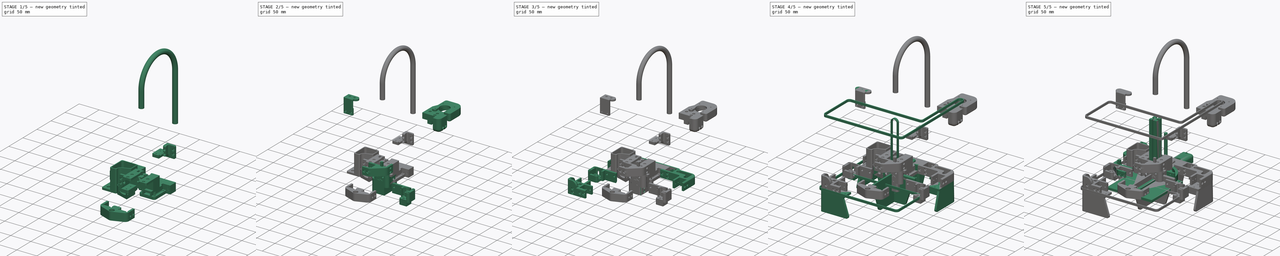
[diagram: build sequence overview — one tinted view per stage of 5, left to right]
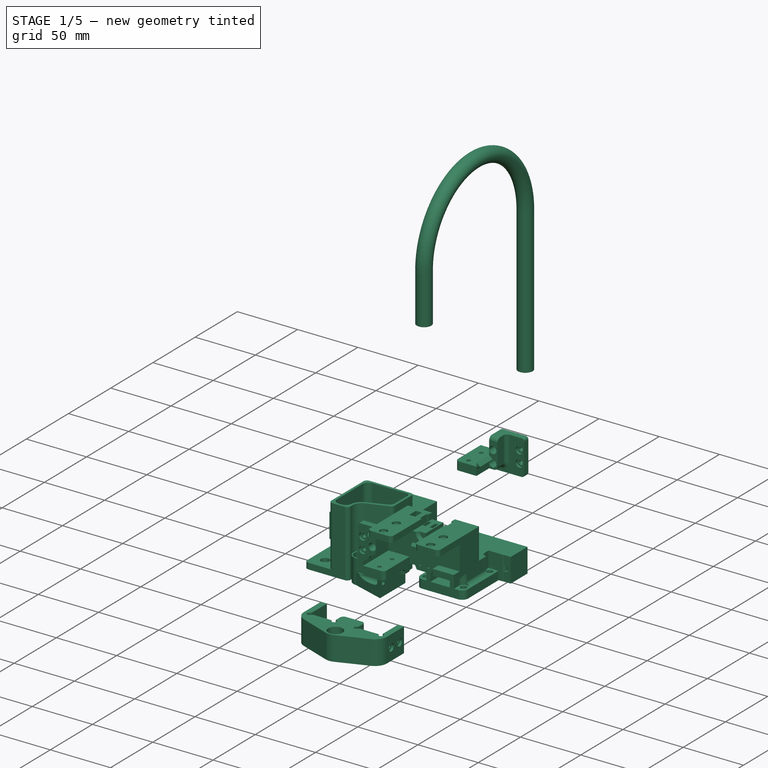
[diagram: stage 1 of 5 — iso view after this stage's code; geometry added in this stage tinted green]
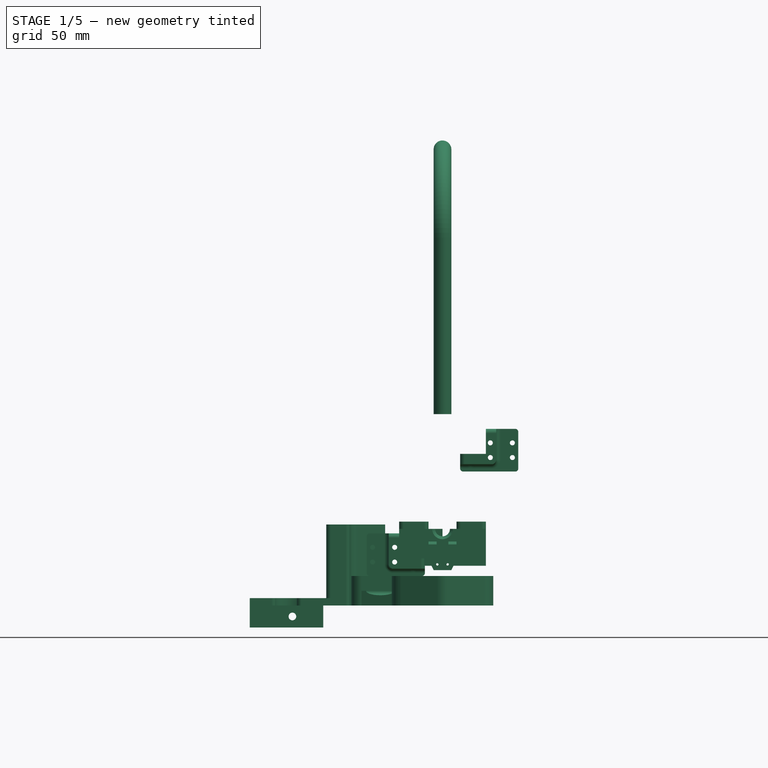
[diagram: stage 1 of 5 — front view after this stage's code; geometry added in this stage tinted green]
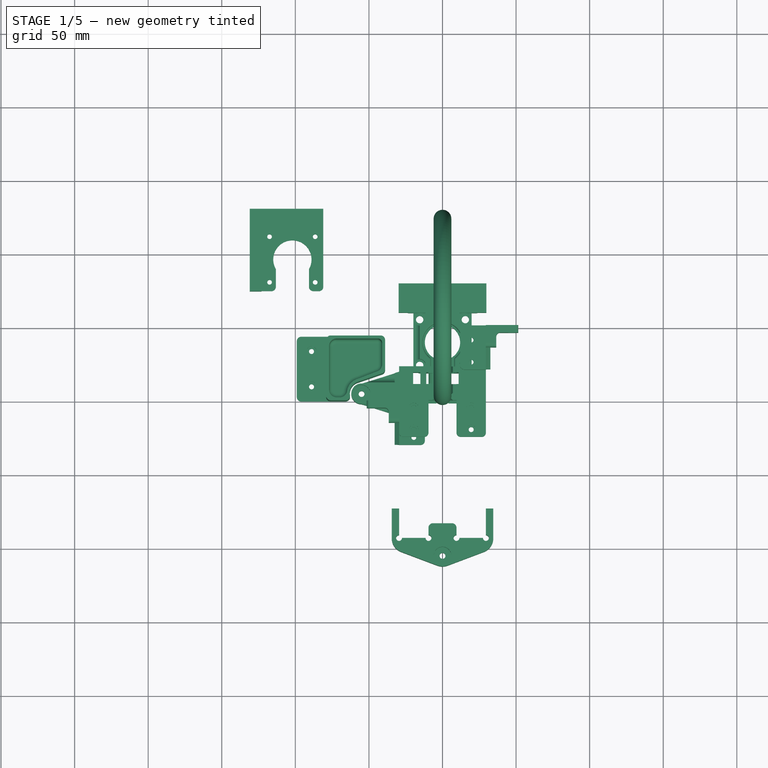
[diagram: stage 1 of 5 — top view after this stage's code; geometry added in this stage tinted green]
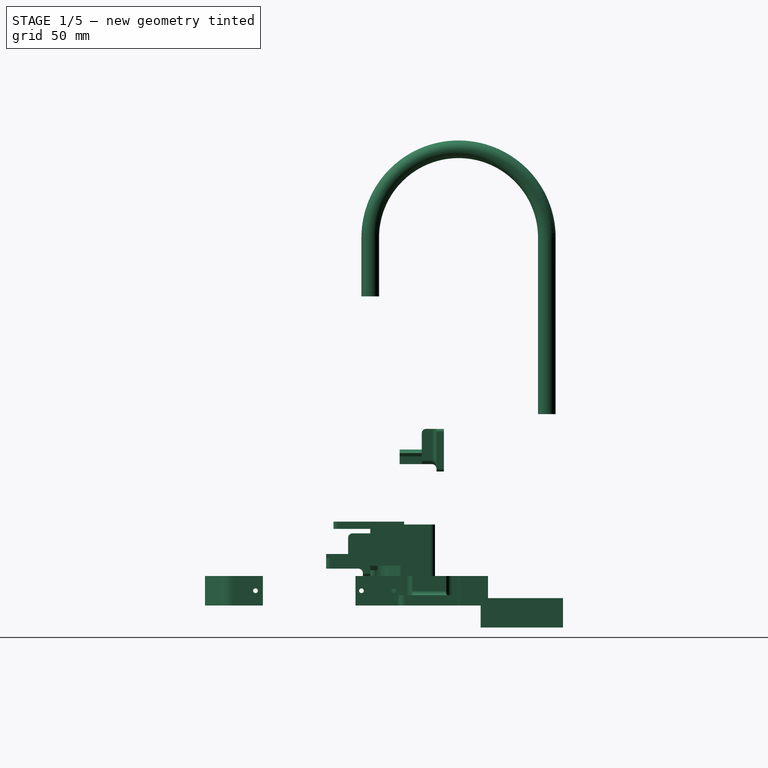
[diagram: stage 1 of 5 — right view after this stage's code; geometry added in this stage tinted green]
FCSTD DOCUMENT  (FreeCAD 1.0R39319 (Git))
Label: CAD_RR
License: All rights reserved
LicenseURL: http://en.wikipedia.org/wiki/All_rights_reserved
objects: Part::Feature×329, Sketcher::SketchObject×242, PartDesign::Pad×112, PartDesign::Pocket×110, PartDesign::Fillet×85, PartDesign::Body×57, App::Part×28, App::LinkGroup×18, PartDesign::PolarPattern×12, PartDesign::Mirrored×11, PartDesign::Hole×8, Part::Mirroring×7, PartDesign::Chamfer×4, PartDesign::AdditiveLoft×4, Spreadsheet::Sheet×2, PartDesign::AdditivePipe×2, Part::Compound2×1, PartDesign::Plane×1
note: 1899 computed .brp shape members not serialized (recipe doc carries the construction recipe); baked Part::Feature solids carry a one-line shape summary decoded from their .brp

FEATURE [PartDesign::Body] Body031  label="belt_tensioner_left"
  AllowCompound = false
  Group = -> [Sketch264,Pad112,Sketch265,Pad113,Sketch278,Pocket145,Sketch279,Pocket146,Fillet046,Fillet047,Fillet048,Fillet049]
  Origin = -> Origin031
  Placement = pos=(0,0,165) rot=(0,0,1;0rad)
  Tip = -> Fillet049
FEATURE [Sketcher::SketchObject] Sketch302
  ArcFitTolerance = 0
  AttachmentSupport = -> [XZ_Plane039]
  FullyConstrained = true
  MakeInternals = false
  MapMode = 5
  Placement = pos=(0,0,0) rot=(1,0,0;1.5708rad)
  sketch-geometry (15):
    g0: LineSegment StartX=-51.5 StartY=49 StartZ=0 EndX=-29.5 EndY=49 EndZ=0
    g1: LineSegment StartX=-29.5 StartY=49 StartZ=0 EndX=-29.5 EndY=32 EndZ=0
    g2: LineSegment StartX=-29.5 StartY=20 StartZ=0 EndX=-51.5 EndY=20 EndZ=0
    g3: LineSegment StartX=-51.5 StartY=20 StartZ=0 EndX=-51.5 EndY=49 EndZ=0
    g4: LineSegment [constr] StartX=-47.5 StartY=39.5 StartZ=0 EndX=-32.5 EndY=39.5 EndZ=0
    g5: LineSegment [constr] StartX=-32.5 StartY=39.5 StartZ=0 EndX=-32.5 EndY=29.5 EndZ=0
    g6: LineSegment [constr] StartX=-32.5 StartY=29.5 StartZ=0 EndX=-47.5 EndY=29.5 EndZ=0
    g7: LineSegment [constr] StartX=-47.5 StartY=29.5 StartZ=0 EndX=-47.5 EndY=39.5 EndZ=0
    g8: Circle CenterX=-47.5 CenterY=39.5 CenterZ=0 NormalX=0 NormalY=0 NormalZ=1 AngleXU=0 Radius=1.7
    g9: Circle CenterX=-32.5 CenterY=39.5 CenterZ=0 NormalX=0 NormalY=0 NormalZ=1 AngleXU=0 Radius=1.7
    g10: Circle CenterX=-32.5 CenterY=29.5 CenterZ=0 NormalX=0 NormalY=0 NormalZ=1 AngleXU=0 Radius=1.7
    g11: Circle CenterX=-47.5 CenterY=29.5 CenterZ=0 NormalX=0 NormalY=0 NormalZ=1 AngleXU=0 Radius=1.7
    g12: LineSegment StartX=-29.5 StartY=32 StartZ=0 EndX=-12 EndY=32 EndZ=0
    g13: LineSegment StartX=-12 StartY=32 StartZ=0 EndX=-12 EndY=20 EndZ=0
    g14: LineSegment StartX=-12 StartY=20 StartZ=0 EndX=-29.5 EndY=20 EndZ=0
  constraints (41):
    c: Coincident(g0,g1)
    c: Coincident(g2,g3)
    c: Coincident(g3,g0)
    c: Horizontal(g0)
    c: Horizontal(g2)
    c: Vertical(g1)
    c: Vertical(g3)
    c: DistanceX(g2,g-1) = 29.5
    c: DistanceY(g-1,g2) = 20
    c: DistanceX(g0,g0) = 22
    c: DistanceY(g3,g3) = 29
    c: Coincident(g4,g5)
    c: Coincident(g5,g6)
    c: Coincident(g6,g7)
    c: Coincident(g7,g4)
    c: Horizontal(g4)
    c: Horizontal(g6)
    c: Vertical(g5)
    c: Vertical(g7)
    c: DistanceX(g4,g4) = 15
    c: DistanceY(g7,g7) = 10
    c: DistanceX(g5,g2) = 3
    c: DistanceY(g2,g5) = 9.5
    c: Coincident(g8,g4)
    c: Coincident(g9,g4)
    c: Coincident(g10,g5)
    c: Coincident(g11,g6)
    c: Equal(g8,g9)
    c: Equal(g9,g10)
    c: Equal(g10,g11)
    c: Radius(g8) = 1.7
    c: Horizontal(g12)
    c: Coincident(g13,g12)
    c: Vertical(g13)
    c: Coincident(g14,g13)
    c: Coincident(g14,g2)
    c: Horizontal(g14)
    c: DistanceX(g12,g12) = 17.5
    c: DistanceY(g13,g13) = 12
    c: Coincident(g1,g12)
    c: DistanceX(g13,g-1) = 12
FEATURE [PartDesign::Pad] Pad133
  Direction = (0,-1,2e-16)
  Length = 5
  Length2 = 10
  Placement = pos=(0,0,0) rot=(1,0,0;1.5708rad)
  Profile = -> Sketch302
  ReferenceAxis = -> Sketch302 [N_Axis]
  Suppressed = false
  Type = 0
FEATURE [PartDesign::Body] Body036  label="leadscrew_coupler"
  AllowCompound = false
  Group = -> [Sketch303,Pad134]
  Origin = -> Origin040
  Placement = pos=(0,0,6) rot=(0,0,1;0rad)
  Tip = -> Pad134
FEATURE [Part::Feature] Part__Feature013  label="Trapezoidal lead screw Nut tr8x8-4"
  Placement = pos=(0,40,116) rot=(0,0,1;0rad)
  shape: bbox 22 x 22 x 16.73 mm, 80 faces (baked)
FEATURE [Sketcher::SketchObject] Sketch304
  ArcFitTolerance = 0
  AttachmentSupport = -> [Pad133]
  ExternalGeometry = -> [Pad133]
  FullyConstrained = true
  MakeInternals = false
  MapMode = 5
  Placement = pos=(0,-5,0) rot=(1,0,0;1.5708rad)
  sketch-geometry (9):
    g0: LineSegment StartX=-29.5 StartY=49 StartZ=0 EndX=-29.5 EndY=39.5 EndZ=0
    g1: LineSegment StartX=-29.5 StartY=32 StartZ=0 EndX=-12 EndY=32 EndZ=0
    g2: LineSegment StartX=-12 StartY=32 StartZ=0 EndX=-12 EndY=25 EndZ=0
    g3: LineSegment StartX=-12 StartY=25 StartZ=0 EndX=-36.5 EndY=25 EndZ=0
    g4: LineSegment StartX=-36.5 StartY=25 StartZ=0 EndX=-36.5 EndY=49 EndZ=0
    g5: LineSegment StartX=-36.5 StartY=49 StartZ=0 EndX=-29.5 EndY=49 EndZ=0
    g6: ArcOfCircle CenterX=-32.5 CenterY=39.5 CenterZ=0 NormalX=0 NormalY=0 NormalZ=1 AngleXU=0 Radius=3 StartAngle=5.31592e-06 EndAngle=6.28318
    g7: Circle CenterX=-32.5 CenterY=29.5 CenterZ=0 NormalX=0 NormalY=0 NormalZ=1 AngleXU=0 Radius=3
    g8: LineSegment StartX=-29.5 StartY=39.5 StartZ=0 EndX=-29.5 EndY=32 EndZ=0
  constraints (26):
    c: Coincident(g-3,g0)
    c: Vertical(g0)
    c: Coincident(g8,g1)
    c: Coincident(g1,g-4)
    c: Horizontal(g1)
    c: Coincident(g1,g2)
    c: Vertical(g2)
    c: Coincident(g2,g3)
    c: Horizontal(g3)
    c: Coincident(g3,g4)
    c: Vertical(g4)
    c: Coincident(g4,g5)
    c: Coincident(g5,g0)
    c: Horizontal(g5)
    c: Equal(g2,g5)
    c: DistanceX(g5,g5) = 7
    c: Vertical(g7,g6)
    c: DistanceY(g7,g6) = 10
    c: DistanceX(g7,g8) = 3
    c: Equal(g6,g7)
    c: Radius(g6) = 3
    c: DistanceY(g6,g0) = 9.5
    c: Coincident(g0,g6)
    c: Coincident(g8,g6)
    c: Vertical(g8)
    c: PointOnObject(g6,g-3)
FEATURE [PartDesign::Pad] Pad135
  BaseFeature = -> Pad133
  Direction = (0,-1,2e-16)
  Length = 10
  Length2 = 10
  Placement = pos=(0,0,0) rot=(1,0,0;1.5708rad)
  Profile = -> Sketch304
  ReferenceAxis = -> Sketch304 [N_Axis]
  Suppressed = false
  Type = 0
FEATURE [Sketcher::SketchObject] Sketch305
  ArcFitTolerance = 0
  AttachmentSupport = -> [Pad135]
  ExternalGeometry = -> [Pad135]
  FullyConstrained = true
  MakeInternals = false
  MapMode = 5
  Placement = pos=(0,-15,3.3e-15) rot=(1,0,0;1.5708rad)
  sketch-geometry (7):
    g0: ArcOfCircle CenterX=-32.5 CenterY=29.5 CenterZ=0 NormalX=0 NormalY=0 NormalZ=1 AngleXU=0 Radius=3 StartAngle=0 EndAngle=1.5708
    g1: LineSegment StartX=-32.5 StartY=32.5 StartZ=0 EndX=-29.5 EndY=35 EndZ=0
    g2: LineSegment StartX=-29.5 StartY=35 StartZ=0 EndX=-29.5 EndY=32 EndZ=0
    g3: LineSegment StartX=-29.5 StartY=32 StartZ=0 EndX=-12 EndY=32 EndZ=0
    g4: LineSegment StartX=-12 StartY=32 StartZ=0 EndX=-12 EndY=25 EndZ=0
    g5: LineSegment StartX=-12 StartY=25 StartZ=0 EndX=-29.5 EndY=25 EndZ=0
    g6: LineSegment StartX=-29.5 StartY=25 StartZ=0 EndX=-29.5 EndY=29.5 EndZ=0
  constraints (18):
    c: Coincident(g0,g-5)
    c: PointOnObject(g0,g-5)
    c: Coincident(g0,g1)
    c: Coincident(g1,g2)
    c: Coincident(g2,g-6)
    c: Vertical(g2)
    c: Coincident(g2,g3)
    c: Coincident(g3,g-4)
    c: Coincident(g3,g4)
    c: Coincident(g4,g-4)
    c: Coincident(g4,g5)
    c: Horizontal(g5)
    c: Coincident(g5,g6)
    c: Vertical(g6)
    c: Coincident(g6,g0)
    c: Horizontal(g0,g0)
    c: Vertical(g0,g0)
    c: DistanceY(g2,g2) = 3
FEATURE [PartDesign::Pad] Pad136
  BaseFeature = -> Pad135
  Direction = (0,-1,2e-16)
  Length = 15
  Length2 = 10
  Placement = pos=(0,0,0) rot=(1,0,0;1.5708rad)
  Profile = -> Sketch305
  ReferenceAxis = -> Sketch305 [N_Axis]
  Suppressed = false
  Type = 0
FEATURE [Sketcher::SketchObject] Sketch306
  ArcFitTolerance = 0
  AttachmentSupport = -> [Pad136]
  ExternalGeometry = -> [Pad136]
  FullyConstrained = true
  MakeInternals = false
  MapMode = 5
  Placement = pos=(0,1.1e-14,25) rot=(1,0,0;3.14159rad)
  sketch-geometry (2):
    g0: Circle CenterX=-19.5 CenterY=25 CenterZ=0 NormalX=0 NormalY=0 NormalZ=1 AngleXU=0 Radius=1.7
    g1: Circle CenterX=-19.5 CenterY=10 CenterZ=0 NormalX=0 NormalY=0 NormalZ=1 AngleXU=0 Radius=1.7
  constraints (6):
    c: Vertical(g0,g1)
    c: Equal(g0,g1)
    c: DistanceX(g-3,g0) = 10
    c: DistanceY(g1,g0) = 15
    c: DistanceY(g0,g-3) = 5
    c: Radius(g0) = 1.7
FEATURE [PartDesign::Hole] Hole002
  BaseFeature = -> Pad136
  CustomThreadClearance = 0
  Depth = 7
  DepthType = 0
  Diameter = 3.2
  DrillForDepth = false
  DrillPoint = 1
  DrillPointAngle = 118
  HoleCutCountersinkAngle = 90
  HoleCutCustomValues = false
  HoleCutDepth = 4
  HoleCutDiameter = 6
  HoleCutType = 1
  ModelThread = false
  Placement = pos=(0,0,0) rot=(1,0,0;1.5708rad)
  Profile = -> Sketch306
  Suppressed = false
  Tapered = false
  TaperedAngle = 90
  ThreadClass = 0
  ThreadDepth = 7
  ThreadDepthType = 0
  ThreadDirection = 0
  ThreadFit = 0
  ThreadSize = 0
  ThreadType = 0
  Threaded = false
  UseCustomThreadClearance = false
FEATURE [PartDesign::Fillet] Fillet067
  Base = -> Hole002 [Edge26,Edge25,Edge52,Edge86,Edge31]
  BaseFeature = -> Hole002
  Placement = pos=(0,0,0) rot=(1,0,0;1.5708rad)
  Radius = 3
  SupportTransform = false
  Suppressed = false
  UseAllEdges = false
FEATURE [Sketcher::SketchObject] Sketch307
  ArcFitTolerance = 0
  AttachmentSupport = -> [Fillet067]
  ExternalGeometry = -> [Fillet067]
  FullyConstrained = true
  MakeInternals = false
  MapMode = 5
  Placement = pos=(0,-5,0) rot=(1,0,0;1.5708rad)
  sketch-geometry (2):
    g0: Circle CenterX=-47.5 CenterY=39.5 CenterZ=0 NormalX=0 NormalY=0 NormalZ=1 AngleXU=0 Radius=3
    g1: Circle CenterX=-47.5 CenterY=29.5 CenterZ=0 NormalX=0 NormalY=0 NormalZ=1 AngleXU=0 Radius=3
  constraints (4):
    c: Coincident(g0,g-3)
    c: Coincident(g1,g-4)
    c: Equal(g1,g0)
    c: Radius(g0) = 3
FEATURE [PartDesign::Pocket] Pocket155
  BaseFeature = -> Fillet067
  Direction = (0,1,-2e-16)
  Length = 2
  Length2 = 5
  Placement = pos=(0,0,0) rot=(1,0,0;1.5708rad)
  Profile = -> Sketch307
  ReferenceAxis = -> Sketch307 [N_Axis]
  Suppressed = false
  Type = 0
FEATURE [PartDesign::Fillet] Fillet068
  Base = -> Pocket155 [Edge3,Edge38,Edge22]
  BaseFeature = -> Pocket155
  Placement = pos=(0,0,0) rot=(1,0,0;1.5708rad)
  Radius = 2
  SupportTransform = false
  Suppressed = false
  UseAllEdges = false
FEATURE [Sketcher::SketchObject] Sketch315
  ArcFitTolerance = 0
  AttachmentSupport = -> [XY_Plane042]
  FullyConstrained = true
  MakeInternals = false
  MapMode = 5
  sketch-geometry (10):
    g0: LineSegment StartX=-29.5 StartY=-73 StartZ=0 EndX=-34.5 EndY=-73 EndZ=0
    g1: LineSegment StartX=-34.5 StartY=-73 StartZ=0 EndX=-34.5 EndY=-100 EndZ=0
    g2: LineSegment StartX=0 StartY=-113 StartZ=0 EndX=0 EndY=-83 EndZ=0
    g3: LineSegment StartX=0 StartY=-83 StartZ=0 EndX=-9.5 EndY=-83 EndZ=0
    g4: LineSegment StartX=-9.5 StartY=-83 StartZ=0 EndX=-9.5 EndY=-91 EndZ=0
    g5: LineSegment StartX=-11.5 StartY=-93 StartZ=0 EndX=-27.5 EndY=-93 EndZ=0
    g6: LineSegment StartX=-29.5 StartY=-91 StartZ=0 EndX=-29.5 EndY=-73 EndZ=0
    g7: LineSegment StartX=0 StartY=-113 StartZ=0 EndX=-34.5 EndY=-100 EndZ=0
    g8: ArcOfCircle CenterX=-29.5 CenterY=-93 CenterZ=0 NormalX=0 NormalY=0 NormalZ=1 AngleXU=0 Radius=2 StartAngle=1.5708 EndAngle=6.28319
    g9: ArcOfCircle CenterX=-9.5 CenterY=-93 CenterZ=0 NormalX=0 NormalY=0 NormalZ=1 AngleXU=0 Radius=2 StartAngle=3.14159 EndAngle=7.85398
  constraints (32):
    c: Horizontal(g0)
    c: Coincident(g0,g1)
    c: Vertical(g1)
    c: PointOnObject(g2,g-2)
    c: PointOnObject(g2,g-2)
    c: Coincident(g2,g3)
    c: Horizontal(g3)
    c: Coincident(g3,g4)
    c: Vertical(g4)
    c: Horizontal(g5)
    c: Coincident(g6,g0)
    c: Vertical(g6)
    c: Coincident(g7,g2)
    c: Coincident(g7,g1)
    c: DistanceX(g3,g3) = 9.5
    c: DistanceX(g8,g9) = 20
    c: DistanceX(g0,g0) = 5
    c: DistanceY(g8,g6) = 20
    c: DistanceY(g9,g4) = 10
    c: DistanceY(g2,g-1) = 83
    c: DistanceY(g2,g2) = 30
    c: DistanceY(g1,g1) = 27
    c: Equal(g9,g8)
    c: Radius(g8) = 2
    c: Coincident(g5,g9)
    c: Coincident(g4,g9)
    c: Coincident(g5,g8)
    c: Coincident(g6,g8)
    c: DistanceX(g6,g4) = 20
    c: DistanceX(g9) = -9.5
    c: DistanceY(g8) = -93
    c: Horizontal(g8,g5)
FEATURE [PartDesign::Pad] Pad141  label="base008"
  Direction = (0,0,1)
  Length = 20
  Length2 = 10
  Profile = -> Sketch315
  ReferenceAxis = -> Sketch315 [N_Axis]
  Suppressed = false
  Type = 0
FEATURE [PartDesign::Mirrored] Mirrored029
  BaseFeature = -> Pad141
  MirrorPlane = -> Sketch315 [V_Axis]
  Originals = -> [Pad141]
  Suppressed = false
  TransformMode = 0
FEATURE [Sketcher::SketchObject] Sketch316
  ArcFitTolerance = 0
  AttachmentSupport = -> [Mirrored029]
  ExternalGeometry = -> [Mirrored029]
  FullyConstrained = true
  MakeInternals = false
  MapMode = 5
  Placement = pos=(-34.5,0,0) rot=(0.57735,-0.57735,-0.57735;2.0944rad)
  sketch-geometry (2):
    g0: Circle CenterX=78 CenterY=10 CenterZ=0 NormalX=0 NormalY=0 NormalZ=1 AngleXU=0 Radius=1.7
    g1: Circle CenterX=88 CenterY=10 CenterZ=0 NormalX=0 NormalY=0 NormalZ=1 AngleXU=0 Radius=1.7
  constraints (6):
    c: Horizontal(g1,g0)
    c: DistanceY(g0,g-3) = 10
    c: DistanceX(g-3,g0) = 5
    c: DistanceX(g0,g1) = 10
    c: Radius(g0) = 1.7
    c: Equal(g0,g1)
FEATURE [PartDesign::Hole] Hole003
  BaseFeature = -> Mirrored029
  CustomThreadClearance = 0
  Depth = 5
  DepthType = 0
  Diameter = 3.2
  DrillForDepth = false
  DrillPoint = 1
  DrillPointAngle = 118
  HoleCutCountersinkAngle = 90
  HoleCutCustomValues = false
  HoleCutDepth = 2
  HoleCutDiameter = 6
  HoleCutType = 1
  ModelThread = false
  Profile = -> Sketch316
  Suppressed = false
  Tapered = false
  TaperedAngle = 90
  ThreadClass = 0
  ThreadDepth = 5
  ThreadDepthType = 0
  ThreadDirection = 0
  ThreadFit = 0
  ThreadSize = 0
  ThreadType = 0
  Threaded = false
  UseCustomThreadClearance = false
FEATURE [PartDesign::Mirrored] Mirrored030
  BaseFeature = -> Hole003
  MirrorPlane = -> YZ_Plane042
  Originals = -> [Hole003]
  Suppressed = false
  TransformMode = 0
FEATURE [Sketcher::SketchObject] Sketch317
  ArcFitTolerance = 0
  AttachmentSupport = -> [Mirrored030]
  ExternalGeometry = -> [Mirrored030]
  FullyConstrained = true
  MakeInternals = false
  MapMode = 5
  Placement = pos=(0,0,20) rot=(0,0,1;0rad)
  sketch-geometry (1):
    g0: Circle CenterX=0 CenterY=-105 CenterZ=0 NormalX=0 NormalY=0 NormalZ=1 AngleXU=0 Radius=2
  constraints (3):
    c: PointOnObject(g0,g-2)
    c: DistanceY(g-3,g0) = 8
    c: Radius(g0) = 2
FEATURE [PartDesign::Hole] Hole004
  BaseFeature = -> Mirrored030
  CustomThreadClearance = 0
  Depth = 20
  DepthType = 0
  Diameter = 4
  DrillForDepth = false
  DrillPoint = 1
  DrillPointAngle = 118
  HoleCutCountersinkAngle = 90
  HoleCutCustomValues = false
  HoleCutDepth = 10
  HoleCutDiameter = 12
  HoleCutType = 1
  ModelThread = false
  Profile = -> Sketch317
  Suppressed = false
  Tapered = false
  TaperedAngle = 90
  ThreadClass = 0
  ThreadDepth = 20
  ThreadDepthType = 0
  ThreadDirection = 0
  ThreadFit = 0
  ThreadSize = 0
  ThreadType = 0
  Threaded = false
  UseCustomThreadClearance = false
FEATURE [PartDesign::Fillet] Fillet070
  Base = -> Hole004 [Edge53,Edge52,Edge76]
  BaseFeature = -> Hole004
  Radius = 10
  SupportTransform = false
  Suppressed = false
  UseAllEdges = false
FEATURE [PartDesign::Fillet] Fillet071
  Base = -> Fillet070 [Edge39,Edge66]
  BaseFeature = -> Fillet070
  Radius = 3
  SupportTransform = false
  Suppressed = false
  UseAllEdges = false
FEATURE [PartDesign::Body] Body038  label="Z_reprap_v0_front"
  AllowCompound = false
  Group = -> [Sketch315,Pad141,Mirrored029,Sketch316,Hole003,Mirrored030,Sketch317,Hole004,Fillet070,Fillet071]
  Origin = -> Origin042
  Placement = pos=(0,0,103) rot=(0,0,1;0rad)
  Tip = -> Fillet071
FEATURE [Sketcher::SketchObject] Sketch318
  ArcFitTolerance = 0
  AttachmentSupport = -> [XY_Plane043]
  FullyConstrained = true
  MakeInternals = false
  MapMode = 5
  sketch-geometry (8):
    g0: LineSegment StartX=-29.5 StartY=20 StartZ=0 EndX=-29.5 EndY=-10 EndZ=0
    g1: LineSegment StartX=-29.5 StartY=-10 StartZ=0 EndX=-55 EndY=-2 EndZ=0
    g2: LineSegment StartX=-29.5 StartY=20 StartZ=0 EndX=-55 EndY=12 EndZ=0
    g3: ArcOfCircle CenterX=-55 CenterY=5 CenterZ=0 NormalX=0 NormalY=0 NormalZ=1 AngleXU=0 Radius=7 StartAngle=1.5708 EndAngle=4.71239
    g4: LineSegment [constr] StartX=-55 StartY=5 StartZ=0 EndX=-40 EndY=5 EndZ=0
    g5: LineSegment [constr] StartX=-29.5 StartY=20 StartZ=0 EndX=-55 EndY=5 EndZ=0
    g6: LineSegment [constr] StartX=-55 StartY=5 StartZ=0 EndX=-29.5 EndY=-10 EndZ=0
    g7: Circle CenterX=-55 CenterY=5 CenterZ=0 NormalX=0 NormalY=0 NormalZ=1 AngleXU=0 Radius=2
  constraints (21):
    c: Vertical(g0)
    c: Coincident(g0,g1)
    c: Coincident(g2,g0)
    c: Coincident(g3,g2)
    c: Coincident(g3,g1)
    c: Vertical(g2,g3)
    c: Vertical(g3,g1)
    c: DistanceY(g-1,g0) = 20
    c: DistanceX(g0,g-1) = 29.5
    c: Coincident(g4,g3)
    c: DistanceX(g4,g4) = 15
    c: Symmetric(g0,g0,g4)
    c: Coincident(g5,g0)
    c: Coincident(g5,g3)
    c: Coincident(g6,g3)
    c: Coincident(g6,g0)
    c: DistanceX(g3,g-1) = 55
    c: DistanceY(g-1,g3) = 5
    c: Radius(g3) = 7
    c: Coincident(g7,g3)
    c: Radius(g7) = 2
FEATURE [PartDesign::Pad] Pad142
  Direction = (0,0,1)
  Length = 20
  Length2 = 10
  Profile = -> Sketch318
  ReferenceAxis = -> Sketch318 [N_Axis]
  Suppressed = false
  Type = 0
FEATURE [PartDesign::Plane] DatumPlane002
  AttachmentSupport = -> [Pad142]
  Length = 60
  MapMode = 45
  Placement = pos=(-59.4563,5,10) rot=(0.57735,-0.57735,-0.57735;2.0944rad)
  ResizeMode = 0
  Width = 60
FEATURE [Sketcher::SketchObject] Sketch319
  ArcFitTolerance = 0
  AttachmentSupport = -> [DatumPlane002]
  FullyConstrained = true
  MakeInternals = false
  MapMode = 5
  Placement = pos=(-59.4563,5,10) rot=(0.57735,-0.57735,-0.57735;2.0944rad)
  sketch-geometry (2):
    g0: Circle CenterX=-11 CenterY=0 CenterZ=0 NormalX=0 NormalY=0 NormalZ=1 AngleXU=0 Radius=1.7
    g1: Circle CenterX=11 CenterY=0 CenterZ=0 NormalX=0 NormalY=0 NormalZ=1 AngleXU=0 Radius=1.7
  constraints (5):
    c: PointOnObject(g0,g-1)
    c: Equal(g1,g0)
    c: Radius(g0) = 1.7
    c: Symmetric(g1,g0,g-2)
    c: DistanceX(g0,g1) = 22
FEATURE [PartDesign::Hole] Hole005
  BaseFeature = -> Pad142
  CustomThreadClearance = 0
  Depth = 30
  DepthType = 0
  Diameter = 3.2
  DrillForDepth = false
  DrillPoint = 0
  DrillPointAngle = 118
  HoleCutCountersinkAngle = 90
  HoleCutCustomValues = false
  HoleCutDepth = 27
  HoleCutDiameter = 6.1
  HoleCutType = 1
  ModelThread = false
  Profile = -> Sketch319
  Suppressed = false
  Tapered = false
  TaperedAngle = 90
  ThreadClass = 0
  ThreadDepth = 30
  ThreadDepthType = 0
  ThreadDirection = 0
  ThreadFit = 0
  ThreadSize = 0
  ThreadType = 0
  Threaded = false
  UseCustomThreadClearance = false
FEATURE [Sketcher::SketchObject] Sketch320
  ArcFitTolerance = 0
  AttachmentSupport = -> [Hole005]
  ExternalGeometry = -> [Hole005]
  FullyConstrained = true
  MakeInternals = false
  MapMode = 5
  Placement = pos=(0,0,20) rot=(0,0,1;0rad)
  sketch-geometry (1):
    g0: Circle CenterX=-55 CenterY=5 CenterZ=0 NormalX=0 NormalY=0 NormalZ=1 AngleXU=0 Radius=6
  constraints (2):
    c: Coincident(g0,g-3)
    c: Radius(g0) = 6
FEATURE [PartDesign::Pocket] Pocket157
  BaseFeature = -> Hole005
  Direction = (0,0,-1)
  Length = 10
  Length2 = 5
  Profile = -> Sketch320
  ReferenceAxis = -> Sketch320 [N_Axis]
  Suppressed = false
  Type = 0
FEATURE [Sketcher::SketchObject] Sketch321
  ArcFitTolerance = 0
  AttachmentSupport = -> [Pocket157]
  ExternalGeometry = -> [Pocket157]
  FullyConstrained = true
  MakeInternals = false
  MapMode = 5
  Placement = pos=(0,0,20) rot=(0,0,1;0rad)
  sketch-geometry (6):
    g0: LineSegment StartX=-55 StartY=12 StartZ=0 EndX=-32.5 EndY=12 EndZ=0
    g1: LineSegment StartX=-32.5 StartY=12 StartZ=0 EndX=-32.5 EndY=19.0588 EndZ=0
    g2: LineSegment StartX=-32.5 StartY=19.0588 StartZ=0 EndX=-55 EndY=12 EndZ=0
    g3: LineSegment StartX=-55 StartY=-2 StartZ=0 EndX=-32.5 EndY=-9.05882 EndZ=0
    g4: LineSegment StartX=-32.5 StartY=-9.05882 StartZ=0 EndX=-32.5 EndY=-2 EndZ=0
    g5: LineSegment StartX=-32.5 StartY=-2 StartZ=0 EndX=-55 EndY=-2 EndZ=0
  constraints (16):
    c: Coincident(g-3,g0)
    c: Horizontal(g0)
    c: Coincident(g0,g1)
    c: PointOnObject(g1,g-3)
    c: Vertical(g1)
    c: Coincident(g1,g2)
    c: Coincident(g2,g0)
    c: DistanceX(g1,g-3) = 3
    c: Coincident(g-4,g3)
    c: PointOnObject(g3,g-4)
    c: Coincident(g3,g4)
    c: Vertical(g4)
    c: Coincident(g4,g5)
    c: Coincident(g5,g3)
    c: Horizontal(g5)
    c: Vertical(g0,g4)
FEATURE [PartDesign::Pocket] Pocket158
  BaseFeature = -> Pocket157
  Direction = (0,0,-1)
  Length = 10
  Length2 = 5
  Profile = -> Sketch321
  ReferenceAxis = -> Sketch321 [N_Axis]
  Suppressed = false
  Type = 0
FEATURE [Sketcher::SketchObject] Sketch350
  ArcFitTolerance = 0
  AttachmentSupport = -> [XY_Plane058]
  FullyConstrained = true
  MakeInternals = false
  MapMode = 5
  sketch-geometry (15):
    g0: LineSegment StartX=-3.0315e-12 StartY=80 StartZ=0 EndX=-29.8 EndY=80 EndZ=0
    g1: LineSegment StartX=-29.8 StartY=80 StartZ=0 EndX=-29.8 EndY=60.2 EndZ=0
    g2: LineSegment StartX=-29.8 StartY=60.2 StartZ=0 EndX=-19.8 EndY=60.2 EndZ=0
    g3: LineSegment StartX=-19.8 StartY=60.2 StartZ=0 EndX=-19.8 EndY=19 EndZ=0
    g4: LineSegment StartX=-19.8 StartY=19 StartZ=0 EndX=-1.208e-13 EndY=19 EndZ=0
    g5: LineSegment StartX=-1.208e-13 StartY=19 StartZ=0 EndX=-1.208e-13 EndY=28.1 EndZ=0
    g6: ArcOfCircle CenterX=0 CenterY=40.1 CenterZ=0 NormalX=0 NormalY=0 NormalZ=1 AngleXU=0 Radius=12 StartAngle=1.5708 EndAngle=4.71239
    g7: LineSegment StartX=-3.0315e-12 StartY=52.1 StartZ=0 EndX=-3.0315e-12 EndY=80 EndZ=0
    g8: LineSegment [constr] StartX=-15.5 StartY=24.6 StartZ=0 EndX=15.5 EndY=24.6 EndZ=0
    g9: LineSegment [constr] StartX=15.5 StartY=24.6 StartZ=0 EndX=15.5 EndY=55.6 EndZ=0
    g10: LineSegment [constr] StartX=15.5 StartY=55.6 StartZ=0 EndX=-15.5 EndY=55.6 EndZ=0
    g11: LineSegment [constr] StartX=-15.5 StartY=55.6 StartZ=0 EndX=-15.5 EndY=24.6 EndZ=0
    g12: GeomPoint [constr] X=0 Y=40.1 Z=0
    g13: Circle CenterX=-15.5 CenterY=55.6 CenterZ=0 NormalX=0 NormalY=0 NormalZ=1 AngleXU=0 Radius=2.5
    g14: Circle CenterX=-15.5 CenterY=24.6 CenterZ=0 NormalX=0 NormalY=0 NormalZ=1 AngleXU=0 Radius=2.5
  constraints (41):
    c: PointOnObject(g0,g-2)
    c: Horizontal(g0)
    c: Coincident(g0,g1)
    c: Vertical(g1)
    c: Coincident(g1,g2)
    c: Horizontal(g2)
    c: Coincident(g2,g3)
    c: Vertical(g3)
    c: Coincident(g3,g4)
    c: PointOnObject(g4,g-2)
    c: Horizontal(g4)
    c: Coincident(g4,g5)
    c: Coincident(g7,g0)
    c: DistanceY(g1,g1) = 19.8
    c: DistanceX(g0,g0) = 29.8
    c: DistanceY(g-1,g0) = 80
    c: DistanceY(g5,g7) = 61
    c: DistanceX(g2,g2) = 10
    c: PointOnObject(g6,g5)
    c: Coincident(g5,g6)
    c: Coincident(g7,g6)
    c: Vertical(g7)
    c: Vertical(g5)
    c: DistanceY(g3,g6) = 21.1
    c: Radius(g6) = 12
    c: Coincident(g8,g9)
    c: Coincident(g9,g10)
    c: Coincident(g10,g11)
    c: Coincident(g11,g8)
    c: Horizontal(g8)
    c: Horizontal(g10)
    c: Vertical(g9)
    c: Vertical(g11)
    c: Symmetric(g10,g8,g12)
    c: Distance(g9,g11) = 31
    c: Distance(g8,g10) = 31
    c: Coincident(g12,g6)
    c: Coincident(g13,g10)
    c: Coincident(g14,g8)
    c: Equal(g14,g13)
    c: Radius(g13) = 2.5
FEATURE [PartDesign::Pad] Pad158
  Direction = (0,0,1)
  Length = 20
  Length2 = 10
  Profile = -> Sketch350
  ReferenceAxis = -> Sketch350 [N_Axis]
  Suppressed = false
  Type = 0
FEATURE [PartDesign::Mirrored] Mirrored031
  BaseFeature = -> Pad158
  MirrorPlane = -> Sketch350 [V_Axis]
  Originals = -> [Pad158]
  Suppressed = false
  TransformMode = 0
FEATURE [Sketcher::SketchObject] Sketch352
  ArcFitTolerance = 0
  FullyConstrained = true
  MakeInternals = false
  MapMode = 5
  Placement = pos=(0,80,0) rot=(0,0.707107,0.707107;3.14159rad)
  expr: Constraints[4] = Spreadsheet.insert
  sketch-geometry (2):
    g0: Circle CenterX=-25 CenterY=10 CenterZ=0 NormalX=0 NormalY=0 NormalZ=1 AngleXU=0 Radius=2.4
    g1: Circle CenterX=25 CenterY=10 CenterZ=0 NormalX=0 NormalY=0 NormalZ=1 AngleXU=0 Radius=2.4
  constraints (5):
    c: DistanceX(g0,g1) = 50
    c: Symmetric(g0,g1,g-2)
    c: DistanceY(g-1,g0) = 10
    c: Equal(g0,g1)
    c: Radius(g1) = 2.4
FEATURE [PartDesign::Pocket] Pocket173
  BaseFeature = -> Mirrored031
  Direction = (-1e-16,-1,2e-16)
  Length = 20
  Length2 = 5
  Profile = -> Sketch352
  ReferenceAxis = -> Sketch352 [N_Axis]
  Suppressed = false
  Type = 0
FEATURE [Sketcher::SketchObject] Sketch353
  ArcFitTolerance = 0
  AttachmentSupport = -> [Pocket173]
  FullyConstrained = true
  MakeInternals = false
  MapMode = 5
  Placement = pos=(0,80,0) rot=(0,0.707107,0.707107;3.14159rad)
  expr: Constraints[4] = Spreadsheet.insert
  sketch-geometry (2):
    g0: Circle CenterX=-10 CenterY=10 CenterZ=0 NormalX=0 NormalY=0 NormalZ=1 AngleXU=0 Radius=2.4
    g1: Circle CenterX=10 CenterY=10 CenterZ=0 NormalX=0 NormalY=0 NormalZ=1 AngleXU=0 Radius=2.4
  constraints (5):
    c: DistanceX(g0,g1) = 20
    c: Symmetric(g0,g1,g-2)
    c: DistanceY(g-1,g0) = 10
    c: Equal(g0,g1)
    c: Radius(g0) = 2.4
FEATURE [PartDesign::Pocket] Pocket174
  BaseFeature = -> Pocket173
  Direction = (0,-1,2e-16)
  Length = 6
  Length2 = 5
  Profile = -> Sketch353
  ReferenceAxis = -> Sketch353 [N_Axis]
  Suppressed = false
  Type = 0
FEATURE [PartDesign::Body] Body067  label="shield_side002"
  AllowCompound = false
  Group = -> [Sketch394,Pad177,Sketch395,Pocket188,Fillet104,Fillet105]
  Origin = -> Origin075
  Placement = pos=(101.5,-60,0) rot=(0,0,1;3.14159rad)
  Tip = -> Fillet105
FEATURE [App::LinkGroup] LinkGroup011  label="feet"
  ElementList = -> [Body055,Body056,Body057,Part__Mirroring003,Body067,Body061,Body060]
  LinkMode = 0
FEATURE [Sketcher::SketchObject] Sketch396
  ArcFitTolerance = 0
  AttachmentSupport = -> [XZ_Plane076]
  FullyConstrained = true
  MakeInternals = false
  MapMode = 5
  Placement = pos=(0,0,0) rot=(1,0,0;1.5708rad)
  sketch-geometry (16):
    g0: LineSegment StartX=29.5 StartY=27 StartZ=0 EndX=-29.5 EndY=27 EndZ=0
    g1: LineSegment StartX=-29.5 StartY=27 StartZ=0 EndX=-29.5 EndY=52 EndZ=0
    g2: LineSegment StartX=-29.5 StartY=52 StartZ=0 EndX=-5 EndY=52 EndZ=0
    g3: LineSegment StartX=29.5 StartY=52 StartZ=0 EndX=29.5 EndY=27 EndZ=0
    g4: Circle CenterX=-3.5 CenterY=32.9 CenterZ=0 NormalX=0 NormalY=0 NormalZ=1 AngleXU=0 Radius=1
    g5: Circle CenterX=3.5 CenterY=32.9 CenterZ=0 NormalX=0 NormalY=0 NormalZ=1 AngleXU=0 Radius=1
    g6: LineSegment StartX=-4 StartY=44 StartZ=0 EndX=-2 EndY=44 EndZ=0
    g7: LineSegment StartX=-2 StartY=44 StartZ=0 EndX=-2 EndY=40 EndZ=0
    g8: LineSegment StartX=-2 StartY=40 StartZ=0 EndX=-4 EndY=40 EndZ=0
    g9: LineSegment StartX=-4 StartY=40 StartZ=0 EndX=-4 EndY=44 EndZ=0
    g10: LineSegment StartX=2 StartY=44 StartZ=0 EndX=4 EndY=44 EndZ=0
    g11: LineSegment StartX=4 StartY=44 StartZ=0 EndX=4 EndY=40 EndZ=0
    g12: LineSegment StartX=4 StartY=40 StartZ=0 EndX=2 EndY=40 EndZ=0
    g13: LineSegment StartX=2 StartY=40 StartZ=0 EndX=2 EndY=44 EndZ=0
    g14: ArcOfCircle CenterX=0 CenterY=52 CenterZ=0 NormalX=0 NormalY=0 NormalZ=1 AngleXU=0 Radius=5 StartAngle=3.14159 EndAngle=6.28319
    g15: LineSegment StartX=5 StartY=52 StartZ=0 EndX=29.5 EndY=52 EndZ=0
  constraints (46):
    c: Coincident(g0,g1)
    c: Vertical(g1)
    c: Coincident(g1,g2)
    c: Horizontal(g2)
    c: Coincident(g15,g3)
    c: Coincident(g3,g0)
    c: DistanceY(g-1,g15) = 52
    c: DistanceY(g3,g3) = 25
    c: DistanceX(g2,g15) = 59
    c: Symmetric(g0,g0,g-2)
    c: Vertical(g3)
    c: Symmetric(g4,g5,g-2)
    c: Equal(g4,g5)
    c: Radius(g4) = 1
    c: DistanceY(g-1,g4) = 32.9
    c: DistanceX(g4,g5) = 7
    c: Coincident(g6,g7)
    c: Coincident(g7,g8)
    c: Coincident(g8,g9)
    c: Coincident(g9,g6)
    c: Horizontal(g6)
    c: Horizontal(g8)
    c: Vertical(g7)
    c: Vertical(g9)
    c: Coincident(g10,g11)
    c: Coincident(g11,g12)
    c: Coincident(g12,g13)
    c: Coincident(g13,g10)
    c: Horizontal(g10)
    c: Horizontal(g12)
    c: Vertical(g11)
    c: Vertical(g13)
    c: Equal(g10,g6)
    c: Equal(g7,g13)
    c: Symmetric(g6,g10,g-2)
    c: DistanceY(g9,g9) = 4
    c: DistanceX(g6,g6) = 2
    c: DistanceX(g7,g12) = 4
    c: DistanceY(g-1,g7) = 40
    c: PointOnObject(g14,g2)
    c: PointOnObject(g14,g-2)
    c: Radius(g14) = 5
    c: Coincident(g2,g14)
    c: Coincident(g15,g14)
    c: Horizontal(g14,g14)
    c: Horizontal(g15)
FEATURE [PartDesign::Pad] Pad178  label="base009"
  Direction = (0,-1,2e-16)
  Length = 5
  Length2 = 10
  Placement = pos=(0,0,0) rot=(1,0,0;1.5708rad)
  Profile = -> Sketch396
  ReferenceAxis = -> Sketch396 [N_Axis]
  Reversed = true
  Suppressed = false
  Type = 0
FEATURE [Sketcher::SketchObject] Sketch397
  ArcFitTolerance = 0
  AttachmentSupport = -> [Pad178]
  ExternalGeometry = -> [Pad178]
  FullyConstrained = true
  MakeInternals = false
  MapMode = 5
  Placement = pos=(0,8.8e-15,0) rot=(1,0,0;1.5708rad)
  sketch-geometry (4):
    g0: LineSegment StartX=-29.5 StartY=27 StartZ=0 EndX=-12 EndY=27 EndZ=0
    g1: LineSegment StartX=-12 StartY=27 StartZ=0 EndX=-12 EndY=32 EndZ=0
    g2: LineSegment StartX=-12 StartY=32 StartZ=0 EndX=-29.5 EndY=32 EndZ=0
    g3: LineSegment StartX=-29.5 StartY=32 StartZ=0 EndX=-29.5 EndY=27 EndZ=0
  constraints (11):
    c: Coincident(g0,g1)
    c: Coincident(g1,g2)
    c: Coincident(g2,g3)
    c: Coincident(g3,g0)
    c: Horizontal(g0)
    c: Horizontal(g2)
    c: Vertical(g1)
    c: Vertical(g3)
    c: Coincident(g0,g-4)
    c: DistanceY(g1,g1) = 5
    c: DistanceX(g2,g2) = 17.5
FEATURE [PartDesign::Pad] Pad179  label="screw_platform001"
  BaseFeature = -> Pad178
  Direction = (0,-1,2e-16)
  Length = 7
  Length2 = 10
  Placement = pos=(0,0,0) rot=(1,0,0;1.5708rad)
  Profile = -> Sketch397
  ReferenceAxis = -> Sketch397 [N_Axis]
  Suppressed = false
  Type = 0
FEATURE [Sketcher::SketchObject] Sketch398
  ArcFitTolerance = 0
  AttachmentOffset = pos=(0,0,32) rot=(0,0,1;0rad)
  AttachmentSupport = -> [XY_Plane076]
  FullyConstrained = true
  MakeInternals = false
  MapMode = 5
  Placement = pos=(0,0,32) rot=(0,0,1;0rad)
  sketch-geometry (7):
    g0: LineSegment StartX=-9.5 StartY=0 StartZ=0 EndX=9.5 EndY=0 EndZ=0
    g1: LineSegment StartX=9.5 StartY=0 StartZ=0 EndX=9.5 EndY=-35 EndZ=0
    g2: LineSegment StartX=9.5 StartY=-35 StartZ=0 EndX=-9.5 EndY=-35 EndZ=0
    g3: LineSegment StartX=-9.5 StartY=-35 StartZ=0 EndX=-9.5 EndY=0 EndZ=0
    g4: Circle CenterX=0 CenterY=-17 CenterZ=0 NormalX=0 NormalY=0 NormalZ=1 AngleXU=0 Radius=5.5
    g5: Circle CenterX=0 CenterY=-9 CenterZ=0 NormalX=0 NormalY=0 NormalZ=1 AngleXU=0 Radius=2.25
    g6: Circle CenterX=0 CenterY=-25 CenterZ=0 NormalX=0 NormalY=0 NormalZ=1 AngleXU=0 Radius=2.25
  constraints (20):
    c: Coincident(g0,g1)
    c: Coincident(g1,g2)
    c: Coincident(g2,g3)
    c: Coincident(g3,g0)
    c: Horizontal(g2)
    c: Vertical(g1)
    c: Vertical(g3)
    c: PointOnObject(g0,g-1)
    c: Symmetric(g0,g0,g-2)
    c: DistanceX(g0,g0) = 19
    c: PointOnObject(g4,g-2)
    c: Radius(g4) = 5.5
    c: DistanceY(g4,g-1) = 17
    c: DistanceY(g3,g3) = 35
    c: PointOnObject(g5,g-2)
    c: PointOnObject(g6,g-2)
    c: DistanceY(g6,g5) = 16
    c: DistanceY(g5,g-1) = 9
    c: Equal(g5,g6)
    c: Radius(g5) = 2.25
FEATURE [PartDesign::Pad] Pad180  label="nut_holder001"
  BaseFeature = -> Pad179
  Direction = (0,0,1)
  Length = 9.5
  Length2 = 10
  Placement = pos=(0,0,0) rot=(1,0,0;1.5708rad)
  Profile = -> Sketch398
  ReferenceAxis = -> Sketch398 [N_Axis]
  Suppressed = false
  Type = 0
FEATURE [PartDesign::Mirrored] Mirrored033
  BaseFeature = -> Pad180
  MirrorPlane = -> Sketch397 [V_Axis]
  Originals = -> [Pad179]
  Placement = pos=(0,0,0) rot=(1,0,0;1.5708rad)
  Suppressed = false
  TransformMode = 0
FEATURE [Sketcher::SketchObject] Sketch399
  ArcFitTolerance = 0
  AttachmentSupport = -> [Mirrored033]
  ExternalGeometry = -> [Mirrored033]
  FullyConstrained = true
  MakeInternals = false
  MapMode = 5
  Placement = pos=(0,2.29e-14,52) rot=(0,0,1;3.14159rad)
  sketch-geometry (12):
    g0: LineSegment StartX=9.5 StartY=-5 StartZ=0 EndX=9.5 EndY=25 EndZ=0
    g1: LineSegment StartX=9.5 StartY=25 StartZ=0 EndX=29.5 EndY=25 EndZ=0
    g2: LineSegment StartX=29.5 StartY=25 StartZ=0 EndX=29.5 EndY=-5 EndZ=0
    g3: LineSegment StartX=-9.5 StartY=-5 StartZ=0 EndX=-9.5 EndY=25 EndZ=0
    g4: LineSegment StartX=-9.5 StartY=25 StartZ=0 EndX=-29.5 EndY=25 EndZ=0
    g5: LineSegment StartX=-29.5 StartY=25 StartZ=0 EndX=-29.5 EndY=-5 EndZ=0
    g6: Circle CenterX=-19.5 CenterY=5 CenterZ=0 NormalX=0 NormalY=0 NormalZ=1 AngleXU=0 Radius=1.7
    g7: Circle CenterX=-19.5 CenterY=20 CenterZ=0 NormalX=0 NormalY=0 NormalZ=1 AngleXU=0 Radius=1.7
    g8: Circle CenterX=19.5 CenterY=20 CenterZ=0 NormalX=0 NormalY=0 NormalZ=1 AngleXU=0 Radius=1.7
    g9: Circle CenterX=19.5 CenterY=5 CenterZ=0 NormalX=0 NormalY=0 NormalZ=1 AngleXU=0 Radius=1.7
    g10: LineSegment StartX=29.5 StartY=-5 StartZ=0 EndX=9.5 EndY=-5 EndZ=0
    g11: LineSegment StartX=-9.5 StartY=-5 StartZ=0 EndX=-29.5 EndY=-5 EndZ=0
  constraints (32):
    c: Coincident(g0,g1)
    c: Coincident(g1,g2)
    c: Horizontal(g1)
    c: Vertical(g0)
    c: Vertical(g2)
    c: Coincident(g3,g4)
    c: Coincident(g4,g5)
    c: Horizontal(g4)
    c: Vertical(g3)
    c: Vertical(g5)
    c: Equal(g0,g3)
    c: Equal(g4,g1)
    c: DistanceX(g4,g4) = 20
    c: DistanceY(g5,g5) = 30
    c: Equal(g9,g8)
    c: Equal(g8,g7)
    c: Equal(g7,g6)
    c: Symmetric(g6,g9,g-2)
    c: Symmetric(g8,g7,g-2)
    c: DistanceX(g4,g7) = 10
    c: Vertical(g6,g7)
    c: DistanceY(g6,g7) = 15
    c: DistanceY(g5,g6) = 10
    c: Radius(g6) = 1.7
    c: Coincident(g2,g-3)
    c: Coincident(g5,g-4)
    c: PointOnObject(g3,g-6)
    c: PointOnObject(g0,g-5)
    c: Coincident(g10,g2)
    c: Coincident(g10,g0)
    c: Coincident(g11,g3)
    c: Coincident(g11,g5)
FEATURE [PartDesign::Pad] Pad181
  BaseFeature = -> Mirrored033
  Direction = (0,0,1)
  Length = 5
  Length2 = 10
  Placement = pos=(0,0,0) rot=(1,0,0;1.5708rad)
  Profile = -> Sketch399
  ReferenceAxis = -> Sketch399 [N_Axis]
  Suppressed = false
  Type = 0
FEATURE [Sketcher::SketchObject] Sketch400
  ArcFitTolerance = 0
  AttachmentSupport = -> [Pad181]
  ExternalGeometry = -> [Pad181]
  FullyConstrained = true
  MakeInternals = false
  MapMode = 5
  Placement = pos=(0,0,57) rot=(0,0,1;3.14159rad)
  sketch-geometry (4):
    g0: Circle CenterX=-19.5 CenterY=20 CenterZ=0 NormalX=0 NormalY=0 NormalZ=1 AngleXU=0 Radius=3.2
    g1: Circle CenterX=-19.5 CenterY=5 CenterZ=0 NormalX=0 NormalY=0 NormalZ=1 AngleXU=0 Radius=3.2
    g2: Circle CenterX=19.5 CenterY=20 CenterZ=0 NormalX=0 NormalY=0 NormalZ=1 AngleXU=0 Radius=3.2
    g3: Circle CenterX=19.5 CenterY=5 CenterZ=0 NormalX=0 NormalY=0 NormalZ=1 AngleXU=0 Radius=3.2
  constraints (8):
    c: Coincident(g0,g-3)
    c: Coincident(g1,g-4)
    c: Coincident(g2,g-6)
    c: Coincident(g3,g-5)
    c: Equal(g0,g1)
    c: Equal(g1,g2)
    c: Equal(g2,g3)
    c: Radius(g0) = 3.2
FEATURE [PartDesign::Pocket] Pocket189
  BaseFeature = -> Pad181
  Direction = (0,0,-1)
  Length = 2
  Length2 = 5
  Placement = pos=(0,0,0) rot=(1,0,0;1.5708rad)
  Profile = -> Sketch400
  ReferenceAxis = -> Sketch400 [N_Axis]
  Suppressed = false
  Type = 0
FEATURE [PartDesign::Fillet] Fillet106
  Base = -> Pocket189 [Edge67,Edge138,Edge133,Edge61,Edge120,Edge99]
  BaseFeature = -> Pocket189
  Placement = pos=(0,0,0) rot=(1,0,0;1.5708rad)
  Radius = 3
  SupportTransform = false
  Suppressed = false
  UseAllEdges = false
FEATURE [PartDesign::Chamfer] Chamfer005
  Angle = 45
  Base = -> Fillet106 [Edge49,Edge40,Edge28,Edge70]
  BaseFeature = -> Fillet106
  ChamferType = 0
  FlipDirection = false
  Placement = pos=(0,0,0) rot=(1,0,0;1.5708rad)
  Size = 2
  Size2 = 1
  SupportTransform = false
  Suppressed = false
  UseAllEdges = false
FEATURE [Sketcher::SketchObject] Sketch401
  ArcFitTolerance = 0
  AttachmentSupport = -> [Chamfer005]
  ExternalGeometry = -> [Chamfer005]
  FullyConstrained = true
  MakeInternals = false
  MapMode = 5
  Placement = pos=(0,5,0) rot=(-1,0,0;1.5708rad)
  sketch-geometry (8):
    g0: Circle CenterX=-3.5 CenterY=-27.9 CenterZ=0 NormalX=0 NormalY=0 NormalZ=1 AngleXU=0 Radius=0.8
    g1: Circle CenterX=3.5 CenterY=-27.9 CenterZ=0 NormalX=0 NormalY=0 NormalZ=1 AngleXU=0 Radius=0.8
    g2: LineSegment StartX=-7.5 StartY=-27 StartZ=0 EndX=-6 EndY=-24 EndZ=0
    g3: LineSegment StartX=-6 StartY=-24 StartZ=0 EndX=6 EndY=-24 EndZ=0
    g4: LineSegment StartX=6 StartY=-24 StartZ=0 EndX=7.5 EndY=-27 EndZ=0
    g5: LineSegment StartX=7.5 StartY=-27 StartZ=0 EndX=7.5 EndY=-35 EndZ=0
    g6: LineSegment StartX=7.5 StartY=-35 StartZ=0 EndX=-7.5 EndY=-35 EndZ=0
    g7: LineSegment StartX=-7.5 StartY=-35 StartZ=0 EndX=-7.5 EndY=-27 EndZ=0
  constraints (22):
    c: Vertical(g1,g-3)
    c: Vertical(g0,g-4)
    c: DistanceY(g-4,g0) = 5
    c: Horizontal(g0,g1)
    c: PointOnObject(g2,g-5)
    c: Coincident(g2,g3)
    c: Coincident(g3,g4)
    c: Coincident(g4,g5)
    c: Vertical(g5)
    c: Coincident(g5,g6)
    c: Horizontal(g6)
    c: Coincident(g6,g7)
    c: Coincident(g7,g2)
    c: Vertical(g7)
    c: Symmetric(g2,g3,g-2)
    c: Symmetric(g2,g4,g-2)
    c: DistanceX(g3,g3) = 12
    c: DistanceX(g2,g4) = 15
    c: DistanceY(g6,g-5) = 8
    c: DistanceY(g2,g2) = 3
    c: Equal(g0,g1)
    c: Radius(g0) = 0.8
FEATURE [PartDesign::Pad] Pad182
  BaseFeature = -> Chamfer005
  Direction = (0,1,2e-16)
  Length = 5
  Length2 = 10
  Placement = pos=(0,0,0) rot=(1,0,0;1.5708rad)
  Profile = -> Sketch401
  ReferenceAxis = -> Sketch401 [N_Axis]
  Reversed = true
  Suppressed = false
  Type = 0
FEATURE [Sketcher::SketchObject] Sketch402
  ArcFitTolerance = 0
  AttachmentSupport = -> [Pad182]
  ExternalGeometry = -> [Pad182]
  FullyConstrained = true
  MakeInternals = false
  MapMode = 5
  Placement = pos=(0,5,1.2e-15) rot=(-1,0,0;1.5708rad)
  sketch-geometry (2):
    g0: Circle CenterX=-3.5 CenterY=-27.9 CenterZ=0 NormalX=0 NormalY=0 NormalZ=1 AngleXU=0 Radius=0.8
    g1: Circle CenterX=3.5 CenterY=-27.9 CenterZ=0 NormalX=0 NormalY=0 NormalZ=1 AngleXU=0 Radius=0.8
  constraints (4):
    c: Coincident(g0,g-3)
    c: Coincident(g1,g-4)
    c: Equal(g-3,g0)
    c: Equal(g0,g1)
FEATURE [PartDesign::Pocket] Pocket190
  BaseFeature = -> Pad182
  Direction = (0,-1,-2e-16)
  Length = 5
  Length2 = 5
  Placement = pos=(0,0,0) rot=(1,0,0;1.5708rad)
  Profile = -> Sketch402
  ReferenceAxis = -> Sketch402 [N_Axis]
  Suppressed = false
  Type = 0
FEATURE [Sketcher::SketchObject] Sketch403
  ArcFitTolerance = 0
  AttachmentSupport = -> [Pocket190]
  ExternalGeometry = -> [Pocket190]
  FullyConstrained = true
  MakeInternals = false
  MapMode = 5
  Placement = pos=(0,0,41.5) rot=(0,0,1;3.14159rad)
  sketch-geometry (4):
    g0: LineSegment StartX=-9.5 StartY=35 StartZ=0 EndX=9.5 EndY=35 EndZ=0
    g1: LineSegment StartX=9.5 StartY=35 StartZ=0 EndX=9.5 EndY=0 EndZ=0
    g2: LineSegment StartX=9.5 StartY=0 StartZ=0 EndX=-9.5 EndY=0 EndZ=0
    g3: LineSegment StartX=-9.5 StartY=0 StartZ=0 EndX=-9.5 EndY=35 EndZ=0
  constraints (11):
    c: Coincident(g0,g1)
    c: Coincident(g1,g2)
    c: Coincident(g2,g3)
    c: Coincident(g3,g0)
    c: Horizontal(g0)
    c: Vertical(g1)
    c: Vertical(g3)
    c: PointOnObject(g1,g-1)
    c: Horizontal(g-3,g0)
    c: Vertical(g0,g-4)
    c: Symmetric(g1,g2,g-2)
FEATURE [PartDesign::Pocket] Pocket191
  BaseFeature = -> Pocket190
  Direction = (0,0,-1)
  Length = 10
  Length2 = 5
  Placement = pos=(0,0,0) rot=(1,0,0;1.5708rad)
  Profile = -> Sketch403
  ReferenceAxis = -> Sketch403 [N_Axis]
  Suppressed = false
  Type = 0
FEATURE [Sketcher::SketchObject] Sketch404
  ArcFitTolerance = 0
  AttachmentSupport = -> [Pocket191]
  ExternalGeometry = -> [Pocket191]
  FullyConstrained = true
  MakeInternals = false
  MapMode = 5
  Placement = pos=(0,5,0) rot=(-1,0,0;1.5708rad)
  sketch-geometry (14):
    g0: LineSegment StartX=-29.5 StartY=-27 StartZ=0 EndX=-7.5 EndY=-27 EndZ=0
    g1: LineSegment StartX=7.5 StartY=-27 StartZ=0 EndX=29.5 EndY=-27 EndZ=0
    g2: LineSegment StartX=-29.5 StartY=-27 StartZ=0 EndX=-29.5 EndY=-57 EndZ=0
    g3: LineSegment StartX=-29.5 StartY=-57 StartZ=0 EndX=-9.5 EndY=-57 EndZ=0
    g4: LineSegment StartX=-9.5 StartY=-57 StartZ=0 EndX=-9.5 EndY=-52 EndZ=0
    g5: LineSegment StartX=-9.5 StartY=-52 StartZ=0 EndX=-7 EndY=-52 EndZ=0
    g6: LineSegment StartX=29.5 StartY=-27 StartZ=0 EndX=29.5 EndY=-57 EndZ=0
    g7: LineSegment StartX=29.5 StartY=-57 StartZ=0 EndX=9.5 EndY=-57 EndZ=0
    g8: LineSegment StartX=9.5 StartY=-57 StartZ=0 EndX=9.5 EndY=-52 EndZ=0
    g9: LineSegment StartX=9.5 StartY=-52 StartZ=0 EndX=7 EndY=-52 EndZ=0
    g10: ArcOfCircle CenterX=0 CenterY=-52 CenterZ=0 NormalX=0 NormalY=0 NormalZ=1 AngleXU=0 Radius=7 StartAngle=1.22e-13 EndAngle=3.14159
    g11: LineSegment StartX=-7.5 StartY=-27 StartZ=0 EndX=-7.5 EndY=-39 EndZ=0
    g12: LineSegment StartX=-7.5 StartY=-39 StartZ=0 EndX=7.5 EndY=-39 EndZ=0
    g13: LineSegment StartX=7.5 StartY=-39 StartZ=0 EndX=7.5 EndY=-27 EndZ=0
  constraints (34):
    c: Coincident(g0,g-3)
    c: Horizontal(g1)
    c: Coincident(g0,g2)
    c: Coincident(g2,g-5)
    c: Coincident(g2,g3)
    c: Coincident(g3,g-5)
    c: Coincident(g3,g4)
    c: Vertical(g4)
    c: Coincident(g4,g5)
    c: Horizontal(g5)
    c: Coincident(g5,g-4)
    c: Symmetric(g1,g0,g-2)
    c: Coincident(g1,g6)
    c: Coincident(g6,g-6)
    c: Vertical(g6)
    c: Coincident(g6,g7)
    c: Coincident(g7,g-6)
    c: Coincident(g7,g8)
    c: Vertical(g8)
    c: Coincident(g8,g9)
    c: Coincident(g9,g-4)
    c: Horizontal(g9)
    c: Coincident(g10,g-4)
    c: Coincident(g10,g9)
    c: Horizontal(g10,g10)
    c: Coincident(g0,g-3)
    c: Coincident(g0,g11)
    c: Vertical(g11)
    c: Coincident(g11,g12)
    c: Horizontal(g12)
    c: Coincident(g12,g13)
    c: Coincident(g13,g1)
    c: Vertical(g13)
    c: DistanceY(g11,g11) = 12
FEATURE [PartDesign::Pad] Pad183
  BaseFeature = -> Pocket191
  Direction = (0,1,2e-16)
  Length = 18
  Length2 = 10
  Placement = pos=(0,0,0) rot=(1,0,0;1.5708rad)
  Profile = -> Sketch404
  ReferenceAxis = -> Sketch404 [N_Axis]
  Suppressed = false
  Type = 0
FEATURE [Sketcher::SketchObject] Sketch405
  ArcFitTolerance = 0
  AttachmentSupport = -> [Pad183]
  FullyConstrained = true
  MakeInternals = false
  MapMode = 5
  Placement = pos=(0,0,27) rot=(1,0,0;3.14159rad)
  sketch-geometry (12):
    g0: LineSegment StartX=-11 StartY=-11 StartZ=0 EndX=-6 EndY=-11 EndZ=0
    g1: LineSegment StartX=-6 StartY=-11 StartZ=0 EndX=-6 EndY=-19 EndZ=0
    g2: LineSegment StartX=-6 StartY=-19 StartZ=0 EndX=-11 EndY=-19 EndZ=0
    g3: LineSegment StartX=-11 StartY=-19 StartZ=0 EndX=-11 EndY=-11 EndZ=0
    g4: LineSegment StartX=6 StartY=-11 StartZ=0 EndX=11 EndY=-11 EndZ=0
    g5: LineSegment StartX=11 StartY=-11 StartZ=0 EndX=11 EndY=-19 EndZ=0
    g6: LineSegment StartX=11 StartY=-19 StartZ=0 EndX=6 EndY=-19 EndZ=0
    g7: LineSegment StartX=6 StartY=-19 StartZ=0 EndX=6 EndY=-11 EndZ=0
    g8: LineSegment StartX=-20 StartY=-11 StartZ=0 EndX=-15 EndY=-11 EndZ=0
    g9: LineSegment StartX=-15 StartY=-11 StartZ=0 EndX=-15 EndY=-19 EndZ=0
    g10: LineSegment StartX=-15 StartY=-19 StartZ=0 EndX=-20 EndY=-19 EndZ=0
    g11: LineSegment StartX=-20 StartY=-19 StartZ=0 EndX=-20 EndY=-11 EndZ=0
  constraints (35):
    c: Coincident(g0,g1)
    c: Coincident(g1,g2)
    c: Coincident(g2,g3)
    c: Coincident(g3,g0)
    c: Horizontal(g0)
    c: Horizontal(g2)
    c: Vertical(g1)
    c: Vertical(g3)
    c: Coincident(g4,g5)
    c: Coincident(g5,g6)
    c: Coincident(g6,g7)
    c: Coincident(g7,g4)
    c: Horizontal(g4)
    c: Horizontal(g6)
    c: Vertical(g5)
    c: Vertical(g7)
    c: Equal(g0,g4)
    c: Equal(g5,g3)
    c: Symmetric(g0,g4,g-2)
    c: DistanceX(g0,g0) = 5
    c: DistanceY(g3,g3) = 8
    c: DistanceX(g1,g6) = 12
    c: DistanceY(g0,g-1) = 11
    c: Coincident(g8,g9)
    c: Coincident(g9,g10)
    c: Coincident(g10,g11)
    c: Coincident(g11,g8)
    c: Horizontal(g8)
    c: Horizontal(g10)
    c: Vertical(g9)
    c: Vertical(g11)
    c: Equal(g8,g0)
    c: Equal(g11,g3)
    c: DistanceX(g9,g2) = 4
    c: Horizontal(g2,g9)
FEATURE [PartDesign::Pocket] Pocket192
  BaseFeature = -> Pad183
  Direction = (0,0,1)
  Length = 30
  Length2 = 5
  Placement = pos=(0,0,0) rot=(1,0,0;1.5708rad)
  Profile = -> Sketch405
  ReferenceAxis = -> Sketch405 [N_Axis]
  Suppressed = false
  Type = 0
FEATURE [PartDesign::Fillet] Fillet107
  Base = -> Pocket192 [Edge265,Edge276,Edge222,Edge252]
  BaseFeature = -> Pocket192
  Placement = pos=(0,0,0) rot=(1,0,0;1.5708rad)
  Radius = 3
  SupportTransform = false
  Suppressed = false
  UseAllEdges = false
FEATURE [Sketcher::SketchObject] Sketch406
  ArcFitTolerance = 0
  AttachmentSupport = -> [XY_Plane077]
  FullyConstrained = true
  MakeInternals = false
  MapMode = 5
  sketch-geometry (4):
    g0: LineSegment StartX=-24.9 StartY=79.8 StartZ=0 EndX=24.9 EndY=79.8 EndZ=0
    g1: LineSegment StartX=24.9 StartY=79.8 StartZ=0 EndX=24.9 EndY=60 EndZ=0
    g2: LineSegment StartX=24.9 StartY=60 StartZ=0 EndX=-24.9 EndY=60 EndZ=0
    g3: LineSegment StartX=-24.9 StartY=60 StartZ=0 EndX=-24.9 EndY=79.8 EndZ=0
  constraints (11):
    c: Coincident(g0,g1)
    c: Coincident(g1,g2)
    c: Coincident(g2,g3)
    c: Coincident(g3,g0)
    c: Horizontal(g2)
    c: Vertical(g1)
    c: Vertical(g3)
    c: Symmetric(g0,g0,g-2)
    c: DistanceY(g3,g3) = 19.8
    c: DistanceY(g2) = 60
    c: DistanceX(g2,g2) = 49.8
FEATURE [PartDesign::Pad] Pad184
  Direction = (0,0,1)
  Length = 20
  Length2 = 10
  Profile = -> Sketch406
  ReferenceAxis = -> Sketch406 [N_Axis]
  Suppressed = false
  Type = 0
FEATURE [Sketcher::SketchObject] Sketch464
  ArcFitTolerance = 0
  AttachmentSupport = -> [XZ_Plane106]
  FullyConstrained = true
  MakeInternals = false
  MapMode = 5
  Placement = pos=(0,0,0) rot=(1,0,0;1.5708rad)
  sketch-geometry (15):
    g0: LineSegment StartX=-51.5 StartY=49 StartZ=0 EndX=-29.5 EndY=49 EndZ=0
    g1: LineSegment StartX=-29.5 StartY=49 StartZ=0 EndX=-29.5 EndY=32 EndZ=0
    g2: LineSegment StartX=-29.5 StartY=20 StartZ=0 EndX=-51.5 EndY=20 EndZ=0
    g3: LineSegment StartX=-51.5 StartY=20 StartZ=0 EndX=-51.5 EndY=49 EndZ=0
    g4: LineSegment [constr] StartX=-47.5 StartY=39.5 StartZ=0 EndX=-32.5 EndY=39.5 EndZ=0
    g5: LineSegment [constr] StartX=-32.5 StartY=39.5 StartZ=0 EndX=-32.5 EndY=29.5 EndZ=0
    g6: LineSegment [constr] StartX=-32.5 StartY=29.5 StartZ=0 EndX=-47.5 EndY=29.5 EndZ=0
    g7: LineSegment [constr] StartX=-47.5 StartY=29.5 StartZ=0 EndX=-47.5 EndY=39.5 EndZ=0
    g8: Circle CenterX=-47.5 CenterY=39.5 CenterZ=0 NormalX=0 NormalY=0 NormalZ=1 AngleXU=0 Radius=1.7
    g9: Circle CenterX=-32.5 CenterY=39.5 CenterZ=0 NormalX=0 NormalY=0 NormalZ=1 AngleXU=0 Radius=1.7
    g10: Circle CenterX=-32.5 CenterY=29.5 CenterZ=0 NormalX=0 NormalY=0 NormalZ=1 AngleXU=0 Radius=1.7
    g11: Circle CenterX=-47.5 CenterY=29.5 CenterZ=0 NormalX=0 NormalY=0 NormalZ=1 AngleXU=0 Radius=1.7
    g12: LineSegment StartX=-29.5 StartY=32 StartZ=0 EndX=-12 EndY=32 EndZ=0
    g13: LineSegment StartX=-12 StartY=32 StartZ=0 EndX=-12 EndY=20 EndZ=0
    g14: LineSegment StartX=-12 StartY=20 StartZ=0 EndX=-29.5 EndY=20 EndZ=0
  constraints (41):
    c: Coincident(g0,g1)
    c: Coincident(g2,g3)
    c: Coincident(g3,g0)
    c: Horizontal(g0)
    c: Horizontal(g2)
    c: Vertical(g1)
    c: Vertical(g3)
    c: DistanceX(g2,g-1) = 29.5
    c: DistanceY(g-1,g2) = 20
    c: DistanceX(g0,g0) = 22
    c: DistanceY(g3,g3) = 29
    c: Coincident(g4,g5)
    c: Coincident(g5,g6)
    c: Coincident(g6,g7)
    c: Coincident(g7,g4)
    c: Horizontal(g4)
    c: Horizontal(g6)
    c: Vertical(g5)
    c: Vertical(g7)
    c: DistanceX(g4,g4) = 15
    c: DistanceY(g7,g7) = 10
    c: DistanceX(g5,g2) = 3
    c: DistanceY(g2,g5) = 9.5
    c: Coincident(g8,g4)
    c: Coincident(g9,g4)
    c: Coincident(g10,g5)
    c: Coincident(g11,g6)
    c: Equal(g8,g9)
    c: Equal(g9,g10)
    c: Equal(g10,g11)
    c: Radius(g8) = 1.7
    c: Horizontal(g12)
    c: Coincident(g13,g12)
    c: Vertical(g13)
    c: Coincident(g14,g13)
    c: Coincident(g14,g2)
    c: Horizontal(g14)
    c: DistanceX(g12,g12) = 17.5
    c: DistanceY(g13,g13) = 12
    c: Coincident(g1,g12)
    c: DistanceX(g13,g-1) = 12
FEATURE [PartDesign::Pad] Pad204
  Direction = (0,-1,2e-16)
  Length = 5
  Length2 = 10
  Placement = pos=(0,0,0) rot=(1,0,0;1.5708rad)
  Profile = -> Sketch464
  ReferenceAxis = -> Sketch464 [N_Axis]
  Suppressed = false
  Type = 0
FEATURE [Sketcher::SketchObject] Sketch465
  ArcFitTolerance = 0
  AttachmentSupport = -> [Pad204]
  ExternalGeometry = -> [Pad204]
  FullyConstrained = true
  MakeInternals = false
  MapMode = 5
  Placement = pos=(0,-5,0) rot=(1,0,0;1.5708rad)
  sketch-geometry (9):
    g0: LineSegment StartX=-29.5 StartY=49 StartZ=0 EndX=-29.5 EndY=39.5 EndZ=0
    g1: LineSegment StartX=-29.5 StartY=32 StartZ=0 EndX=-12 EndY=32 EndZ=0
    g2: LineSegment StartX=-12 StartY=32 StartZ=0 EndX=-12 EndY=25 EndZ=0
    g3: LineSegment StartX=-12 StartY=25 StartZ=0 EndX=-36.5 EndY=25 EndZ=0
    g4: LineSegment StartX=-36.5 StartY=25 StartZ=0 EndX=-36.5 EndY=49 EndZ=0
    g5: LineSegment StartX=-36.5 StartY=49 StartZ=0 EndX=-29.5 EndY=49 EndZ=0
    g6: ArcOfCircle CenterX=-32.5 CenterY=39.5 CenterZ=0 NormalX=0 NormalY=0 NormalZ=1 AngleXU=0 Radius=3 StartAngle=5.31592e-06 EndAngle=6.28318
    g7: Circle CenterX=-32.5 CenterY=29.5 CenterZ=0 NormalX=0 NormalY=0 NormalZ=1 AngleXU=0 Radius=3
    g8: LineSegment StartX=-29.5 StartY=39.5 StartZ=0 EndX=-29.5 EndY=32 EndZ=0
  constraints (26):
    c: Coincident(g-3,g0)
    c: Vertical(g0)
    c: Coincident(g8,g1)
    c: Coincident(g1,g-4)
    c: Horizontal(g1)
    c: Coincident(g1,g2)
    c: Vertical(g2)
    c: Coincident(g2,g3)
    c: Horizontal(g3)
    c: Coincident(g3,g4)
    c: Vertical(g4)
    c: Coincident(g4,g5)
    c: Coincident(g5,g0)
    c: Horizontal(g5)
    c: Equal(g2,g5)
    c: DistanceX(g5,g5) = 7
    c: Vertical(g7,g6)
    c: DistanceY(g7,g6) = 10
    c: DistanceX(g7,g8) = 3
    c: Equal(g6,g7)
    c: Radius(g6) = 3
    c: DistanceY(g6,g0) = 9.5
    c: Coincident(g0,g6)
    c: Coincident(g8,g6)
    c: Vertical(g8)
    c: PointOnObject(g6,g-3)
FEATURE [PartDesign::Pad] Pad205
  BaseFeature = -> Pad204
  Direction = (0,-1,2e-16)
  Length = 10
  Length2 = 10
  Placement = pos=(0,0,0) rot=(1,0,0;1.5708rad)
  Profile = -> Sketch465
  ReferenceAxis = -> Sketch465 [N_Axis]
  Suppressed = false
  Type = 0
FEATURE [Sketcher::SketchObject] Sketch466
  ArcFitTolerance = 0
  AttachmentSupport = -> [Pad205]
  ExternalGeometry = -> [Pad205]
  FullyConstrained = true
  MakeInternals = false
  MapMode = 5
  Placement = pos=(0,-15,3.3e-15) rot=(1,0,0;1.5708rad)
  sketch-geometry (7):
    g0: ArcOfCircle CenterX=-32.5 CenterY=29.5 CenterZ=0 NormalX=0 NormalY=0 NormalZ=1 AngleXU=0 Radius=3 StartAngle=0 EndAngle=1.5708
    g1: LineSegment StartX=-32.5 StartY=32.5 StartZ=0 EndX=-29.5 EndY=35 EndZ=0
    g2: LineSegment StartX=-29.5 StartY=35 StartZ=0 EndX=-29.5 EndY=32 EndZ=0
    g3: LineSegment StartX=-29.5 StartY=32 StartZ=0 EndX=-12 EndY=32 EndZ=0
    g4: LineSegment StartX=-12 StartY=32 StartZ=0 EndX=-12 EndY=25 EndZ=0
    g5: LineSegment StartX=-12 StartY=25 StartZ=0 EndX=-29.5 EndY=25 EndZ=0
    g6: LineSegment StartX=-29.5 StartY=25 StartZ=0 EndX=-29.5 EndY=29.5 EndZ=0
  constraints (18):
    c: Coincident(g0,g-5)
    c: PointOnObject(g0,g-5)
    c: Coincident(g0,g1)
    c: Coincident(g1,g2)
    c: Coincident(g2,g-6)
    c: Vertical(g2)
    c: Coincident(g2,g3)
    c: Coincident(g3,g-4)
    c: Coincident(g3,g4)
    c: Coincident(g4,g-4)
    c: Coincident(g4,g5)
    c: Horizontal(g5)
    c: Coincident(g5,g6)
    c: Vertical(g6)
    c: Coincident(g6,g0)
    c: Horizontal(g0,g0)
    c: Vertical(g0,g0)
    c: DistanceY(g2,g2) = 3
FEATURE [PartDesign::Pad] Pad206
  BaseFeature = -> Pad205
  Direction = (0,-1,2e-16)
  Length = 15
  Length2 = 10
  Placement = pos=(0,0,0) rot=(1,0,0;1.5708rad)
  Profile = -> Sketch466
  ReferenceAxis = -> Sketch466 [N_Axis]
  Suppressed = false
  Type = 0
FEATURE [Sketcher::SketchObject] Sketch467
  ArcFitTolerance = 0
  AttachmentSupport = -> [Pad206]
  ExternalGeometry = -> [Pad206]
  FullyConstrained = true
  MakeInternals = false
  MapMode = 5
  Placement = pos=(0,1.1e-14,25) rot=(1,0,0;3.14159rad)
  sketch-geometry (2):
    g0: Circle CenterX=-19.5 CenterY=25 CenterZ=0 NormalX=0 NormalY=0 NormalZ=1 AngleXU=0 Radius=1.7
    g1: Circle CenterX=-19.5 CenterY=10 CenterZ=0 NormalX=0 NormalY=0 NormalZ=1 AngleXU=0 Radius=1.7
  constraints (6):
    c: Vertical(g0,g1)
    c: Equal(g0,g1)
    c: DistanceX(g-3,g0) = 10
    c: DistanceY(g1,g0) = 15
    c: DistanceY(g0,g-3) = 5
    c: Radius(g0) = 1.7
FEATURE [PartDesign::Hole] Hole007
  BaseFeature = -> Pad206
  CustomThreadClearance = 0
  Depth = 7
  DepthType = 0
  Diameter = 3.2
  DrillForDepth = false
  DrillPoint = 1
  DrillPointAngle = 118
  HoleCutCountersinkAngle = 90
  HoleCutCustomValues = false
  HoleCutDepth = 4
  HoleCutDiameter = 6
  HoleCutType = 1
  ModelThread = false
  Placement = pos=(0,0,0) rot=(1,0,0;1.5708rad)
  Profile = -> Sketch467
  Suppressed = false
  Tapered = false
  TaperedAngle = 90
  ThreadClass = 0
  ThreadDepth = 7
  ThreadDepthType = 0
  ThreadDirection = 0
  ThreadFit = 0
  ThreadSize = 0
  ThreadType = 0
  Threaded = false
  UseCustomThreadClearance = false
FEATURE [PartDesign::Fillet] Fillet120
  Base = -> Hole007 [Edge26,Edge25,Edge52,Edge86,Edge31]
  BaseFeature = -> Hole007
  Placement = pos=(0,0,0) rot=(1,0,0;1.5708rad)
  Radius = 3
  SupportTransform = false
  Suppressed = false
  UseAllEdges = false
FEATURE [Sketcher::SketchObject] Sketch468
  ArcFitTolerance = 0
  AttachmentSupport = -> [Fillet120]
  ExternalGeometry = -> [Fillet120]
  FullyConstrained = true
  MakeInternals = false
  MapMode = 5
  Placement = pos=(0,-5,0) rot=(1,0,0;1.5708rad)
  sketch-geometry (2):
    g0: Circle CenterX=-47.5 CenterY=39.5 CenterZ=0 NormalX=0 NormalY=0 NormalZ=1 AngleXU=0 Radius=3
    g1: Circle CenterX=-47.5 CenterY=29.5 CenterZ=0 NormalX=0 NormalY=0 NormalZ=1 AngleXU=0 Radius=3
  constraints (4):
    c: Coincident(g0,g-3)
    c: Coincident(g1,g-4)
    c: Equal(g1,g0)
    c: Radius(g0) = 3
FEATURE [PartDesign::Pocket] Pocket225
  BaseFeature = -> Fillet120
  Direction = (0,1,-2e-16)
  Length = 2
  Length2 = 5
  Placement = pos=(0,0,0) rot=(1,0,0;1.5708rad)
  Profile = -> Sketch468
  ReferenceAxis = -> Sketch468 [N_Axis]
  Suppressed = false
  Type = 0
FEATURE [PartDesign::Fillet] Fillet121
  Base = -> Pocket225 [Edge3,Edge38,Edge22]
  BaseFeature = -> Pocket225
  Placement = pos=(0,0,0) rot=(1,0,0;1.5708rad)
  Radius = 2
  SupportTransform = false
  Suppressed = false
  UseAllEdges = false
FEATURE [PartDesign::Body] Body076  label="Z_reprap_left001"
  AllowCompound = false
  Group = -> [Sketch464,Pad204,Sketch465,Pad205,Sketch466,Pad206,Sketch467,Hole007,Fillet120,Sketch468,Pocket225,Fillet121]
  Origin = -> Origin106
  Placement = pos=(0,50,71) rot=(0,0,1;0rad)
  Tip = -> Fillet121
FEATURE [Part::Mirroring] Part__Mirroring006  label="Z_reprap_right"
  Base = (0,0,0)
  Normal = (1,0,0)
  Source = -> Body076
FEATURE [Sketcher::SketchObject] Sketch490
  ArcFitTolerance = 0
  AttachmentSupport = -> [XY_Plane109]
  FullyConstrained = true
  MakeInternals = false
  MapMode = 5
  sketch-geometry (20):
    g0: LineSegment StartX=-131 StartY=75 StartZ=0 EndX=-113.258 EndY=75 EndZ=0
    g1: LineSegment StartX=-81 StartY=75 StartZ=0 EndX=-81 EndY=131 EndZ=0
    g2: LineSegment StartX=-81 StartY=131 StartZ=0 EndX=-131 EndY=131 EndZ=0
    g3: LineSegment StartX=-131 StartY=131 StartZ=0 EndX=-131 EndY=75 EndZ=0
    g4: LineSegment [constr] StartX=-117.5 StartY=112 StartZ=0 EndX=-86.5 EndY=112 EndZ=0
    g5: LineSegment [constr] StartX=-86.5 StartY=112 StartZ=0 EndX=-86.5 EndY=81 EndZ=0
    g6: LineSegment [constr] StartX=-86.5 StartY=81 StartZ=0 EndX=-117.5 EndY=81 EndZ=0
    g7: LineSegment [constr] StartX=-117.5 StartY=81 StartZ=0 EndX=-117.5 EndY=112 EndZ=0
    g8: LineSegment [constr] StartX=-117.5 StartY=112 StartZ=0 EndX=-102 EndY=96.5 EndZ=0
    g9: LineSegment [constr] StartX=-102 StartY=96.5 StartZ=0 EndX=-86.5 EndY=112 EndZ=0
    g10: LineSegment [constr] StartX=-102 StartY=96.5 StartZ=0 EndX=-86.5 EndY=81 EndZ=0
    g11: Circle CenterX=-117.5 CenterY=112 CenterZ=0 NormalX=0 NormalY=0 NormalZ=1 AngleXU=0 Radius=1.6
    g12: Circle CenterX=-86.5 CenterY=112 CenterZ=0 NormalX=0 NormalY=0 NormalZ=1 AngleXU=0 Radius=1.6
    g13: Circle CenterX=-86.5 CenterY=81 CenterZ=0 NormalX=0 NormalY=0 NormalZ=1 AngleXU=0 Radius=1.6
    g14: Circle CenterX=-117.5 CenterY=81 CenterZ=0 NormalX=0 NormalY=0 NormalZ=1 AngleXU=0 Radius=1.6
    g15: ArcOfCircle CenterX=-102 CenterY=96.5 CenterZ=0 NormalX=0 NormalY=0 NormalZ=1 AngleXU=0 Radius=13 StartAngle=5.75959 EndAngle=9.94838
    g16: LineSegment StartX=-113.258 StartY=90 StartZ=0 EndX=-113.258 EndY=75 EndZ=0
    g17: LineSegment StartX=-90.7417 StartY=90 StartZ=0 EndX=-90.7417 EndY=75 EndZ=0
    g18: LineSegment [constr] StartX=-102 StartY=96.5 StartZ=0 EndX=-102 EndY=75 EndZ=0
    g19: LineSegment StartX=-90.7417 StartY=75 StartZ=0 EndX=-81 EndY=75 EndZ=0
  constraints (53):
    c: Coincident(g19,g1)
    c: Coincident(g1,g2)
    c: Coincident(g2,g3)
    c: Coincident(g3,g0)
    c: Horizontal(g0)
    c: Horizontal(g2)
    c: Vertical(g1)
    c: Vertical(g3)
    c: DistanceX(g19,g-1) = 81
    c: DistanceY(g-1,g19) = 75
    c: DistanceY(g1,g1) = 56
    c: DistanceX(g0,g19) = 50
    c: Coincident(g4,g5)
    c: Coincident(g5,g6)
    c: Coincident(g6,g7)
    c: Coincident(g7,g4)
    c: Horizontal(g4)
    c: Horizontal(g6)
    c: Vertical(g5)
    c: Vertical(g7)
    c: Equal(g4,g7)
    c: Coincident(g9,g8)
    c: Coincident(g9,g4)
    c: Coincident(g10,g5)
    c: Coincident(g8,g10)
    c: Equal(g8,g9)
    c: Equal(g9,g10)
    c: DistanceX(g4,g4) = 31
    c: Coincident(g4,g8)
    c: DistanceX(g5,g19) = 5.5
    c: DistanceY(g19,g5) = 6
    c: Coincident(g11,g4)
    c: Coincident(g12,g4)
    c: Coincident(g13,g5)
    c: Coincident(g14,g6)
    c: Coincident(g15,g8)
    c: Equal(g11,g12)
    c: Equal(g12,g13)
    c: Equal(g13,g14)
    c: Radius(g11) = 1.6
    c: Vertical(g16)
    c: Vertical(g17)
    c: Coincident(g18,g15)
    c: Symmetric(g16,g17,g18)
    c: DistanceY(g16,g16) = 15
    c: Coincident(g19,g17)
    c: Coincident(g0,g16)
    c: DistanceY(g18,g18) = 21.5
    c: Horizontal(g19)
    c: Vertical(g18)
    c: Coincident(g15,g16)
    c: Radius(g15) = 13
    c: Coincident(g15,g17)
FEATURE [PartDesign::Pad] Pad217
  Direction = (0,0,1)
  Length = 5
  Length2 = 10
  Profile = -> Sketch490
  ReferenceAxis = -> Sketch490 [N_Axis]
  Suppressed = false
  Type = 0
FEATURE [Sketcher::SketchObject] Sketch491
  ArcFitTolerance = 0
  AttachmentSupport = -> [Pad217]
  ExternalGeometry = -> [Pad217]
  FullyConstrained = true
  MakeInternals = false
  MapMode = 5
  Placement = pos=(0,0,0) rot=(1,0,0;3.14159rad)
  sketch-geometry (6):
    g0: LineSegment StartX=-81 StartY=-131 StartZ=0 EndX=-131 EndY=-131 EndZ=0
    g1: LineSegment StartX=-131 StartY=-131 StartZ=0 EndX=-131 EndY=-75 EndZ=0
    g2: LineSegment StartX=-131 StartY=-75 StartZ=0 EndX=-123 EndY=-75 EndZ=0
    g3: LineSegment StartX=-123 StartY=-75 StartZ=0 EndX=-123 EndY=-123 EndZ=0
    g4: LineSegment StartX=-123 StartY=-123 StartZ=0 EndX=-81 EndY=-123 EndZ=0
    g5: LineSegment StartX=-81 StartY=-123 StartZ=0 EndX=-81 EndY=-131 EndZ=0
  constraints (15):
    c: Coincident(g-4,g0)
    c: Coincident(g0,g-4)
    c: Coincident(g0,g1)
    c: Coincident(g1,g-3)
    c: Coincident(g1,g2)
    c: Horizontal(g2)
    c: Coincident(g2,g3)
    c: Vertical(g3)
    c: Coincident(g3,g4)
    c: Horizontal(g4)
    c: Coincident(g4,g5)
    c: Vertical(g5)
    c: Coincident(g5,g0)
    c: Equal(g5,g2)
    c: DistanceX(g2,g2) = 8
FEATURE [PartDesign::Pad] Pad218
  BaseFeature = -> Pad217
  Direction = (0,0,-1)
  Length = 15
  Length2 = 10
  Profile = -> Sketch491
  ReferenceAxis = -> Sketch491 [N_Axis]
  Suppressed = false
  Type = 0
FEATURE [Sketcher::SketchObject] Sketch492
  ArcFitTolerance = 0
  AttachmentSupport = -> [Pad218]
  ExternalGeometry = -> [Pad218]
  FullyConstrained = true
  MakeInternals = false
  MapMode = 5
  Placement = pos=(0,131,0) rot=(0,0.707107,0.707107;3.14159rad)
  sketch-geometry (3):
    g0: Circle CenterX=102 CenterY=-7.5 CenterZ=0 NormalX=0 NormalY=0 NormalZ=1 AngleXU=0 Radius=2.6
    g1: LineSegment [constr] StartX=102 StartY=-7.5 StartZ=0 EndX=81 EndY=-15 EndZ=0
    g2: LineSegment [constr] StartX=81 StartY=0 StartZ=0 EndX=102 EndY=-7.5 EndZ=0
  constraints (7):
    c: DistanceX(g-1,g0) = 102
    c: Coincident(g1,g0)
    c: Coincident(g1,g-4)
    c: Coincident(g2,g-4)
    c: Coincident(g2,g0)
    c: Equal(g2,g1)
    c: Radius(g0) = 2.6
FEATURE [PartDesign::Pocket] Pocket237
  BaseFeature = -> Pad218
  Direction = (0,-1,2e-16)
  Length = 8
  Length2 = 5
  Profile = -> Sketch492
  ReferenceAxis = -> Sketch492 [N_Axis]
  Suppressed = false
  Type = 0
FEATURE [Sketcher::SketchObject] Sketch493
  ArcFitTolerance = 0
  AttachmentSupport = -> [Pocket237]
  ExternalGeometry = -> [Pocket237]
  FullyConstrained = true
  MakeInternals = false
  MapMode = 5
  Placement = pos=(0,123,0) rot=(1,0,0;1.5708rad)
  sketch-geometry (7):
    g0: LineSegment StartX=-97.3812 StartY=-7.5 StartZ=0 EndX=-99.6906 EndY=-3.5 EndZ=0
    g1: LineSegment StartX=-99.6906 StartY=-3.5 StartZ=0 EndX=-104.309 EndY=-3.5 EndZ=0
    g2: LineSegment StartX=-104.309 StartY=-3.5 StartZ=0 EndX=-106.619 EndY=-7.5 EndZ=0
    g3: LineSegment StartX=-106.619 StartY=-7.5 StartZ=0 EndX=-104.309 EndY=-11.5 EndZ=0
    g4: LineSegment StartX=-104.309 StartY=-11.5 StartZ=0 EndX=-99.6906 EndY=-11.5 EndZ=0
    g5: LineSegment StartX=-99.6906 StartY=-11.5 StartZ=0 EndX=-97.3812 EndY=-7.5 EndZ=0
    g6: Circle [constr] CenterX=-102 CenterY=-7.5 CenterZ=0 NormalX=0 NormalY=0 NormalZ=1 AngleXU=0 Radius=4.6188
  constraints (16):
    c: Coincident(g0,g1)
    c: Coincident(g1,g2)
    c: Coincident(g2,g3)
    c: Coincident(g3,g4)
    c: Coincident(g4,g5)
    c: Coincident(g5,g0)
    c: Equal(g0, g1-g5) x5
    c: PointOnObject(g0,g6)
    c: PointOnObject(g1,g6)
    c: PointOnObject(g2,g6)
    c: PointOnObject(g3,g6)
    c: PointOnObject(g4,g6)
    c: PointOnObject(g5,g6)
    c: Coincident(g6,g-3)
    c: Horizontal(g1)
    c: DistanceY(g3,g1) = 8
FEATURE [PartDesign::Pocket] Pocket238
  BaseFeature = -> Pocket237
  Direction = (0,1,-2e-16)
  Length = 4.5
  Length2 = 5
  Profile = -> Sketch493
  ReferenceAxis = -> Sketch493 [N_Axis]
  Suppressed = false
  Type = 0
FEATURE [PartDesign::Fillet] Fillet130
  Base = -> Pocket238 [Edge29,Edge2,Edge8]
  BaseFeature = -> Pocket238
  Radius = 3
  SupportTransform = false
  Suppressed = false
  UseAllEdges = false
FEATURE [Sketcher::SketchObject] Sketch494
  ArcFitTolerance = 1e-06
  AttachmentOffset = pos=(0,0,210) rot=(0,0,1;0rad)
  AttachmentSupport = -> [XY_Plane110]
  FullyConstrained = true
  MakeInternals = false
  MapMode = 5
  Placement = pos=(0,0,210) rot=(0,0,1;0rad)
  sketch-geometry (2):
    g0: Circle CenterX=0 CenterY=0 CenterZ=0 NormalX=0 NormalY=0 NormalZ=1 AngleXU=0 Radius=5
    g1: Circle CenterX=0 CenterY=0 CenterZ=0 NormalX=0 NormalY=0 NormalZ=1 AngleXU=0 Radius=6
  constraints (4):
    c: Diameter(g0) = 10
    c: Coincident(g1,g0)
    c: Radius(g1) = 6
    c: Coincident(g0,g-1)
FEATURE [Sketcher::SketchObject] Sketch496
  ArcFitTolerance = 1e-06
  AttachmentSupport = -> [YZ_Plane110]
  FullyConstrained = true
  MakeInternals = false
  MapMode = 5
  Placement = pos=(0,0,0) rot=(0.57735,0.57735,0.57735;2.0944rad)
  sketch-geometry (3):
    g0: LineSegment StartX=0 StartY=210 StartZ=0 EndX=0 EndY=250 EndZ=0
    g1: LineSegment StartX=120 StartY=130 StartZ=0 EndX=120 EndY=250 EndZ=0
    g2: ArcOfCircle CenterX=60 CenterY=250 CenterZ=0 NormalX=0 NormalY=0 NormalZ=1 AngleXU=0 Radius=60 StartAngle=0 EndAngle=3.14159
  constraints (11):
    c: Vertical(g0)
    c: Vertical(g1)
    c: DistanceY(g1) = 130
    c: Horizontal(g0,g1)
    c: DistanceY(g1,g1) = 120
    c: DistanceY(g0) = 210
    c: PointOnObject(g0,g-2)
    c: Coincident(g2,g0)
    c: Coincident(g2,g1)
    c: Horizontal(g1,g2)
    c: DistanceX(g1) = 120
FEATURE [PartDesign::AdditivePipe] AdditivePipe
  AuxilleryCurvelinear = true
  AuxillerySpineTangent = false
  Binormal = (0,0,0)
  Mode = 0
  Profile = -> Sketch494
  Refine = true
  Spine = -> Sketch496
  SpineTangent = false
  Suppressed = false
  Transformation = 0
  Transition = 0
FEATURE [PartDesign::Body] Body080  label="airpipe0"
  AllowCompound = false
  Group = -> [Sketch494,Sketch496,AdditivePipe]
  Origin = -> Origin110
  Placement = pos=(25.2967,-16,5.0382) rot=(0,1,0;6.10865rad)
  Tip = -> AdditivePipe
FEATURE [Sketcher::SketchObject] Sketch497
  ArcFitTolerance = 1e-06
  AttachmentOffset = pos=(0,0,210) rot=(0,0,1;0rad)
  AttachmentSupport = -> [XY_Plane111]
  FullyConstrained = true
  MakeInternals = false
  MapMode = 5
  Placement = pos=(0,0,210) rot=(0,0,1;0rad)
  sketch-geometry (2):
    g0: Circle CenterX=0 CenterY=0 CenterZ=0 NormalX=0 NormalY=0 NormalZ=1 AngleXU=0 Radius=5
    g1: Circle CenterX=0 CenterY=0 CenterZ=0 NormalX=0 NormalY=0 NormalZ=1 AngleXU=0 Radius=6
  constraints (4):
    c: Diameter(g0) = 10
    c: Coincident(g1,g0)
    c: Radius(g1) = 6
    c: Coincident(g0,g-1)
FEATURE [Sketcher::SketchObject] Sketch498
  ArcFitTolerance = 1e-06
  AttachmentSupport = -> [YZ_Plane111]
  FullyConstrained = true
  MakeInternals = false
  MapMode = 5
  Placement = pos=(0,0,0) rot=(0.57735,0.57735,0.57735;2.0944rad)
  sketch-geometry (3):
    g0: LineSegment StartX=0 StartY=210 StartZ=0 EndX=0 EndY=250 EndZ=0
    g1: LineSegment StartX=120 StartY=130 StartZ=0 EndX=120 EndY=250 EndZ=0
    g2: ArcOfCircle CenterX=60 CenterY=250 CenterZ=0 NormalX=0 NormalY=0 NormalZ=1 AngleXU=0 Radius=60 StartAngle=0 EndAngle=3.14159
  constraints (11):
    c: Vertical(g0)
    c: Vertical(g1)
    c: DistanceY(g1) = 130
    c: Horizontal(g0,g1)
    c: DistanceY(g1,g1) = 120
    c: DistanceY(g0) = 210
    c: PointOnObject(g0,g-2)
    c: Coincident(g2,g0)
    c: Coincident(g2,g1)
    c: Horizontal(g1,g2)
    c: DistanceX(g1) = 120
FEATURE [PartDesign::AdditivePipe] AdditivePipe001
  AuxilleryCurvelinear = true
  AuxillerySpineTangent = false
  Binormal = (0,0,0)
  Mode = 0
  Profile = -> Sketch497
  Refine = true
  Spine = -> Sketch498
  SpineTangent = false
  Suppressed = false
  Transformation = 0
  Transition = 0
FEATURE [PartDesign::Body] Body081  label="airpipe1"
  AllowCompound = false
  Group = -> [Sketch497,Sketch498,AdditivePipe001]
  Origin = -> Origin111
  Placement = pos=(-33.3,-16,5.0382) rot=(0,1,0;-6.10865rad)
  Tip = -> AdditivePipe001
FEATURE [Sketcher::SketchObject] Sketch499
  ArcFitTolerance = 1e-06
  AttachmentSupport = -> [Fillet107]
  ExternalGeometry = -> [Fillet107]
  FullyConstrained = true
  MakeInternals = false
  MapMode = 5
  Placement = pos=(0,23,0) rot=(-1,0,0;1.5708rad)
  sketch-geometry (4):
    g0: LineSegment StartX=0 StartY=-52 StartZ=0 EndX=0 EndY=-39 EndZ=0
    g1: LineSegment StartX=0 StartY=-52 StartZ=0 EndX=-9.5 EndY=-52 EndZ=0
    g2: LineSegment StartX=-9.5 StartY=-52 StartZ=0 EndX=-9.5 EndY=-39 EndZ=0
    g3: LineSegment StartX=-9.5 StartY=-39 StartZ=0 EndX=0 EndY=-39 EndZ=0
  constraints (11):
    c: Coincident(g0,g1)
    c: Horizontal(g1)
    c: Coincident(g1,g2)
    c: Vertical(g2)
    c: Coincident(g2,g3)
    c: Coincident(g3,g0)
    c: Horizontal(g3)
    c: Coincident(g1,g-3)
    c: Vertical(g0)
    c: PointOnObject(g0,g-2)
    c: PointOnObject(g0,g-4)
FEATURE [PartDesign::Pad] Pad219
  BaseFeature = -> Fillet107
  Direction = (0,1,2e-16)
  Length = 21
  Length2 = 10
  Placement = pos=(0,0,0) rot=(1,0,0;1.5708rad)
  Profile = -> Sketch499
  ReferenceAxis = -> Sketch499 [N_Axis]
  Refine = true
  Reversed = true
  Suppressed = false
  Type = 0
FEATURE [Sketcher::SketchObject] Sketch500
  ArcFitTolerance = 1e-06
  AttachmentOffset = pos=(0,0,-4.5) rot=(0,0,1;0rad)
  AttachmentSupport = -> [Pad219]
  ExternalGeometry = -> [Pad219]
  FullyConstrained = true
  MakeInternals = false
  MapMode = 5
  Placement = pos=(0,18.5,-1e-15) rot=(-1,0,0;1.5708rad)
  sketch-geometry (16):
    g0: LineSegment StartX=-1 StartY=-52 StartZ=0 EndX=-1 EndY=-50.5 EndZ=0
    g1: LineSegment StartX=-3.5 StartY=-52 StartZ=0 EndX=-3.5 EndY=-50.5 EndZ=0
    g2: LineSegment StartX=-9.25 StartY=-52 StartZ=0 EndX=-9.25 EndY=-50.5 EndZ=0
    g3: LineSegment StartX=-6.75 StartY=-52 StartZ=0 EndX=-6.75 EndY=-50.5 EndZ=0
    g4: ArcOfCircle CenterX=-5.125 CenterY=-50.5 CenterZ=0 NormalX=0 NormalY=0 NormalZ=1 AngleXU=0 Radius=1.625 StartAngle=-9e-16 EndAngle=3.14159
    g5: ArcOfCircle CenterX=-5.125 CenterY=-50.5 CenterZ=0 NormalX=0 NormalY=0 NormalZ=1 AngleXU=0 Radius=4.125 StartAngle=8e-16 EndAngle=3.14159
    g6: LineSegment StartX=-9.25 StartY=-52 StartZ=0 EndX=-6.75 EndY=-52 EndZ=0
    g7: LineSegment StartX=-3.5 StartY=-52 StartZ=0 EndX=-1 EndY=-52 EndZ=0
    g8: LineSegment StartX=-1 StartY=-39 StartZ=0 EndX=-1 EndY=-40.5 EndZ=0
    g9: LineSegment StartX=-3.5 StartY=-39 StartZ=0 EndX=-3.5 EndY=-40.5 EndZ=0
    g10: LineSegment StartX=-9.25 StartY=-39 StartZ=0 EndX=-9.25 EndY=-40.5 EndZ=0
    g11: LineSegment StartX=-6.75 StartY=-39 StartZ=0 EndX=-6.75 EndY=-40.5 EndZ=0
    g12: ArcOfCircle CenterX=-5.125 CenterY=-40.5 CenterZ=0 NormalX=0 NormalY=0 NormalZ=1 AngleXU=0 Radius=1.625 StartAngle=3.14159 EndAngle=6.28319
    g13: ArcOfCircle CenterX=-5.125 CenterY=-40.5 CenterZ=0 NormalX=0 NormalY=0 NormalZ=1 AngleXU=0 Radius=4.125 StartAngle=3.14159 EndAngle=6.28319
    g14: LineSegment StartX=-9.25 StartY=-39 StartZ=0 EndX=-6.75 EndY=-39 EndZ=0
    g15: LineSegment StartX=-3.5 StartY=-39 StartZ=0 EndX=-1 EndY=-39 EndZ=0
  constraints (50):
    c: PointOnObject(g0,g-3)
    c: PointOnObject(g1,g-3)
    c: Vertical(g1)
    c: PointOnObject(g2,g-3)
    c: Vertical(g2)
    c: PointOnObject(g3,g-3)
    c: Vertical(g3)
    c: Coincident(g4,g3)
    c: Coincident(g4,g1)
    c: Coincident(g5,g4)
    c: Coincident(g5,g2)
    c: Coincident(g5,g0)
    c: Horizontal(g0,g1)
    c: Horizontal(g1,g4)
    c: Horizontal(g4,g3)
    c: Coincident(g6,g2)
    c: Coincident(g6,g3)
    c: Coincident(g7,g1)
    c: Coincident(g7,g0)
    c: DistanceX(g6,g6) = 2.5
    c: DistanceX(g-3,g2) = 0.25
    c: DistanceX(g0,g-3) = 1
    c: PointOnObject(g8,g-4)
    c: Vertical(g8)
    c: PointOnObject(g9,g-4)
    c: Vertical(g9)
    c: Vertical(g10)
    c: Vertical(g11)
    c: Horizontal(g-4,g11)
    c: Horizontal(g11,g10)
    c: Vertical(g10,g2)
    c: Vertical(g11,g3)
    c: Vertical(g9,g1)
    c: Vertical(g8,g0)
    c: Coincident(g12,g11)
    c: Coincident(g12,g9)
    c: Coincident(g13,g12)
    c: Coincident(g13,g10)
    c: Coincident(g13,g8)
    c: Horizontal(g10,g11)
    c: Horizontal(g11,g12)
    c: Horizontal(g12,g9)
    c: Horizontal(g9,g8)
    c: Coincident(g14,g10)
    c: Coincident(g14,g11)
    c: Coincident(g15,g9)
    c: Coincident(g15,g8)
    c: Equal(g10,g2)
    c: Horizontal(g3,g2)
    c: DistanceY(g10,g10) = 1.5
FEATURE [PartDesign::Pocket] Pocket239
  BaseFeature = -> Pad219
  Direction = (0,-1,-2e-16)
  Length = 7
  Length2 = 5
  Placement = pos=(0,0,0) rot=(1,0,0;1.5708rad)
  Profile = -> Sketch500
  ReferenceAxis = -> Sketch500 [N_Axis]
  Refine = true
  Suppressed = false
  Type = 0
FEATURE [PartDesign::Body] Body068  label="Z_reprap_belt"
  AllowCompound = false
  Group = -> [Sketch396,Pad178,Sketch397,Pad179,Sketch398,Pad180,Mirrored033,Sketch399,Pad181,Sketch400,Pocket189,Fillet106,Chamfer005,Sketch401,Pad182,Sketch402,Pocket190,Sketch403,Pocket191,Sketch404,Pad183,Sketch405,Pocket192,Fillet107,Sketch499,Pad219,Sketch500,Pocket239]
  Origin = -> Origin076
  Placement = pos=(0,57,71) rot=(0,0,1;0rad)
  Tip = -> Pocket239
FEATURE [App::LinkGroup] LinkGroup012  label="Z_belted"
  ElementList = -> [Solid017,Solid018,Body,_7HM19_2004S003,Body065,Body066,Body068]
  LinkMode = 0
FEATURE [Sketcher::SketchObject] Sketch501
  ArcFitTolerance = 1e-06
  AttachmentSupport = -> [Pad184]
  FullyConstrained = true
  MakeInternals = false
  MapMode = 5
  Placement = pos=(0,79.8,0) rot=(0,0.707107,0.707107;3.14159rad)
  expr: Constraints[5] = Spreadsheet.insert
  sketch-geometry (4):
    g0: Circle CenterX=-15 CenterY=10 CenterZ=0 NormalX=0 NormalY=0 NormalZ=1 AngleXU=0 Radius=2.4
    g1: Circle CenterX=-5 CenterY=10 CenterZ=0 NormalX=0 NormalY=0 NormalZ=1 AngleXU=0 Radius=2.4
    g2: Circle CenterX=5 CenterY=10 CenterZ=0 NormalX=0 NormalY=0 NormalZ=1 AngleXU=0 Radius=2.4
    g3: Circle CenterX=15 CenterY=10 CenterZ=0 NormalX=0 NormalY=0 NormalZ=1 AngleXU=0 Radius=2.4
  constraints (10):
    c: Equal(g0,g1)
    c: Equal(g1,g2)
    c: Equal(g2,g3)
    c: Symmetric(g0,g3,g-2)
    c: Symmetric(g1,g2,g-2)
    c: Radius(g0) = 2.4
    c: DistanceY(g0) = 10
    c: DistanceX(g0,g1) = 10
    c: DistanceX(g1,g2) = 10
    c: Horizontal(g0,g1)
FEATURE [PartDesign::Pocket] Pocket240
  BaseFeature = -> Pad184
  Direction = (0,-1,2e-16)
  Length = 5
  Length2 = 5
  Profile = -> Sketch501
  ReferenceAxis = -> Sketch501 [N_Axis]
  Refine = true
  Suppressed = false
  Type = 1
FEATURE [PartDesign::Fillet] Fillet134
  Base = -> Pocket240 [Edge4,Edge16,Edge1,Edge9]
  BaseFeature = -> Pocket240
  Radius = 2
  Refine = true
  SupportTransform = false
  Suppressed = false
  UseAllEdges = false
FEATURE [PartDesign::Body] Body069  label="Z_insert_screw"
  AllowCompound = false
  Group = -> [Sketch406,Pad184,Sketch501,Pocket240,Fillet134]
  Origin = -> Origin077
  Placement = pos=(0,0,130) rot=(0,0,1;0rad)
  Tip = -> Fillet134
FEATURE [Sketcher::SketchObject] Sketch502
  ArcFitTolerance = 1e-06
  AttachmentSupport = -> [XY_Plane112]
  FullyConstrained = true
  MakeInternals = false
  MapMode = 5
  sketch-geometry (12):
    g0: LineSegment StartX=-99 StartY=44 StartZ=0 EndX=-99 EndY=0 EndZ=0
    g1: LineSegment StartX=-42 StartY=44 StartZ=0 EndX=-99 EndY=44 EndZ=0
    g2: ArcOfCircle CenterX=-42 CenterY=41 CenterZ=0 NormalX=0 NormalY=0 NormalZ=1 AngleXU=0 Radius=3 StartAngle=4e-16 EndAngle=1.5708
    g3: GeomPoint [constr] X=-39 Y=44 Z=0
    g4: LineSegment StartX=-39 StartY=19 StartZ=0 EndX=-57.6154 EndY=12.5604 EndZ=0
    g5: ArcOfCircle CenterX=-55 CenterY=5 CenterZ=0 NormalX=0 NormalY=0 NormalZ=1 AngleXU=0 Radius=8 StartAngle=1.90384 EndAngle=3.81672
    g6: LineSegment [constr] StartX=-39 StartY=0 StartZ=0 EndX=-39 EndY=19 EndZ=0
    g7: LineSegment StartX=-39 StartY=19 StartZ=0 EndX=-39 EndY=41 EndZ=0
    g8: LineSegment StartX=-99 StartY=0 StartZ=0 EndX=-61.245 EndY=0 EndZ=0
    g9: LineSegment [constr] StartX=-61.245 StartY=0 StartZ=0 EndX=-39 EndY=0 EndZ=0
    g10: Circle CenterX=-89 CenterY=34 CenterZ=0 NormalX=0 NormalY=0 NormalZ=1 AngleXU=0 Radius=1.7
    g11: Circle CenterX=-89 CenterY=10 CenterZ=0 NormalX=0 NormalY=0 NormalZ=1 AngleXU=0 Radius=1.7
  constraints (33):
    c: Coincident(g0,g8)
    c: Coincident(g9,g6)
    c: Coincident(g1,g0)
    c: Vertical(g0)
    c: Horizontal(g1)
    c: DistanceX(g0) = -99
    c: DistanceY(g0) = 44
    c: PointOnObject(g9,g-1)
    c: DistanceX(g8,g9) = 60
    c: PointOnObject(g3,g1)
    c: Tangent(g1,g2) = -1.5708
    c: Radius(g2) = 3
    c: DistanceY(g9,g4) = 19
    c: DistanceX(g5,g9) = 16
    c: DistanceY(g9,g5) = 5
    c: Tangent(g5,g4) = -1.5708
    c: Radius(g5) = 8
    c: Coincident(g6,g7)
    c: Vertical(g6)
    c: Vertical(g7)
    c: PointOnObject(g3,g6)
    c: Coincident(g6,g4)
    c: Coincident(g8,g9)
    c: Horizontal(g8)
    c: Horizontal(g9)
    c: Coincident(g8,g5)
    c: Tangent(g7,g2) = -1.5708
    c: Vertical(g11,g10)
    c: Equal(g10,g11)
    c: DistanceX(g0,g10) = 10
    c: Radius(g10) = 1.7
    c: DistanceY(g0,g11) = 10
    c: DistanceY(g10,g0) = 10
FEATURE [PartDesign::Pad] Pad220
  Direction = (0,0,1)
  Length = 5
  Length2 = 10
  Profile = -> Sketch502
  ReferenceAxis = -> Sketch502 [N_Axis]
  Refine = true
  Suppressed = false
  Type = 0
FEATURE [Sketcher::SketchObject] Sketch503
  ArcFitTolerance = 1e-06
  AttachmentSupport = -> [Pad220]
  ExternalGeometry = -> [Pad220]
  FullyConstrained = true
  MakeInternals = false
  MapMode = 5
  Placement = pos=(0,0,5) rot=(0,0,1;0rad)
  sketch-geometry (26):
    g0: LineSegment StartX=-42 StartY=44 StartZ=0 EndX=-79 EndY=44 EndZ=0
    g1: LineSegment StartX=-39 StartY=19 StartZ=0 EndX=-39 EndY=41 EndZ=0
    g2: LineSegment StartX=-79 StartY=44 StartZ=0 EndX=-79 EndY=0 EndZ=0
    g3: LineSegment StartX=-79 StartY=0 StartZ=0 EndX=-61.245 EndY=0 EndZ=0
    g4: LineSegment StartX=-39 StartY=19 StartZ=0 EndX=-57.6154 EndY=12.5604 EndZ=0
    g5: ArcOfCircle CenterX=-42 CenterY=41 CenterZ=0 NormalX=0 NormalY=0 NormalZ=1 AngleXU=0 Radius=3 StartAngle=-9e-16 EndAngle=1.5708
    g6: ArcOfCircle CenterX=-55 CenterY=5 CenterZ=0 NormalX=0 NormalY=0 NormalZ=1 AngleXU=0 Radius=8 StartAngle=1.90384 EndAngle=3.81672
    g7: LineSegment StartX=-64.4468 StartY=2 StartZ=0 EndX=-77 EndY=2 EndZ=0
    g8: LineSegment StartX=-77 StartY=2 StartZ=0 EndX=-77 EndY=42 EndZ=0
    g9: LineSegment StartX=-77 StartY=42 StartZ=0 EndX=-44 EndY=42 EndZ=0
    g10: LineSegment StartX=-41 StartY=39 StartZ=0 EndX=-41 EndY=21 EndZ=0
    g11: LineSegment StartX=-41 StartY=21 StartZ=0 EndX=-57.6154 EndY=14.5604 EndZ=0
    g12: ArcOfCircle CenterX=-44 CenterY=39 CenterZ=0 NormalX=0 NormalY=0 NormalZ=1 AngleXU=0 Radius=3 StartAngle=0 EndAngle=1.5708
    g13: ArcOfCircle CenterX=-55 CenterY=5 CenterZ=0 NormalX=0 NormalY=0 NormalZ=1 AngleXU=0 Radius=9.91169 StartAngle=1.83782 EndAngle=3.44909
    g14: LineSegment [constr] StartX=-77 StartY=2 StartZ=0 EndX=-79 EndY=2 EndZ=0
    g15: LineSegment [constr] StartX=-79 StartY=2 StartZ=0 EndX=-79 EndY=0 EndZ=0
    g16: LineSegment [constr] StartX=-79 StartY=0 StartZ=0 EndX=-77 EndY=0 EndZ=0
    g17: LineSegment [constr] StartX=-77 StartY=0 StartZ=0 EndX=-77 EndY=2 EndZ=0
    g18: LineSegment [constr] StartX=-79 StartY=44 StartZ=0 EndX=-79 EndY=42 EndZ=0
    g19: LineSegment [constr] StartX=-79 StartY=42 StartZ=0 EndX=-77 EndY=42 EndZ=0
    g20: LineSegment [constr] StartX=-77 StartY=42 StartZ=0 EndX=-77 EndY=44 EndZ=0
    g21: LineSegment [constr] StartX=-77 StartY=44 StartZ=0 EndX=-79 EndY=44 EndZ=0
    g22: LineSegment [constr] StartX=-41 StartY=21 StartZ=0 EndX=-41 EndY=19 EndZ=0
    g23: LineSegment [constr] StartX=-41 StartY=19 StartZ=0 EndX=-39 EndY=19 EndZ=0
    g24: LineSegment [constr] StartX=-39 StartY=19 StartZ=0 EndX=-39 EndY=21 EndZ=0
    g25: LineSegment [constr] StartX=-39 StartY=21 StartZ=0 EndX=-41 EndY=21 EndZ=0
  constraints (69):
    c: Tangent(g-5,g0) = -1.5708
    c: Coincident(g-6,g1)
    c: Coincident(g1,g-5)
    c: Coincident(g0,g2)
    c: PointOnObject(g2,g-1)
    c: Vertical(g2)
    c: Coincident(g2,g3)
    c: Coincident(g1,g4)
    c: Coincident(g4,g-7)
    c: Coincident(g5,g-5)
    c: Coincident(g5,g0)
    c: Coincident(g5,g1)
    c: DistanceX(g-3,g0) = 20
    c: Coincident(g6,g-7)
    c: Coincident(g6,g3)
    c: Coincident(g4,g6)
    c: Horizontal(g3)
    c: Horizontal(g7)
    c: Coincident(g7,g8)
    c: Vertical(g8)
    c: Coincident(g8,g9)
    c: Horizontal(g9)
    c: Vertical(g10)
    c: Coincident(g10,g11)
    c: Coincident(g12,g9)
    c: Coincident(g12,g10)
    c: Coincident(g13,g7)
    c: Coincident(g14,g15)
    c: Coincident(g15,g16)
    c: Coincident(g16,g17)
    c: Coincident(g17,g14)
    c: Horizontal(g14)
    c: Horizontal(g16)
    c: Vertical(g15)
    c: Vertical(g17)
    c: Coincident(g14,g7)
    c: Coincident(g15,g2)
    c: Coincident(g18,g19)
    c: Coincident(g19,g20)
    c: Coincident(g20,g21)
    c: Coincident(g21,g18)
    c: Vertical(g18)
    c: Vertical(g20)
    c: Horizontal(g19)
    c: Horizontal(g21)
    c: Coincident(g18,g0)
    c: Coincident(g19,g8)
    c: Coincident(g22,g23)
    c: Coincident(g23,g24)
    c: Coincident(g24,g25)
    c: Coincident(g25,g22)
    c: Vertical(g22)
    c: Vertical(g24)
    c: Horizontal(g23)
    c: Horizontal(g25)
    c: Coincident(g22,g10)
    c: Coincident(g23,g1)
    c: Equal(g20,g19)
    c: Equal(g19,g25)
    c: Equal(g25,g22)
    c: Equal(g14,g17)
    c: DistanceY(g20,g20) = 2
    c: Vertical(g11,g4)
    c: Coincident(g13,g6)
    c: Coincident(g11,g13)
    c: DistanceY(g4,g11) = 2
    c: Equal(g12,g5)
    c: Vertical(g9,g12)
    c: Horizontal(g10,g12)
FEATURE [PartDesign::Pad] Pad221
  BaseFeature = -> Pad220
  Direction = (0,0,1)
  Length = 50
  Length2 = 10
  Profile = -> Sketch503
  ReferenceAxis = -> Sketch503 [N_Axis]
  Refine = true
  Suppressed = false
  Type = 0
FEATURE [PartDesign::Fillet] Fillet135
  Base = -> Pad221 [Edge39,Edge37,Edge36,Edge45]
  BaseFeature = -> Pad221
  Radius = 5
  Refine = true
  SupportTransform = false
  Suppressed = false
  UseAllEdges = false
FEATURE [PartDesign::Fillet] Fillet136
  Base = -> Fillet135 [Edge54,Edge50,Edge49,Edge43]
  BaseFeature = -> Fillet135
  Radius = 3
  Refine = true
  SupportTransform = false
  Suppressed = false
  UseAllEdges = false
FEATURE [PartDesign::Fillet] Fillet137
  Base = -> Fillet136 [Edge68]
  BaseFeature = -> Fillet136
  Radius = 3
  Refine = true
  SupportTransform = false
  Suppressed = false
  UseAllEdges = false
FEATURE [Sketcher::SketchObject] Sketch504
  ArcFitTolerance = 1e-06
  AttachmentSupport = -> [Fillet137]
  ExternalGeometry = -> [Fillet137]
  FullyConstrained = true
  MakeInternals = false
  MapMode = 5
  Placement = pos=(0,0,5) rot=(0,0,1;0rad)
  sketch-geometry (2):
    g0: Circle CenterX=-89 CenterY=34 CenterZ=0 NormalX=0 NormalY=0 NormalZ=1 AngleXU=0 Radius=3.5
    g1: Circle CenterX=-89 CenterY=10 CenterZ=0 NormalX=0 NormalY=0 NormalZ=1 AngleXU=0 Radius=3.5
  constraints (4):
    c: Coincident(g0,g-3)
    c: Coincident(g1,g-4)
    c: Equal(g1,g0)
    c: Radius(g0) = 3.5
FEATURE [PartDesign::Pocket] Pocket241
  BaseFeature = -> Fillet137
  Direction = (0,0,-1)
  Length = 3
  Length2 = 5
  Profile = -> Sketch504
  ReferenceAxis = -> Sketch504 [N_Axis]
  Refine = true
  Suppressed = false
  Type = 0
FEATURE [PartDesign::Fillet] Fillet138
  Base = -> Pocket241 [Edge59,Edge69]
  BaseFeature = -> Pocket241
  Radius = 3
  Refine = true
  SupportTransform = false
  Suppressed = false
  UseAllEdges = false
FEATURE [PartDesign::Body] Body082  label="purge_bucket"
  AllowCompound = false
  Group = -> [Sketch502,Pad220,Sketch503,Pad221,Fillet135,Fillet136,Fillet137,Sketch504,Pocket241,Fillet138]
  Origin = -> Origin112
  Placement = pos=(0,0,20) rot=(0,0,1;0rad)
  Tip = -> Fillet138
FEATURE [Sketcher::SketchObject] Sketch
  ArcFitTolerance = 1e-06
  AttachmentSupport = -> [Pocket174]
  ExternalGeometry = -> [Pocket174]
  FullyConstrained = true
  MakeInternals = false
  MapMode = 5
  Placement = pos=(0,0,20) rot=(0,0,1;0rad)
  sketch-geometry (4):
    g0: LineSegment StartX=-19.8 StartY=60.2 StartZ=0 EndX=-19.8 EndY=19 EndZ=0
    g1: LineSegment StartX=-19.8 StartY=19 StartZ=0 EndX=19.8 EndY=19 EndZ=0
    g2: LineSegment StartX=19.8 StartY=19 StartZ=0 EndX=19.8 EndY=60.2 EndZ=0
    g3: LineSegment StartX=19.8 StartY=60.2 StartZ=0 EndX=-19.8 EndY=60.2 EndZ=0
  constraints (10):
    c: Coincident(g0,g1)
    c: Coincident(g1,g2)
    c: Coincident(g2,g3)
    c: Coincident(g3,g0)
    c: Vertical(g0)
    c: Vertical(g2)
    c: Horizontal(g1)
    c: Horizontal(g3)
    c: Coincident(g0,g-3)
    c: Coincident(g1,g-4)
FEATURE [PartDesign::Pocket] Pocket242
  BaseFeature = -> Pocket174
  Direction = (0,0,-1)
  Length = 13
  Length2 = 5
  Profile = -> Sketch
  ReferenceAxis = -> Sketch [N_Axis]
  Refine = true
  Suppressed = false
  Type = 0
FEATURE [Sketcher::SketchObject] Sketch505
  ArcFitTolerance = 1e-06
  AttachmentSupport = -> [Pocket242]
  ExternalGeometry = -> [Pocket242]
  FullyConstrained = true
  MakeInternals = false
  MapMode = 5
  Placement = pos=(0,60.2,0) rot=(1,0,0;1.5708rad)
  sketch-geometry (5):
    g0: LineSegment StartX=-7 StartY=9 StartZ=0 EndX=7 EndY=9 EndZ=0
    g1: LineSegment StartX=7 StartY=9 StartZ=0 EndX=7 EndY=20 EndZ=0
    g2: LineSegment StartX=7 StartY=20 StartZ=0 EndX=-7 EndY=20 EndZ=0
    g3: LineSegment StartX=-7 StartY=20 StartZ=0 EndX=-7 EndY=9 EndZ=0
    g4: GeomPoint [constr] X=0 Y=14.5 Z=0
  constraints (13):
    c: Coincident(g0,g1)
    c: Coincident(g1,g2)
    c: Coincident(g2,g3)
    c: Coincident(g3,g0)
    c: Horizontal(g0)
    c: Horizontal(g2)
    c: Vertical(g1)
    c: Vertical(g3)
    c: Symmetric(g2,g0,g4)
    c: PointOnObject(g4,g-2)
    c: PointOnObject(g1,g-3)
    c: DistanceX(g2,g2) = 14
    c: DistanceY(g1,g1) = 11
FEATURE [PartDesign::Pocket] Pocket243
  BaseFeature = -> Pocket242
  Direction = (0,1,-2e-16)
  Length = 7.5
  Length2 = 5
  Profile = -> Sketch505
  ReferenceAxis = -> Sketch505 [N_Axis]
  Refine = true
  Suppressed = false
  Type = 0
FEATURE [Sketcher::SketchObject] Sketch506
  ArcFitTolerance = 1e-06
  AttachmentSupport = -> [Pocket243]
  ExternalGeometry = -> [Pocket243]
  FullyConstrained = true
  MakeInternals = false
  MapMode = 5
  Placement = pos=(0,2e-15,9) rot=(0,0,1;0rad)
  sketch-geometry (2):
    g0: Circle CenterX=5.4 CenterY=63.95 CenterZ=0 NormalX=0 NormalY=0 NormalZ=1 AngleXU=0 Radius=1.5
    g1: Circle CenterX=-5.4 CenterY=63.95 CenterZ=0 NormalX=0 NormalY=0 NormalZ=1 AngleXU=0 Radius=1.5
  constraints (5):
    c: Symmetric(g1,g0,g-2)
    c: Equal(g1,g0)
    c: Radius(g1) = 1.5
    c: DistanceX(g0,g-3) = 1.6
    c: DistanceY(g0,g-3) = 3.75
FEATURE [PartDesign::Pocket] Pocket244
  BaseFeature = -> Pocket243
  Direction = (0,0,-1)
  Length = 5
  Length2 = 5
  Profile = -> Sketch506
  ReferenceAxis = -> Sketch506 [N_Axis]
  Refine = true
  Suppressed = false
  Type = 1
FEATURE [PartDesign::Fillet] Fillet
  Base = -> Pocket244 [Edge64,Edge54]
  BaseFeature = -> Pocket244
  Radius = 5
  Refine = true
  SupportTransform = false
  Suppressed = false
  UseAllEdges = false
FEATURE [Part::Feature] Part__Feature200  label="base"
  Placement = pos=(0,0,-8) rot=(0,0,1;0rad)
  shape: bbox 103.4 x 68.66 x 12 mm, 48 faces (baked)
FEATURE [Part::Feature] Part__Feature201  label="ESP32_2432S028 (CYD) v1"
  shape: bbox 50 x 86 x 1.55 mm, 50 faces (baked)
FEATURE [Part::Feature] Part__Feature202  label="ESP32_2432S028 (CYD) v002"
  shape: bbox 49.6 x 68.8 x 1.02 mm, 10 faces (baked)
FEATURE [Part::Feature] Part__Feature203  label="ESP32_2432S028 (CYD) v003"
  shape: bbox 43.2 x 56.98 x 1.02 mm, 6 faces (baked)
FEATURE [Part::Feature] Part__Feature204  label="ESP32_2432S028 (CYD) v004"
  shape: bbox 3.5 x 7.797 x 1.5 mm, 22 faces (baked)
FEATURE [Part::Feature] Part__Feature205  label="ESP32_2432S028 (CYD) v005"
  shape: bbox 43.28 x 18.15 x 1.894 mm, 175 faces (baked)
FEATURE [Part::Feature] Part__Feature206  label="ESP32_2432S028 (CYD) v006"
  shape: bbox 11.12 x 8.25 x 4.05 mm, 30 faces (baked)
FEATURE [Part::Feature] Part__Feature207  label="ESP32_2432S028 (CYD) v007"
  shape: bbox 49.8 x 68.9 x 3.4 mm, 70 faces (baked)
FEATURE [Part::Feature] Part__Feature208  label="ESP32_2432S028 (CYD) v008"
  shape: bbox 50.06 x 51.24 x 2.07 mm, 94 faces (baked)
FEATURE [Part::Feature] Part__Feature209  label="ESP32_2432S028 (CYD) v009"
  shape: bbox 48.4 x 68.13 x 0.1 mm, 44 faces (baked)
FEATURE [Part::Feature] Part__Feature210  label="ESP32_2432S028 (CYD) v010"
  shape: bbox 49.6 x 68.8 x 0.1 mm, 6 faces (baked)
FEATURE [Part::Feature] Part__Feature211  label="ESP32_2432S028 (CYD) v011"
  shape: bbox 16 x 17.6 x 2 mm, 3081 faces (baked)
FEATURE [Part::Feature] Part__Feature212  label="ESP32_2432S028 (CYD) v012"
  shape: bbox 14.66 x 4.902 x 0.04 mm, 34 faces (baked)
FEATURE [Part::Feature] Part__Feature213  label="ESP32_2432S028 (CYD) v013"
  shape: bbox 17.9 x 25.46 x 0.65 mm, 492 faces (baked)
FEATURE [Part::Feature] Part__Feature214  label="ESP32_2432S028 (CYD) v014"
  shape: bbox 0.6 x 0.3 x 0.62 mm, 6 faces (baked)
FEATURE [Part::Feature] Part__Feature215  label="ESP32_2432S028 (CYD) v015"
  shape: bbox 0.3 x 0.6 x 0.62 mm, 6 faces (baked)
FEATURE [Part::Feature] Part__Feature216  label="ESP32_2432S028 (CYD) v016"
  shape: bbox 0.3 x 0.6 x 0.62 mm, 6 faces (baked)
FEATURE [Part::Feature] Part__Feature217  label="ESP32_2432S028 (CYD) v017"
  shape: bbox 0.6 x 0.3 x 0.62 mm, 6 faces (baked)
FEATURE [Part::Feature] Part__Feature218  label="ESP32_2432S028 (CYD) v018"
  shape: bbox 0.3 x 0.6 x 0.62 mm, 6 faces (baked)
FEATURE [Part::Feature] Part__Feature219  label="ESP32_2432S028 (CYD) v019"
  shape: bbox 0.6 x 0.3 x 0.62 mm, 6 faces (baked)
FEATURE [Part::Feature] Part__Feature220  label="ESP32_2432S028 (CYD) v020"
  shape: bbox 0.3 x 0.6 x 0.62 mm, 6 faces (baked)
FEATURE [Part::Feature] Part__Feature221  label="ESP32_2432S028 (CYD) v021"
  shape: bbox 0.3 x 0.6 x 0.62 mm, 6 faces (baked)
FEATURE [Part::Feature] Part__Feature222  label="ESP32_2432S028 (CYD) v022"
  shape: bbox 0.3 x 0.6 x 0.62 mm, 6 faces (baked)
FEATURE [Part::Feature] Part__Feature223  label="ESP32_2432S028 (CYD) v023"
  shape: bbox 0.3 x 0.6 x 0.62 mm, 6 faces (baked)
FEATURE [Part::Feature] Part__Feature224  label="ESP32_2432S028 (CYD) v024"
  shape: bbox 0.3 x 0.6 x 0.62 mm, 6 faces (baked)
FEATURE [Part::Feature] Part__Feature225  label="ESP32_2432S028 (CYD) v025"
  shape: bbox 0.3 x 0.6 x 0.62 mm, 6 faces (baked)
FEATURE [Part::Feature] Part__Feature226  label="ESP32_2432S028 (CYD) v026"
  shape: bbox 0.6 x 0.3 x 0.62 mm, 6 faces (baked)
FEATURE [Part::Feature] Part__Feature227  label="ESP32_2432S028 (CYD) v027"
  shape: bbox 0.3 x 0.6 x 0.62 mm, 6 faces (baked)
FEATURE [Part::Feature] Part__Feature228  label="ESP32_2432S028 (CYD) v028"
  shape: bbox 0.3 x 0.6 x 0.62 mm, 6 faces (baked)
FEATURE [Part::Feature] Part__Feature229  label="ESP32_2432S028 (CYD) v029"
  shape: bbox 0.6 x 0.3 x 0.62 mm, 6 faces (baked)
FEATURE [Part::Feature] Part__Feature230  label="ESP32_2432S028 (CYD) v030"
  shape: bbox 0.3 x 0.6 x 0.62 mm, 6 faces (baked)
FEATURE [Part::Feature] Part__Feature231  label="ESP32_2432S028 (CYD) v031"
  shape: bbox 0.3 x 0.6 x 0.62 mm, 6 faces (baked)
FEATURE [Part::Feature] Part__Feature232  label="ESP32_2432S028 (CYD) v032"
  shape: bbox 0.3 x 0.6 x 0.62 mm, 6 faces (baked)
FEATURE [Part::Feature] Part__Feature233  label="ESP32_2432S028 (CYD) v033"
  shape: bbox 0.3 x 0.6 x 0.62 mm, 6 faces (baked)
FEATURE [Part::Feature] Part__Feature234  label="ESP32_2432S028 (CYD) v034"
  shape: bbox 0.6 x 0.3 x 0.62 mm, 6 faces (baked)
FEATURE [Part::Feature] Part__Feature235  label="ESP32_2432S028 (CYD) v035"
  shape: bbox 0.3 x 0.6 x 0.62 mm, 6 faces (baked)
FEATURE [Part::Feature] Part__Feature236  label="ESP32_2432S028 (CYD) v036"
  shape: bbox 0.3 x 0.6 x 0.62 mm, 6 faces (baked)
FEATURE [Part::Feature] Part__Feature237  label="ESP32_2432S028 (CYD) v037"
  shape: bbox 0.6 x 0.3 x 0.62 mm, 6 faces (baked)
FEATURE [Part::Feature] Part__Feature238  label="ESP32_2432S028 (CYD) v038"
  shape: bbox 0.6 x 0.3 x 0.62 mm, 6 faces (baked)
FEATURE [Part::Feature] Part__Feature239  label="ESP32_2432S028 (CYD) v039"
  shape: bbox 0.3 x 0.6 x 0.62 mm, 6 faces (baked)
FEATURE [Part::Feature] Part__Feature240  label="ESP32_2432S028 (CYD) v040"
  shape: bbox 0.3 x 0.6 x 0.62 mm, 6 faces (baked)
FEATURE [Part::Feature] Part__Feature241  label="ESP32_2432S028 (CYD) v041"
  shape: bbox 0.3 x 0.6 x 0.62 mm, 6 faces (baked)
FEATURE [Part::Feature] Part__Feature242  label="ESP32_2432S028 (CYD) v042"
  shape: bbox 0.3 x 0.6 x 0.62 mm, 6 faces (baked)
FEATURE [Part::Feature] Part__Feature243  label="ESP32_2432S028 (CYD) v043"
  shape: bbox 0.3 x 0.6 x 0.62 mm, 6 faces (baked)
FEATURE [Part::Feature] Part__Feature244  label="ESP32_2432S028 (CYD) v044"
  shape: bbox 0.3 x 0.6 x 0.62 mm, 6 faces (baked)
FEATURE [Part::Feature] Part__Feature245  label="ESP32_2432S028 (CYD) v045"
  shape: bbox 0.6 x 0.3 x 0.62 mm, 6 faces (baked)
FEATURE [Part::Feature] Part__Feature246  label="ESP32_2432S028 (CYD) v046"
  shape: bbox 0.3 x 0.6 x 0.62 mm, 6 faces (baked)
FEATURE [Part::Feature] Part__Feature247  label="ESP32_2432S028 (CYD) v047"
  shape: bbox 0.3 x 0.6 x 0.62 mm, 6 faces (baked)
FEATURE [Part::Feature] Part__Feature248  label="ESP32_2432S028 (CYD) v048"
  shape: bbox 0.3 x 0.6 x 0.62 mm, 6 faces (baked)
FEATURE [Part::Feature] Part__Feature249  label="ESP32_2432S028 (CYD) v049"
  shape: bbox 0.6 x 0.3 x 0.62 mm, 6 faces (baked)
FEATURE [Part::Feature] Part__Feature250  label="ESP32_2432S028 (CYD) v050"
  shape: bbox 0.3 x 0.6 x 0.62 mm, 6 faces (baked)
FEATURE [Part::Feature] Part__Feature251  label="ESP32_2432S028 (CYD) v051"
  shape: bbox 0.3 x 0.6 x 0.62 mm, 6 faces (baked)
FEATURE [Part::Feature] Part__Feature252  label="ESP32_2432S028 (CYD) v052"
  shape: bbox 1.956 x 1.549 x 2.845 mm, 14 faces (baked)
FEATURE [Part::Feature] Part__Feature253  label="ESP32_2432S028 (CYD) v053"
  shape: bbox 1.956 x 1.549 x 2.845 mm, 14 faces (baked)
FEATURE [Part::Feature] Part__Feature254  label="ESP32_2432S028 (CYD) v054"
  shape: bbox 5.347 x 10.33 x 3.534 mm, 315 faces (baked)
FEATURE [Part::Feature] Part__Feature255  label="ESP32_2432S028 (CYD) v055"
  shape: bbox 8.07 x 5.555 x 2.994 mm, 260 faces (baked)
FEATURE [Part::Feature] Part__Feature256  label="ESP32_2432S028 (CYD) v056"
  shape: bbox 7.25 x 4.2 x 2.9 mm, 294 faces (baked)
FEATURE [Part::Feature] Part__Feature257  label="ESP32_2432S028 (CYD) v057"
  shape: bbox 0.4 x 3.665 x 1.6 mm, 19 faces (baked)
FEATURE [Part::Feature] Part__Feature258  label="ESP32_2432S028 (CYD) v058"
  shape: bbox 0.4 x 3.665 x 1.6 mm, 19 faces (baked)
FEATURE [Part::Feature] Part__Feature259  label="ESP32_2432S028 (CYD) v059"
  shape: bbox 0.4 x 3.665 x 1.6 mm, 19 faces (baked)
FEATURE [Part::Feature] Part__Feature260  label="ESP32_2432S028 (CYD) v060"
  shape: bbox 0.4 x 3.665 x 1.6 mm, 19 faces (baked)
FEATURE [Part::Feature] Part__Feature261  label="ESP32_2432S028 (CYD) v061"
  shape: bbox 0.4 x 3.665 x 1.6 mm, 19 faces (baked)
FEATURE [Part::Feature] Part__Feature262  label="ESP32_2432S028 (CYD) v062"
  shape: bbox 1.778 x 1.372 x 2.54 mm, 14 faces (baked)
FEATURE [Part::Feature] Part__Feature263  label="ESP32_2432S028 (CYD) v063"
  shape: bbox 1.778 x 1.372 x 2.54 mm, 14 faces (baked)
FEATURE [Part::Feature] Part__Feature264  label="ESP32_2432S028 (CYD) v064"
  shape: bbox 4.242 x 7.448 x 4.661 mm, 98 faces (baked)
FEATURE [Part::Feature] Part__Feature265  label="ESP32_2432S028 (CYD) v065"
  shape: bbox 9.9 x 5.9 x 1.5 mm, 105 faces (baked)
FEATURE [Part::Feature] Part__Feature266  label="ESP32_2432S028 (CYD) v066"
  shape: bbox 5.9 x 4.9 x 1.5 mm, 57 faces (baked)
FEATURE [Part::Feature] Part__Feature267  label="ESP32_2432S028 (CYD) v067"
  shape: bbox 8.8 x 3.5 x 5.08 mm, 90 faces (baked)
FEATURE [Part::Feature] Part__Feature268  label="ESP32_2432S028 (CYD) v068"
  shape: bbox 8.94 x 6.8 x 4.223 mm, 272 faces (baked)
FEATURE [Part::Feature] Part__Feature269  label="ESP32_2432S028 (CYD) v069"
  shape: bbox 0.6 x 0.65 x 0.4101 mm, 9 faces (baked)
FEATURE [Part::Feature] Part__Feature270  label="ESP32_2432S028 (CYD) v070"
  shape: bbox 0.6 x 0.65 x 0.4101 mm, 9 faces (baked)
FEATURE [Part::Feature] Part__Feature271  label="ESP32_2432S028 (CYD) v071"
  shape: bbox 0.6 x 0.65 x 0.4101 mm, 9 faces (baked)
FEATURE [Part::Feature] Part__Feature272  label="ESP32_2432S028 (CYD) v072"
  shape: bbox 0.6 x 0.65 x 0.4101 mm, 9 faces (baked)
FEATURE [Part::Feature] Part__Feature273  label="ESP32_2432S028 (CYD) v073"
  shape: bbox 8.321 x 6.551 x 2.591 mm, 120 faces (baked)
FEATURE [Part::Feature] Part__Feature274  label="ESP32_2432S028 (CYD) v074"
  shape: bbox 0.6 x 0.65 x 0.4101 mm, 9 faces (baked)
FEATURE [Part::Feature] Part__Feature275  label="ESP32_2432S028 (CYD) v075"
  shape: bbox 0.6 x 0.65 x 0.4101 mm, 9 faces (baked)
FEATURE [Part::Feature] Part__Feature276  label="ESP32_2432S028 (CYD) v076"
  shape: bbox 1.8 x 0.9 x 0.4546 mm, 22 faces (baked)
FEATURE [Part::Feature] Part__Feature277  label="ESP32_2432S028 (CYD) v077"
  shape: bbox 6.04 x 0.9 x 0.9096 mm, 26 faces (baked)
FEATURE [Part::Feature] Part__Feature278  label="ESP32_2432S028 (CYD) v078"
  shape: bbox 6.04 x 0.9 x 0.9096 mm, 26 faces (baked)
FEATURE [Part::Feature] Part__Feature279  label="ESP32_2432S028 (CYD) v079"
  shape: bbox 6.04 x 0.9 x 0.9096 mm, 26 faces (baked)
FEATURE [Part::Feature] Part__Feature280  label="ESP32_2432S028 (CYD) v080"
  shape: bbox 6.04 x 0.9 x 0.9096 mm, 26 faces (baked)
FEATURE [Part::Feature] Part__Feature281  label="ESP32_2432S028 (CYD) v081"
  shape: bbox 6.04 x 0.9 x 0.9096 mm, 26 faces (baked)
FEATURE [Part::Feature] Part__Feature282  label="ESP32_2432S028 (CYD) v082"
  shape: bbox 6.04 x 0.9 x 0.9096 mm, 26 faces (baked)
FEATURE [Part::Feature] Part__Feature283  label="ESP32_2432S028 (CYD) v083"
  shape: bbox 6.04 x 0.9 x 0.9096 mm, 26 faces (baked)
FEATURE [Part::Feature] Part__Feature284  label="ESP32_2432S028 (CYD) v084"
  shape: bbox 14.69 x 14.8 x 2.22 mm, 238 faces (baked)
FEATURE [Part::Feature] Part__Feature285  label="ESP32_2432S028 (CYD) v085"
  shape: bbox 14.86 x 15.98 x 1.92 mm, 162 faces (baked)
FEATURE [Part::Feature] Part__Feature286  label="ESP32_2432S028 (CYD) v086"
  shape: bbox 4.225 x 1.83 x 0.44 mm, 13 faces (baked)
FEATURE [Part::Feature] Part__Feature287  label="ESP32_2432S028 (CYD) v087"
  shape: bbox 1.64 x 0.48 x 0.44 mm, 7 faces (baked)
FEATURE [Part::Feature] Part__Feature288  label="ESP32_2432S028 (CYD) v088"
  shape: bbox 1.64 x 0.48 x 0.44 mm, 7 faces (baked)
FEATURE [Part::Feature] Part__Feature289  label="ESP32_2432S028 (CYD) v089"
  shape: bbox 2.6 x 4.6 x 1.3 mm, 26 faces (baked)
FEATURE [Part::Feature] Part__Feature290  label="ESP32_2432S028 (CYD) v090"
  shape: bbox 5.35 x 4.95 x 1.7 mm, 78 faces (baked)
FEATURE [Part::Feature] Part__Feature291  label="ESP32_2432S028 (CYD) v091"
  shape: bbox 5.09 x 4.4 x 1 mm, 28 faces (baked)
FEATURE [Part::Feature] Part__Feature292  label="ESP32_2432S028 (CYD) v092"
  shape: bbox 0.2 x 6.4 x 0.67 mm, 22 faces (baked)
FEATURE [Part::Feature] Part__Feature293  label="ESP32_2432S028 (CYD) v093"
  shape: bbox 0.2 x 6.4 x 0.67 mm, 22 faces (baked)
FEATURE [Part::Feature] Part__Feature294  label="ESP32_2432S028 (CYD) v094"
  shape: bbox 0.2 x 6.4 x 0.67 mm, 22 faces (baked)
FEATURE [Part::Feature] Part__Feature295  label="ESP32_2432S028 (CYD) v095"
  shape: bbox 0.2 x 6.4 x 0.67 mm, 22 faces (baked)
FEATURE [Part::Feature] Part__Feature296  label="ESP32_2432S028 (CYD) v096"
  shape: bbox 0.2 x 6.4 x 0.67 mm, 22 faces (baked)
FEATURE [Part::Feature] Part__Feature297  label="ESP32_2432S028 (CYD) v097"
  shape: bbox 0.2 x 6.4 x 0.67 mm, 22 faces (baked)
FEATURE [Part::Feature] Part__Feature298  label="ESP32_2432S028 (CYD) v098"
  shape: bbox 0.2 x 6.4 x 0.67 mm, 22 faces (baked)
FEATURE [Part::Feature] Part__Feature299  label="ESP32_2432S028 (CYD) v099"
  shape: bbox 0.2 x 6.4 x 0.67 mm, 22 faces (baked)
FEATURE [Part::Feature] Part__Feature300  label="ESP32_2432S028 (CYD) v100"
  shape: bbox 0.6498 x 0.6 x 0.8933 mm, 7 faces (baked)
FEATURE [Part::Feature] Part__Feature301  label="ESP32_2432S028 (CYD) v101"
  shape: bbox 0.6498 x 0.6 x 0.8933 mm, 7 faces (baked)
FEATURE [Part::Feature] Part__Feature302  label="ESP32_2432S028 (CYD) v102"
  shape: bbox 0.6498 x 0.6 x 0.8933 mm, 7 faces (baked)
FEATURE [Part::Feature] Part__Feature303  label="ESP32_2432S028 (CYD) v103"
  shape: bbox 1.651 x 3 x 1.1 mm, 34 faces (baked)
FEATURE [Part::Feature] Part__Feature304  label="ESP32_2432S028 (CYD) v104"
  shape: bbox 3.6 x 2.4 x 0.67 mm, 10 faces (baked)
FEATURE [Part::Feature] Part__Feature305  label="ESP32_2432S028 (CYD) v105"
  shape: bbox 0.8589 x 2.1 x 0.05 mm, 34 faces (baked)
FEATURE [Part::Feature] Part__Feature306  label="ESP32_2432S028 (CYD) v106"
  shape: bbox 1.956 x 1.549 x 2.845 mm, 14 faces (baked)
FEATURE [Part::Feature] Part__Feature307  label="ESP32_2432S028 (CYD) v107"
  shape: bbox 1.956 x 1.549 x 2.845 mm, 14 faces (baked)
FEATURE [Part::Feature] Part__Feature308  label="ESP32_2432S028 (CYD) v108"
  shape: bbox 5.347 x 10.33 x 3.534 mm, 315 faces (baked)
FEATURE [Part::Feature] Part__Feature309  label="ESP32_2432S028 (CYD) v109"
  shape: bbox 1.549 x 1.956 x 2.845 mm, 14 faces (baked)
FEATURE [Part::Feature] Part__Feature310  label="ESP32_2432S028 (CYD) v110"
  shape: bbox 1.549 x 1.956 x 2.845 mm, 14 faces (baked)
FEATURE [Part::Feature] Part__Feature311  label="ESP32_2432S028 (CYD) v111"
  shape: bbox 10.33 x 5.347 x 3.534 mm, 315 faces (baked)
FEATURE [Part::Feature] Part__Feature312  label="ESP32_2432S028 (CYD) v112"
  shape: bbox 8.8 x 3.5 x 5.08 mm, 90 faces (baked)
FEATURE [Part::Feature] Part__Feature313  label="ESP32_2432S028 (CYD) v113"
  shape: bbox 4.225 x 1.83 x 0.44 mm, 13 faces (baked)
FEATURE [Part::Feature] Part__Feature314  label="ESP32_2432S028 (CYD) v114"
  shape: bbox 1.64 x 0.48 x 0.44 mm, 7 faces (baked)
FEATURE [Part::Feature] Part__Feature315  label="ESP32_2432S028 (CYD) v115"
  shape: bbox 1.64 x 0.48 x 0.44 mm, 7 faces (baked)
FEATURE [Part::Feature] Part__Feature316  label="ESP32_2432S028 (CYD) v116"
  shape: bbox 2.6 x 4.6 x 1.3 mm, 26 faces (baked)
FEATURE [Part::Feature] Part__Feature317  label="ESP32_2432S028 (CYD) v117"
  shape: bbox 0.6498 x 0.6 x 0.8933 mm, 7 faces (baked)
FEATURE [Part::Feature] Part__Feature318  label="ESP32_2432S028 (CYD) v118"
  shape: bbox 0.6498 x 0.6 x 0.8933 mm, 7 faces (baked)
FEATURE [Part::Feature] Part__Feature319  label="ESP32_2432S028 (CYD) v119"
  shape: bbox 0.6498 x 0.6 x 0.8933 mm, 7 faces (baked)
FEATURE [Part::Feature] Part__Feature320  label="ESP32_2432S028 (CYD) v120"
  shape: bbox 1.651 x 3 x 1.1 mm, 34 faces (baked)
FEATURE [App::Part] ESP32_2432S028__CYD__v121  label="ESP32_2432S028 (CYD) v121"
  Group = -> [Part__Feature201,Part__Feature202,Part__Feature203,Part__Feature204,Part__Feature205,Part__Feature206,Part__Feature207,Part__Feature208,Part__Feature209,Part__Feature210,Part__Feature211,Part__Feature212,Part__Feature213,Part__Feature214,Part__Feature215,Part__Feature216,Part__Feature217,Part__Feature218,Part__Feature219,Part__Feature220,Part__Feature221,Part__Feature222,Part__Feature223,+97 more]
  Origin = -> Origin113
  Placement = pos=(0,0,0) rot=(0,0,1;1.5708rad)
FEATURE [Part::Feature] Part__Feature321  label="lid"
  Placement = pos=(0,0,2) rot=(0,0,1;0rad)
  shape: bbox 103.4 x 68.42 x 4 mm, 22 faces (baked)
FEATURE [Part::Feature] Part__Feature322  label="mount"
  Placement = pos=(0,33,-10) rot=(0,0,1;0rad)
  shape: bbox 60 x 17.68 x 17.68 mm, 26 faces (baked)
FEATURE [App::Part] CYD_mount
  Group = -> [Part__Feature200,ESP32_2432S028__CYD__v121,Part__Feature321,Part__Feature322]
  Origin = -> Origin114
  Placement = pos=(0,-165.464,3.53553) rot=(1,0,0;0.785398rad)
FEATURE [App::LinkGroup] LinkGroup018  label="Z_Common"
  ElementList = -> [Body035,Body038,Body039,Part__Mirroring006]
  LinkMode = 0
FEATURE [Sketcher::SketchObject] Sketch507
  ArcFitTolerance = 1e-06
  ExternalGeometry = -> [Fillet]
  FullyConstrained = true
  MakeInternals = false
  MapMode = 5
  Placement = pos=(0,0,7) rot=(0,0,1;0rad)
  sketch-geometry (10):
    g0: LineSegment StartX=11.5 StartY=60.2 StartZ=0 EndX=11.5 EndY=55.6 EndZ=0
    g1: ArcOfCircle CenterX=15.5 CenterY=55.6 CenterZ=0 NormalX=0 NormalY=0 NormalZ=1 AngleXU=0 Radius=4 StartAngle=3.14159 EndAngle=4.71239
    g2: ArcOfCircle CenterX=15.5 CenterY=24.6 CenterZ=0 NormalX=0 NormalY=0 NormalZ=1 AngleXU=0 Radius=4 StartAngle=1.5708 EndAngle=3.14159
    g3: LineSegment StartX=15.5 StartY=51.6 StartZ=0 EndX=15.5 EndY=28.6 EndZ=0
    g4: LineSegment StartX=11.5 StartY=24.6 StartZ=0 EndX=11.5 EndY=19 EndZ=0
    g5: ArcOfCircle CenterX=0 CenterY=40.1 CenterZ=0 NormalX=0 NormalY=0 NormalZ=1 AngleXU=0 Radius=13.5 StartAngle=5.34666 EndAngle=7.85398
    g6: LineSegment StartX=8 StartY=29.2257 StartZ=0 EndX=8 EndY=19 EndZ=0
    g7: LineSegment StartX=8 StartY=19 StartZ=0 EndX=11.5 EndY=19 EndZ=0
    g8: LineSegment StartX=11.5 StartY=60.2 StartZ=0 EndX=0 EndY=60.2 EndZ=0
    g9: LineSegment StartX=0 StartY=60.2 StartZ=0 EndX=0 EndY=53.6 EndZ=0
  constraints (27):
    c: PointOnObject(g0,g-5)
    c: Coincident(g1,g-4)
    c: Coincident(g2,g-6)
    c: Coincident(g3,g1)
    c: Coincident(g3,g2)
    c: Vertical(g3)
    c: Vertical(g4)
    c: Coincident(g5,g-3)
    c: PointOnObject(g5,g-2)
    c: Coincident(g5,g6)
    c: Vertical(g6)
    c: Coincident(g6,g7)
    c: Coincident(g7,g4)
    c: Equal(g1,g2)
    c: Tangent(g4,g2) = -1.5708
    c: Tangent(g1,g0) = -1.5708
    c: Vertical(g1,g1)
    c: Coincident(g0,g8)
    c: Symmetric(g-5,g-5,g8)
    c: Coincident(g8,g9)
    c: Coincident(g9,g5)
    c: Radius(g1) = 4
    c: Vertical(g0)
    c: Radius(g5) = 13.5
    c: DistanceX(g7,g7) = 3.5
    c: PointOnObject(g4,g-7)
    c: PointOnObject(g6,g-7)
FEATURE [PartDesign::Pad] Pad
  BaseFeature = -> Fillet
  Direction = (0,0,1)
  Length = 13
  Length2 = 10
  Profile = -> Sketch507
  ReferenceAxis = -> Sketch507 [N_Axis]
  Refine = true
  Suppressed = false
  Type = 0
FEATURE [PartDesign::Mirrored] Mirrored034
  BaseFeature = -> Pad
  MirrorPlane = -> Sketch507 [V_Axis]
  Originals = -> [Pad]
  Refine = true
  Suppressed = false
  TransformMode = 0
FEATURE [PartDesign::Fillet] Fillet139
  Base = -> Mirrored034 [Edge122,Edge126,Edge4]
  BaseFeature = -> Mirrored034
  Radius = 1
  Refine = true
  SupportTransform = false
  Suppressed = false
  UseAllEdges = false
FEATURE [PartDesign::Fillet] Fillet140
  Base = -> Fillet139 [Edge89,Edge62]
  BaseFeature = -> Fillet139
  Radius = 3
  Refine = true
  SupportTransform = false
  Suppressed = false
  UseAllEdges = false
FEATURE [PartDesign::Body] Body054  label="Z_bottom_leadscrew"
  AllowCompound = false
  Group = -> [Sketch350,Pad158,Mirrored031,Sketch352,Pocket173,Sketch353,Pocket174,Sketch,Pocket242,Sketch505,Pocket243,Sketch506,Pocket244,Fillet,Sketch507,Pad,Mirrored034,Fillet139,Fillet140]
  Origin = -> Origin058
  Tip = -> Fillet140
FEATURE [App::LinkGroup] LinkGroup010  label="Z_leadscrew"
  ElementList = -> [Body003,Body036,Part__Feature013,Body037,_7HM19_2004S,Body069,Body054]
  LinkMode = 0
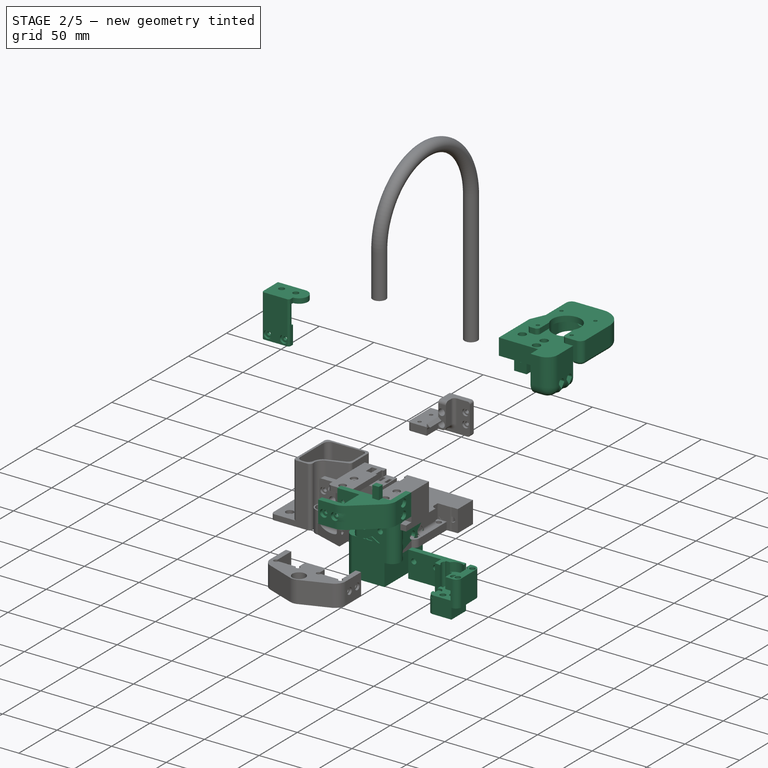
[diagram: stage 2 of 5 — iso view after this stage's code; geometry added in this stage tinted green]
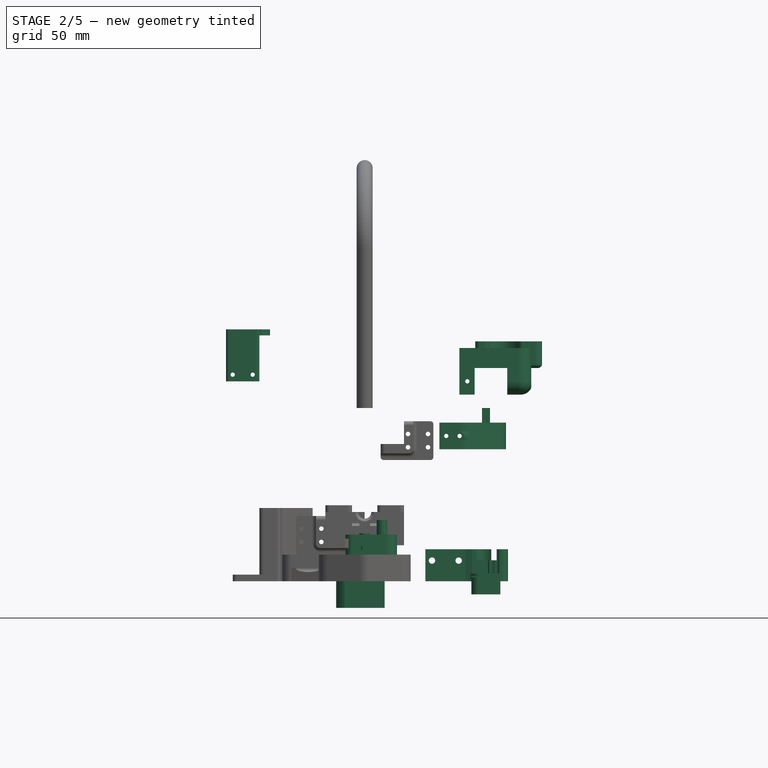
[diagram: stage 2 of 5 — front view after this stage's code; geometry added in this stage tinted green]
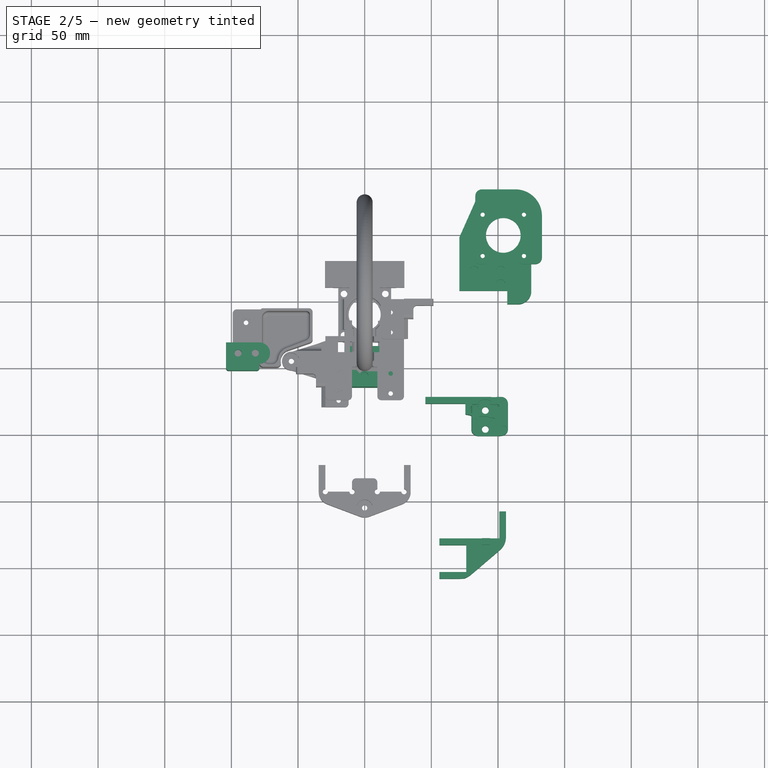
[diagram: stage 2 of 5 — top view after this stage's code; geometry added in this stage tinted green]
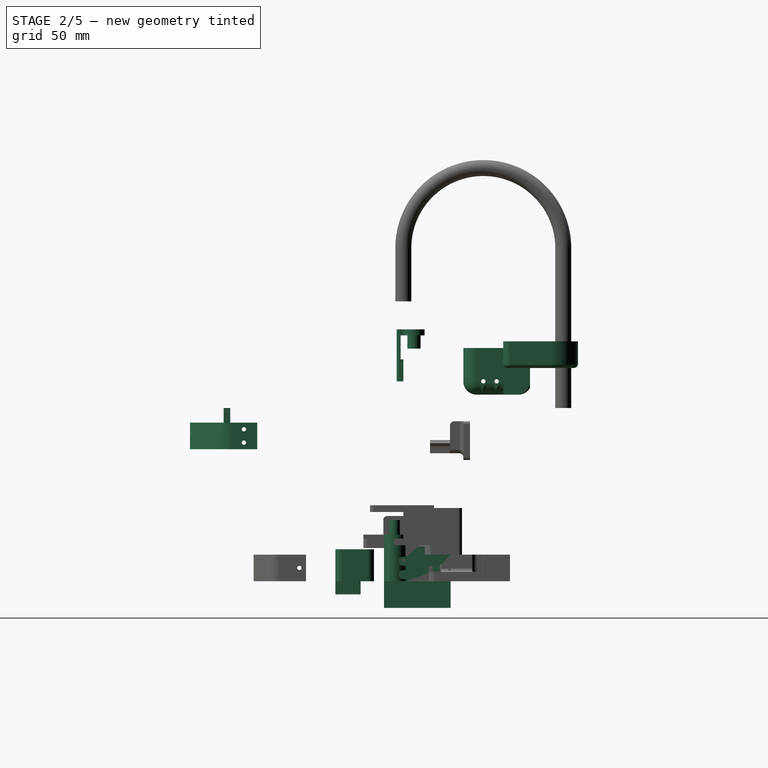
[diagram: stage 2 of 5 — right view after this stage's code; geometry added in this stage tinted green]
FEATURE [Sketcher::SketchObject] Sketch237
  ArcFitTolerance = 0
  AttachmentSupport = -> [XY_Plane028]
  FullyConstrained = true
  MakeInternals = false
  MapMode = 5
  expr: Constraints[26] = Spreadsheet.beam
  expr: Constraints[6] = Spreadsheet.beam + 0.4
  sketch-geometry (13):
    g0: LineSegment StartX=-10.3 StartY=10.3 StartZ=0 EndX=10.3 EndY=10.3 EndZ=0
    g1: LineSegment StartX=10.3 StartY=10.3 StartZ=0 EndX=10.3 EndY=-10.3 EndZ=0
    g2: LineSegment StartX=10.3 StartY=-10.3 StartZ=0 EndX=-10.3 EndY=-10.3 EndZ=0
    g3: LineSegment StartX=-10.3 StartY=-10.3 StartZ=0 EndX=-10.3 EndY=10.3 EndZ=0
    g4: LineSegment StartX=-15.2 StartY=35.5 StartZ=0 EndX=-15.2 EndY=1.84 EndZ=0
    g5: LineSegment StartX=-15 StartY=-14.5 StartZ=0 EndX=15 EndY=-14.5 EndZ=0
    g6: LineSegment StartX=15 StartY=-14.5 StartZ=0 EndX=15 EndY=35.5 EndZ=0
    g7: LineSegment StartX=15 StartY=35.5 StartZ=0 EndX=10 EndY=35.5 EndZ=0
    g8: LineSegment StartX=10 StartY=35.5 StartZ=0 EndX=10 EndY=15.5 EndZ=0
    g9: LineSegment StartX=10 StartY=15.5 StartZ=0 EndX=-10.2 EndY=15.5 EndZ=0
    g10: LineSegment StartX=-10.2 StartY=15.5 StartZ=0 EndX=-10.2 EndY=35.5 EndZ=0
    g11: LineSegment StartX=-10.2 StartY=35.5 StartZ=0 EndX=-15.2 EndY=35.5 EndZ=0
    g12: ArcOfCircle CenterX=-13 CenterY=-6.3043 CenterZ=0 NormalX=0 NormalY=0 NormalZ=1 AngleXU=0 Radius=8.43621 StartAngle=1.83463 EndAngle=4.47304
  constraints (37):
    c: Coincident(g0,g1)
    c: Coincident(g1,g2)
    c: Coincident(g2,g3)
    c: Coincident(g3,g0)
    c: Horizontal(g2)
    c: Vertical(g1)
    c: DistanceX(g0,g0) = 20.6
    c: Equal(g0,g3)
    c: Symmetric(g0,g2,g-1)
    c: Symmetric(g0,g0,g-2)
    c: Vertical(g4)
    c: Coincident(g5,g6)
    c: Vertical(g6)
    c: Coincident(g6,g7)
    c: Horizontal(g7)
    c: Coincident(g7,g8)
    c: Vertical(g8)
    c: Coincident(g8,g9)
    c: Horizontal(g9)
    c: Coincident(g9,g10)
    c: Vertical(g10)
    c: Coincident(g10,g11)
    c: Coincident(g11,g4)
    c: Horizontal(g11)
    c: Equal(g7,g11)
    c: Equal(g10,g8)
    c: DistanceX(g9,g9) = 20.2
    c: DistanceX(g5,g5) = 30
    c: DistanceY(g5,g4) = 50
    c: DistanceY(g5,g-1) = 14.5
    c: Symmetric(g5,g5,g-2)
    c: DistanceY(g10,g10) = 20
    c: DistanceX(g12,g-1) = 13
    c: Coincident(g4,g12)
    c: DistanceY(g5,g4) = 16.34
    c: Coincident(g5,g12)
    c: DistanceX(g7,g7) = 5
FEATURE [PartDesign::Pad] Pad102
  Direction = (0,0,1)
  Length = 20
  Length2 = 10
  Profile = -> Sketch237
  ReferenceAxis = -> Sketch237 [N_Axis]
  Reversed = true
  Suppressed = false
  Type = 0
FEATURE [Sketcher::SketchObject] Sketch238
  ArcFitTolerance = 0
  AttachmentSupport = -> [Pad102]
  ExternalGeometry = -> [Pad102]
  FullyConstrained = false
  MakeInternals = false
  MapMode = 5
  sketch-geometry (5):
    g0: LineSegment StartX=15 StartY=15.34 StartZ=0 EndX=15 EndY=-14.5 EndZ=0
    g1: LineSegment StartX=-15 StartY=-14.5 StartZ=0 EndX=15 EndY=-14.5 EndZ=0
    g2: LineSegment StartX=-15.2 StartY=1.84 StartZ=0 EndX=-15.2 EndY=15.34 EndZ=0
    g3: LineSegment StartX=-15.2 StartY=15.34 StartZ=0 EndX=15 EndY=15.34 EndZ=0
    g4: ArcOfCircle CenterX=-13 CenterY=-6.3043 CenterZ=0 NormalX=0 NormalY=0 NormalZ=1 AngleXU=0 Radius=8.43621 StartAngle=1.83463 EndAngle=4.47304
  constraints (12):
    c: PointOnObject(g0,g-6)
    c: Coincident(g0,g-6)
    c: Coincident(g1,g-5)
    c: Coincident(g1,g0)
    c: Coincident(g2,g-4)
    c: PointOnObject(g2,g-3)
    c: Coincident(g3,g2)
    c: Coincident(g3,g0)
    c: Horizontal(g3)
    c: DistanceY(g2,g2) = 13.5
    c: Coincident(g4,g-4)
    c: Coincident(g4,g2)
FEATURE [PartDesign::Pad] Pad103
  BaseFeature = -> Pad102
  Direction = (0,0,1)
  Length = 15
  Length2 = 10
  Profile = -> Sketch238
  ReferenceAxis = -> Sketch238 [N_Axis]
  Suppressed = false
  Type = 0
FEATURE [Sketcher::SketchObject] Sketch239
  ArcFitTolerance = 0
  AttachmentSupport = -> [Pad103]
  ExternalGeometry = -> [Pad103]
  FullyConstrained = true
  MakeInternals = false
  MapMode = 5
  Placement = pos=(0,0,15) rot=(0,0,1;0rad)
  sketch-geometry (4):
    g0: LineSegment StartX=-15.2 StartY=15.34 StartZ=0 EndX=15 EndY=15.34 EndZ=0
    g1: LineSegment StartX=15 StartY=15.34 StartZ=0 EndX=15 EndY=10.34 EndZ=0
    g2: LineSegment StartX=15 StartY=10.34 StartZ=0 EndX=-15.2 EndY=10.34 EndZ=0
    g3: LineSegment StartX=-15.2 StartY=10.34 StartZ=0 EndX=-15.2 EndY=15.34 EndZ=0
  constraints (11):
    c: Coincident(g0,g1)
    c: Coincident(g1,g2)
    c: Coincident(g2,g3)
    c: Coincident(g3,g0)
    c: Horizontal(g0)
    c: Horizontal(g2)
    c: Vertical(g1)
    c: Vertical(g3)
    c: Coincident(g0,g-3)
    c: PointOnObject(g1,g-4)
    c: DistanceY(g1,g1) = 5
FEATURE [PartDesign::Pocket] Pocket125
  BaseFeature = -> Pad103
  Direction = (0,0,-1)
  Length = 9
  Length2 = 5
  Profile = -> Sketch239
  ReferenceAxis = -> Sketch239 [N_Axis]
  Suppressed = false
  Type = 0
FEATURE [Sketcher::SketchObject] Sketch240
  ArcFitTolerance = 0
  AttachmentSupport = -> [Pocket125]
  FullyConstrained = true
  MakeInternals = false
  MapMode = 5
  Placement = pos=(0,0,15) rot=(0,0,1;0rad)
  sketch-geometry (1):
    g0: Circle CenterX=0 CenterY=-6.5 CenterZ=0 NormalX=0 NormalY=0 NormalZ=1 AngleXU=0 Radius=4
  constraints (3):
    c: PointOnObject(g0,g-2)
    c: DistanceY(g0,g-1) = 6.5
    c: Diameter(g0) = 8
FEATURE [PartDesign::Pad] Pad104
  BaseFeature = -> Pocket125
  Direction = (0,0,1)
  Length = 11
  Length2 = 10
  Profile = -> Sketch240
  ReferenceAxis = -> Sketch240 [N_Axis]
  Suppressed = false
  Type = 0
FEATURE [Sketcher::SketchObject] Sketch241
  ArcFitTolerance = 0
  AttachmentSupport = -> [Pad104]
  ExternalGeometry = -> [Pad104]
  FullyConstrained = true
  MakeInternals = false
  MapMode = 5
  Placement = pos=(0,0,15) rot=(0,0,1;0rad)
  sketch-geometry (2):
    g0: LineSegment [constr] StartX=0 StartY=-6.5 StartZ=0 EndX=-13 EndY=-6.5 EndZ=0
    g1: Circle CenterX=-13 CenterY=-6.5 CenterZ=0 NormalX=0 NormalY=0 NormalZ=1 AngleXU=0 Radius=4
  constraints (5):
    c: Coincident(g0,g-3)
    c: Horizontal(g0)
    c: DistanceX(g0,g0) = 13
    c: Coincident(g1,g0)
    c: Equal(g1,g-3)
FEATURE [PartDesign::Pad] Pad105
  BaseFeature = -> Pad104
  Direction = (0,0,1)
  Length = 1
  Length2 = 10
  Profile = -> Sketch241
  ReferenceAxis = -> Sketch241 [N_Axis]
  Suppressed = false
  Type = 0
FEATURE [PartDesign::Body] Body030  label="motor_mount_left"
  AllowCompound = false
  Group = -> [Sketch251,Pad108,Sketch253,Pad109,Sketch254,Pocket133,Sketch255,Pad110,Sketch257,Pocket135,Sketch258,Pocket136,Sketch259,Pad111,Sketch260,Pocket137,Sketch263,Pocket138,Fillet041,Fillet042,Fillet043,Sketch266,Pad114]
  Origin = -> Origin030
  Placement = pos=(0,0,150) rot=(0,0,1;0rad)
  Tip = -> Pad114
FEATURE [Sketcher::SketchObject] Sketch267
  ArcFitTolerance = 0
  AttachmentSupport = -> [XY_Plane036]
  FullyConstrained = true
  MakeInternals = false
  MapMode = 5
  sketch-geometry (13):
    g0: LineSegment StartX=-10.3 StartY=10.3 StartZ=0 EndX=10.3 EndY=10.3 EndZ=0
    g1: LineSegment StartX=10.3 StartY=10.3 StartZ=0 EndX=10.3 EndY=-10.3 EndZ=0
    g2: LineSegment StartX=10.3 StartY=-10.3 StartZ=0 EndX=-10.3 EndY=-10.3 EndZ=0
    g3: LineSegment StartX=-10.3 StartY=-10.3 StartZ=0 EndX=-10.3 EndY=10.3 EndZ=0
    g4: LineSegment StartX=16.1 StartY=-14.5 StartZ=0 EndX=-14.5 EndY=-14.5 EndZ=0
    g5: LineSegment StartX=-14.5 StartY=-14.5 StartZ=0 EndX=-14.5 EndY=35.5 EndZ=0
    g6: LineSegment StartX=-14.5 StartY=35.5 StartZ=0 EndX=-9.5 EndY=35.5 EndZ=0
    g7: LineSegment StartX=-9.5 StartY=35.5 StartZ=0 EndX=-9.5 EndY=15.3 EndZ=0
    g8: LineSegment StartX=-9.5 StartY=15.3 StartZ=0 EndX=11.1 EndY=15.3 EndZ=0
    g9: LineSegment StartX=11.1 StartY=15.3 StartZ=0 EndX=11.1 EndY=35.5 EndZ=0
    g10: LineSegment StartX=11.1 StartY=35.5 StartZ=0 EndX=16.1 EndY=35.5 EndZ=0
    g11: LineSegment StartX=16.1 StartY=35.5 StartZ=0 EndX=16.1 EndY=1.84 EndZ=0
    g12: ArcOfCircle CenterX=16.1 CenterY=-6.33 CenterZ=0 NormalX=0 NormalY=0 NormalZ=1 AngleXU=0 Radius=8.17 StartAngle=4.71239 EndAngle=7.85398
  constraints (37):
    c: Coincident(g0,g1)
    c: Coincident(g1,g2)
    c: Coincident(g2,g3)
    c: Coincident(g3,g0)
    c: Horizontal(g2)
    c: Vertical(g1)
    c: Symmetric(g0,g0,g-2)
    c: Symmetric(g0,g2,g-1)
    c: Equal(g3,g0)
    c: DistanceX(g0,g0) = 20.6
    c: Horizontal(g4)
    c: Coincident(g4,g5)
    c: Vertical(g5)
    c: Coincident(g5,g6)
    c: Horizontal(g6)
    c: Coincident(g6,g7)
    c: Vertical(g7)
    c: Coincident(g7,g8)
    c: Horizontal(g8)
    c: Coincident(g8,g9)
    c: Vertical(g9)
    c: Coincident(g9,g10)
    c: Horizontal(g10)
    c: Coincident(g10,g11)
    c: Vertical(g11)
    c: Perpendicular(g11,g12) = 4.71239
    c: Coincident(g12,g4)
    c: Vertical(g12,g4)
    c: DistanceY(g4,g11) = 16.34
    c: DistanceY(g5,g5) = 50
    c: Equal(g6,g10)
    c: Equal(g8,g0)
    c: DistanceY(g0,g8) = 5
    c: DistanceX(g6,g6) = 5
    c: DistanceX(g4,g-1) = 14.5
    c: DistanceY(g4,g-1) = 14.5
    c: DistanceY(g4,g10) = 50
FEATURE [PartDesign::Pad] Pad115
  Direction = (0,0,1)
  Length = 20
  Length2 = 10
  Profile = -> Sketch267
  ReferenceAxis = -> Sketch267 [N_Axis]
  Suppressed = false
  Type = 0
FEATURE [Sketcher::SketchObject] Sketch268
  ArcFitTolerance = 0
  AttachmentSupport = -> [Pad115]
  ExternalGeometry = -> [Pad115]
  FullyConstrained = true
  MakeInternals = false
  MapMode = 5
  Placement = pos=(0,0,20) rot=(0,0,1;0rad)
  sketch-geometry (5):
    g0: LineSegment StartX=16.1 StartY=-14.5 StartZ=0 EndX=-14.5 EndY=-14.5 EndZ=0
    g1: LineSegment StartX=-14.5 StartY=-14.5 StartZ=0 EndX=-14.5 EndY=16.1 EndZ=0
    g2: LineSegment StartX=-14.5 StartY=16.1 StartZ=0 EndX=16.1 EndY=16.1 EndZ=0
    g3: LineSegment StartX=16.1 StartY=16.1 StartZ=0 EndX=16.1 EndY=1.84 EndZ=0
    g4: ArcOfCircle CenterX=16.1 CenterY=-6.33 CenterZ=0 NormalX=0 NormalY=0 NormalZ=1 AngleXU=0 Radius=8.17 StartAngle=4.71239 EndAngle=7.85398
  constraints (13):
    c: Coincident(g0,g-3)
    c: Coincident(g0,g-4)
    c: Coincident(g1,g0)
    c: PointOnObject(g1,g-4)
    c: Coincident(g2,g1)
    c: PointOnObject(g2,g-5)
    c: Horizontal(g2)
    c: Coincident(g3,g2)
    c: Coincident(g3,g-5)
    c: Coincident(g4,g-3)
    c: Coincident(g4,g3)
    c: Coincident(g4,g0)
    c: Equal(g2,g1)
FEATURE [PartDesign::Pad] Pad116
  BaseFeature = -> Pad115
  Direction = (0,0,1)
  Length = 15
  Length2 = 10
  Profile = -> Sketch268
  ReferenceAxis = -> Sketch268 [N_Axis]
  Suppressed = false
  Type = 0
FEATURE [Sketcher::SketchObject] Sketch269
  ArcFitTolerance = 0
  AttachmentSupport = -> [Pad116]
  ExternalGeometry = -> [Pad116]
  FullyConstrained = true
  MakeInternals = false
  MapMode = 5
  Placement = pos=(0,0,35) rot=(0,0,1;0rad)
  sketch-geometry (4):
    g0: LineSegment StartX=-14.5 StartY=16.1 StartZ=0 EndX=16.1 EndY=16.1 EndZ=0
    g1: LineSegment StartX=16.1 StartY=16.1 StartZ=0 EndX=16.1 EndY=11.1 EndZ=0
    g2: LineSegment StartX=16.1 StartY=11.1 StartZ=0 EndX=-14.5 EndY=11.1 EndZ=0
    g3: LineSegment StartX=-14.5 StartY=11.1 StartZ=0 EndX=-14.5 EndY=16.1 EndZ=0
  constraints (10):
    c: Coincident(g0,g1)
    c: Coincident(g1,g2)
    c: Coincident(g2,g3)
    c: Coincident(g3,g0)
    c: Horizontal(g2)
    c: Vertical(g1)
    c: Vertical(g3)
    c: Coincident(g0,g-3)
    c: Coincident(g0,g-3)
    c: DistanceY(g1,g1) = 5
FEATURE [PartDesign::Pocket] Pocket139
  BaseFeature = -> Pad116
  Direction = (0,0,-1)
  Length = 9
  Length2 = 5
  Profile = -> Sketch269
  ReferenceAxis = -> Sketch269 [N_Axis]
  Suppressed = false
  Type = 0
FEATURE [Sketcher::SketchObject] Sketch270
  ArcFitTolerance = 0
  AttachmentSupport = -> [Pocket139]
  FullyConstrained = true
  MakeInternals = false
  MapMode = 5
  Placement = pos=(0,0,35) rot=(0,0,1;0rad)
  sketch-geometry (1):
    g0: Circle CenterX=0 CenterY=-6.5 CenterZ=0 NormalX=0 NormalY=0 NormalZ=1 AngleXU=0 Radius=4
  constraints (3):
    c: PointOnObject(g0,g-2)
    c: DistanceY(g0,g-1) = 6.5
    c: Radius(g0) = 4
FEATURE [PartDesign::Pad] Pad117
  BaseFeature = -> Pocket139
  Direction = (0,0,1)
  Length = 1
  Length2 = 10
  Profile = -> Sketch270
  ReferenceAxis = -> Sketch270 [N_Axis]
  Suppressed = false
  Type = 0
FEATURE [Sketcher::SketchObject] Sketch271
  ArcFitTolerance = 0
  AttachmentSupport = -> [Pad117]
  ExternalGeometry = -> [Pad117]
  FullyConstrained = true
  MakeInternals = false
  MapMode = 5
  Placement = pos=(0,0,35) rot=(0,0,1;0rad)
  sketch-geometry (1):
    g0: Circle CenterX=13 CenterY=-6.5 CenterZ=0 NormalX=0 NormalY=0 NormalZ=1 AngleXU=0 Radius=4
  constraints (3):
    c: Horizontal(g0,g-3)
    c: DistanceX(g-3,g0) = 13
    c: Equal(g-3,g0)
FEATURE [PartDesign::Pad] Pad118
  BaseFeature = -> Pad117
  Direction = (0,0,1)
  Length = 11
  Length2 = 10
  Profile = -> Sketch271
  ReferenceAxis = -> Sketch271 [N_Axis]
  Suppressed = false
  Type = 0
FEATURE [Sketcher::SketchObject] Sketch272
  ArcFitTolerance = 0
  AttachmentSupport = -> [Pad118]
  ExternalGeometry = -> [Pad118]
  FullyConstrained = true
  MakeInternals = false
  MapMode = 5
  Placement = pos=(0,0,46) rot=(0,0,1;0rad)
  sketch-geometry (2):
    g0: Circle CenterX=13 CenterY=-6.5 CenterZ=0 NormalX=0 NormalY=0 NormalZ=1 AngleXU=0 Radius=2.5
    g1: Circle CenterX=0 CenterY=-6.5 CenterZ=0 NormalX=0 NormalY=0 NormalZ=1 AngleXU=0 Radius=2.5
  constraints (4):
    c: Coincident(g0,g-4)
    c: Coincident(g1,g-3)
    c: Equal(g1,g0)
    c: Radius(g1) = 2.5
FEATURE [PartDesign::Hole] Hole001
  BaseFeature = -> Pad118
  CustomThreadClearance = 0
  Depth = 20
  DepthType = 0
  Diameter = 5.5
  DrillForDepth = false
  DrillPoint = 0
  DrillPointAngle = 118
  HoleCutCountersinkAngle = 90
  HoleCutCustomValues = false
  HoleCutDepth = 0
  HoleCutDiameter = 6.1
  HoleCutType = 0
  ModelThread = true
  Profile = -> Sketch272
  Suppressed = false
  Tapered = false
  TaperedAngle = 90
  ThreadClass = 0
  ThreadDepth = 20
  ThreadDepthType = 0
  ThreadDirection = 0
  ThreadFit = 0
  ThreadSize = 13
  ThreadType = 1
  Threaded = false
  UseCustomThreadClearance = false
FEATURE [Sketcher::SketchObject] Sketch277
  ArcFitTolerance = 0
  FullyConstrained = true
  MakeInternals = false
  MapMode = 5
  Placement = pos=(0,-14.5,0) rot=(1,0,0;1.5708rad)
  sketch-geometry (38):
    g0: LineSegment StartX=11.2272 StartY=5.25 StartZ=0 EndX=11.2272 EndY=14.75 EndZ=0
    g1: LineSegment StartX=11.2272 StartY=14.75 StartZ=0 EndX=3 EndY=19.5 EndZ=0
    g2: LineSegment StartX=3 StartY=19.5 StartZ=0 EndX=-5.22724 EndY=14.75 EndZ=0
    g3: LineSegment StartX=-5.22724 StartY=14.75 StartZ=0 EndX=-5.22724 EndY=5.25 EndZ=0
    g4: LineSegment StartX=-5.22724 StartY=5.25 StartZ=0 EndX=3 EndY=0.5 EndZ=0
    g5: LineSegment StartX=3 StartY=0.5 StartZ=0 EndX=11.2272 EndY=5.25 EndZ=0
    g6: Circle [constr] CenterX=3 CenterY=10 CenterZ=0 NormalX=0 NormalY=0 NormalZ=1 AngleXU=0 Radius=9.5
    g7: LineSegment [constr] StartX=10.3612 StartY=14.25 StartZ=0 EndX=3 EndY=18.5 EndZ=0
    g8: LineSegment [constr] StartX=3 StartY=18.5 StartZ=0 EndX=-4.36122 EndY=14.25 EndZ=0
    g9: LineSegment [constr] StartX=-4.36122 StartY=14.25 StartZ=0 EndX=-4.36122 EndY=5.75 EndZ=0
    g10: LineSegment [constr] StartX=-4.36122 StartY=5.75 StartZ=0 EndX=3 EndY=1.5 EndZ=0
    g11: LineSegment [constr] StartX=3 StartY=1.5 StartZ=0 EndX=10.3612 EndY=5.75 EndZ=0
    g12: LineSegment [constr] StartX=10.3612 StartY=5.75 StartZ=0 EndX=10.3612 EndY=14.25 EndZ=0
    g13: Circle [constr] CenterX=3 CenterY=10 CenterZ=0 NormalX=0 NormalY=0 NormalZ=1 AngleXU=0 Radius=8.5
    g14: LineSegment StartX=0.546262 StartY=17.0833 StartZ=0 EndX=8.7735 EndY=12.3333 EndZ=0
    g15: LineSegment StartX=-1.90748 StartY=15.6667 StartZ=0 EndX=6.31976 EndY=10.9167 EndZ=0
    g16: LineSegment StartX=8.7735 StartY=12.3333 StartZ=0 EndX=6.31976 EndY=10.9167 EndZ=0
    g17: LineSegment [constr] StartX=11.2272 StartY=14.75 StartZ=0 EndX=10.3612 EndY=14.25 EndZ=0
    g18: LineSegment StartX=-1.90748 StartY=4.33333 StartZ=0 EndX=-1.90748 EndY=13.8333 EndZ=0
    g19: LineSegment StartX=0.546261 StartY=2.91667 StartZ=0 EndX=0.546261 EndY=12.4167 EndZ=0
    g20: LineSegment StartX=0.546261 StartY=12.4167 StartZ=0 EndX=-1.90748 EndY=13.8333 EndZ=0
    g21: LineSegment [constr] StartX=-5.22724 StartY=14.75 StartZ=0 EndX=-4.36122 EndY=14.25 EndZ=0
    g22: LineSegment StartX=10.3612 StartY=11.4167 StartZ=0 EndX=3 EndY=7.16667 EndZ=0
    g23: LineSegment StartX=3 StartY=7.16667 StartZ=0 EndX=3 EndY=4.33333 EndZ=0
    g24: LineSegment StartX=10.3612 StartY=8.58333 StartZ=0 EndX=5.45374 EndY=5.75 EndZ=0
    g25: LineSegment StartX=5.45374 StartY=5.75 StartZ=0 EndX=7.90748 EndY=4.33333 EndZ=0
    g26: LineSegment StartX=3 StartY=4.33333 StartZ=0 EndX=5.45374 EndY=2.91667 EndZ=0
    g27: LineSegment [constr] StartX=11.2272 StartY=5.25 StartZ=0 EndX=10.3612 EndY=5.75 EndZ=0
    g28: LineSegment StartX=5.45374 StartY=2.91667 StartZ=0 EndX=3 EndY=1.5 EndZ=0
    g29: LineSegment StartX=3 StartY=1.5 StartZ=0 EndX=0.546261 EndY=2.91667 EndZ=0
    g30: LineSegment StartX=-1.90748 StartY=4.33333 StartZ=0 EndX=-4.36122 EndY=5.75 EndZ=0
    g31: LineSegment StartX=-4.36122 StartY=5.75 StartZ=0 EndX=-4.36122 EndY=14.25 EndZ=0
    g32: LineSegment StartX=-4.36122 StartY=14.25 StartZ=0 EndX=-1.90748 EndY=15.6667 EndZ=0
    g33: LineSegment StartX=0.546262 StartY=17.0833 StartZ=0 EndX=3 EndY=18.5 EndZ=0
    g34: LineSegment StartX=3 StartY=18.5 StartZ=0 EndX=10.3612 EndY=14.25 EndZ=0
    g35: LineSegment StartX=10.3612 StartY=14.25 StartZ=0 EndX=10.3612 EndY=11.4167 EndZ=0
    g36: LineSegment StartX=10.3612 StartY=8.58333 StartZ=0 EndX=10.3612 EndY=5.75 EndZ=0
    g37: LineSegment StartX=10.3612 StartY=5.75 StartZ=0 EndX=7.90748 EndY=4.33333 EndZ=0
  constraints (96):
    c: Coincident(g0,g1)
    c: Coincident(g1,g2)
    c: Coincident(g2,g3)
    c: Coincident(g3,g4)
    c: Coincident(g4,g5)
    c: Coincident(g5,g0)
    c: Equal(g0, g1-g5) x5
    c: PointOnObject(g0,g6)
    c: PointOnObject(g1,g6)
    c: PointOnObject(g2,g6)
    c: PointOnObject(g3,g6)
    c: PointOnObject(g4,g6)
    c: PointOnObject(g5,g6)
    c: Vertical(g0)
    c: DistanceY(g-1,g6) = 10
    c: DistanceX(g-1,g6) = 3
    c: Radius(g6) = 9.5
    c: Coincident(g7,g8)
    c: Coincident(g8,g9)
    c: Coincident(g9,g10)
    c: Coincident(g10,g11)
    c: Coincident(g11,g12)
    c: Coincident(g12,g7)
    c: Equal(g7, g8-g12) x5
    c: PointOnObject(g7,g13)
    c: PointOnObject(g8,g13)
    c: PointOnObject(g9,g13)
    c: PointOnObject(g10,g13)
    c: PointOnObject(g11,g13)
    c: PointOnObject(g12,g13)
    c: Coincident(g13,g6)
    c: Vertical(g12)
    c: Radius(g13) = 8.5
    c: PointOnObject(g14,g8)
    c: PointOnObject(g15,g8)
    c: Parallel(g7,g14)
    c: Parallel(g14,g15)
    c: Distance(g14,g15) = 2.83333
    c: Distance(g14,g7) = 2.83333
    c: Coincident(g16,g14)
    c: Coincident(g16,g15)
    c: Coincident(g17,g0)
    c: Coincident(g17,g7)
    c: Parallel(g17,g16)
    c: Distance(g14) = 9.5
    c: Vertical(g18)
    c: Vertical(g19)
    c: Coincident(g20,g19)
    c: Coincident(g20,g18)
    c: Coincident(g21,g2)
    c: Coincident(g21,g8)
    c: Parallel(g20,g21)
    c: Distance(g18) = 9.5
    c: PointOnObject(g19,g10)
    c: PointOnObject(g18,g10)
    c: Distance(g18,g9) = 2.83333
    c: Distance(g18,g19) = 2.83333
    c: PointOnObject(g22,g12)
    c: Coincident(g23,g22)
    c: Vertical(g23)
    c: PointOnObject(g24,g12)
    c: Coincident(g25,g24)
    c: PointOnObject(g25,g11)
    c: Coincident(g26,g23)
    c: PointOnObject(g26,g11)
    c: Parallel(g25,g26)
    c: DistanceY(g24,g22) = 2.83333
    c: DistanceY(g22,g7) = 2.83333
    c: Distance(g26,g25) = 2.83333
    c: Parallel(g22,g24)
    c: Parallel(g17,g22)
    c: Distance(g26,g10) = 2.83333
    c: Coincident(g27,g0)
    c: Coincident(g27,g11)
    c: Parallel(g27,g25)
    c: Distance(g24,g23) = 2.83333
    c: Coincident(g28,g26)
    c: Coincident(g28,g10)
    c: Coincident(g29,g28)
    c: Coincident(g29,g19)
    c: Coincident(g30,g18)
    c: Coincident(g30,g9)
    c: Coincident(g31,g30)
    c: Coincident(g31,g8)
    c: Coincident(g32,g31)
    c: Coincident(g32,g15)
    c: Coincident(g33,g14)
    c: Coincident(g33,g7)
    c: Coincident(g34,g33)
    c: Coincident(g34,g7)
    c: Coincident(g35,g34)
    c: Coincident(g35,g22)
    c: Coincident(g36,g24)
    c: Coincident(g36,g11)
    c: Coincident(g37,g36)
    c: Coincident(g37,g25)
FEATURE [PartDesign::Pocket] Pocket144
  BaseFeature = -> Hole001
  Direction = (0,1,-2e-16)
  Length = 1
  Length2 = 5
  Profile = -> Sketch277
  ReferenceAxis = -> Sketch277 [N_Axis]
  Suppressed = false
  Type = 0
FEATURE [PartDesign::Body] Body070  label="YCarriage_bottom_left"
  AllowCompound = false
  Group = -> [Sketch407,Pad185,Sketch408,Pad186,Sketch411,Pad189,Sketch412,Pocket193,Sketch413,Pocket194,Sketch415,Pocket195,Sketch416,Pad190,Sketch417,Pocket196,Sketch418,Pocket197,Sketch419,Pocket198,Fillet109,Fillet110,Fillet111,Sketch442,Pocket212]
  Origin = -> Origin098
  Placement = pos=(0,0,160) rot=(0,0,1;0rad)
  Tip = -> Pocket212
FEATURE [Sketcher::SketchObject] Sketch443
  ArcFitTolerance = 1e-06
  AttachmentSupport = -> [XY_Plane101]
  FullyConstrained = true
  MakeInternals = false
  MapMode = 5
  sketch-geometry (12):
    g0: LineSegment StartX=107.5 StartY=-22 StartZ=0 EndX=80.5 EndY=-22 EndZ=0
    g1: LineSegment StartX=80.5 StartY=-22 StartZ=0 EndX=80.5 EndY=-51 EndZ=0
    g2: LineSegment StartX=80.5 StartY=-51 StartZ=0 EndX=107.5 EndY=-51 EndZ=0
    g3: LineSegment StartX=107.5 StartY=-51 StartZ=0 EndX=107.5 EndY=-22 EndZ=0
    g4: LineSegment [constr] StartX=82.5 StartY=-31.5 StartZ=0 EndX=82.5 EndY=-41.5 EndZ=0
    g5: LineSegment [constr] StartX=82.5 StartY=-41.5 StartZ=0 EndX=97.5 EndY=-41.5 EndZ=0
    g6: LineSegment [constr] StartX=97.5 StartY=-41.5 StartZ=0 EndX=97.5 EndY=-31.5 EndZ=0
    g7: LineSegment [constr] StartX=97.5 StartY=-31.5 StartZ=0 EndX=82.5 EndY=-31.5 EndZ=0
    g8: Circle CenterX=82.5 CenterY=-31.5 CenterZ=0 NormalX=0 NormalY=0 NormalZ=1 AngleXU=0 Radius=1.6
    g9: Circle CenterX=97.5 CenterY=-31.5 CenterZ=0 NormalX=0 NormalY=0 NormalZ=1 AngleXU=0 Radius=1.6
    g10: Circle CenterX=97.5 CenterY=-41.5 CenterZ=0 NormalX=0 NormalY=0 NormalZ=1 AngleXU=0 Radius=1.6
    g11: Circle CenterX=82.5 CenterY=-41.5 CenterZ=0 NormalX=0 NormalY=0 NormalZ=1 AngleXU=0 Radius=1.6
  constraints (32):
    c: Coincident(g0,g1)
    c: Coincident(g1,g2)
    c: Coincident(g2,g3)
    c: Coincident(g3,g0)
    c: Horizontal(g0)
    c: Horizontal(g2)
    c: Vertical(g1)
    c: Vertical(g3)
    c: DistanceY(g1,g1) = 29
    c: DistanceX(g0,g0) = 27
    c: DistanceY(g0,g-1) = 22
    c: Coincident(g4,g5)
    c: Coincident(g5,g6)
    c: Coincident(g6,g7)
    c: Coincident(g7,g4)
    c: Vertical(g4)
    c: Vertical(g6)
    c: Horizontal(g5)
    c: Horizontal(g7)
    c: DistanceX(g1,g4) = 2
    c: DistanceX(g7,g7) = 15
    c: DistanceY(g6,g6) = 10
    c: DistanceX(g0) = 80.5
    c: DistanceY(g1,g4) = 9.5
    c: Coincident(g8,g4)
    c: Coincident(g9,g6)
    c: Coincident(g10,g5)
    c: Coincident(g11,g4)
    c: Equal(g11,g10)
    c: Equal(g10,g9)
    c: Equal(g9,g8)
    c: Radius(g8) = 1.6
FEATURE [Part::Feature] Part__Feature190  label="Throat v7"
  shape: bbox 7 x 7 x 20 mm, 9 faces (baked)
FEATURE [Part::Feature] Part__Feature191  label="Throat v008"
  shape: bbox 5.884 x 5.884 x 7.5 mm, 6 faces (baked)
FEATURE [App::Part] Throat_v009  label="Throat v009"
  Group = -> [Part__Feature190,Part__Feature191]
  Origin = -> Origin102
  Placement = pos=(0,0,7) rot=(0,0,1;0rad)
FEATURE [Part::Feature] Part__Feature192  label="V6 0.4mm nozzle v007"
  Placement = pos=(0,0,-24) rot=(0,1,0;3.14159rad)
  shape: bbox 8.083 x 7 x 13 mm, 20 faces (baked)
FEATURE [Part::Feature] Part__Feature193  label="radiator"
  Placement = pos=(0,0,17) rot=(0,0,1;0rad)
  shape: bbox 20.2 x 21 x 11.37 mm, 73 faces (baked)
FEATURE [Part::Feature] Part__Feature194  label="Heater"
  Placement = pos=(8,-3.6e-15,-16) rot=(0.57735,-0.57735,0.57735;4.18879rad)
  shape: bbox 6.494 x 6.494 x 56.25 mm, 28 faces (baked)
FEATURE [Part::Feature] Part__Feature195  label="heatblock"
  Placement = pos=(0,0,-23) rot=(0,0,1;0rad)
  shape: bbox 23.5 x 21 x 36 mm, 32 faces (baked)
FEATURE [Part::Feature] Part__Feature196  label="Thermistor"
  Placement = pos=(4,-4,-15) rot=(-1,0,0;1.5708rad)
  shape: bbox 3.367 x 3.247 x 45 mm, 34 faces (baked)
FEATURE [Part::Feature] Part__Feature197  label="m25x6"
  Placement = pos=(-8.75,0,11) rot=(0,1,0;3.14159rad)
  shape: bbox 4.6 x 4.6 x 7.5 mm, 13 faces (baked)
FEATURE [Part::Feature] Part__Feature198  label="m25x007"
  Placement = pos=(0,8.75,11) rot=(0,1,0;3.14159rad)
  shape: bbox 4.6 x 4.6 x 7.5 mm, 13 faces (baked)
FEATURE [Part::Feature] Part__Feature199  label="m25x008"
  Placement = pos=(0,-8.75,11) rot=(0,1,0;3.14159rad)
  shape: bbox 4.6 x 4.6 x 7.5 mm, 13 faces (baked)
FEATURE [App::Part] hotend
  Group = -> [Throat_v009,Part__Feature192,Part__Feature193,Part__Feature194,Part__Feature195,Part__Feature196,Part__Feature197,Part__Feature198,Part__Feature199]
  Origin = -> Origin103
  Placement = pos=(-7,-52,163) rot=(0,0,1;0rad)
FEATURE [PartDesign::Pad] Pad196
  Direction = (0,0,1)
  Length = 5.8
  Length2 = 10
  Profile = -> Sketch443
  ReferenceAxis = -> Sketch443 [N_Axis]
  Refine = true
  Suppressed = false
  Type = 0
FEATURE [Sketcher::SketchObject] Sketch444
  ArcFitTolerance = 1e-06
  AttachmentSupport = -> [Pad196]
  ExternalGeometry = -> [Pad196]
  FullyConstrained = true
  MakeInternals = false
  MapMode = 5
  Placement = pos=(0,0,5.8) rot=(0,0,1;0rad)
  sketch-geometry (10):
    g0: LineSegment StartX=80.5 StartY=-22 StartZ=0 EndX=107.5 EndY=-22 EndZ=0
    g1: LineSegment StartX=107.5 StartY=-22 StartZ=0 EndX=107.5 EndY=-51 EndZ=0
    g2: LineSegment StartX=101 StartY=-51 StartZ=0 EndX=101 EndY=-27.5 EndZ=0
    g3: LineSegment StartX=80.5 StartY=-27.5 StartZ=0 EndX=80.5 EndY=-22 EndZ=0
    g4: LineSegment StartX=80.5 StartY=-27.5 StartZ=0 EndX=86 EndY=-27.5 EndZ=0
    g5: LineSegment StartX=86 StartY=-27.5 StartZ=0 EndX=86 EndY=-36.5 EndZ=0
    g6: LineSegment StartX=86 StartY=-36.5 StartZ=0 EndX=94 EndY=-36.5 EndZ=0
    g7: LineSegment StartX=94 StartY=-36.5 StartZ=0 EndX=94 EndY=-27.5 EndZ=0
    g8: LineSegment StartX=94 StartY=-27.5 StartZ=0 EndX=101 EndY=-27.5 EndZ=0
    g9: LineSegment StartX=101 StartY=-51 StartZ=0 EndX=107.5 EndY=-51 EndZ=0
  constraints (27):
    c: Coincident(g-3,g0)
    c: Coincident(g0,g-3)
    c: Coincident(g0,g1)
    c: Coincident(g1,g-4)
    c: Vertical(g2)
    c: Coincident(g3,g0)
    c: Vertical(g3)
    c: DistanceX(g2,g1) = 6.5
    c: DistanceY(g3,g3) = 5.5
    c: Coincident(g4,g3)
    c: Horizontal(g4)
    c: Coincident(g4,g5)
    c: Vertical(g5)
    c: Coincident(g5,g6)
    c: Horizontal(g6)
    c: Coincident(g6,g7)
    c: Vertical(g7)
    c: Coincident(g7,g8)
    c: Coincident(g8,g2)
    c: Horizontal(g8)
    c: Horizontal(g7,g4)
    c: DistanceX(g6,g6) = 8
    c: DistanceY(g5,g5) = 9
    c: DistanceX(g8,g8) = 7
    c: Coincident(g9,g2)
    c: Coincident(g9,g1)
    c: Horizontal(g9)
FEATURE [PartDesign::Pad] Pad197
  BaseFeature = -> Pad196
  Direction = (0,0,1)
  Length = 10
  Length2 = 10
  Profile = -> Sketch444
  ReferenceAxis = -> Sketch444 [N_Axis]
  Refine = true
  Suppressed = false
  Type = 0
FEATURE [PartDesign::Body] Body028  label="idlerv3_left"
  AllowCompound = false
  Group = -> [Sketch237,Pad102,Sketch238,Pad103,Sketch239,Pocket125,Sketch240,Pad104,Sketch241,Pad105,Sketch242,Hole,Fillet040,Sketch243,Pocket126,Sketch244,Pocket127,Sketch245,Pocket128,Sketch246,Pocket129,Sketch247,Pocket130,Sketch445,Pocket213,Chamfer,Sketch446,Pocket214]
  Origin = -> Origin028
  Placement = pos=(-89,-120.5,150) rot=(0,0,1;0rad)
  Tip = -> Pocket214
FEATURE [Sketcher::SketchObject] Sketch447
  ArcFitTolerance = 0
  AttachmentSupport = -> [XZ_Plane104]
  FullyConstrained = true
  MakeInternals = false
  MapMode = 5
  Placement = pos=(0,0,0) rot=(1,0,0;1.5708rad)
  expr: Constraints[17] = Spreadsheet.screw
  sketch-geometry (6):
    g0: LineSegment StartX=-104 StartY=150 StartZ=0 EndX=-79 EndY=150 EndZ=0
    g1: LineSegment StartX=-79 StartY=150 StartZ=0 EndX=-79 EndY=189 EndZ=0
    g2: LineSegment StartX=-79 StartY=189 StartZ=0 EndX=-104 EndY=189 EndZ=0
    g3: LineSegment StartX=-104 StartY=189 StartZ=0 EndX=-104 EndY=150 EndZ=0
    g4: Circle CenterX=-99 CenterY=155 CenterZ=0 NormalX=0 NormalY=0 NormalZ=1 AngleXU=0 Radius=1.6
    g5: Circle CenterX=-84 CenterY=155 CenterZ=0 NormalX=0 NormalY=0 NormalZ=1 AngleXU=0 Radius=1.6
  constraints (18):
    c: Coincident(g0,g1)
    c: Coincident(g1,g2)
    c: Coincident(g2,g3)
    c: Coincident(g3,g0)
    c: Horizontal(g0)
    c: Horizontal(g2)
    c: Vertical(g1)
    c: Vertical(g3)
    c: DistanceX(g0,g0) = 25
    c: DistanceX(g0,g-1) = 79
    c: DistanceY(g-1,g0) = 150
    c: DistanceY(g3,g3) = 39
    c: Horizontal(g4,g5)
    c: DistanceX(g0,g4) = 5
    c: DistanceY(g0,g4) = 5
    c: DistanceX(g5,g0) = 5
    c: Equal(g4,g5)
    c: Radius(g5) = 1.6
FEATURE [PartDesign::Pad] Pad198
  Direction = (0,-1,2e-16)
  Length = 5
  Length2 = 10
  Placement = pos=(0,0,0) rot=(1,0,0;1.5708rad)
  Profile = -> Sketch447
  ReferenceAxis = -> Sketch447 [N_Axis]
  Suppressed = false
  Type = 0
FEATURE [Sketcher::SketchObject] Sketch448
  ArcFitTolerance = 0
  AttachmentSupport = -> [Pad198]
  ExternalGeometry = -> [Pad198]
  FullyConstrained = true
  MakeInternals = false
  MapMode = 5
  Placement = pos=(-104,0,0) rot=(0.707107,0,-0.707107;3.14159rad)
  sketch-geometry (4):
    g0: LineSegment StartX=-184.5 StartY=-4.11e-14 StartZ=0 EndX=-166.5 EndY=-4.11e-14 EndZ=0
    g1: LineSegment StartX=-166.5 StartY=-4.11e-14 StartZ=0 EndX=-166.5 EndY=2 EndZ=0
    g2: LineSegment StartX=-166.5 StartY=2 StartZ=0 EndX=-184.5 EndY=2 EndZ=0
    g3: LineSegment StartX=-184.5 StartY=2 StartZ=0 EndX=-184.5 EndY=-4.11e-14 EndZ=0
  constraints (12):
    c: Coincident(g0,g1)
    c: Coincident(g1,g2)
    c: Coincident(g2,g3)
    c: Coincident(g3,g0)
    c: Horizontal(g0)
    c: Horizontal(g2)
    c: Vertical(g1)
    c: Vertical(g3)
    c: PointOnObject(g0,g-3)
    c: DistanceX(g-3,g0) = 4.5
    c: DistanceX(g0,g0) = 18
    c: DistanceY(g1,g1) = 2
FEATURE [PartDesign::Pocket] Pocket215
  BaseFeature = -> Pad198
  Direction = (1,0,2e-16)
  Length = 25
  Length2 = 5
  Placement = pos=(0,0,0) rot=(1,0,0;1.5708rad)
  Profile = -> Sketch448
  ReferenceAxis = -> Sketch448 [N_Axis]
  Suppressed = false
  Type = 0
FEATURE [Sketcher::SketchObject] Sketch449
  ArcFitTolerance = 0
  AttachmentSupport = -> [Pocket215]
  ExternalGeometry = -> [Pocket215]
  FullyConstrained = true
  MakeInternals = false
  MapMode = 5
  Placement = pos=(0,3.73e-14,0) rot=(-1,0,0;1.5708rad)
  sketch-geometry (4):
    g0: LineSegment StartX=-104 StartY=-184.5 StartZ=0 EndX=-79 EndY=-184.5 EndZ=0
    g1: LineSegment StartX=-79 StartY=-184.5 StartZ=0 EndX=-79 EndY=-189 EndZ=0
    g2: LineSegment StartX=-79 StartY=-189 StartZ=0 EndX=-104 EndY=-189 EndZ=0
    g3: LineSegment StartX=-104 StartY=-189 StartZ=0 EndX=-104 EndY=-184.5 EndZ=0
  constraints (10):
    c: Coincident(g0,g1)
    c: Coincident(g1,g2)
    c: Coincident(g2,g3)
    c: Coincident(g3,g0)
    c: Horizontal(g0)
    c: Horizontal(g2)
    c: Vertical(g1)
    c: Vertical(g3)
    c: Coincident(g0,g-3)
    c: Coincident(g1,g-4)
FEATURE [PartDesign::Pad] Pad199
  BaseFeature = -> Pocket215
  Direction = (0,1,2e-16)
  Length = 16
  Length2 = 10
  Placement = pos=(0,0,0) rot=(1,0,0;1.5708rad)
  Profile = -> Sketch449
  ReferenceAxis = -> Sketch449 [N_Axis]
  Suppressed = false
  Type = 0
FEATURE [Sketcher::SketchObject] Sketch450
  ArcFitTolerance = 0
  AttachmentSupport = -> [Pad199]
  ExternalGeometry = -> [Pad199]
  FullyConstrained = true
  MakeInternals = false
  MapMode = 5
  Placement = pos=(0,0,189) rot=(0,0,1;3.14159rad)
  sketch-geometry (2):
    g0: ArcOfCircle CenterX=79 CenterY=-8 CenterZ=0 NormalX=0 NormalY=0 NormalZ=1 AngleXU=0 Radius=8 StartAngle=1.5708 EndAngle=4.71239
    g1: LineSegment StartX=79 StartY=0 StartZ=0 EndX=79 EndY=-16 EndZ=0
  constraints (5):
    c: Coincident(g0,g-3)
    c: Coincident(g-3,g0)
    c: PointOnObject(g0,g-3)
    c: Coincident(g1,g0)
    c: Coincident(g1,g0)
FEATURE [PartDesign::Pad] Pad200
  BaseFeature = -> Pad199
  Direction = (0,0,1)
  Length = 4.5
  Length2 = 10
  Placement = pos=(0,0,0) rot=(1,0,0;1.5708rad)
  Profile = -> Sketch450
  ReferenceAxis = -> Sketch450 [N_Axis]
  Reversed = true
  Suppressed = false
  Type = 0
FEATURE [Sketcher::SketchObject] Sketch451
  ArcFitTolerance = 0
  AttachmentSupport = -> [Pad200]
  ExternalGeometry = -> [Pad200]
  FullyConstrained = true
  MakeInternals = false
  MapMode = 5
  Placement = pos=(0,0,189) rot=(0,0,1;3.14159rad)
  sketch-geometry (2):
    g0: Circle CenterX=82 CenterY=-8 CenterZ=0 NormalX=0 NormalY=0 NormalZ=1 AngleXU=0 Radius=2.6
    g1: Circle CenterX=95 CenterY=-8 CenterZ=0 NormalX=0 NormalY=0 NormalZ=1 AngleXU=0 Radius=2.6
  constraints (6):
    c: Horizontal(g1,g0)
    c: DistanceY(g1,g-3) = 8
    c: DistanceX(g0,g1) = 13
    c: Equal(g1,g0)
    c: Radius(g0) = 2.6
    c: DistanceX(g-4,g0) = 3
FEATURE [PartDesign::Pocket] Pocket216
  BaseFeature = -> Pad200
  Direction = (0,0,-1)
  Length = 5
  Length2 = 5
  Placement = pos=(0,0,0) rot=(1,0,0;1.5708rad)
  Profile = -> Sketch451
  ReferenceAxis = -> Sketch451 [N_Axis]
  Suppressed = false
  Type = 0
FEATURE [Sketcher::SketchObject] Sketch452
  ArcFitTolerance = 0
  AttachmentSupport = -> [Pocket216]
  ExternalGeometry = -> [Pocket216]
  FullyConstrained = true
  MakeInternals = false
  MapMode = 5
  Placement = pos=(0,0,184.5) rot=(1,0,0;3.14159rad)
  sketch-geometry (2):
    g0: Circle CenterX=-95 CenterY=-8 CenterZ=0 NormalX=0 NormalY=0 NormalZ=1 AngleXU=0 Radius=5
    g1: Circle CenterX=-95 CenterY=-8 CenterZ=0 NormalX=0 NormalY=0 NormalZ=1 AngleXU=0 Radius=2.6
  constraints (4):
    c: Radius(g1) = 2.6
    c: Radius(g0) = 5
    c: Coincident(g1,g0)
    c: Coincident(g1,g-3)
FEATURE [PartDesign::Pad] Pad201
  BaseFeature = -> Pocket216
  Direction = (0,0,-1)
  Length = 10
  Length2 = 10
  Placement = pos=(0,0,0) rot=(1,0,0;1.5708rad)
  Profile = -> Sketch452
  ReferenceAxis = -> Sketch452 [N_Axis]
  Suppressed = false
  Type = 0
FEATURE [Sketcher::SketchObject] Sketch453
  ArcFitTolerance = 0
  AttachmentSupport = -> [Pad201]
  ExternalGeometry = -> [Pad201]
  FullyConstrained = true
  MakeInternals = false
  MapMode = 5
  Placement = pos=(0,-5,0) rot=(1,0,0;1.5708rad)
  expr: Constraints[3] = Spreadsheet.countersink
  sketch-geometry (2):
    g0: Circle CenterX=-99 CenterY=155 CenterZ=0 NormalX=0 NormalY=0 NormalZ=1 AngleXU=0 Radius=3.5
    g1: Circle CenterX=-84 CenterY=155 CenterZ=0 NormalX=0 NormalY=0 NormalZ=1 AngleXU=0 Radius=3.5
  constraints (4):
    c: Coincident(g0,g-3)
    c: Coincident(g1,g-4)
    c: Equal(g1,g0)
    c: Radius(g1) = 3.5
FEATURE [PartDesign::Pocket] Pocket217
  BaseFeature = -> Pad201
  Direction = (0,1,-2e-16)
  Length = 2
  Length2 = 5
  Placement = pos=(0,0,0) rot=(1,0,0;1.5708rad)
  Profile = -> Sketch453
  ReferenceAxis = -> Sketch453 [N_Axis]
  Suppressed = false
  Type = 0
FEATURE [PartDesign::Fillet] Fillet116
  Base = -> Pocket217 [Edge10,Edge18,Edge32]
  BaseFeature = -> Pocket217
  Placement = pos=(0,0,0) rot=(1,0,0;1.5708rad)
  Radius = 2
  SupportTransform = false
  Suppressed = false
  UseAllEdges = false
FEATURE [PartDesign::Body] Body074  label="dshear_right"
  AllowCompound = false
  Group = -> [Sketch447,Pad198,Sketch448,Pocket215,Sketch449,Pad199,Sketch450,Pad200,Sketch451,Pocket216,Sketch452,Pad201,Sketch453,Pocket217,Fillet116]
  Origin = -> Origin104
  Placement = pos=(186,-135,0) rot=(0,0,1;0rad)
  Tip = -> Fillet116
FEATURE [Sketcher::SketchObject] Sketch454
  ArcFitTolerance = 1e-06
  FullyConstrained = true
  MakeInternals = false
  MapMode = 5
  Placement = pos=(0,-14.5,0) rot=(1,0,0;1.5708rad)
  expr: Constraints[1] = Spreadsheet.insert
  sketch-geometry (2):
    g0: Circle CenterX=-4 CenterY=25 CenterZ=0 NormalX=0 NormalY=0 NormalZ=1 AngleXU=0 Radius=2.4
    g1: Circle CenterX=11 CenterY=25 CenterZ=0 NormalX=0 NormalY=0 NormalZ=1 AngleXU=0 Radius=2.4
  constraints (6):
    c: Equal(g1,g0)
    c: Radius(g0) = 2.4
    c: Horizontal(g1,g0)
    c: DistanceY(g0) = 25
    c: DistanceX(g1) = 11
    c: DistanceX(g0,g1) = 15
FEATURE [PartDesign::Pocket] Pocket218
  BaseFeature = -> Pocket144
  Direction = (0,1,-2e-16)
  Length = 5
  Length2 = 5
  Profile = -> Sketch454
  ReferenceAxis = -> Sketch454 [N_Axis]
  Refine = true
  Suppressed = false
  Type = 0
FEATURE [Sketcher::SketchObject] Sketch455
  ArcFitTolerance = 1e-06
  AttachmentSupport = -> [Pocket218]
  ExternalGeometry = -> [Pocket218]
  FullyConstrained = true
  MakeInternals = false
  MapMode = 5
  Placement = pos=(-14.5,0,0) rot=(0.57735,-0.57735,-0.57735;2.0944rad)
  expr: Constraints[11] = Spreadsheet.screw
  sketch-geometry (6):
    g0: Circle CenterX=0 CenterY=5 CenterZ=0 NormalX=0 NormalY=0 NormalZ=1 AngleXU=0 Radius=1.6
    g1: Circle CenterX=0 CenterY=15 CenterZ=0 NormalX=0 NormalY=0 NormalZ=1 AngleXU=0 Radius=1.6
    g2: LineSegment [constr] StartX=-35.5 StartY=10 StartZ=0 EndX=-30.5 EndY=10 EndZ=0
    g3: LineSegment [constr] StartX=-30.5 StartY=10 StartZ=0 EndX=-20.5 EndY=10 EndZ=0
    g4: Circle CenterX=-30.5 CenterY=10 CenterZ=0 NormalX=0 NormalY=0 NormalZ=1 AngleXU=0 Radius=1.6
    g5: Circle CenterX=-20.5 CenterY=10 CenterZ=0 NormalX=0 NormalY=0 NormalZ=1 AngleXU=0 Radius=1.6
  constraints (16):
    c: PointOnObject(g0,g-2)
    c: PointOnObject(g1,g-2)
    c: Symmetric(g-3,g-3,g2)
    c: Horizontal(g2)
    c: Coincident(g3,g2)
    c: Horizontal(g3)
    c: Coincident(g4,g2)
    c: Coincident(g5,g3)
    c: Equal(g4,g5)
    c: Equal(g4,g0)
    c: Equal(g4,g1)
    c: Radius(g4) = 1.6
    c: DistanceY(g0,g1) = 10
    c: DistanceY(g-1,g0) = 5
    c: DistanceX(g2,g2) = 5
    c: DistanceX(g3,g3) = 10
FEATURE [PartDesign::Hole] Hole006
  BaseFeature = -> Pocket218
  CustomThreadClearance = 0
  Depth = 40
  DepthType = 0
  Diameter = 3.2
  DrillForDepth = false
  DrillPoint = 1
  DrillPointAngle = 118
  HoleCutCountersinkAngle = 90
  HoleCutCustomValues = false
  HoleCutDepth = 3
  HoleCutDiameter = 7
  HoleCutType = 1
  ModelThread = false
  Profile = -> Sketch455
  Refine = true
  Suppressed = false
  Tapered = false
  TaperedAngle = 90
  ThreadClass = 0
  ThreadDepth = 40
  ThreadDepthType = 0
  ThreadDirection = 0
  ThreadFit = 0
  ThreadSize = 0
  ThreadType = 0
  Threaded = false
  UseCustomThreadClearance = false
  expr: Diameter = Spreadsheet.screw * 2
  expr: HoleCutDiameter = Spreadsheet.countersink * 2
FEATURE [Sketcher::SketchObject] Sketch456
  ArcFitTolerance = 1e-06
  AttachmentOffset = pos=(0,0,24) rot=(0,0,1;0rad)
  AttachmentSupport = -> [YZ_Plane036]
  FullyConstrained = true
  MakeInternals = false
  MapMode = 5
  Placement = pos=(24,0,0) rot=(0.57735,0.57735,0.57735;2.0944rad)
  expr: Constraints[11] = Spreadsheet.countersink
  sketch-geometry (6):
    g0: Circle CenterX=0 CenterY=15 CenterZ=0 NormalX=0 NormalY=0 NormalZ=1 AngleXU=0 Radius=3.5
    g1: Circle CenterX=0 CenterY=5 CenterZ=0 NormalX=0 NormalY=0 NormalZ=1 AngleXU=0 Radius=3.5
    g2: LineSegment [constr] StartX=35.5 StartY=10 StartZ=0 EndX=30.5 EndY=10 EndZ=0
    g3: LineSegment [constr] StartX=30.5 StartY=10 StartZ=0 EndX=20.5 EndY=10 EndZ=0
    g4: Circle CenterX=20.5 CenterY=10 CenterZ=0 NormalX=0 NormalY=0 NormalZ=1 AngleXU=0 Radius=3.5
    g5: Circle CenterX=30.5 CenterY=10 CenterZ=0 NormalX=0 NormalY=0 NormalZ=1 AngleXU=0 Radius=3.5
  constraints (16):
    c: PointOnObject(g0,g-2)
    c: PointOnObject(g1,g-2)
    c: Symmetric(g-3,g-3,g2)
    c: Horizontal(g2)
    c: Coincident(g3,g2)
    c: Horizontal(g3)
    c: Coincident(g4,g3)
    c: Coincident(g5,g2)
    c: Equal(g5,g4)
    c: Equal(g5,g0)
    c: Equal(g5,g1)
    c: Radius(g5) = 3.5
    c: DistanceX(g2,g2) = 5
    c: DistanceX(g3,g3) = 10
    c: DistanceY(g-1,g1) = 5
    c: DistanceY(g1,g0) = 10
FEATURE [PartDesign::Pocket] Pocket219
  BaseFeature = -> Hole006
  Direction = (-1,0,0)
  Length = 11
  Length2 = 5
  Profile = -> Sketch456
  ReferenceAxis = -> Sketch456 [N_Axis]
  Refine = true
  Suppressed = false
  Type = 0
FEATURE [PartDesign::Chamfer] Chamfer006
  Angle = 45
  Base = -> Pocket219 [Edge11,Edge12,Edge13,Edge10]
  BaseFeature = -> Pocket219
  ChamferType = 0
  FlipDirection = false
  Refine = true
  Size = 1
  Size2 = 1
  SupportTransform = false
  Suppressed = false
  UseAllEdges = false
FEATURE [PartDesign::Fillet] Fillet117
  Base = -> Chamfer006 [Edge88]
  BaseFeature = -> Chamfer006
  Radius = 5
  Refine = true
  SupportTransform = false
  Suppressed = false
  UseAllEdges = false
FEATURE [PartDesign::Fillet] Fillet118
  Base = -> Fillet117 [Edge3]
  BaseFeature = -> Fillet117
  Radius = 5
  Refine = true
  SupportTransform = false
  Suppressed = false
  UseAllEdges = false
FEATURE [PartDesign::Body] Body032  label="idlerv3_right"
  AllowCompound = false
  Group = -> [Sketch267,Pad115,Sketch268,Pad116,Sketch269,Pocket139,Sketch270,Pad117,Sketch271,Pad118,Sketch272,Hole001,Sketch277,Pocket144,Sketch454,Pocket218,Sketch455,Hole006,Sketch456,Pocket219,Chamfer006,Fillet117,Fillet118]
  Origin = -> Origin036
  Placement = pos=(91,-120.5,130) rot=(0,0,1;0rad)
  Tip = -> Fillet118
FEATURE [Sketcher::SketchObject] Sketch457
  ArcFitTolerance = 0
  AttachmentSupport = -> [XY_Plane105]
  FullyConstrained = true
  MakeInternals = false
  MapMode = 5
  expr: Constraints[28] = Spreadsheet.beam
  sketch-geometry (11):
    g0: LineSegment StartX=-99 StartY=10.4 StartZ=0 EndX=-104 EndY=10.4 EndZ=0
    g1: LineSegment StartX=-104 StartY=10.4 StartZ=0 EndX=-104 EndY=-14.6 EndZ=0
    g2: LineSegment StartX=-104 StartY=-14.6 StartZ=0 EndX=-74.2 EndY=-40 EndZ=0
    g3: LineSegment StartX=-74.2 StartY=-40 StartZ=0 EndX=-54 EndY=-40 EndZ=0
    g4: LineSegment StartX=-54 StartY=-40 StartZ=0 EndX=-54 EndY=-35 EndZ=0
    g5: LineSegment StartX=-54 StartY=-35 StartZ=0 EndX=-74.2 EndY=-35 EndZ=0
    g6: LineSegment StartX=-74.2 StartY=-35 StartZ=0 EndX=-74.2 EndY=-14.8 EndZ=0
    g7: LineSegment StartX=-74.2 StartY=-14.8 StartZ=0 EndX=-54 EndY=-14.8 EndZ=0
    g8: LineSegment StartX=-54 StartY=-14.8 StartZ=0 EndX=-54 EndY=-9.8 EndZ=0
    g9: LineSegment StartX=-99 StartY=-9.8 StartZ=0 EndX=-99 EndY=10.4 EndZ=0
    g10: LineSegment StartX=-54 StartY=-9.8 StartZ=0 EndX=-99 EndY=-9.8 EndZ=0
  constraints (33):
    c: Horizontal(g0)
    c: Coincident(g0,g1)
    c: Vertical(g1)
    c: Coincident(g1,g2)
    c: Coincident(g2,g3)
    c: Horizontal(g3)
    c: Coincident(g3,g4)
    c: Vertical(g4)
    c: Coincident(g4,g5)
    c: Horizontal(g5)
    c: Coincident(g5,g6)
    c: Vertical(g6)
    c: Coincident(g6,g7)
    c: Horizontal(g7)
    c: Coincident(g7,g8)
    c: Coincident(g9,g0)
    c: Vertical(g9)
    c: Vertical(g8)
    c: Equal(g6,g9)
    c: Equal(g4,g8)
    c: Equal(g8,g0)
    c: Equal(g9,g7)
    c: Equal(g7,g5)
    c: Equal(g3,g5)
    c: Coincident(g10,g8)
    c: Coincident(g10,g9)
    c: Horizontal(g10)
    c: DistanceX(g0,g0) = 5
    c: DistanceY(g6,g6) = 20.2
    c: DistanceX(g10,g10) = 45
    c: DistanceX(g0,g-1) = 104
    c: DistanceY(g3,g-1) = 40
    c: DistanceY(g1,g1) = 25
FEATURE [PartDesign::Pad] Pad202
  Direction = (0,0,1)
  Length = 20
  Length2 = 100
  Profile = -> Sketch457
  Suppressed = false
  Type = 0
FEATURE [Sketcher::SketchObject] Sketch458
  ArcFitTolerance = 0
  AttachmentSupport = -> [Pad202]
  ExternalGeometry = -> [Pad202]
  FullyConstrained = true
  MakeInternals = false
  MapMode = 5
  Placement = pos=(-104,0,0) rot=(0.57735,-0.57735,-0.57735;2.0944rad)
  expr: Constraints[5] = Spreadsheet.screw
  sketch-geometry (2):
    g0: Circle CenterX=-0.4 CenterY=15 CenterZ=0 NormalX=0 NormalY=0 NormalZ=1 AngleXU=0 Radius=1.6
    g1: Circle CenterX=-0.4 CenterY=5 CenterZ=0 NormalX=0 NormalY=0 NormalZ=1 AngleXU=0 Radius=1.6
  constraints (6):
    c: DistanceY(g1,g0) = 10
    c: DistanceX(g1,g0) = 0
    c: DistanceX(g-3,g0) = 10
    c: DistanceY(g0,g-3) = 5
    c: Equal(g0,g1)
    c: Radius(g0) = 1.6
FEATURE [PartDesign::Pocket] Pocket220
  BaseFeature = -> Pad202
  Direction = (1,0,0)
  Length = 5
  Length2 = 100
  Profile = -> Sketch458
  Suppressed = false
  Type = 0
FEATURE [Sketcher::SketchObject] Sketch459
  ArcFitTolerance = 0
  AttachmentSupport = -> [Pocket220]
  ExternalGeometry = -> [Pocket220]
  FullyConstrained = true
  MakeInternals = false
  MapMode = 5
  Placement = pos=(0,-40,0) rot=(1,0,0;1.5708rad)
  expr: Constraints[5] = Spreadsheet.screw
  sketch-geometry (2):
    g0: Circle CenterX=-59.2 CenterY=10 CenterZ=0 NormalX=0 NormalY=0 NormalZ=1 AngleXU=0 Radius=1.6
    g1: Circle CenterX=-69.2 CenterY=10 CenterZ=0 NormalX=0 NormalY=0 NormalZ=1 AngleXU=0 Radius=1.6
  constraints (6):
    c: DistanceY(g1,g0) = 0
    c: DistanceY(g0,g-3) = 10
    c: DistanceX(g1,g0) = 10
    c: DistanceX(g-3,g1) = 5
    c: Equal(g1,g0)
    c: Radius(g1) = 1.6
FEATURE [PartDesign::Pocket] Pocket221
  BaseFeature = -> Pocket220
  Direction = (0,1,-2e-16)
  Length = 30
  Length2 = 100
  Profile = -> Sketch459
  Suppressed = false
  Type = 0
FEATURE [Sketcher::SketchObject] Sketch460
  ArcFitTolerance = 0
  AttachmentSupport = -> [Pocket221]
  ExternalGeometry = -> [Pocket221]
  FullyConstrained = true
  MakeInternals = false
  MapMode = 5
  Placement = pos=(-104,0,0) rot=(0.57735,-0.57735,-0.57735;2.0944rad)
  expr: Constraints[3] = Spreadsheet.countersink
  sketch-geometry (2):
    g0: Circle CenterX=-0.4 CenterY=15 CenterZ=0 NormalX=0 NormalY=0 NormalZ=1 AngleXU=0 Radius=3.5
    g1: Circle CenterX=-0.4 CenterY=5 CenterZ=0 NormalX=0 NormalY=0 NormalZ=1 AngleXU=0 Radius=3.5
  constraints (4):
    c: Coincident(g0,g-3)
    c: Coincident(g1,g-4)
    c: Equal(g0,g1)
    c: Radius(g0) = 3.5
FEATURE [PartDesign::Pocket] Pocket222
  BaseFeature = -> Pocket221
  Direction = (1,0,0)
  Length = 3
  Length2 = 100
  Profile = -> Sketch460
  Suppressed = false
  Type = 0
FEATURE [Sketcher::SketchObject] Sketch461
  ArcFitTolerance = 0
  AttachmentSupport = -> [Pocket222]
  ExternalGeometry = -> [Pocket222]
  FullyConstrained = true
  MakeInternals = false
  MapMode = 5
  Placement = pos=(0,-40,0) rot=(1,0,0;1.5708rad)
  expr: Constraints[1] = Spreadsheet.countersink
  sketch-geometry (2):
    g0: Circle CenterX=-69.2 CenterY=10 CenterZ=0 NormalX=0 NormalY=0 NormalZ=1 AngleXU=0 Radius=3.5
    g1: Circle CenterX=-59.2 CenterY=10 CenterZ=0 NormalX=0 NormalY=0 NormalZ=1 AngleXU=0 Radius=3.5
  constraints (4):
    c: Equal(g1,g0)
    c: Radius(g0) = 3.5
    c: Coincident(g-5,g0)
    c: Coincident(g-6,g1)
FEATURE [PartDesign::Pocket] Pocket223
  BaseFeature = -> Pocket222
  Direction = (0,1,-2e-16)
  Length = 3
  Length2 = 100
  Profile = -> Sketch461
  Suppressed = false
  Type = 0
FEATURE [Sketcher::SketchObject] Sketch462
  ArcFitTolerance = 0
  AttachmentSupport = -> [Pocket223]
  ExternalGeometry = -> [Pocket223]
  FullyConstrained = true
  MakeInternals = false
  MapMode = 5
  Placement = pos=(0,-9.8,0) rot=(0,0.707107,0.707107;3.14159rad)
  expr: Constraints[1] = Spreadsheet.countersink
  sketch-geometry (2):
    g0: Circle CenterX=59 CenterY=10 CenterZ=0 NormalX=0 NormalY=0 NormalZ=1 AngleXU=0 Radius=3.5
    g1: Circle CenterX=69 CenterY=10 CenterZ=0 NormalX=0 NormalY=0 NormalZ=1 AngleXU=0 Radius=3.5
  constraints (6):
    c: Equal(g1,g0)
    c: Radius(g0) = 3.5
    c: DistanceX(g-5,g0) = 5
    c: DistanceX(g0,g1) = 10
    c: DistanceY(g0,g-5) = 10
    c: DistanceY(g0,g1) = 0
FEATURE [PartDesign::Pocket] Pocket224
  BaseFeature = -> Pocket223
  Direction = (0,-1,2e-16)
  Length = 3
  Length2 = 100
  Profile = -> Sketch462
  Suppressed = false
  Type = 0
FEATURE [Sketcher::SketchObject] Sketch463
  ArcFitTolerance = 0
  AttachmentSupport = -> [Pocket224]
  ExternalGeometry = -> [Pocket224]
  FullyConstrained = true
  MakeInternals = false
  MapMode = 5
  Placement = pos=(0,0,20) rot=(0,0,1;0rad)
  sketch-geometry (4):
    g0: LineSegment StartX=-92 StartY=-9.8 StartZ=0 EndX=-86 EndY=-9.8 EndZ=0
    g1: LineSegment StartX=-86 StartY=-9.8 StartZ=0 EndX=-86 EndY=-14.8 EndZ=0
    g2: LineSegment StartX=-86 StartY=-14.8 StartZ=0 EndX=-92 EndY=-14.8 EndZ=0
    g3: LineSegment StartX=-92 StartY=-14.8 StartZ=0 EndX=-92 EndY=-9.8 EndZ=0
  constraints (12):
    c: Coincident(g0,g1)
    c: Coincident(g1,g2)
    c: Coincident(g2,g3)
    c: Coincident(g3,g0)
    c: Horizontal(g0)
    c: Horizontal(g2)
    c: Vertical(g1)
    c: Vertical(g3)
    c: PointOnObject(g0,g-3)
    c: DistanceX(g0,g0) = 6
    c: DistanceY(g3,g3) = 5
    c: DistanceX(g-3,g0) = 7
FEATURE [PartDesign::Pad] Pad203
  BaseFeature = -> Pocket224
  Direction = (0,0,1)
  Length = 11
  Length2 = 100
  Profile = -> Sketch463
  Suppressed = false
  Type = 0
FEATURE [PartDesign::Fillet] Fillet119
  Base = -> Pad203 [Edge12,Edge43]
  BaseFeature = -> Pad203
  Radius = 13
  SupportTransform = false
  Suppressed = false
  UseAllEdges = false
FEATURE [PartDesign::Body] Body075  label="front_bar_mount001"
  AllowCompound = false
  Group = -> [Sketch457,Pad202,Sketch458,Pocket220,Sketch459,Pocket221,Sketch460,Pocket222,Sketch461,Pocket223,Sketch462,Pocket224,Sketch463,Pad203,Fillet119]
  Origin = -> Origin105
  Placement = pos=(0,-120,99) rot=(0,0,1;0rad)
  Tip = -> Fillet119
FEATURE [Part::Mirroring] Part__Mirroring  label="front_bar_mount_r"
  Base = (0,0,0)
  Normal = (1,0,0)
  Placement = pos=(2,0,0) rot=(0,0,1;0rad)
  Source = -> Body075
FEATURE [Sketcher::SketchObject] Sketch469
  ArcFitTolerance = 1e-06
  AttachmentSupport = -> [Pad197]
  ExternalGeometry = -> [Pad197]
  FullyConstrained = true
  MakeInternals = false
  MapMode = 5
  Placement = pos=(0,0,15.8) rot=(0,0,1;0rad)
  sketch-geometry (13):
    g0: LineSegment StartX=80.5 StartY=-22 StartZ=0 EndX=80.5 EndY=-27.5 EndZ=0
    g1: LineSegment StartX=80.5 StartY=-27.5 StartZ=0 EndX=83.8856 EndY=-27.5 EndZ=0
    g2: LineSegment StartX=95 StartY=-25.3856 StartZ=0 EndX=95 EndY=-22 EndZ=0
    g3: LineSegment StartX=95 StartY=-22 StartZ=0 EndX=80.5 EndY=-22 EndZ=0
    g4: LineSegment StartX=99 StartY=-22 StartZ=0 EndX=99 EndY=-27.5 EndZ=0
    g5: LineSegment StartX=99 StartY=-27.5 StartZ=0 EndX=101 EndY=-27.5 EndZ=0
    g6: LineSegment StartX=101 StartY=-27.5 StartZ=0 EndX=101 EndY=-51 EndZ=0
    g7: LineSegment StartX=101 StartY=-51 StartZ=0 EndX=107.5 EndY=-51 EndZ=0
    g8: LineSegment StartX=107.5 StartY=-51 StartZ=0 EndX=107.5 EndY=-22 EndZ=0
    g9: LineSegment StartX=107.5 StartY=-22 StartZ=0 EndX=99 EndY=-22 EndZ=0
    g10: ArcOfCircle CenterX=90.5 CenterY=-32 CenterZ=0 NormalX=0 NormalY=0 NormalZ=1 AngleXU=0 Radius=8 StartAngle=0.97339 EndAngle=2.54419
    g11: LineSegment [constr] StartX=83.8856 StartY=-27.5 StartZ=0 EndX=95 EndY=-27.5 EndZ=0
    g12: LineSegment [constr] StartX=95 StartY=-27.5 StartZ=0 EndX=95 EndY=-25.3856 EndZ=0
  constraints (34):
    c: Coincident(g0,g1)
    c: Coincident(g2,g3)
    c: Coincident(g3,g0)
    c: Vertical(g0)
    c: Vertical(g2)
    c: Horizontal(g1)
    c: Horizontal(g3)
    c: Coincident(g0,g-3)
    c: PointOnObject(g4,g-3)
    c: Vertical(g4)
    c: Coincident(g4,g5)
    c: Coincident(g5,g-5)
    c: Coincident(g5,g6)
    c: Coincident(g6,g-5)
    c: Coincident(g6,g7)
    c: Coincident(g7,g-4)
    c: Coincident(g7,g8)
    c: Coincident(g8,g-4)
    c: Coincident(g8,g9)
    c: Coincident(g9,g4)
    c: Horizontal(g5)
    c: DistanceX(g3,g3) = 14.5
    c: DistanceX(g9,g9) = 8.5
    c: DistanceX(g10) = 90.5
    c: DistanceY(g10) = -32
    c: Coincident(g1,g10)
    c: Coincident(g11,g1)
    c: Horizontal(g11)
    c: Coincident(g12,g11)
    c: Coincident(g12,g2)
    c: Vertical(g12)
    c: Horizontal(g11,g4)
    c: Coincident(g2,g10)
    c: Radius(g10) = 8
FEATURE [PartDesign::Pad] Pad207
  BaseFeature = -> Pad197
  Direction = (0,0,1)
  Length = 8.2
  Length2 = 10
  Profile = -> Sketch469
  ReferenceAxis = -> Sketch469 [N_Axis]
  Refine = true
  Suppressed = false
  Type = 0
FEATURE [Sketcher::SketchObject] Sketch470
  ArcFitTolerance = 1e-06
  AttachmentSupport = -> [XY_Plane101]
  ExternalGeometry = -> [Pad207]
  FullyConstrained = true
  MakeInternals = false
  MapMode = 5
  sketch-geometry (6):
    g0: LineSegment StartX=80.5 StartY=-22 StartZ=0 EndX=45.5 EndY=-22 EndZ=0
    g1: LineSegment StartX=45.5 StartY=-22 StartZ=0 EndX=45.5 EndY=-27 EndZ=0
    g2: LineSegment StartX=45.5 StartY=-27 StartZ=0 EndX=75.5 EndY=-27 EndZ=0
    g3: LineSegment StartX=75.5 StartY=-27 StartZ=0 EndX=75.5 EndY=-35 EndZ=0
    g4: LineSegment StartX=75.5 StartY=-35 StartZ=0 EndX=80.5 EndY=-36 EndZ=0
    g5: LineSegment StartX=80.5 StartY=-36 StartZ=0 EndX=80.5 EndY=-22 EndZ=0
  constraints (17):
    c: Coincident(g0,g-4)
    c: Horizontal(g0)
    c: Coincident(g1,g0)
    c: Vertical(g1)
    c: DistanceY(g1,g1) = 5
    c: DistanceX(g0,g0) = 35
    c: Coincident(g1,g2)
    c: Horizontal(g2)
    c: Coincident(g2,g3)
    c: Vertical(g3)
    c: Coincident(g3,g4)
    c: PointOnObject(g4,g-4)
    c: Coincident(g4,g5)
    c: Coincident(g5,g0)
    c: DistanceY(g3,g3) = 8
    c: DistanceY(g4,g3) = 1
    c: DistanceX(g3,g4) = 5
FEATURE [PartDesign::Pad] Pad208
  BaseFeature = -> Pad207
  Direction = (0,0,1)
  Length = 24
  Length2 = 10
  Profile = -> Sketch470
  ReferenceAxis = -> Sketch470 [N_Axis]
  Refine = true
  Suppressed = false
  Type = 0
FEATURE [Sketcher::SketchObject] Sketch471
  ArcFitTolerance = 1e-06
  AttachmentSupport = -> [Pad208]
  ExternalGeometry = -> [Pad208]
  FullyConstrained = true
  MakeInternals = false
  MapMode = 5
  Placement = pos=(0,0,24) rot=(0,0,1;0rad)
  expr: Constraints[2] = Spreadsheet.insert
  sketch-geometry (2):
    g0: Circle CenterX=104.25 CenterY=-27 CenterZ=0 NormalX=0 NormalY=0 NormalZ=1 AngleXU=0 Radius=2.4
    g1: Circle CenterX=104.25 CenterY=-46 CenterZ=0 NormalX=0 NormalY=0 NormalZ=1 AngleXU=0 Radius=2.4
  constraints (6):
    c: Vertical(g0,g1)
    c: Equal(g0,g1)
    c: Radius(g1) = 2.4
    c: DistanceY(g0,g-3) = 5
    c: DistanceY(g-4,g1) = 5
    c: DistanceX(g0,g-3) = 3.25
FEATURE [PartDesign::Pocket] Pocket226
  BaseFeature = -> Pad208
  Direction = (0,0,-1)
  Length = 5
  Length2 = 5
  Profile = -> Sketch471
  ReferenceAxis = -> Sketch471 [N_Axis]
  Refine = true
  Suppressed = false
  Type = 0
FEATURE [Sketcher::SketchObject] Sketch472
  ArcFitTolerance = 1e-06
  AttachmentSupport = -> [Pocket226]
  ExternalGeometry = -> [Pocket226]
  FullyConstrained = true
  MakeInternals = false
  MapMode = 5
  Placement = pos=(0,0,15.8) rot=(0,0,1;0rad)
  sketch-geometry (2):
    g0: Circle CenterX=90.5 CenterY=-32 CenterZ=0 NormalX=0 NormalY=0 NormalZ=1 AngleXU=0 Radius=2.6
    g1: Circle CenterX=90.5 CenterY=-46 CenterZ=0 NormalX=0 NormalY=0 NormalZ=1 AngleXU=0 Radius=2.6
  constraints (6):
    c: Equal(g0,g1)
    c: Vertical(g0,g1)
    c: Radius(g0) = 2.6
    c: DistanceY(g1,g0) = 14
    c: DistanceX(g-3,g1) = 10
    c: DistanceY(g-3,g1) = 5
FEATURE [PartDesign::Pocket] Pocket227
  BaseFeature = -> Pocket226
  Direction = (0,0,-1)
  Length = 5
  Length2 = 5
  Profile = -> Sketch472
  ReferenceAxis = -> Sketch472 [N_Axis]
  Refine = true
  Suppressed = false
  Type = 1
FEATURE [Sketcher::SketchObject] Sketch473
  ArcFitTolerance = 1e-06
  AttachmentSupport = -> [Pocket227]
  ExternalGeometry = -> [Pocket227]
  FullyConstrained = true
  MakeInternals = false
  MapMode = 5
  Placement = pos=(0,0,24) rot=(0,0,1;0rad)
  expr: Constraints[7] = Spreadsheet.countersink
  sketch-geometry (4):
    g0: Circle CenterX=82.5 CenterY=-31.5 CenterZ=0 NormalX=0 NormalY=0 NormalZ=1 AngleXU=0 Radius=3.5
    g1: Circle CenterX=97.5 CenterY=-31.5 CenterZ=0 NormalX=0 NormalY=0 NormalZ=1 AngleXU=0 Radius=3.5
    g2: Circle CenterX=97.5 CenterY=-41.5 CenterZ=0 NormalX=0 NormalY=0 NormalZ=1 AngleXU=0 Radius=3.5
    g3: Circle CenterX=82.5 CenterY=-41.5 CenterZ=0 NormalX=0 NormalY=0 NormalZ=1 AngleXU=0 Radius=3.5
  constraints (8):
    c: Coincident(g0,g-3)
    c: Coincident(g1,g-6)
    c: Coincident(g2,g-4)
    c: Coincident(g3,g-5)
    c: Equal(g0,g1)
    c: Equal(g1,g2)
    c: Equal(g2,g3)
    c: Radius(g0) = 3.5
FEATURE [PartDesign::Pocket] Pocket228
  BaseFeature = -> Pocket227
  Direction = (0,0,-1)
  Length = 21
  Length2 = 5
  Profile = -> Sketch473
  ReferenceAxis = -> Sketch473 [N_Axis]
  Refine = true
  Suppressed = false
  Type = 0
FEATURE [Sketcher::SketchObject] Sketch474
  ArcFitTolerance = 1e-06
  AttachmentSupport = -> [Pocket228]
  ExternalGeometry = -> [Pocket228]
  FullyConstrained = true
  MakeInternals = false
  MapMode = 5
  Placement = pos=(0,-27,0) rot=(1,0,0;1.5708rad)
  expr: Constraints[5] = Spreadsheet.insert
  sketch-geometry (2):
    g0: Circle CenterX=50.5 CenterY=15.5 CenterZ=0 NormalX=0 NormalY=0 NormalZ=1 AngleXU=0 Radius=2.4
    g1: Circle CenterX=70.5 CenterY=15.5 CenterZ=0 NormalX=0 NormalY=0 NormalZ=1 AngleXU=0 Radius=2.4
  constraints (6):
    c: DistanceX(g0,g1) = 20
    c: DistanceX(g1,g-3) = 5
    c: DistanceY(g1,g-3) = 8.5
    c: Equal(g0,g1)
    c: Horizontal(g0,g1)
    c: Radius(g0) = 2.4
FEATURE [PartDesign::Pocket] Pocket229
  BaseFeature = -> Pocket228
  Direction = (0,1,-2e-16)
  Length = 5
  Length2 = 5
  Profile = -> Sketch474
  ReferenceAxis = -> Sketch474 [N_Axis]
  Refine = true
  Suppressed = false
  Type = 1
FEATURE [Sketcher::SketchObject] Sketch475
  ArcFitTolerance = 1e-06
  AttachmentSupport = -> [Pocket229]
  ExternalGeometry = -> [Pocket229]
  FullyConstrained = true
  MakeInternals = false
  MapMode = 5
  Placement = pos=(0,0,5.8) rot=(0,0,1;0rad)
  sketch-geometry (6):
    g0: LineSegment StartX=94 StartY=-36.5 StartZ=0 EndX=94 EndY=-35 EndZ=0
    g1: LineSegment StartX=94 StartY=-35 StartZ=0 EndX=97.5 EndY=-35 EndZ=0
    g2: LineSegment StartX=94 StartY=-36.5 StartZ=0 EndX=92.5 EndY=-36.5 EndZ=0
    g3: LineSegment StartX=97.5 StartY=-35 StartZ=0 EndX=97.5 EndY=-38 EndZ=0
    g4: ArcOfCircle CenterX=94.7592 CenterY=-43.6767 CenterZ=0 NormalX=0 NormalY=0 NormalZ=1 AngleXU=0 Radius=6.3037 StartAngle=1.12098 EndAngle=1.7719
    g5: LineSegment StartX=93.5 StartY=-37.5 StartZ=0 EndX=92.5 EndY=-36.5 EndZ=0
  constraints (18):
    c: Coincident(g0,g-4)
    c: PointOnObject(g0,g-3)
    c: Coincident(g1,g0)
    c: Horizontal(g1)
    c: Coincident(g2,g0)
    c: Coincident(g3,g1)
    c: Vertical(g3)
    c: Coincident(g4,g3)
    c: PointOnObject(g1,g-5)
    c: PointOnObject(g3,g-6)
    c: Vertical(g-5,g1)
    c: DistanceX(g2,g2) = 1.5
    c: DistanceY(g4,g2) = 1
    c: Horizontal(g2)
    c: Coincident(g5,g4)
    c: Coincident(g5,g2)
    c: PointOnObject(g4,g-6)
    c: Angle(g5,g2,g2) = 0.785398
FEATURE [PartDesign::Pad] Pad209
  BaseFeature = -> Pocket229
  Direction = (0,0,1)
  Length = 10
  Length2 = 10
  Profile = -> Sketch475
  ReferenceAxis = -> Sketch475 [N_Axis]
  Refine = true
  Suppressed = false
  Type = 0
FEATURE [Sketcher::SketchObject] Sketch476
  ArcFitTolerance = 1e-06
  AttachmentSupport = -> [Pad209]
  ExternalGeometry = -> [Pad209]
  FullyConstrained = true
  MakeInternals = false
  MapMode = 5
  Placement = pos=(45.5,0,0) rot=(0.57735,-0.57735,-0.57735;2.0944rad)
  sketch-geometry (3):
    g0: LineSegment StartX=22 StartY=0 StartZ=0 EndX=22 EndY=3 EndZ=0
    g1: LineSegment StartX=22 StartY=3 StartZ=0 EndX=25 EndY=0 EndZ=0
    g2: LineSegment StartX=25 StartY=0 StartZ=0 EndX=22 EndY=0 EndZ=0
  constraints (8):
    c: Coincident(g-3,g0)
    c: PointOnObject(g0,g-3)
    c: Coincident(g0,g1)
    c: PointOnObject(g1,g-1)
    c: Coincident(g1,g2)
    c: Coincident(g2,g0)
    c: Equal(g0,g2)
    c: DistanceY(g0,g0) = 3
FEATURE [PartDesign::Pocket] Pocket230
  BaseFeature = -> Pad209
  Direction = (1,0,0)
  Length = 35
  Length2 = 5
  Profile = -> Sketch476
  ReferenceAxis = -> Sketch476 [N_Axis]
  Refine = true
  Suppressed = false
  Type = 0
FEATURE [PartDesign::Fillet] Fillet122
  Base = -> Pocket230 [Edge54,Edge45,Edge36]
  BaseFeature = -> Pocket230
  Radius = 5
  Refine = true
  SupportTransform = false
  Suppressed = false
  UseAllEdges = false
FEATURE [PartDesign::Fillet] Fillet123
  Base = -> Fillet122 [Edge47]
  BaseFeature = -> Fillet122
  Radius = 2
  Refine = true
  SupportTransform = false
  Suppressed = false
  UseAllEdges = false
FEATURE [PartDesign::Fillet] Fillet124
  Base = -> Fillet123 [Edge103]
  BaseFeature = -> Fillet123
  Radius = 2
  Refine = true
  SupportTransform = false
  Suppressed = false
  UseAllEdges = false
FEATURE [PartDesign::Body] Body073  label="YCarriage_bottom_right"
  AllowCompound = false
  Group = -> [Sketch443,Pad196,Sketch444,Pad197,Sketch469,Pad207,Sketch470,Pad208,Sketch471,Pocket226,Sketch472,Pocket227,Sketch473,Pocket228,Sketch474,Pocket229,Sketch475,Pad209,Sketch476,Pocket230,Fillet122,Fillet123,Fillet124]
  Origin = -> Origin101
  Placement = pos=(0,0,160) rot=(0,0,1;0rad)
  Tip = -> Fillet124
FEATURE [Sketcher::SketchObject] Sketch477
  ArcFitTolerance = 1e-06
  AttachmentSupport = -> [XY_Plane107]
  FullyConstrained = true
  MakeInternals = false
  MapMode = 5
  expr: Constraints[17] = Spreadsheet.screw
  sketch-geometry (8):
    g0: LineSegment StartX=107.5 StartY=-22 StartZ=0 EndX=80 EndY=-22 EndZ=0
    g1: LineSegment StartX=80 StartY=-22 StartZ=0 EndX=80 EndY=-51 EndZ=0
    g2: LineSegment StartX=80 StartY=-51 StartZ=0 EndX=107.5 EndY=-51 EndZ=0
    g3: LineSegment StartX=107.5 StartY=-51 StartZ=0 EndX=107.5 EndY=-22 EndZ=0
    g4: Circle CenterX=104.25 CenterY=-27 CenterZ=0 NormalX=0 NormalY=0 NormalZ=1 AngleXU=0 Radius=1.6
    g5: Circle CenterX=104.25 CenterY=-46 CenterZ=0 NormalX=0 NormalY=0 NormalZ=1 AngleXU=0 Radius=1.6
    g6: Circle CenterX=90.5 CenterY=-32 CenterZ=0 NormalX=0 NormalY=0 NormalZ=1 AngleXU=0 Radius=2.55
    g7: Circle CenterX=90.5 CenterY=-46 CenterZ=0 NormalX=0 NormalY=0 NormalZ=1 AngleXU=0 Radius=2.55
  constraints (24):
    c: Coincident(g0,g1)
    c: Coincident(g1,g2)
    c: Coincident(g2,g3)
    c: Coincident(g3,g0)
    c: Horizontal(g0)
    c: Horizontal(g2)
    c: Vertical(g1)
    c: Vertical(g3)
    c: DistanceX(g0) = 80
    c: DistanceY(g0) = -22
    c: DistanceX(g0,g0) = 27.5
    c: DistanceY(g3,g3) = 29
    c: DistanceY(g5,g4) = 19
    c: Vertical(g4,g5)
    c: DistanceX(g4,g0) = 3.25
    c: DistanceY(g4,g0) = 5
    c: Equal(g4,g5)
    c: Radius(g4) = 1.6
    c: Equal(g7,g6)
    c: Vertical(g6,g7)
    c: DistanceX(g0,g6) = 10.5
    c: DistanceY(g6,g0) = 10
    c: DistanceY(g7,g6) = 14
    c: Radius(g6) = 2.55
FEATURE [PartDesign::Pad] Pad210
  Direction = (0,0,1)
  Length = 4
  Length2 = 10
  Profile = -> Sketch477
  ReferenceAxis = -> Sketch477 [N_Axis]
  Refine = true
  Suppressed = false
  Type = 0
FEATURE [Sketcher::SketchObject] Sketch478
  ArcFitTolerance = 1e-06
  AttachmentSupport = -> [Pad210]
  ExternalGeometry = -> [Pad210]
  FullyConstrained = true
  MakeInternals = false
  MapMode = 5
  Placement = pos=(0,0,0) rot=(1,0,0;3.14159rad)
  sketch-geometry (9):
    g0: Circle CenterX=90.5 CenterY=46 CenterZ=0 NormalX=0 NormalY=0 NormalZ=1 AngleXU=0 Radius=2.55
    g1: ArcOfCircle CenterX=90.5 CenterY=32 CenterZ=0 NormalX=0 NormalY=0 NormalZ=1 AngleXU=0 Radius=10 StartAngle=-7.641e-12 EndAngle=1.5708
    g2: LineSegment [constr] StartX=90.5 StartY=46 StartZ=0 EndX=90.5 EndY=32 EndZ=0
    g3: LineSegment [constr] StartX=90.5 StartY=32 StartZ=0 EndX=100.5 EndY=32 EndZ=0
    g4: LineSegment StartX=90.5 StartY=42 StartZ=0 EndX=80 EndY=42 EndZ=0
    g5: LineSegment StartX=80 StartY=42 StartZ=0 EndX=80 EndY=51 EndZ=0
    g6: LineSegment StartX=80 StartY=51 StartZ=0 EndX=101.8 EndY=51 EndZ=0
    g7: LineSegment StartX=101.8 StartY=51 StartZ=0 EndX=101.8 EndY=32 EndZ=0
    g8: LineSegment StartX=101.8 StartY=32 StartZ=0 EndX=100.5 EndY=32 EndZ=0
  constraints (23):
    c: Coincident(g0,g-4)
    c: Radius(g0) = 2.55
    c: Vertical(g1,g0)
    c: DistanceY(g1,g0) = 14
    c: Coincident(g2,g0)
    c: Coincident(g2,g1)
    c: Coincident(g3,g1)
    c: Coincident(g3,g1)
    c: PointOnObject(g1,g2)
    c: Angle(g2,g3,g1) = 1.5708
    c: Radius(g1) = 10
    c: Tangent(g1,g4) = -1.5708
    c: Coincident(g4,g5)
    c: Coincident(g5,g-3)
    c: Vertical(g5)
    c: Coincident(g5,g6)
    c: PointOnObject(g6,g-3)
    c: Coincident(g6,g7)
    c: Vertical(g7)
    c: Coincident(g7,g8)
    c: Coincident(g8,g1)
    c: Horizontal(g8)
    c: DistanceX(g6,g6) = 21.8
FEATURE [PartDesign::Pad] Pad211
  BaseFeature = -> Pad210
  Direction = (0,0,-1)
  Length = 9.8
  Length2 = 10
  Profile = -> Sketch478
  ReferenceAxis = -> Sketch478 [N_Axis]
  Refine = true
  Suppressed = false
  Type = 0
FEATURE [Sketcher::SketchObject] Sketch479
  ArcFitTolerance = 1e-06
  AttachmentSupport = -> [Pad211]
  ExternalGeometry = -> [Pad211]
  FullyConstrained = true
  MakeInternals = false
  MapMode = 5
  Placement = pos=(0,0,4) rot=(0,0,1;0rad)
  expr: Constraints[22] = Spreadsheet.countersink
  sketch-geometry (8):
    g0: ArcOfCircle CenterX=104.25 CenterY=-27 CenterZ=0 NormalX=0 NormalY=0 NormalZ=1 AngleXU=0 Radius=3.5 StartAngle=1.5708 EndAngle=4.71239
    g1: ArcOfCircle CenterX=104.25 CenterY=-46 CenterZ=0 NormalX=0 NormalY=0 NormalZ=1 AngleXU=0 Radius=3.5 StartAngle=1.5708 EndAngle=4.71239
    g2: LineSegment StartX=104.25 StartY=-23.5 StartZ=0 EndX=107.5 EndY=-23.5 EndZ=0
    g3: LineSegment StartX=107.5 StartY=-23.5 StartZ=0 EndX=107.5 EndY=-30.5 EndZ=0
    g4: LineSegment StartX=107.5 StartY=-30.5 StartZ=0 EndX=104.25 EndY=-30.5 EndZ=0
    g5: LineSegment StartX=104.25 StartY=-42.5 StartZ=0 EndX=107.5 EndY=-42.5 EndZ=0
    g6: LineSegment StartX=107.5 StartY=-42.5 StartZ=0 EndX=107.5 EndY=-49.5 EndZ=0
    g7: LineSegment StartX=107.5 StartY=-49.5 StartZ=0 EndX=104.25 EndY=-49.5 EndZ=0
  constraints (23):
    c: Coincident(g0,g-3)
    c: Coincident(g1,g-4)
    c: Coincident(g0,g2)
    c: PointOnObject(g2,g-5)
    c: Coincident(g2,g3)
    c: PointOnObject(g3,g-5)
    c: Coincident(g3,g4)
    c: Coincident(g4,g0)
    c: Tangent(g1,g5) = 1.5708
    c: Coincident(g5,g6)
    c: PointOnObject(g6,g-5)
    c: Vertical(g6)
    c: Coincident(g6,g7)
    c: Coincident(g7,g1)
    c: Equal(g0,g1)
    c: Vertical(g0,g0)
    c: Vertical(g0,g0)
    c: Vertical(g0,g1)
    c: Vertical(g1,g1)
    c: Horizontal(g2)
    c: Horizontal(g4)
    c: Horizontal(g7)
    c: Radius(g1) = 3.5
FEATURE [PartDesign::Pocket] Pocket231
  BaseFeature = -> Pad211
  Direction = (0,0,-1)
  Length = 2
  Length2 = 5
  Profile = -> Sketch479
  ReferenceAxis = -> Sketch479 [N_Axis]
  Refine = true
  Suppressed = false
  Type = 0
FEATURE [PartDesign::Fillet] Fillet125
  Base = -> Pocket231 [Edge19,Edge15,Edge1,Edge2]
  BaseFeature = -> Pocket231
  Radius = 5
  Refine = true
  SupportTransform = false
  Suppressed = false
  UseAllEdges = false
FEATURE [PartDesign::Fillet] Fillet126
  Base = -> Fillet125 [Edge28,Edge32,Edge27,Edge4]
  BaseFeature = -> Fillet125
  Radius = 1
  Refine = true
  SupportTransform = false
  Suppressed = false
  UseAllEdges = false
FEATURE [PartDesign::Body] Body077  label="YCarriage_top_right"
  AllowCompound = false
  Group = -> [Sketch477,Pad210,Sketch478,Pad211,Sketch479,Pocket231,Fillet125,Fillet126]
  Origin = -> Origin107
  Placement = pos=(0,0,184) rot=(0,0,1;0rad)
  Tip = -> Fillet126
FEATURE [Sketcher::SketchObject] Sketch480
  ArcFitTolerance = 0
  AttachmentSupport = -> [XY_Plane108]
  FullyConstrained = true
  MakeInternals = false
  MapMode = 5
  expr: Constraints[26] = Spreadsheet.screw
  sketch-geometry (13):
    g0: LineSegment StartX=-69 StartY=75 StartZ=0 EndX=-123 EndY=75 EndZ=0
    g1: LineSegment StartX=-105 StartY=55 StartZ=0 EndX=-69 EndY=55 EndZ=0
    g2: LineSegment StartX=-69 StartY=55 StartZ=0 EndX=-69 EndY=75 EndZ=0
    g3: LineSegment [constr] StartX=-100 StartY=70 StartZ=0 EndX=-80 EndY=70 EndZ=0
    g4: LineSegment [constr] StartX=-80 StartY=70 StartZ=0 EndX=-80 EndY=60 EndZ=0
    g5: LineSegment [constr] StartX=-80 StartY=60 StartZ=0 EndX=-100 EndY=60 EndZ=0
    g6: LineSegment [constr] StartX=-100 StartY=60 StartZ=0 EndX=-100 EndY=70 EndZ=0
    g7: Circle CenterX=-100 CenterY=70 CenterZ=0 NormalX=0 NormalY=0 NormalZ=1 AngleXU=0 Radius=1.6
    g8: Circle CenterX=-100 CenterY=60 CenterZ=0 NormalX=0 NormalY=0 NormalZ=1 AngleXU=0 Radius=1.6
    g9: Circle CenterX=-80 CenterY=70 CenterZ=0 NormalX=0 NormalY=0 NormalZ=1 AngleXU=0 Radius=1.6
    g10: LineSegment StartX=-105 StartY=55 StartZ=0 EndX=-105 EndY=45 EndZ=0
    g11: LineSegment StartX=-123 StartY=75 StartZ=0 EndX=-123 EndY=45 EndZ=0
    g12: LineSegment StartX=-105 StartY=45 StartZ=0 EndX=-123 EndY=45 EndZ=0
  constraints (36):
    c: Coincident(g1,g2)
    c: Coincident(g2,g0)
    c: Horizontal(g0)
    c: Horizontal(g1)
    c: Vertical(g2)
    c: DistanceX(g0,g0) = 54
    c: DistanceX(g1,g-1) = 69
    c: DistanceY(g-1,g1) = 55
    c: DistanceY(g2,g2) = 20
    c: Coincident(g3,g4)
    c: Coincident(g4,g5)
    c: Coincident(g5,g6)
    c: Coincident(g6,g3)
    c: Horizontal(g3)
    c: Horizontal(g5)
    c: Vertical(g4)
    c: Vertical(g6)
    c: DistanceY(g3,g0) = 5
    c: DistanceX(g3,g0) = 11
    c: DistanceX(g3,g3) = 20
    c: DistanceY(g4,g4) = 10
    c: Coincident(g7,g3)
    c: Coincident(g8,g5)
    c: Coincident(g9,g3)
    c: Equal(g9,g7)
    c: Equal(g7,g8)
    c: Radius(g8) = 1.6
    c: Vertical(g10)
    c: Coincident(g1,g10)
    c: DistanceX(g1,g1) = 36
    c: Coincident(g11,g0)
    c: Vertical(g11)
    c: Coincident(g12,g10)
    c: Coincident(g12,g11)
    c: Horizontal(g12)
    c: DistanceY(g10,g10) = 10
FEATURE [PartDesign::Pad] Pad212  label="base010"
  Direction = (0,0,1)
  Length = 5
  Length2 = 10
  Profile = -> Sketch480
  ReferenceAxis = -> Sketch480 [N_Axis]
  Suppressed = false
  Type = 0
FEATURE [Sketcher::SketchObject] Sketch481
  ArcFitTolerance = 0
  AttachmentSupport = -> [Pad212]
  ExternalGeometry = -> [Pad212]
  FullyConstrained = true
  MakeInternals = false
  MapMode = 5
  Placement = pos=(0,0,0) rot=(1,0,0;3.14159rad)
  sketch-geometry (4):
    g0: LineSegment StartX=-105 StartY=-45 StartZ=0 EndX=-123 EndY=-45 EndZ=0
    g1: LineSegment StartX=-123 StartY=-45 StartZ=0 EndX=-123 EndY=-75 EndZ=0
    g2: LineSegment StartX=-123 StartY=-75 StartZ=0 EndX=-105 EndY=-75 EndZ=0
    g3: LineSegment StartX=-105 StartY=-75 StartZ=0 EndX=-105 EndY=-45 EndZ=0
  constraints (10):
    c: Coincident(g0,g1)
    c: Coincident(g1,g2)
    c: Coincident(g2,g3)
    c: Coincident(g3,g0)
    c: Horizontal(g0)
    c: Horizontal(g2)
    c: Vertical(g1)
    c: Vertical(g3)
    c: Coincident(g1,g-4)
    c: Coincident(g0,g-3)
FEATURE [PartDesign::Pad] Pad213  label="support_side001"
  BaseFeature = -> Pad212
  Direction = (0,0,-1)
  Length = 20
  Length2 = 10
  Profile = -> Sketch481
  ReferenceAxis = -> Sketch481 [N_Axis]
  Suppressed = false
  Type = 0
FEATURE [Sketcher::SketchObject] Sketch482
  ArcFitTolerance = 0
  AttachmentSupport = -> [Pad213]
  ExternalGeometry = -> [Pad213]
  FullyConstrained = true
  MakeInternals = false
  MapMode = 5
  Placement = pos=(-123,0,0) rot=(0.57735,-0.57735,-0.57735;2.0944rad)
  expr: Constraints[28] = Spreadsheet.countersink
  sketch-geometry (11):
    g0: LineSegment [constr] StartX=-75 StartY=0 StartZ=0 EndX=-70 EndY=-10 EndZ=0
    g1: LineSegment [constr] StartX=-70 StartY=-10 StartZ=0 EndX=-75 EndY=-20 EndZ=0
    g2: LineSegment [constr] StartX=-70 StartY=-10 StartZ=0 EndX=-60 EndY=-10 EndZ=0
    g3: ArcOfCircle CenterX=-60 CenterY=-10 CenterZ=0 NormalX=0 NormalY=0 NormalZ=1 AngleXU=0 Radius=3.5 StartAngle=1e-16 EndAngle=3.14159
    g4: ArcOfCircle CenterX=-70 CenterY=-10 CenterZ=0 NormalX=0 NormalY=0 NormalZ=1 AngleXU=0 Radius=3.5 StartAngle=1e-15 EndAngle=3.14159
    g5: LineSegment [constr] StartX=-60 StartY=-10 StartZ=0 EndX=-60 EndY=-15 EndZ=0
    g6: LineSegment [constr] StartX=-70 StartY=-10 StartZ=0 EndX=-70 EndY=-15 EndZ=0
    g7: LineSegment StartX=-73.5 StartY=-10 StartZ=0 EndX=-70 EndY=-15 EndZ=0
    g8: LineSegment StartX=-70 StartY=-15 StartZ=0 EndX=-66.5 EndY=-10 EndZ=0
    g9: LineSegment StartX=-63.5 StartY=-10 StartZ=0 EndX=-60 EndY=-15 EndZ=0
    g10: LineSegment StartX=-60 StartY=-15 StartZ=0 EndX=-56.5 EndY=-10 EndZ=0
  constraints (30):
    c: Coincident(g0,g-3)
    c: Coincident(g1,g0)
    c: Coincident(g1,g-4)
    c: Coincident(g2,g0)
    c: Horizontal(g2)
    c: DistanceX(g2,g2) = 10
    c: DistanceX(g0,g0) = 5
    c: Equal(g0,g1)
    c: Coincident(g3,g2)
    c: PointOnObject(g3,g2)
    c: Coincident(g4,g0)
    c: PointOnObject(g4,g2)
    c: Equal(g4,g3)
    c: Angle(g3) = 3.14159
    c: Angle(g4) = 3.14159
    c: Coincident(g5,g3)
    c: Vertical(g5)
    c: Coincident(g6,g4)
    c: Vertical(g6)
    c: Equal(g6,g5)
    c: DistanceY(g6,g6) = 5
    c: Coincident(g7,g4)
    c: Coincident(g7,g6)
    c: Coincident(g8,g7)
    c: Coincident(g8,g4)
    c: Coincident(g9,g3)
    c: Coincident(g9,g5)
    c: Coincident(g10,g3)
    c: Radius(g3) = 3.5
    c: Coincident(g10,g9)
FEATURE [PartDesign::Pocket] Pocket232  label="teardrops_side001"
  BaseFeature = -> Pad213
  Direction = (1,0,0)
  Length = 15
  Length2 = 5
  Profile = -> Sketch482
  ReferenceAxis = -> Sketch482 [N_Axis]
  Suppressed = false
  Type = 0
FEATURE [Sketcher::SketchObject] Sketch483
  ArcFitTolerance = 0
  AttachmentSupport = -> [Pocket232]
  ExternalGeometry = -> [Pocket232]
  FullyConstrained = true
  MakeInternals = false
  MapMode = 5
  Placement = pos=(0,75,0) rot=(0,0.707107,0.707107;3.14159rad)
  expr: Constraints[13] = Spreadsheet.screw
  sketch-geometry (5):
    g0: LineSegment StartX=69 StartY=5 StartZ=0 EndX=80.5 EndY=5 EndZ=0
    g1: LineSegment StartX=80.5 StartY=5 StartZ=0 EndX=80.5 EndY=-20 EndZ=0
    g2: LineSegment StartX=80.5 StartY=-20 StartZ=0 EndX=69 EndY=-20 EndZ=0
    g3: LineSegment StartX=69 StartY=-20 StartZ=0 EndX=69 EndY=5 EndZ=0
    g4: Circle CenterX=75 CenterY=-10 CenterZ=0 NormalX=0 NormalY=0 NormalZ=1 AngleXU=0 Radius=1.6
  constraints (14):
    c: Coincident(g0,g1)
    c: Coincident(g1,g2)
    c: Coincident(g2,g3)
    c: Coincident(g3,g0)
    c: Horizontal(g0)
    c: Horizontal(g2)
    c: Vertical(g1)
    c: Vertical(g3)
    c: Coincident(g0,g-4)
    c: DistanceX(g0,g0) = 11.5
    c: DistanceY(g3,g3) = 25
    c: DistanceY(g4,g-4) = 10
    c: DistanceX(g-4,g4) = 6
    c: Radius(g4) = 1.6
FEATURE [PartDesign::Pad] Pad214  label="support_back001"
  BaseFeature = -> Pocket232
  Direction = (0,1,-2e-16)
  Length = 20
  Length2 = 10
  Profile = -> Sketch483
  ReferenceAxis = -> Sketch483 [N_Axis]
  Suppressed = false
  Type = 0
FEATURE [Sketcher::SketchObject] Sketch484
  ArcFitTolerance = 0
  AttachmentSupport = -> [Pad214]
  ExternalGeometry = -> [Pad214]
  FullyConstrained = true
  MakeInternals = false
  MapMode = 5
  Placement = pos=(0,95,0) rot=(0,0.707107,0.707107;3.14159rad)
  expr: Constraints[5] = Spreadsheet.countersink
  sketch-geometry (5):
    g0: ArcOfCircle CenterX=75 CenterY=-10 CenterZ=0 NormalX=0 NormalY=0 NormalZ=1 AngleXU=0 Radius=3.5 StartAngle=0 EndAngle=3.14159
    g1: LineSegment [constr] StartX=75 StartY=-10 StartZ=0 EndX=78.5 EndY=-10 EndZ=0
    g2: LineSegment [constr] StartX=75 StartY=-10 StartZ=0 EndX=75 EndY=-15 EndZ=0
    g3: LineSegment StartX=71.5 StartY=-10 StartZ=0 EndX=75 EndY=-15 EndZ=0
    g4: LineSegment StartX=75 StartY=-15 StartZ=0 EndX=78.5 EndY=-10 EndZ=0
  constraints (13):
    c: Coincident(g0,g-3)
    c: Angle(g0) = 3.14159
    c: Coincident(g1,g0)
    c: Coincident(g1,g0)
    c: Horizontal(g1)
    c: Radius(g0) = 3.5
    c: Coincident(g2,g0)
    c: Vertical(g2)
    c: DistanceY(g2,g2) = 5
    c: Coincident(g3,g0)
    c: Coincident(g3,g2)
    c: Coincident(g4,g3)
    c: Coincident(g4,g0)
FEATURE [PartDesign::Pocket] Pocket233  label="teardrops_back001"
  BaseFeature = -> Pad214
  Direction = (0,-1,2e-16)
  Length = 17
  Length2 = 5
  Profile = -> Sketch484
  ReferenceAxis = -> Sketch484 [N_Axis]
  Suppressed = false
  Type = 0
FEATURE [Sketcher::SketchObject] Sketch485
  ArcFitTolerance = 0
  AttachmentSupport = -> [Pocket233]
  ExternalGeometry = -> [Pocket233]
  FullyConstrained = true
  MakeInternals = false
  MapMode = 5
  Placement = pos=(-123,0,0) rot=(0.57735,-0.57735,-0.57735;2.0944rad)
  expr: Constraints[3] = Spreadsheet.screw
  sketch-geometry (2):
    g0: Circle CenterX=-60 CenterY=-10 CenterZ=0 NormalX=0 NormalY=0 NormalZ=1 AngleXU=0 Radius=1.6
    g1: Circle CenterX=-70 CenterY=-10 CenterZ=0 NormalX=0 NormalY=0 NormalZ=1 AngleXU=0 Radius=1.6
  constraints (4):
    c: Coincident(g0,g-4)
    c: Coincident(g1,g-3)
    c: Equal(g1,g0)
    c: Radius(g1) = 1.6
FEATURE [PartDesign::Pocket] Pocket234
  BaseFeature = -> Pocket233
  Direction = (1,0,0)
  Length = 19
  Length2 = 5
  Profile = -> Sketch485
  ReferenceAxis = -> Sketch485 [N_Axis]
  Suppressed = false
  Type = 0
FEATURE [Sketcher::SketchObject] Sketch486
  ArcFitTolerance = 0
  AttachmentSupport = -> [Pocket234]
  ExternalGeometry = -> [Pocket234]
  FullyConstrained = true
  MakeInternals = false
  MapMode = 5
  Placement = pos=(0,0,5) rot=(0,0,1;0rad)
  sketch-geometry (41):
    g0: LineSegment StartX=-105 StartY=55 StartZ=0 EndX=-69 EndY=55 EndZ=0
    g1: LineSegment StartX=-69 StartY=55 StartZ=0 EndX=-69 EndY=95 EndZ=0
    g2: LineSegment StartX=-69 StartY=95 StartZ=0 EndX=-81 EndY=122 EndZ=0
    g3: LineSegment StartX=-81 StartY=122 StartZ=0 EndX=-123 EndY=122 EndZ=0
    g4: LineSegment StartX=-123 StartY=122 StartZ=0 EndX=-123 EndY=45 EndZ=0
    g5: LineSegment StartX=-123 StartY=45 StartZ=0 EndX=-105 EndY=45 EndZ=0
    g6: LineSegment StartX=-105 StartY=45 StartZ=0 EndX=-105 EndY=55 EndZ=0
    g7: LineSegment [constr] StartX=-117.5 StartY=112 StartZ=0 EndX=-86.5 EndY=112 EndZ=0
    g8: LineSegment [constr] StartX=-86.5 StartY=112 StartZ=0 EndX=-86.5 EndY=81 EndZ=0
    g9: LineSegment [constr] StartX=-86.5 StartY=81 StartZ=0 EndX=-117.5 EndY=81 EndZ=0
    g10: LineSegment [constr] StartX=-117.5 StartY=81 StartZ=0 EndX=-117.5 EndY=112 EndZ=0
    g11: LineSegment [constr] StartX=-117.5 StartY=112 StartZ=0 EndX=-102 EndY=96.5 EndZ=0
    g12: LineSegment [constr] StartX=-102 StartY=96.5 StartZ=0 EndX=-86.5 EndY=112 EndZ=0
    g13: LineSegment [constr] StartX=-102 StartY=96.5 StartZ=0 EndX=-86.5 EndY=81 EndZ=0
    g14: LineSegment [constr] StartX=-100 StartY=70 StartZ=0 EndX=-80 EndY=70 EndZ=0
    g15: LineSegment [constr] StartX=-80 StartY=70 StartZ=0 EndX=-80 EndY=60 EndZ=0
    g16: LineSegment [constr] StartX=-80 StartY=60 StartZ=0 EndX=-100 EndY=60 EndZ=0
    g17: LineSegment [constr] StartX=-100 StartY=60 StartZ=0 EndX=-100 EndY=70 EndZ=0
    g18: Circle CenterX=-100 CenterY=70 CenterZ=0 NormalX=0 NormalY=0 NormalZ=1 AngleXU=0 Radius=1.6
    g19: Circle CenterX=-100 CenterY=60 CenterZ=0 NormalX=0 NormalY=0 NormalZ=1 AngleXU=0 Radius=1.6
    g20: Circle CenterX=-80 CenterY=70 CenterZ=0 NormalX=0 NormalY=0 NormalZ=1 AngleXU=0 Radius=1.6
    g21: ArcOfCircle CenterX=-117.5 CenterY=112 CenterZ=0 NormalX=0 NormalY=0 NormalZ=1 AngleXU=0 Radius=1.6 StartAngle=3.14159 EndAngle=6.28319
    g22: ArcOfCircle CenterX=-117.5 CenterY=118.5 CenterZ=0 NormalX=0 NormalY=0 NormalZ=1 AngleXU=0 Radius=1.6 StartAngle=3.3e-15 EndAngle=3.14159
    g23: LineSegment StartX=-115.9 StartY=112 StartZ=0 EndX=-115.9 EndY=118.5 EndZ=0
    g24: LineSegment StartX=-119.1 StartY=118.5 StartZ=0 EndX=-119.1 EndY=112 EndZ=0
    g25: ArcOfCircle CenterX=-86.5 CenterY=112 CenterZ=0 NormalX=0 NormalY=0 NormalZ=1 AngleXU=0 Radius=1.6 StartAngle=3.14159 EndAngle=6.28319
    g26: ArcOfCircle CenterX=-86.5 CenterY=118.5 CenterZ=0 NormalX=0 NormalY=0 NormalZ=1 AngleXU=0 Radius=1.6 StartAngle=-9e-16 EndAngle=3.14159
    g27: LineSegment StartX=-84.9 StartY=112 StartZ=0 EndX=-84.9 EndY=118.5 EndZ=0
    g28: LineSegment StartX=-88.1 StartY=118.5 StartZ=0 EndX=-88.1 EndY=112 EndZ=0
    g29: ArcOfCircle CenterX=-117.5 CenterY=81 CenterZ=0 NormalX=0 NormalY=0 NormalZ=1 AngleXU=0 Radius=1.6 StartAngle=3.14159 EndAngle=6.28319
    g30: ArcOfCircle CenterX=-117.5 CenterY=87.5 CenterZ=0 NormalX=0 NormalY=0 NormalZ=1 AngleXU=0 Radius=1.6 StartAngle=2.9e-15 EndAngle=3.14159
    g31: LineSegment StartX=-115.9 StartY=81 StartZ=0 EndX=-115.9 EndY=87.5 EndZ=0
    g32: LineSegment StartX=-119.1 StartY=87.5 StartZ=0 EndX=-119.1 EndY=81 EndZ=0
    g33: ArcOfCircle CenterX=-86.5 CenterY=81 CenterZ=0 NormalX=0 NormalY=0 NormalZ=1 AngleXU=0 Radius=1.6 StartAngle=3.14159 EndAngle=6.28319
    g34: ArcOfCircle CenterX=-86.5 CenterY=87.5 CenterZ=0 NormalX=0 NormalY=0 NormalZ=1 AngleXU=0 Radius=1.6 StartAngle=-2.7e-15 EndAngle=3.14159
    g35: LineSegment StartX=-84.9 StartY=81 StartZ=0 EndX=-84.9 EndY=87.5 EndZ=0
    g36: LineSegment StartX=-88.1 StartY=87.5 StartZ=0 EndX=-88.1 EndY=81 EndZ=0
    g37: ArcOfCircle CenterX=-102 CenterY=96.5 CenterZ=0 NormalX=0 NormalY=0 NormalZ=1 AngleXU=0 Radius=13 StartAngle=3.14159 EndAngle=6.28319
    g38: ArcOfCircle CenterX=-102 CenterY=103 CenterZ=0 NormalX=0 NormalY=0 NormalZ=1 AngleXU=0 Radius=13 StartAngle=5e-16 EndAngle=3.14159
    g39: LineSegment StartX=-89 StartY=96.5 StartZ=0 EndX=-89 EndY=103 EndZ=0
    g40: LineSegment StartX=-115 StartY=103 StartZ=0 EndX=-115 EndY=96.5 EndZ=0
  constraints (98):
    c: Coincident(g-5,g0)
    c: Coincident(g0,g-5)
    c: Coincident(g0,g1)
    c: Coincident(g1,g-3)
    c: Coincident(g1,g2)
    c: Coincident(g2,g3)
    c: Horizontal(g3)
    c: Coincident(g3,g4)
    c: Coincident(g4,g-7)
    c: Vertical(g4)
    c: Coincident(g4,g5)
    c: Coincident(g5,g-6)
    c: Coincident(g5,g6)
    c: Coincident(g6,g0)
    c: DistanceY(g4,g4) = 77
    c: DistanceX(g3,g3) = 42
    c: Coincident(g7,g8)
    c: Coincident(g8,g9)
    c: Coincident(g9,g10)
    c: Coincident(g10,g7)
    c: Horizontal(g7)
    c: Horizontal(g9)
    c: Vertical(g8)
    c: Vertical(g10)
    c: Equal(g7,g10)
    c: DistanceX(g7,g7) = 31
    c: Coincident(g11,g7)
    c: Coincident(g12,g11)
    c: Coincident(g12,g7)
    c: Coincident(g13,g11)
    c: Coincident(g13,g8)
    c: Equal(g13,g12)
    c: Equal(g12,g11)
    c: Coincident(g14,g15)
    c: Coincident(g15,g16)
    c: Coincident(g16,g17)
    c: Coincident(g17,g14)
    c: Horizontal(g14)
    c: Horizontal(g16)
    c: Vertical(g15)
    c: Vertical(g17)
    c: DistanceX(g14,g14) = 20
    c: DistanceY(g15,g15) = 10
    c: DistanceX(g14,g-4) = 11
    c: DistanceY(g14,g-4) = 5
    c: Coincident(g18,g14)
    c: Coincident(g19,g16)
    c: Coincident(g20,g14)
    c: Equal(g18,g20)
    c: Equal(g20,g19)
    c: DistanceX(g3,g7) = 5.5
    c: DistanceY(g7,g3) = 10
    c: Tangent(g21,g23) = -1.5708
    c: Tangent(g23,g22) = -1.5708
    c: Tangent(g22,g24) = -1.5708
    c: Tangent(g24,g21) = -1.5708
    c: Equal(g21,g22)
    c: Coincident(g21,g7)
    c: Vertical(g23)
    c: Tangent(g25,g27) = -1.5708
    c: Tangent(g27,g26) = -1.5708
    c: Tangent(g26,g28) = -1.5708
    c: Tangent(g28,g25) = -1.5708
    c: Equal(g25,g26)
    c: Coincident(g25,g7)
    c: Vertical(g27)
    c: Tangent(g29,g31) = -1.5708
    c: Tangent(g31,g30) = -1.5708
    c: Tangent(g30,g32) = -1.5708
    c: Tangent(g32,g29) = -1.5708
    c: Equal(g29,g30)
    c: Coincident(g29,g9)
    c: PointOnObject(g30,g10)
    c: Tangent(g33,g35) = -1.5708
    c: Tangent(g35,g34) = -1.5708
    c: Tangent(g34,g36) = -1.5708
    c: Tangent(g36,g33) = -1.5708
    c: Equal(g33,g34)
    c: Coincident(g33,g8)
    c: PointOnObject(g34,g8)
    c: Equal(g23,g27)
    c: Equal(g27,g35)
    c: Equal(g35,g31)
    c: Equal(g21,g25)
    c: Equal(g25,g29)
    c: Equal(g29,g33)
    c: Radius(g21) = 1.6
    c: DistanceY(g21,g22) = 6.5
    c: Radius(g18) = 1.6
    c: Tangent(g37,g39) = -1.5708
    c: Tangent(g39,g38) = -1.5708
    c: Tangent(g38,g40) = -1.5708
    c: Tangent(g40,g37) = -1.5708
    c: Equal(g37,g38)
    c: Coincident(g37,g11)
    c: Vertical(g39)
    c: Radius(g37) = 13
    c: DistanceY(g37,g38) = 6.5
FEATURE [PartDesign::Pad] Pad215  label="top001"
  BaseFeature = -> Pocket234
  Direction = (0,0,1)
  Length = 10
  Length2 = 10
  Profile = -> Sketch486
  ReferenceAxis = -> Sketch486 [N_Axis]
  Suppressed = false
  Type = 0
FEATURE [Sketcher::SketchObject] Sketch487
  ArcFitTolerance = 0
  AttachmentSupport = -> [Pad215]
  ExternalGeometry = -> [Pad215]
  FullyConstrained = true
  MakeInternals = false
  MapMode = 5
  Placement = pos=(0,122,0) rot=(0,0.707107,0.707107;3.14159rad)
  sketch-geometry (4):
    g0: LineSegment StartX=105 StartY=10 StartZ=0 EndX=100 EndY=10 EndZ=0
    g1: LineSegment StartX=105 StartY=10 StartZ=0 EndX=110 EndY=15 EndZ=0
    g2: LineSegment StartX=100 StartY=10 StartZ=0 EndX=95 EndY=15 EndZ=0
    g3: LineSegment StartX=95 StartY=15 StartZ=0 EndX=110 EndY=15 EndZ=0
  constraints (12):
    c: Horizontal(g0)
    c: PointOnObject(g1,g-3)
    c: Coincident(g2,g0)
    c: PointOnObject(g2,g-3)
    c: Equal(g2,g1)
    c: Angle(g-3,g1,g1) = 0.785398
    c: Coincident(g0,g1)
    c: Coincident(g3,g2)
    c: Coincident(g3,g1)
    c: DistanceX(g0,g0) = 5
    c: DistanceX(g3,g3) = 15
    c: DistanceX(g1,g-3) = 13
FEATURE [PartDesign::Pocket] Pocket235
  BaseFeature = -> Pad215
  Direction = (0,-1,2e-16)
  Length = 11
  Length2 = 5
  Profile = -> Sketch487
  ReferenceAxis = -> Sketch487 [N_Axis]
  Suppressed = false
  Type = 0
FEATURE [Sketcher::SketchObject] Sketch488
  ArcFitTolerance = 0
  FullyConstrained = false
  MakeInternals = false
  MapMode = 5
  Placement = pos=(0,0,15) rot=(0,0,1;0rad)
  sketch-geometry (3):
    g0: Circle CenterX=-100 CenterY=70 CenterZ=0 NormalX=0 NormalY=0 NormalZ=1 AngleXU=0 Radius=3.5
    g1: Circle CenterX=-80 CenterY=70 CenterZ=0 NormalX=0 NormalY=0 NormalZ=1 AngleXU=0 Radius=3.5
    g2: Circle CenterX=-100 CenterY=60 CenterZ=0 NormalX=0 NormalY=0 NormalZ=1 AngleXU=0 Radius=3.5
  constraints (3):
    c: Equal(g2,g0)
    c: Equal(g0,g1)
    c: Radius(g0) = 3.5
FEATURE [PartDesign::Pocket] Pocket236
  BaseFeature = -> Pocket235
  Direction = (0,0,-1)
  Length = 7
  Length2 = 5
  Profile = -> Sketch488
  ReferenceAxis = -> Sketch488 [N_Axis]
  Suppressed = false
  Type = 0
FEATURE [PartDesign::Fillet] Fillet127
  Base = -> Pocket236 [Edge87]
  BaseFeature = -> Pocket236
  Radius = 9
  SupportTransform = false
  Suppressed = false
  UseAllEdges = false
FEATURE [PartDesign::Fillet] Fillet128
  Base = -> Fillet127 [Edge1]
  BaseFeature = -> Fillet127
  Radius = 10
  SupportTransform = false
  Suppressed = false
  UseAllEdges = false
FEATURE [PartDesign::Fillet] Fillet129
  Base = -> Fillet128 [Edge204]
  BaseFeature = -> Fillet128
  Radius = 10
  SupportTransform = false
  Suppressed = false
  UseAllEdges = false
FEATURE [Sketcher::SketchObject] Sketch489
  ArcFitTolerance = 0
  AttachmentSupport = -> [Fillet129]
  ExternalGeometry = -> [Fillet129]
  FullyConstrained = true
  MakeInternals = false
  MapMode = 5
  Placement = pos=(0,0,8) rot=(0,0,1;0rad)
  sketch-geometry (4):
    g0: LineSegment StartX=-105 StartY=75 StartZ=0 EndX=-69 EndY=75 EndZ=0
    g1: LineSegment StartX=-69 StartY=75 StartZ=0 EndX=-69 EndY=55 EndZ=0
    g2: LineSegment StartX=-69 StartY=55 StartZ=0 EndX=-105 EndY=55 EndZ=0
    g3: LineSegment StartX=-105 StartY=55 StartZ=0 EndX=-105 EndY=75 EndZ=0
  constraints (10):
    c: Coincident(g0,g1)
    c: Coincident(g1,g2)
    c: Coincident(g2,g3)
    c: Coincident(g3,g0)
    c: Horizontal(g0)
    c: Horizontal(g2)
    c: Vertical(g1)
    c: Vertical(g3)
    c: Coincident(g-3,g2)
    c: Coincident(g0,g-4)
FEATURE [PartDesign::Pad] Pad216
  BaseFeature = -> Fillet129
  Direction = (0,0,1)
  Length = 0.2
  Length2 = 10
  Profile = -> Sketch489
  ReferenceAxis = -> Sketch489 [N_Axis]
  Suppressed = false
  Type = 0
FEATURE [PartDesign::Body] Body078  label="motor_mount_left001"
  AllowCompound = false
  Group = -> [Sketch480,Pad212,Sketch481,Pad213,Sketch482,Pocket232,Sketch483,Pad214,Sketch484,Pocket233,Sketch485,Pocket234,Sketch486,Pad215,Sketch487,Pocket235,Sketch488,Pocket236,Fillet127,Fillet128,Fillet129,Sketch489,Pad216]
  Origin = -> Origin108
  Placement = pos=(0,0,150) rot=(0,0,1;0rad)
  Tip = -> Pad216
FEATURE [Part::Mirroring] Part__Mirroring007  label="Motor_Mount_Right"
  Base = (0,0,0)
  Normal = (1,0,0)
  Placement = pos=(2,0,10) rot=(0,0,1;0rad)
  Source = -> Body078
FEATURE [PartDesign::Fillet] Fillet131
  Base = -> Fillet130 [Edge79]
  BaseFeature = -> Fillet130
  Radius = 20
  SupportTransform = false
  Suppressed = false
  UseAllEdges = false
FEATURE [PartDesign::Fillet] Fillet132
  Base = -> Fillet131 [Edge61,Edge52]
  BaseFeature = -> Fillet131
  Radius = 5
  SupportTransform = false
  Suppressed = false
  UseAllEdges = false
FEATURE [PartDesign::Fillet] Fillet133
  Base = -> Fillet132 [Edge64]
  BaseFeature = -> Fillet132
  Radius = 3
  SupportTransform = false
  Suppressed = false
  UseAllEdges = false
FEATURE [PartDesign::Body] Body079  label="belt_tensioner_left001"
  AllowCompound = false
  Group = -> [Sketch490,Pad217,Sketch491,Pad218,Sketch492,Pocket237,Sketch493,Pocket238,Fillet130,Fillet131,Fillet132,Fillet133]
  Origin = -> Origin109
  Placement = pos=(0,0,165) rot=(0,0,1;0rad)
  Tip = -> Fillet133
FEATURE [Part::Mirroring] Part__Mirroring008  label="Belt_Tensioner_Right"
  Base = (0,0,0)
  Normal = (1,0,0)
  Placement = pos=(2,0,10) rot=(0,0,1;0rad)
  Source = -> Body079
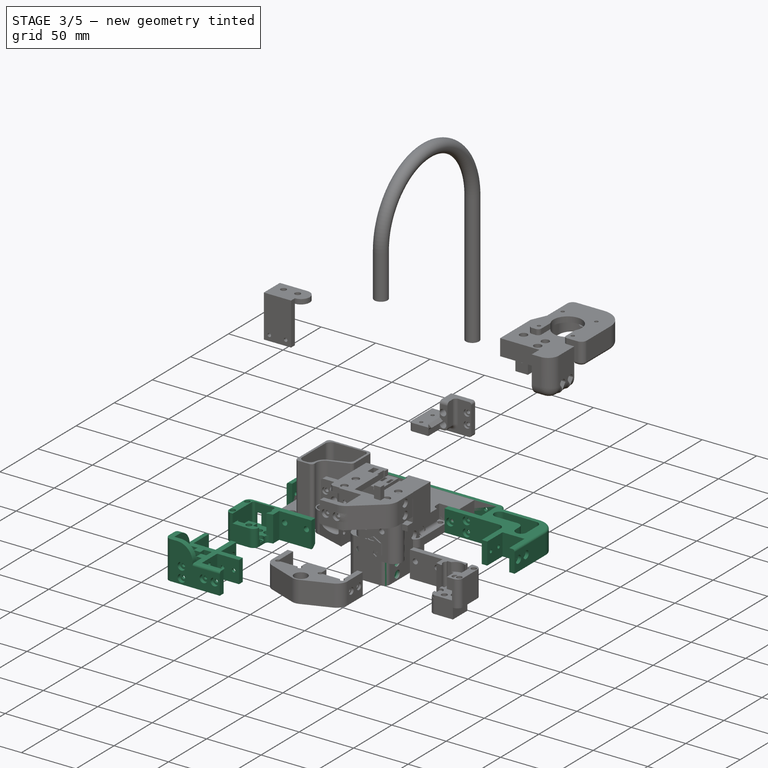
[diagram: stage 3 of 5 — iso view after this stage's code; geometry added in this stage tinted green]
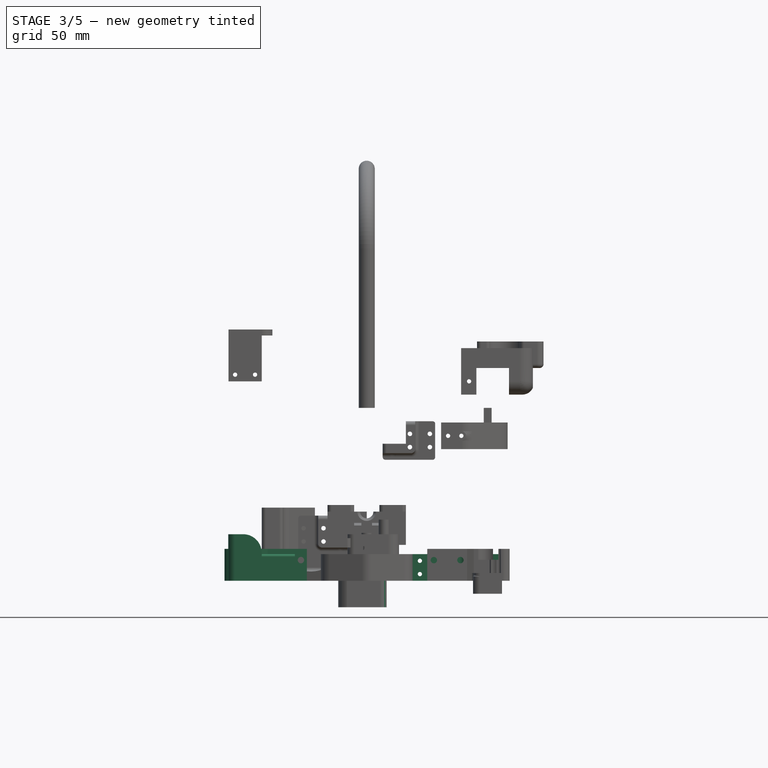
[diagram: stage 3 of 5 — front view after this stage's code; geometry added in this stage tinted green]
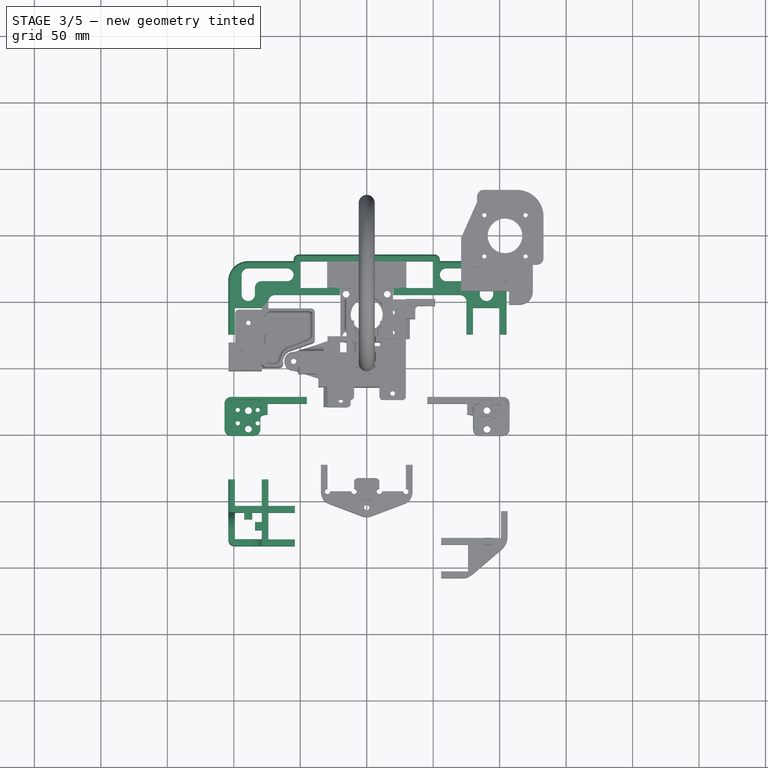
[diagram: stage 3 of 5 — top view after this stage's code; geometry added in this stage tinted green]
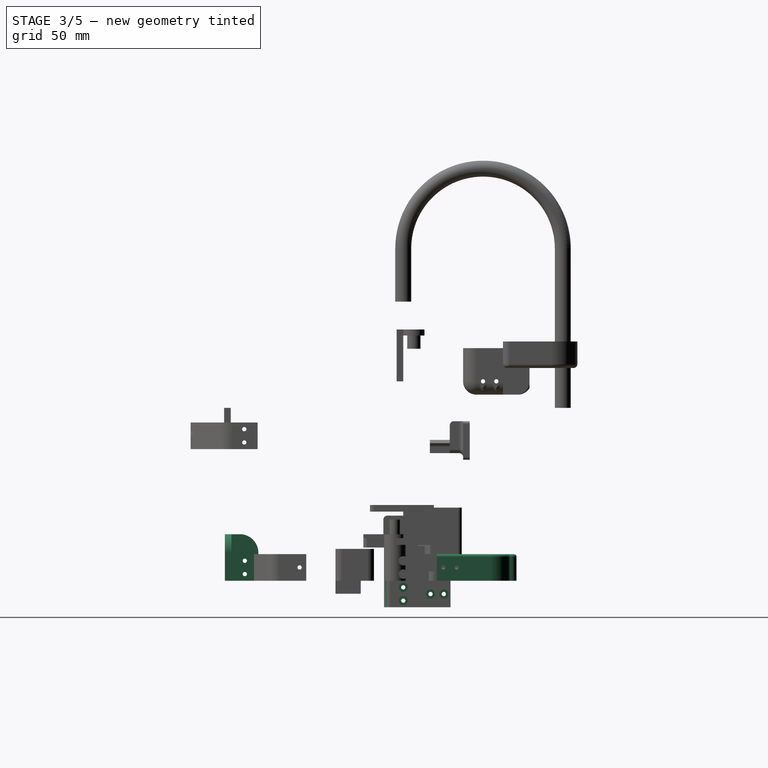
[diagram: stage 3 of 5 — right view after this stage's code; geometry added in this stage tinted green]
FEATURE [Spreadsheet::Sheet] Spreadsheet
  cells = A2='screw_hole_r; B2(screw)=1.6; A3='countersink_r; B3(countersink)=3.5; A4='2020_side; B4(beam)=20.2; A5='threaded_insert; B5(insert)==4.8 / 2
FEATURE [Sketcher::SketchObject] Sketch011
  ArcFitTolerance = 0
  AttachmentSupport = -> [XY_Plane001]
  FullyConstrained = true
  MakeInternals = false
  MapMode = 5
  expr: Constraints[31] = Spreadsheet.beam
  sketch-geometry (14):
    g0: LineSegment StartX=-99.2 StartY=-104 StartZ=0 EndX=-99.2 EndY=-84 EndZ=0
    g1: LineSegment StartX=-99.2 StartY=-84 StartZ=0 EndX=-104.2 EndY=-84 EndZ=0
    g2: LineSegment StartX=-104.2 StartY=-84 StartZ=0 EndX=-104.2 EndY=-134.2 EndZ=0
    g3: LineSegment StartX=-104.2 StartY=-134.2 StartZ=0 EndX=-54 EndY=-134.2 EndZ=0
    g4: LineSegment StartX=-54 StartY=-134.2 StartZ=0 EndX=-54 EndY=-129.2 EndZ=0
    g5: LineSegment StartX=-54 StartY=-129.2 StartZ=0 EndX=-74 EndY=-129.2 EndZ=0
    g6: LineSegment StartX=-74 StartY=-129.2 StartZ=0 EndX=-74 EndY=-109 EndZ=0
    g7: LineSegment StartX=-74 StartY=-109 StartZ=0 EndX=-54 EndY=-109 EndZ=0
    g8: LineSegment StartX=-54 StartY=-109 StartZ=0 EndX=-54 EndY=-104 EndZ=0
    g9: LineSegment StartX=-54 StartY=-104 StartZ=0 EndX=-74 EndY=-104 EndZ=0
    g10: LineSegment StartX=-74 StartY=-104 StartZ=0 EndX=-74 EndY=-84 EndZ=0
    g11: LineSegment StartX=-74 StartY=-84 StartZ=0 EndX=-79 EndY=-84 EndZ=0
    g12: LineSegment StartX=-79 StartY=-84 StartZ=0 EndX=-79 EndY=-104 EndZ=0
    g13: LineSegment StartX=-79 StartY=-104 StartZ=0 EndX=-99.2 EndY=-104 EndZ=0
  constraints (42):
    c: Vertical(g0)
    c: Coincident(g0,g1)
    c: Horizontal(g1)
    c: Coincident(g1,g2)
    c: Vertical(g2)
    c: Coincident(g2,g3)
    c: Horizontal(g3)
    c: Coincident(g3,g4)
    c: Vertical(g4)
    c: Coincident(g4,g5)
    c: Horizontal(g5)
    c: Coincident(g5,g6)
    c: Coincident(g6,g7)
    c: Coincident(g7,g8)
    c: Coincident(g8,g9)
    c: Horizontal(g9)
    c: Coincident(g9,g10)
    c: Vertical(g10)
    c: Coincident(g10,g11)
    c: Horizontal(g11)
    c: Coincident(g11,g12)
    c: Vertical(g12)
    c: Coincident(g12,g13)
    c: Coincident(g13,g0)
    c: Horizontal(g13)
    c: Horizontal(g7)
    c: Vertical(g6)
    c: Equal(g7,g5)
    c: Equal(g5,g12)
    c: Equal(g12,g0)
    c: Equal(g13,g6)
    c: DistanceX(g13,g13) = 20.2
    c: DistanceX(g12,g-1) = 79
    c: Equal(g1,g11)
    c: Equal(g11,g8)
    c: Equal(g8,g4)
    c: DistanceX(g1,g1) = 5
    c: Vertical(g8)
    c: DistanceY(g0,g0) = 20
    c: DistanceY(g12,g-1) = 104
    c: DistanceY(g9,g12) = 0
    c: DistanceX(g9,g6) = 0
FEATURE [PartDesign::Pad] Pad002
  Direction = (0,0,1)
  Length = 20
  Length2 = 100
  Profile = -> Sketch011
  Suppressed = false
  Type = 0
FEATURE [Sketcher::SketchObject] Sketch012
  ArcFitTolerance = 0
  AttachmentSupport = -> [Pad002]
  ExternalGeometry = -> [Pad002]
  FullyConstrained = true
  MakeInternals = false
  MapMode = 5
  Placement = pos=(0,0,20) rot=(0,0,1;0rad)
  expr: Constraints[8] = Spreadsheet.beam
  sketch-geometry (12):
    g0: LineSegment StartX=-99.2 StartY=-129.2 StartZ=0 EndX=-79 EndY=-129.2 EndZ=0
    g1: LineSegment StartX=-79 StartY=-129.2 StartZ=0 EndX=-79 EndY=-122.1 EndZ=0
    g2: LineSegment StartX=-79 StartY=-109 StartZ=0 EndX=-86.1 EndY=-109 EndZ=0
    g3: LineSegment StartX=-99.2 StartY=-109 StartZ=0 EndX=-99.2 EndY=-129.2 EndZ=0
    g4: LineSegment StartX=-86.1 StartY=-109 StartZ=0 EndX=-86.1 EndY=-114 EndZ=0
    g5: LineSegment StartX=-86.1 StartY=-114 StartZ=0 EndX=-92.1 EndY=-114 EndZ=0
    g6: LineSegment StartX=-92.1 StartY=-114 StartZ=0 EndX=-92.1 EndY=-109 EndZ=0
    g7: LineSegment StartX=-92.1 StartY=-109 StartZ=0 EndX=-99.2 EndY=-109 EndZ=0
    g8: LineSegment StartX=-79 StartY=-116.1 StartZ=0 EndX=-84 EndY=-116.1 EndZ=0
    g9: LineSegment StartX=-84 StartY=-116.1 StartZ=0 EndX=-84 EndY=-122.1 EndZ=0
    g10: LineSegment StartX=-84 StartY=-122.1 StartZ=0 EndX=-79 EndY=-122.1 EndZ=0
    g11: LineSegment StartX=-79 StartY=-116.1 StartZ=0 EndX=-79 EndY=-109 EndZ=0
  constraints (34):
    c: Coincident(g0,g1)
    c: Coincident(g11,g2)
    c: Coincident(g7,g3)
    c: Coincident(g3,g0)
    c: Horizontal(g0)
    c: Horizontal(g2)
    c: Vertical(g1)
    c: Vertical(g3)
    c: DistanceX(g7,g2) = 20.2
    c: DistanceX(g-4,g0) = 5
    c: DistanceY(g-4,g0) = 5
    c: Coincident(g4,g5)
    c: Coincident(g5,g6)
    c: Horizontal(g5)
    c: Vertical(g4)
    c: Vertical(g6)
    c: DistanceX(g5,g5) = 6
    c: DistanceY(g6,g6) = 5
    c: Tangent(g2,g7)
    c: Equal(g2,g7)
    c: Coincident(g4,g2)
    c: Coincident(g6,g7)
    c: Equal(g3,g0)
    c: Horizontal(g8)
    c: Coincident(g8,g9)
    c: Vertical(g9)
    c: Coincident(g9,g10)
    c: Horizontal(g10)
    c: Coincident(g1,g10)
    c: Coincident(g11,g8)
    c: Tangent(g1,g11)
    c: DistanceX(g8,g8) = 5
    c: DistanceY(g9,g9) = 6
    c: Equal(g11,g1)
FEATURE [PartDesign::Pocket] Pocket009
  BaseFeature = -> Pad002
  Direction = (0,0,-1)
  Length = 20
  Length2 = 100
  Profile = -> Sketch012
  Suppressed = false
  Type = 0
FEATURE [Sketcher::SketchObject] Sketch013
  ArcFitTolerance = 0
  AttachmentSupport = -> [Pocket009]
  ExternalGeometry = -> [Pocket009]
  FullyConstrained = true
  MakeInternals = false
  MapMode = 5
  Placement = pos=(-104.2,0,0) rot=(0.57735,-0.57735,-0.57735;2.0944rad)
  expr: Constraints[5] = Spreadsheet.screw
  sketch-geometry (4):
    g0: Circle CenterX=89 CenterY=10 CenterZ=0 NormalX=0 NormalY=0 NormalZ=1 AngleXU=0 Radius=1.6
    g1: Circle CenterX=119.2 CenterY=15 CenterZ=0 NormalX=0 NormalY=0 NormalZ=1 AngleXU=0 Radius=1.6
    g2: Circle CenterX=119.2 CenterY=5 CenterZ=0 NormalX=0 NormalY=0 NormalZ=1 AngleXU=0 Radius=1.6
    g3: Circle CenterX=99 CenterY=10 CenterZ=0 NormalX=0 NormalY=0 NormalZ=1 AngleXU=0 Radius=1.6
  constraints (12):
    c: DistanceX(g1,g2) = 0
    c: DistanceY(g2,g1) = 10
    c: DistanceY(g1,g-3) = 5
    c: Equal(g1,g2)
    c: Equal(g2,g0)
    c: Radius(g0) = 1.6
    c: DistanceY(g0,g-4) = 10
    c: DistanceX(g-4,g0) = 5
    c: Equal(g3,g0)
    c: DistanceX(g0,g3) = 10
    c: DistanceY(g3,g0) = 0
    c: DistanceX(g1,g-5) = 15
FEATURE [PartDesign::Pocket] Pocket010
  BaseFeature = -> Pocket009
  Direction = (1,0,0)
  Length = 60
  Length2 = 100
  Profile = -> Sketch013
  Suppressed = false
  Type = 0
FEATURE [Sketcher::SketchObject] Sketch014
  ArcFitTolerance = 0
  AttachmentSupport = -> [Pocket010]
  ExternalGeometry = -> [Pocket010]
  FullyConstrained = true
  MakeInternals = false
  MapMode = 5
  Placement = pos=(-104.2,0,0) rot=(0.57735,-0.57735,-0.57735;2.0944rad)
  expr: Constraints[7] = Spreadsheet.countersink
  sketch-geometry (4):
    g0: Circle CenterX=89 CenterY=10 CenterZ=0 NormalX=0 NormalY=0 NormalZ=1 AngleXU=0 Radius=3.5
    g1: Circle CenterX=99 CenterY=10 CenterZ=0 NormalX=0 NormalY=0 NormalZ=1 AngleXU=0 Radius=3.5
    g2: Circle CenterX=119.2 CenterY=15 CenterZ=0 NormalX=0 NormalY=0 NormalZ=1 AngleXU=0 Radius=3.5
    g3: Circle CenterX=119.2 CenterY=5 CenterZ=0 NormalX=0 NormalY=0 NormalZ=1 AngleXU=0 Radius=3.5
  constraints (8):
    c: Coincident(g0,g-3)
    c: Coincident(g1,g-4)
    c: Coincident(g2,g-5)
    c: Coincident(g3,g-6)
    c: Equal(g0,g1)
    c: Equal(g1,g2)
    c: Equal(g2,g3)
    c: Radius(g0) = 3.5
FEATURE [PartDesign::Pocket] Pocket011
  BaseFeature = -> Pocket010
  Direction = (1,0,0)
  Length = 3
  Length2 = 100
  Profile = -> Sketch014
  Suppressed = false
  Type = 0
FEATURE [Sketcher::SketchObject] Sketch015
  ArcFitTolerance = 0
  AttachmentSupport = -> [Pocket011]
  ExternalGeometry = -> [Pocket011]
  FullyConstrained = true
  MakeInternals = false
  MapMode = 5
  Placement = pos=(-74,0,0) rot=(0.57735,0.57735,0.57735;2.0944rad)
  expr: Constraints[3] = Spreadsheet.countersink
  sketch-geometry (2):
    g0: Circle CenterX=-99 CenterY=10 CenterZ=0 NormalX=0 NormalY=0 NormalZ=1 AngleXU=0 Radius=3.5
    g1: Circle CenterX=-89 CenterY=10 CenterZ=0 NormalX=0 NormalY=0 NormalZ=1 AngleXU=0 Radius=3.5
  constraints (4):
    c: Coincident(g0,g-5)
    c: Coincident(g1,g-6)
    c: Equal(g1,g0)
    c: Radius(g0) = 3.5
FEATURE [PartDesign::Pocket] Pocket012
  BaseFeature = -> Pocket011
  Direction = (-1,0,0)
  Length = 3
  Length2 = 100
  Profile = -> Sketch015
  Suppressed = false
  Type = 0
FEATURE [Sketcher::SketchObject] Sketch016
  ArcFitTolerance = 0
  AttachmentSupport = -> [Pocket012]
  ExternalGeometry = -> [Pocket012]
  FullyConstrained = true
  MakeInternals = false
  MapMode = 5
  Placement = pos=(0,-134.2,0) rot=(1,0,0;1.5708rad)
  expr: Constraints[4] = Spreadsheet.screw
  expr: Constraints[6] = Spreadsheet.screw
  sketch-geometry (4):
    g0: Circle CenterX=-89.2 CenterY=15 CenterZ=0 NormalX=0 NormalY=0 NormalZ=1 AngleXU=0 Radius=1.6
    g1: Circle CenterX=-89.2 CenterY=5 CenterZ=0 NormalX=0 NormalY=0 NormalZ=1 AngleXU=0 Radius=1.6
    g2: Circle CenterX=-69 CenterY=10 CenterZ=0 NormalX=0 NormalY=0 NormalZ=1 AngleXU=0 Radius=1.6
    g3: Circle CenterX=-59 CenterY=10 CenterZ=0 NormalX=0 NormalY=0 NormalZ=1 AngleXU=0 Radius=1.6
  constraints (12):
    c: Equal(g0,g1)
    c: DistanceY(g0,g-4) = 5
    c: DistanceX(g1,g0) = 0
    c: DistanceY(g1,g0) = 10
    c: Radius(g0) = 1.6
    c: Equal(g3,g2)
    c: Radius(g2) = 1.6
    c: DistanceX(g2,g3) = 10
    c: DistanceY(g3,g2) = 0
    c: DistanceX(g-5,g0) = 15
    c: DistanceY(g3,g-6) = 10
    c: DistanceX(g3,g-6) = 5
FEATURE [PartDesign::Pocket] Pocket013
  BaseFeature = -> Pocket012
  Direction = (0,1,-2e-16)
  Length = 60
  Length2 = 100
  Profile = -> Sketch016
  Suppressed = false
  Type = 0
FEATURE [PartDesign::Body] Body011  label="V0_bed"
  AllowCompound = false
  Group = -> [Sketch080,Pad028]
  Origin = -> Origin011
  Placement = pos=(0,-10,127) rot=(0,0,1;0rad)
  Tip = -> Pad028
FEATURE [Spreadsheet::Sheet] Spreadsheet001
  cells = A2='screw_hole_r; B2(screw)=1.6; A3='countersink_r; B3(countersink)=3.5; A4='2020_side; B4(beam)=20; A5='threaded_insert; B5(insert)==4.8 / 2
FEATURE [Sketcher::SketchObject] Sketch164
  ArcFitTolerance = 0
  FullyConstrained = false
  MakeInternals = false
  MapMode = 5
  Placement = pos=(0,-134.2,0) rot=(1,0,0;1.5708rad)
  expr: Constraints[3] = Spreadsheet.countersink
  sketch-geometry (4):
    g0: Circle CenterX=-69 CenterY=10 CenterZ=0 NormalX=0 NormalY=0 NormalZ=1 AngleXU=0 Radius=3.5
    g1: Circle CenterX=-59 CenterY=10 CenterZ=0 NormalX=0 NormalY=0 NormalZ=1 AngleXU=0 Radius=3.5
    g2: Circle CenterX=-89.2 CenterY=15 CenterZ=0 NormalX=0 NormalY=0 NormalZ=1 AngleXU=0 Radius=3.5
    g3: Circle CenterX=-89.2 CenterY=5 CenterZ=0 NormalX=0 NormalY=0 NormalZ=1 AngleXU=0 Radius=3.5
  constraints (4):
    c: Equal(g3,g2)
    c: Equal(g2,g0)
    c: Equal(g0,g1)
    c: Radius(g3) = 3.5
FEATURE [PartDesign::Pocket] Pocket087
  BaseFeature = -> Pocket013
  Direction = (0,1,-2e-16)
  Length = 3
  Length2 = 100
  Profile = -> Sketch164
  Suppressed = false
  Type = 0
FEATURE [Sketcher::SketchObject] Sketch165
  ArcFitTolerance = 0
  AttachmentSupport = -> [Pocket087]
  ExternalGeometry = -> [Pocket087]
  FullyConstrained = true
  MakeInternals = false
  MapMode = 5
  Placement = pos=(0,-104,0) rot=(0,0.707107,0.707107;3.14159rad)
  expr: Constraints[2] = Spreadsheet.countersink
  sketch-geometry (2):
    g0: Circle CenterX=59 CenterY=10 CenterZ=0 NormalX=0 NormalY=0 NormalZ=1 AngleXU=0 Radius=3.5
    g1: Circle CenterX=69 CenterY=10 CenterZ=0 NormalX=0 NormalY=0 NormalZ=1 AngleXU=0 Radius=3.5
  constraints (4):
    c: Coincident(g0,g-5)
    c: Equal(g1,g0)
    c: Radius(g0) = 3.5
    c: Coincident(g1,g-6)
FEATURE [PartDesign::Pocket] Pocket088
  BaseFeature = -> Pocket087
  Direction = (0,-1,2e-16)
  Length = 3
  Length2 = 100
  Profile = -> Sketch165
  Suppressed = false
  Type = 0
FEATURE [PartDesign::Body] Body024  label="spool_holder"
  AllowCompound = false
  Group = -> [Sketch206,Pad089,Sketch207,Pad090,Mirrored018,Sketch208,Pocket109,Mirrored019,Sketch209,Pocket110,Fillet025,Fillet026,Sketch210,Pocket111,Mirrored020,Fillet027,Sketch211,Pad091,Fillet028]
  Origin = -> Origin024
  Placement = pos=(0,80,88) rot=(0,0,1;0rad)
  Tip = -> Fillet028
FEATURE [Sketcher::SketchObject] Sketch213
  ArcFitTolerance = 0
  AttachmentSupport = -> [Pocket088]
  ExternalGeometry = -> [Pocket088]
  FullyConstrained = true
  MakeInternals = false
  MapMode = 5
  Placement = pos=(0,0,20) rot=(0,0,1;0rad)
  sketch-geometry (6):
    g0: LineSegment StartX=-99.2 StartY=-109 StartZ=0 EndX=-104.2 EndY=-109 EndZ=0
    g1: LineSegment StartX=-104.2 StartY=-109 StartZ=0 EndX=-104.2 EndY=-134.2 EndZ=0
    g2: LineSegment StartX=-104.2 StartY=-134.2 StartZ=0 EndX=-79 EndY=-134.2 EndZ=0
    g3: LineSegment StartX=-79 StartY=-134.2 StartZ=0 EndX=-79 EndY=-129.2 EndZ=0
    g4: LineSegment StartX=-79 StartY=-129.2 StartZ=0 EndX=-99.2 EndY=-129.2 EndZ=0
    g5: LineSegment StartX=-99.2 StartY=-129.2 StartZ=0 EndX=-99.2 EndY=-109 EndZ=0
  constraints (14):
    c: Coincident(g-5,g0)
    c: PointOnObject(g0,g-3)
    c: Horizontal(g0)
    c: Coincident(g0,g1)
    c: Coincident(g1,g-4)
    c: Coincident(g1,g2)
    c: PointOnObject(g2,g-4)
    c: Coincident(g2,g3)
    c: Coincident(g3,g-6)
    c: Coincident(g3,g4)
    c: Coincident(g4,g-6)
    c: Coincident(g4,g5)
    c: Coincident(g5,g0)
    c: Vertical(g3)
FEATURE [PartDesign::Pad] Pad093
  BaseFeature = -> Pocket088
  Direction = (0,0,1)
  Length = 15
  Length2 = 100
  Profile = -> Sketch213
  Suppressed = false
  Type = 0
FEATURE [PartDesign::Fillet] Fillet032
  Base = -> Pad093 [Edge126,Edge123]
  BaseFeature = -> Pad093
  Radius = 14
  SupportTransform = false
  Suppressed = false
  UseAllEdges = false
FEATURE [PartDesign::Fillet] Fillet033
  Base = -> Fillet032 [Edge8]
  BaseFeature = -> Fillet032
  Radius = 5
  SupportTransform = false
  Suppressed = false
  UseAllEdges = false
FEATURE [Sketcher::SketchObject] Sketch242
  ArcFitTolerance = 0
  AttachmentSupport = -> [Pad105]
  FullyConstrained = true
  MakeInternals = false
  MapMode = 5
  Placement = pos=(0,0,26) rot=(0,0,1;0rad)
  sketch-geometry (3):
    g0: Circle CenterX=0 CenterY=-6.5 CenterZ=0 NormalX=0 NormalY=0 NormalZ=1 AngleXU=0 Radius=2.4
    g1: LineSegment [constr] StartX=0 StartY=-6.5 StartZ=0 EndX=-13 EndY=-6.5 EndZ=0
    g2: Circle CenterX=-13 CenterY=-6.5 CenterZ=0 NormalX=0 NormalY=0 NormalZ=1 AngleXU=0 Radius=2.4
  constraints (8):
    c: PointOnObject(g0,g-2)
    c: DistanceY(g0,g-1) = 6.5
    c: Coincident(g1,g0)
    c: Horizontal(g1)
    c: DistanceX(g1,g1) = 13
    c: Coincident(g2,g1)
    c: Equal(g0,g2)
    c: Diameter(g0) = 4.8
FEATURE [PartDesign::Hole] Hole
  BaseFeature = -> Pad105
  CustomThreadClearance = 0
  Depth = 20
  DepthType = 0
  Diameter = 4.224
  DrillForDepth = false
  DrillPoint = 1
  DrillPointAngle = 118
  HoleCutCountersinkAngle = 90
  HoleCutCustomValues = false
  HoleCutDepth = 0
  HoleCutDiameter = 6.1
  HoleCutType = 0
  ModelThread = true
  Profile = -> Sketch242
  Suppressed = false
  Tapered = false
  TaperedAngle = 90
  ThreadClass = 0
  ThreadDepth = 20
  ThreadDepthType = 0
  ThreadDirection = 0
  ThreadFit = 0
  ThreadSize = 13
  ThreadType = 1
  Threaded = true
  UseCustomThreadClearance = false
FEATURE [PartDesign::Fillet] Fillet040
  Base = -> Hole [Edge60,Edge47]
  BaseFeature = -> Hole
  Radius = 5
  SupportTransform = false
  Suppressed = false
  UseAllEdges = false
FEATURE [Sketcher::SketchObject] Sketch243
  ArcFitTolerance = 0
  AttachmentSupport = -> [Fillet040]
  ExternalGeometry = -> [Fillet040]
  FullyConstrained = true
  MakeInternals = false
  MapMode = 5
  Placement = pos=(15,0,0) rot=(0.57735,0.57735,0.57735;2.0944rad)
  expr: Constraints[14] = Spreadsheet.screw
  sketch-geometry (5):
    g0: Circle CenterX=0 CenterY=-5 CenterZ=0 NormalX=0 NormalY=0 NormalZ=1 AngleXU=0 Radius=1.6
    g1: Circle CenterX=0 CenterY=-15 CenterZ=0 NormalX=0 NormalY=0 NormalZ=1 AngleXU=0 Radius=1.6
    g2: Circle CenterX=30.5 CenterY=-10 CenterZ=0 NormalX=0 NormalY=0 NormalZ=1 AngleXU=0 Radius=1.6
    g3: Circle CenterX=20.5 CenterY=-10 CenterZ=0 NormalX=0 NormalY=0 NormalZ=1 AngleXU=0 Radius=1.6
    g4: LineSegment [constr] StartX=30.5 StartY=-10 StartZ=0 EndX=0 EndY=-10 EndZ=0
  constraints (15):
    c: PointOnObject(g0,g-2)
    c: PointOnObject(g1,g-2)
    c: Coincident(g4,g2)
    c: PointOnObject(g4,g-2)
    c: Horizontal(g4)
    c: PointOnObject(g3,g4)
    c: DistanceY(g2,g-3) = 10
    c: DistanceX(g3,g2) = 10
    c: DistanceX(g2,g-3) = 5
    c: DistanceY(g1,g0) = 10
    c: DistanceY(g0,g-1) = 5
    c: Equal(g0,g1)
    c: Equal(g1,g2)
    c: Equal(g2,g3)
    c: Radius(g1) = 1.6
FEATURE [PartDesign::Pocket] Pocket126
  BaseFeature = -> Fillet040
  Direction = (-1,0,0)
  Length = 38
  Length2 = 5
  Profile = -> Sketch243
  ReferenceAxis = -> Sketch243 [N_Axis]
  Suppressed = false
  Type = 0
FEATURE [Sketcher::SketchObject] Sketch244
  ArcFitTolerance = 0
  AttachmentSupport = -> [Pocket126]
  FullyConstrained = true
  MakeInternals = false
  MapMode = 5
  Placement = pos=(-15.2,0,0) rot=(0.57735,-0.57735,-0.57735;2.0944rad)
  expr: Constraints[3] = Spreadsheet.countersink
  sketch-geometry (2):
    g0: Circle CenterX=0 CenterY=-5 CenterZ=0 NormalX=0 NormalY=0 NormalZ=1 AngleXU=0 Radius=3.5
    g1: Circle CenterX=0 CenterY=-15 CenterZ=0 NormalX=0 NormalY=0 NormalZ=1 AngleXU=0 Radius=3.5
  constraints (4):
    c: Coincident(g0,g-3)
    c: Coincident(g1,g-4)
    c: Equal(g1,g0)
    c: Radius(g0) = 3.5
FEATURE [PartDesign::Pocket] Pocket127
  BaseFeature = -> Pocket126
  Direction = (1,0,0)
  Length = 6
  Length2 = 5
  Profile = -> Sketch244
  ReferenceAxis = -> Sketch244 [N_Axis]
  Reversed = true
  Suppressed = false
  Type = 0
FEATURE [Sketcher::SketchObject] Sketch245
  ArcFitTolerance = 0
  AttachmentSupport = -> [Pocket127]
  ExternalGeometry = -> [Pocket127]
  FullyConstrained = true
  MakeInternals = false
  MapMode = 5
  Placement = pos=(-15.2,0,0) rot=(0.57735,-0.57735,-0.57735;2.0944rad)
  expr: Constraints[7] = Spreadsheet.countersink
  sketch-geometry (4):
    g0: Circle CenterX=-30.5 CenterY=-10 CenterZ=0 NormalX=0 NormalY=0 NormalZ=1 AngleXU=0 Radius=3.5
    g1: Circle CenterX=-20.5 CenterY=-10 CenterZ=0 NormalX=0 NormalY=0 NormalZ=1 AngleXU=0 Radius=3.5
    g2: Circle CenterX=0 CenterY=-5 CenterZ=0 NormalX=0 NormalY=0 NormalZ=1 AngleXU=0 Radius=3.5
    g3: Circle CenterX=0 CenterY=-15 CenterZ=0 NormalX=0 NormalY=0 NormalZ=1 AngleXU=0 Radius=3.5
  constraints (8):
    c: Coincident(g0,g-3)
    c: Coincident(g1,g-4)
    c: Coincident(g2,g-5)
    c: Coincident(g3,g-6)
    c: Equal(g0,g1)
    c: Equal(g1,g2)
    c: Equal(g2,g3)
    c: Radius(g0) = 3.5
FEATURE [PartDesign::Pocket] Pocket128
  BaseFeature = -> Pocket127
  Direction = (1,0,0)
  Length = 3
  Length2 = 5
  Profile = -> Sketch245
  ReferenceAxis = -> Sketch245 [N_Axis]
  Suppressed = false
  Type = 0
FEATURE [Sketcher::SketchObject] Sketch246
  ArcFitTolerance = 0
  AttachmentSupport = -> [Pocket128]
  ExternalGeometry = -> [Pocket128]
  FullyConstrained = true
  MakeInternals = false
  MapMode = 5
  Placement = pos=(15,0,0) rot=(0.57735,0.57735,0.57735;2.0944rad)
  expr: Constraints[7] = Spreadsheet.countersink
  sketch-geometry (4):
    g0: Circle CenterX=0 CenterY=-5 CenterZ=0 NormalX=0 NormalY=0 NormalZ=1 AngleXU=0 Radius=3.5
    g1: Circle CenterX=0 CenterY=-15 CenterZ=0 NormalX=0 NormalY=0 NormalZ=1 AngleXU=0 Radius=3.5
    g2: Circle CenterX=20.5 CenterY=-10 CenterZ=0 NormalX=0 NormalY=0 NormalZ=1 AngleXU=0 Radius=3.5
    g3: Circle CenterX=30.5 CenterY=-10 CenterZ=0 NormalX=0 NormalY=0 NormalZ=1 AngleXU=0 Radius=3.5
  constraints (8):
    c: Coincident(g0,g-5)
    c: Coincident(g1,g-6)
    c: Coincident(g2,g-4)
    c: Coincident(g3,g-3)
    c: Equal(g0,g1)
    c: Equal(g1,g2)
    c: Equal(g2,g3)
    c: Radius(g0) = 3.5
FEATURE [PartDesign::Pocket] Pocket129
  BaseFeature = -> Pocket128
  Direction = (-1,0,0)
  Length = 3
  Length2 = 5
  Profile = -> Sketch246
  ReferenceAxis = -> Sketch246 [N_Axis]
  Suppressed = false
  Type = 0
FEATURE [Sketcher::SketchObject] Sketch247
  ArcFitTolerance = 0
  AttachmentSupport = -> [Pocket129]
  FullyConstrained = true
  MakeInternals = false
  MapMode = 5
  Placement = pos=(0,0,0) rot=(1,0,0;3.14159rad)
  sketch-geometry (4):
    g0: LineSegment StartX=-8 StartY=10.1 StartZ=0 EndX=8 EndY=10.1 EndZ=0
    g1: LineSegment StartX=8 StartY=10.1 StartZ=0 EndX=8 EndY=-10.1 EndZ=0
    g2: LineSegment StartX=8 StartY=-10.1 StartZ=0 EndX=-8 EndY=-10.1 EndZ=0
    g3: LineSegment StartX=-8 StartY=-10.1 StartZ=0 EndX=-8 EndY=10.1 EndZ=0
  constraints (11):
    c: Coincident(g0,g1)
    c: Coincident(g1,g2)
    c: Coincident(g2,g3)
    c: Coincident(g3,g0)
    c: Horizontal(g2)
    c: Vertical(g1)
    c: Vertical(g3)
    c: PointOnObject(g0,g-4)
    c: PointOnObject(g1,g-5)
    c: Symmetric(g0,g0,g-2)
    c: DistanceX(g0,g0) = 16
FEATURE [PartDesign::Pocket] Pocket130
  BaseFeature = -> Pocket129
  Direction = (0,0,1)
  Length = 1
  Length2 = 5
  Profile = -> Sketch247
  ReferenceAxis = -> Sketch247 [N_Axis]
  Suppressed = false
  Type = 0
FEATURE [PartDesign::Body] Body051  label="2020_X_1"
  AllowCompound = false
  Group = -> [Sketch335,Pad155,PolarPattern011]
  Origin = -> Origin055
  Placement = pos=(1,-120,10) rot=(0,0,-1;1.5708rad)
  Tip = -> PolarPattern011
FEATURE [App::LinkGroup] LinkGroup009  label="2020s"
  ElementList = -> [Body040,Body041,Body042,Body043,Body044,Body045,Body046,Body047,Body048,Body049,Body050,Body051]
  LinkMode = 0
FEATURE [Sketcher::SketchObject] Sketch336
  ArcFitTolerance = 0
  AttachmentSupport = -> [XY_Plane056]
  FullyConstrained = true
  MakeInternals = false
  MapMode = 5
  expr: Constraints[34] = Spreadsheet.beam
  sketch-geometry (26):
    g0: LineSegment StartX=-99.2 StartY=45.2 StartZ=0 EndX=-99.2 EndY=25.2 EndZ=0
    g1: LineSegment StartX=-99.2 StartY=25.2 StartZ=0 EndX=-104.2 EndY=25.2 EndZ=0
    g2: LineSegment StartX=-104.2 StartY=25.2 StartZ=0 EndX=-104.2 EndY=80.2 EndZ=0
    g3: LineSegment StartX=-104.2 StartY=80.2 StartZ=0 EndX=-55 EndY=80.2 EndZ=0
    g4: LineSegment StartX=-55 StartY=80.2 StartZ=0 EndX=-55 EndY=85.2 EndZ=0
    g5: LineSegment StartX=-55 StartY=85.2 StartZ=0 EndX=0 EndY=85.2 EndZ=0
    g6: LineSegment StartX=0 StartY=85.2 StartZ=0 EndX=0 EndY=80.2 EndZ=0
    g7: LineSegment StartX=0 StartY=80.2 StartZ=0 EndX=-50 EndY=80.2 EndZ=0
    g8: LineSegment StartX=-50 StartY=80.2 StartZ=0 EndX=-50 EndY=60 EndZ=0
    g9: LineSegment StartX=-50 StartY=60 StartZ=0 EndX=-20 EndY=60 EndZ=0
    g10: LineSegment StartX=-20 StartY=60 StartZ=0 EndX=-20 EndY=55 EndZ=0
    g11: LineSegment StartX=-20 StartY=55 StartZ=0 EndX=-74 EndY=55 EndZ=0
    g12: LineSegment StartX=-74 StartY=55 StartZ=0 EndX=-74 EndY=25.2 EndZ=0
    g13: LineSegment StartX=-74 StartY=25.2 StartZ=0 EndX=-79 EndY=25.2 EndZ=0
    g14: LineSegment StartX=-79 StartY=25.2 StartZ=0 EndX=-79 EndY=45.2 EndZ=0
    g15: LineSegment StartX=-79 StartY=45.2 StartZ=0 EndX=-99.2 EndY=45.2 EndZ=0
    g16: LineSegment [constr] StartX=-60 StartY=70.1 StartZ=0 EndX=-89.1 EndY=70.1 EndZ=0
    g17: LineSegment [constr] StartX=-89.1 StartY=70.1 StartZ=0 EndX=-89.1 EndY=55.2 EndZ=0
    g18: ArcOfCircle CenterX=-60 CenterY=70.1 CenterZ=0 NormalX=0 NormalY=0 NormalZ=1 AngleXU=0 Radius=5 StartAngle=4.71239 EndAngle=7.85398
    g19: ArcOfCircle CenterX=-89.1 CenterY=70.1 CenterZ=0 NormalX=0 NormalY=0 NormalZ=1 AngleXU=0 Radius=5 StartAngle=1.5708 EndAngle=3.14159
    g20: ArcOfCircle CenterX=-89.1 CenterY=55.2 CenterZ=0 NormalX=0 NormalY=0 NormalZ=1 AngleXU=0 Radius=5 StartAngle=3.14159 EndAngle=6.28319
    g21: ArcOfCircle CenterX=-79.1 CenterY=60.1 CenterZ=0 NormalX=0 NormalY=0 NormalZ=1 AngleXU=0 Radius=5 StartAngle=1.5708 EndAngle=3.14159
    g22: LineSegment StartX=-89.1 StartY=75.1 StartZ=0 EndX=-60 EndY=75.1 EndZ=0
    g23: LineSegment StartX=-79.1 StartY=65.1 StartZ=0 EndX=-60 EndY=65.1 EndZ=0
    g24: LineSegment StartX=-84.1 StartY=60.1 StartZ=0 EndX=-84.1 EndY=55.2 EndZ=0
    g25: LineSegment StartX=-94.1 StartY=55.2 StartZ=0 EndX=-94.1 EndY=70.1 EndZ=0
  constraints (80):
    c: Vertical(g0)
    c: Coincident(g0,g1)
    c: Horizontal(g1)
    c: Coincident(g1,g2)
    c: Vertical(g2)
    c: Coincident(g2,g3)
    c: Horizontal(g3)
    c: Coincident(g3,g4)
    c: Vertical(g4)
    c: Coincident(g4,g5)
    c: PointOnObject(g5,g-2)
    c: Horizontal(g5)
    c: Coincident(g5,g6)
    c: PointOnObject(g6,g-2)
    c: Coincident(g6,g7)
    c: Horizontal(g7)
    c: Coincident(g7,g8)
    c: Vertical(g8)
    c: Coincident(g8,g9)
    c: Horizontal(g9)
    c: Coincident(g9,g10)
    c: Coincident(g10,g11)
    c: Horizontal(g11)
    c: Coincident(g11,g12)
    c: Coincident(g12,g13)
    c: Horizontal(g13)
    c: Coincident(g13,g14)
    c: Vertical(g14)
    c: Coincident(g14,g15)
    c: Horizontal(g15)
    c: Coincident(g15,g0)
    c: Vertical(g12)
    c: Vertical(g10)
    c: Horizontal(g0,g13)
    c: DistanceX(g15,g15) = 20.2
    c: Equal(g15,g8)
    c: DistanceY(g0,g0) = 20
    c: Equal(g1,g13)
    c: DistanceX(g1,g1) = 5
    c: Equal(g6,g10)
    c: Equal(g10,g13)
    c: DistanceX(g7,g7) = 50
    c: DistanceX(g4,g7) = 5
    c: Horizontal(g3,g7)
    c: DistanceY(g-1,g8) = 60
    c: DistanceX(g9,g9) = 30
    c: DistanceX(g11,g11) = 54
    c: DistanceY(g2,g2) = 55
    c: Horizontal(g16)
    c: Vertical(g17)
    c: Coincident(g17,g16)
    c: DistanceX(g0,g17) = 10.1
    c: DistanceY(g0,g17) = 10
    c: DistanceY(g8,g16) = 10.1
    c: DistanceX(g16,g8) = 10
    c: Coincident(g18,g16)
    c: Coincident(g19,g16)
    c: Coincident(g20,g17)
    c: Coincident(g22,g19)
    c: Coincident(g22,g18)
    c: Coincident(g23,g21)
    c: Coincident(g23,g18)
    c: Coincident(g24,g21)
    c: Coincident(g24,g20)
    c: Coincident(g25,g20)
    c: Coincident(g25,g19)
    c: Vertical(g25)
    c: Horizontal(g22)
    c: Horizontal(g23)
    c: Vertical(g24)
    c: Equal(g19,g21)
    c: Equal(g20,g18)
    c: Radius(g19) = 5
    c: Vertical(g18,g18)
    c: Vertical(g18,g18)
    c: Horizontal(g20,g20)
    c: Horizontal(g20,g20)
    c: Angle(g21) = 1.5708
    c: Vertical(g21,g21)
    c: Vertical(g19,g19)
FEATURE [PartDesign::Pad] Pad156
  Direction = (0,0,1)
  Length = 20
  Length2 = 10
  Profile = -> Sketch336
  ReferenceAxis = -> Sketch336 [N_Axis]
  Suppressed = false
  Type = 0
FEATURE [Sketcher::SketchObject] Sketch337
  ArcFitTolerance = 0
  AttachmentSupport = -> [Pad156]
  ExternalGeometry = -> [Pad156]
  FullyConstrained = true
  MakeInternals = false
  MapMode = 5
  Placement = pos=(-104.2,0,0) rot=(0.57735,-0.57735,-0.57735;2.0944rad)
  expr: Constraints[4] = Spreadsheet.screw * 2
  sketch-geometry (2):
    g0: Circle CenterX=-30.2 CenterY=10 CenterZ=0 NormalX=0 NormalY=0 NormalZ=1 AngleXU=0 Radius=1.6
    g1: Circle CenterX=-40.2 CenterY=10 CenterZ=0 NormalX=0 NormalY=0 NormalZ=1 AngleXU=0 Radius=1.6
  constraints (6):
    c: DistanceX(g1,g0) = 10
    c: DistanceX(g0,g-3) = 5
    c: Equal(g1,g0)
    c: Horizontal(g1,g0)
    c: Diameter(g1) = 3.2
    c: DistanceY(g0,g-3) = 10
FEATURE [PartDesign::Pocket] Pocket160
  BaseFeature = -> Pad156
  Direction = (1,0,0)
  Length = 32
  Length2 = 5
  Profile = -> Sketch337
  ReferenceAxis = -> Sketch337 [N_Axis]
  Suppressed = false
  Type = 0
FEATURE [Sketcher::SketchObject] Sketch338
  ArcFitTolerance = 0
  AttachmentSupport = -> [Pocket160]
  ExternalGeometry = -> [Pocket160]
  FullyConstrained = true
  MakeInternals = false
  MapMode = 5
  Placement = pos=(0,85.2,0) rot=(0,0.707107,0.707107;3.14159rad)
  expr: Constraints[11] = Spreadsheet.screw
  sketch-geometry (4):
    g0: Circle CenterX=40 CenterY=5 CenterZ=0 NormalX=0 NormalY=0 NormalZ=1 AngleXU=0 Radius=1.6
    g1: Circle CenterX=40 CenterY=15 CenterZ=0 NormalX=0 NormalY=0 NormalZ=1 AngleXU=0 Radius=1.6
    g2: Circle CenterX=25 CenterY=10 CenterZ=0 NormalX=0 NormalY=0 NormalZ=1 AngleXU=0 Radius=1.6
    g3: Circle CenterX=10 CenterY=10 CenterZ=0 NormalX=0 NormalY=0 NormalZ=1 AngleXU=0 Radius=1.6
  constraints (12):
    c: Vertical(g1,g0)
    c: DistanceX(g1,g-3) = 15
    c: DistanceY(g0,g1) = 10
    c: DistanceY(g1,g-3) = 5
    c: DistanceX(g2,g1) = 15
    c: Horizontal(g2,g3)
    c: DistanceY(g2,g-3) = 10
    c: DistanceX(g3,g2) = 15
    c: Equal(g1,g0)
    c: Equal(g0,g2)
    c: Equal(g2,g3)
    c: Radius(g3) = 1.6
FEATURE [PartDesign::Pocket] Pocket161
  BaseFeature = -> Pocket160
  Direction = (0,-1,2e-16)
  Length = 31
  Length2 = 5
  Profile = -> Sketch338
  ReferenceAxis = -> Sketch338 [N_Axis]
  Suppressed = false
  Type = 0
FEATURE [Sketcher::SketchObject] Sketch339
  ArcFitTolerance = 0
  AttachmentSupport = -> [Pocket161]
  ExternalGeometry = -> [Pocket161]
  FullyConstrained = true
  MakeInternals = false
  MapMode = 5
  Placement = pos=(-104.2,0,0) rot=(0.57735,-0.57735,-0.57735;2.0944rad)
  expr: Constraints[3] = Spreadsheet.countersink
  sketch-geometry (2):
    g0: Circle CenterX=-40.2 CenterY=10 CenterZ=0 NormalX=0 NormalY=0 NormalZ=1 AngleXU=0 Radius=3.5
    g1: Circle CenterX=-30.2 CenterY=10 CenterZ=0 NormalX=0 NormalY=0 NormalZ=1 AngleXU=0 Radius=3.5
  constraints (4):
    c: Coincident(g0,g-3)
    c: Coincident(g1,g-4)
    c: Equal(g1,g0)
    c: Radius(g1) = 3.5
FEATURE [PartDesign::Pocket] Pocket162
  BaseFeature = -> Pocket161
  Direction = (1,0,0)
  Length = 3
  Length2 = 5
  Profile = -> Sketch339
  ReferenceAxis = -> Sketch339 [N_Axis]
  Suppressed = false
  Type = 0
FEATURE [Sketcher::SketchObject] Sketch340
  ArcFitTolerance = 0
  AttachmentSupport = -> [Pocket162]
  ExternalGeometry = -> [Pocket162]
  FullyConstrained = true
  MakeInternals = false
  MapMode = 5
  Placement = pos=(-74,0,0) rot=(0.57735,0.57735,0.57735;2.0944rad)
  expr: Constraints[3] = Spreadsheet.countersink
  sketch-geometry (2):
    g0: Circle CenterX=30.2 CenterY=10 CenterZ=0 NormalX=0 NormalY=0 NormalZ=1 AngleXU=0 Radius=3.5
    g1: Circle CenterX=40.2 CenterY=10 CenterZ=0 NormalX=0 NormalY=0 NormalZ=1 AngleXU=0 Radius=3.5
  constraints (4):
    c: Coincident(g0,g-3)
    c: Coincident(g1,g-4)
    c: Equal(g1,g0)
    c: Radius(g0) = 3.5
FEATURE [PartDesign::Pocket] Pocket163
  BaseFeature = -> Pocket162
  Direction = (-1,0,0)
  Length = 3
  Length2 = 5
  Profile = -> Sketch340
  ReferenceAxis = -> Sketch340 [N_Axis]
  Suppressed = false
  Type = 0
FEATURE [Sketcher::SketchObject] Sketch341
  ArcFitTolerance = 0
  AttachmentSupport = -> [Pocket163]
  ExternalGeometry = -> [Pocket163]
  FullyConstrained = true
  MakeInternals = false
  MapMode = 5
  Placement = pos=(0,85.2,0) rot=(0,0.707107,0.707107;3.14159rad)
  expr: Constraints[7] = Spreadsheet.countersink
  sketch-geometry (4):
    g0: Circle CenterX=10 CenterY=10 CenterZ=0 NormalX=0 NormalY=0 NormalZ=1 AngleXU=0 Radius=3.5
    g1: Circle CenterX=25 CenterY=10 CenterZ=0 NormalX=0 NormalY=0 NormalZ=1 AngleXU=0 Radius=3.5
    g2: Circle CenterX=40 CenterY=15 CenterZ=0 NormalX=0 NormalY=0 NormalZ=1 AngleXU=0 Radius=3.5
    g3: Circle CenterX=40 CenterY=5 CenterZ=0 NormalX=0 NormalY=0 NormalZ=1 AngleXU=0 Radius=3.5
  constraints (8):
    c: Coincident(g0,g-3)
    c: Coincident(g1,g-4)
    c: Coincident(g2,g-5)
    c: Coincident(g3,g-6)
    c: Equal(g3,g2)
    c: Equal(g2,g1)
    c: Equal(g1,g0)
    c: Radius(g0) = 3.5
FEATURE [PartDesign::Pocket] Pocket164
  BaseFeature = -> Pocket163
  Direction = (0,-1,2e-16)
  Length = 3
  Length2 = 5
  Profile = -> Sketch341
  ReferenceAxis = -> Sketch341 [N_Axis]
  Suppressed = false
  Type = 0
FEATURE [Sketcher::SketchObject] Sketch342
  ArcFitTolerance = 0
  AttachmentSupport = -> [Pocket164]
  ExternalGeometry = -> [Pocket164]
  FullyConstrained = true
  MakeInternals = false
  MapMode = 5
  Placement = pos=(0,55,0) rot=(1,0,0;1.5708rad)
  expr: Constraints[7] = Spreadsheet.countersink
  sketch-geometry (4):
    g0: Circle CenterX=-40 CenterY=15 CenterZ=0 NormalX=0 NormalY=0 NormalZ=1 AngleXU=0 Radius=3.5
    g1: Circle CenterX=-40 CenterY=5 CenterZ=0 NormalX=0 NormalY=0 NormalZ=1 AngleXU=0 Radius=3.5
    g2: Circle CenterX=-25 CenterY=10 CenterZ=0 NormalX=0 NormalY=0 NormalZ=1 AngleXU=0 Radius=3.5
    g3: Circle CenterX=-10 CenterY=10 CenterZ=0 NormalX=0 NormalY=0 NormalZ=1 AngleXU=0 Radius=3.5
  constraints (8):
    c: Coincident(g0,g-3)
    c: Coincident(g1,g-4)
    c: Coincident(g2,g-5)
    c: Coincident(g3,g-6)
    c: Equal(g3,g2)
    c: Equal(g2,g0)
    c: Equal(g0,g1)
    c: Radius(g1) = 3.5
FEATURE [PartDesign::Pocket] Pocket165
  BaseFeature = -> Pocket164
  Direction = (0,1,-2e-16)
  Length = 3
  Length2 = 5
  Profile = -> Sketch342
  ReferenceAxis = -> Sketch342 [N_Axis]
  Suppressed = false
  Type = 0
FEATURE [PartDesign::Fillet] Fillet072
  Base = -> Pocket165 [Edge66]
  BaseFeature = -> Pocket165
  Radius = 4
  SupportTransform = false
  Suppressed = false
  UseAllEdges = false
FEATURE [PartDesign::Fillet] Fillet073
  Base = -> Fillet072 [Edge75]
  BaseFeature = -> Fillet072
  Radius = 5
  SupportTransform = false
  Suppressed = false
  UseAllEdges = false
FEATURE [PartDesign::Fillet] Fillet074
  Base = -> Fillet073 [Edge79]
  BaseFeature = -> Fillet073
  Radius = 15
  SupportTransform = false
  Suppressed = false
  UseAllEdges = false
FEATURE [PartDesign::Fillet] Fillet075
  Base = -> Fillet074 [Edge48,Edge34]
  BaseFeature = -> Fillet074
  Radius = 2
  SupportTransform = false
  Suppressed = false
  UseAllEdges = false
FEATURE [PartDesign::Body] Body052  label="rear_bottom_left"
  AllowCompound = false
  Group = -> [Sketch336,Pad156,Sketch337,Pocket160,Sketch338,Pocket161,Sketch339,Pocket162,Sketch340,Pocket163,Sketch341,Pocket164,Sketch342,Pocket165,Fillet072,Fillet073,Fillet074,Fillet075]
  Origin = -> Origin056
  Tip = -> Fillet075
FEATURE [Sketcher::SketchObject] Sketch343
  ArcFitTolerance = 0
  AttachmentSupport = -> [XY_Plane057]
  FullyConstrained = true
  MakeInternals = false
  MapMode = 5
  expr: Constraints[34] = Spreadsheet.beam
  sketch-geometry (26):
    g0: LineSegment StartX=-100.2 StartY=45.2 StartZ=0 EndX=-100.2 EndY=25.2 EndZ=0
    g1: LineSegment StartX=-100.2 StartY=25.2 StartZ=0 EndX=-105.2 EndY=25.2 EndZ=0
    g2: LineSegment StartX=-105.2 StartY=25.2 StartZ=0 EndX=-105.2 EndY=80.2 EndZ=0
    g3: LineSegment StartX=-105.2 StartY=80.2 StartZ=0 EndX=-55 EndY=80.2 EndZ=0
    g4: LineSegment StartX=-55 StartY=80.2 StartZ=0 EndX=-55 EndY=85.2 EndZ=0
    g5: LineSegment StartX=-55 StartY=85.2 StartZ=0 EndX=0 EndY=85.2 EndZ=0
    g6: LineSegment StartX=0 StartY=85.2 StartZ=0 EndX=0 EndY=80.2 EndZ=0
    g7: LineSegment StartX=0 StartY=80.2 StartZ=0 EndX=-50 EndY=80.2 EndZ=0
    g8: LineSegment StartX=-50 StartY=80.2 StartZ=0 EndX=-50 EndY=60 EndZ=0
    g9: LineSegment StartX=-50 StartY=60 StartZ=0 EndX=-20 EndY=60 EndZ=0
    g10: LineSegment StartX=-20 StartY=60 StartZ=0 EndX=-20 EndY=55 EndZ=0
    g11: LineSegment StartX=-20 StartY=55 StartZ=0 EndX=-75 EndY=55 EndZ=0
    g12: LineSegment StartX=-75 StartY=55 StartZ=0 EndX=-75 EndY=25.2 EndZ=0
    g13: LineSegment StartX=-75 StartY=25.2 StartZ=0 EndX=-80 EndY=25.2 EndZ=0
    g14: LineSegment StartX=-80 StartY=25.2 StartZ=0 EndX=-80 EndY=45.2 EndZ=0
    g15: LineSegment StartX=-80 StartY=45.2 StartZ=0 EndX=-100.2 EndY=45.2 EndZ=0
    g16: LineSegment [constr] StartX=-60 StartY=70.1 StartZ=0 EndX=-90.1 EndY=70.1 EndZ=0
    g17: LineSegment [constr] StartX=-90.1 StartY=70.1 StartZ=0 EndX=-90.1 EndY=55.2 EndZ=0
    g18: ArcOfCircle CenterX=-60 CenterY=70.1 CenterZ=0 NormalX=0 NormalY=0 NormalZ=1 AngleXU=0 Radius=5 StartAngle=4.71239 EndAngle=7.85398
    g19: ArcOfCircle CenterX=-90.1 CenterY=70.1 CenterZ=0 NormalX=0 NormalY=0 NormalZ=1 AngleXU=0 Radius=5 StartAngle=1.5708 EndAngle=3.1416
    g20: ArcOfCircle CenterX=-90.1 CenterY=55.2 CenterZ=0 NormalX=0 NormalY=0 NormalZ=1 AngleXU=0 Radius=5 StartAngle=3.14159 EndAngle=6.28319
    g21: ArcOfCircle CenterX=-80.1 CenterY=60.1 CenterZ=0 NormalX=0 NormalY=0 NormalZ=1 AngleXU=0 Radius=5 StartAngle=1.5708 EndAngle=3.14159
    g22: LineSegment StartX=-90.1 StartY=75.1 StartZ=0 EndX=-60 EndY=75.1 EndZ=0
    g23: LineSegment StartX=-80.1 StartY=65.1 StartZ=0 EndX=-60 EndY=65.1 EndZ=0
    g24: LineSegment StartX=-85.1 StartY=60.1 StartZ=0 EndX=-85.1 EndY=55.2 EndZ=0
    g25: LineSegment StartX=-95.1 StartY=55.2 StartZ=0 EndX=-95.1 EndY=70.1 EndZ=0
  constraints (80):
    c: Vertical(g0)
    c: Coincident(g0,g1)
    c: Horizontal(g1)
    c: Coincident(g1,g2)
    c: Vertical(g2)
    c: Coincident(g2,g3)
    c: Horizontal(g3)
    c: Coincident(g3,g4)
    c: Vertical(g4)
    c: Coincident(g4,g5)
    c: PointOnObject(g5,g-2)
    c: Horizontal(g5)
    c: Coincident(g5,g6)
    c: PointOnObject(g6,g-2)
    c: Coincident(g6,g7)
    c: Horizontal(g7)
    c: Coincident(g7,g8)
    c: Vertical(g8)
    c: Coincident(g8,g9)
    c: Horizontal(g9)
    c: Coincident(g9,g10)
    c: Coincident(g10,g11)
    c: Horizontal(g11)
    c: Coincident(g11,g12)
    c: Coincident(g12,g13)
    c: Horizontal(g13)
    c: Coincident(g13,g14)
    c: Vertical(g14)
    c: Coincident(g14,g15)
    c: Horizontal(g15)
    c: Coincident(g15,g0)
    c: Vertical(g12)
    c: Vertical(g10)
    c: Horizontal(g0,g13)
    c: DistanceX(g15,g15) = 20.2
    c: Equal(g15,g8)
    c: DistanceY(g0,g0) = 20
    c: Equal(g1,g13)
    c: DistanceX(g1,g1) = 5
    c: Equal(g6,g10)
    c: Equal(g10,g13)
    c: DistanceX(g7,g7) = 50
    c: DistanceX(g4,g7) = 5
    c: Horizontal(g3,g7)
    c: DistanceY(g-1,g8) = 60
    c: DistanceX(g9,g9) = 30
    c: DistanceX(g11,g11) = 55
    c: DistanceY(g2,g2) = 55
    c: Horizontal(g16)
    c: Vertical(g17)
    c: Coincident(g17,g16)
    c: DistanceX(g0,g17) = 10.1
    c: DistanceY(g0,g17) = 10
    c: DistanceY(g8,g16) = 10.1
    c: DistanceX(g16,g8) = 10
    c: Coincident(g18,g16)
    c: Coincident(g19,g16)
    c: Coincident(g20,g17)
    c: Coincident(g22,g19)
    c: Coincident(g22,g18)
    c: Coincident(g23,g21)
    c: Coincident(g23,g18)
    c: Coincident(g24,g21)
    c: Coincident(g24,g20)
    c: Coincident(g25,g20)
    c: Coincident(g25,g19)
    c: Vertical(g25)
    c: Horizontal(g22)
    c: Horizontal(g23)
    c: Vertical(g24)
    c: Equal(g19,g21)
    c: Equal(g20,g18)
    c: Radius(g19) = 5
    c: Vertical(g18,g18)
    c: Vertical(g18,g18)
    c: Horizontal(g20,g20)
    c: Horizontal(g20,g20)
    c: Angle(g21) = 1.5708
    c: Vertical(g21,g21)
    c: Vertical(g19,g19)
FEATURE [PartDesign::Pad] Pad157
  Direction = (0,0,1)
  Length = 20
  Length2 = 10
  Profile = -> Sketch343
  ReferenceAxis = -> Sketch343 [N_Axis]
  Suppressed = false
  Type = 0
FEATURE [Sketcher::SketchObject] Sketch344
  ArcFitTolerance = 0
  AttachmentSupport = -> [Pad157]
  ExternalGeometry = -> [Pad157]
  FullyConstrained = true
  MakeInternals = false
  MapMode = 5
  Placement = pos=(-105.2,0,0) rot=(0.57735,-0.57735,-0.57735;2.0944rad)
  expr: Constraints[4] = Spreadsheet.screw * 2
  sketch-geometry (2):
    g0: Circle CenterX=-30.2 CenterY=10 CenterZ=0 NormalX=0 NormalY=0 NormalZ=1 AngleXU=0 Radius=1.6
    g1: Circle CenterX=-40.2 CenterY=10 CenterZ=0 NormalX=0 NormalY=0 NormalZ=1 AngleXU=0 Radius=1.6
  constraints (6):
    c: DistanceX(g1,g0) = 10
    c: DistanceX(g0,g-3) = 5
    c: Equal(g1,g0)
    c: Horizontal(g1,g0)
    c: Diameter(g1) = 3.2
    c: DistanceY(g0,g-3) = 10
FEATURE [PartDesign::Pocket] Pocket166
  BaseFeature = -> Pad157
  Direction = (1,0,0)
  Length = 32
  Length2 = 5
  Profile = -> Sketch344
  ReferenceAxis = -> Sketch344 [N_Axis]
  Suppressed = false
  Type = 0
FEATURE [Sketcher::SketchObject] Sketch345
  ArcFitTolerance = 0
  AttachmentSupport = -> [Pocket166]
  ExternalGeometry = -> [Pocket166]
  FullyConstrained = true
  MakeInternals = false
  MapMode = 5
  Placement = pos=(0,85.2,0) rot=(0,0.707107,0.707107;3.14159rad)
  expr: Constraints[11] = Spreadsheet.screw
  sketch-geometry (4):
    g0: Circle CenterX=40 CenterY=5 CenterZ=0 NormalX=0 NormalY=0 NormalZ=1 AngleXU=0 Radius=1.6
    g1: Circle CenterX=40 CenterY=15 CenterZ=0 NormalX=0 NormalY=0 NormalZ=1 AngleXU=0 Radius=1.6
    g2: Circle CenterX=25 CenterY=10 CenterZ=0 NormalX=0 NormalY=0 NormalZ=1 AngleXU=0 Radius=1.6
    g3: Circle CenterX=10 CenterY=10 CenterZ=0 NormalX=0 NormalY=0 NormalZ=1 AngleXU=0 Radius=1.6
  constraints (12):
    c: Vertical(g1,g0)
    c: DistanceX(g1,g-3) = 15
    c: DistanceY(g0,g1) = 10
    c: DistanceY(g1,g-3) = 5
    c: DistanceX(g2,g1) = 15
    c: Horizontal(g2,g3)
    c: DistanceY(g2,g-3) = 10
    c: DistanceX(g3,g2) = 15
    c: Equal(g1,g0)
    c: Equal(g0,g2)
    c: Equal(g2,g3)
    c: Radius(g3) = 1.6
FEATURE [PartDesign::Pocket] Pocket167
  BaseFeature = -> Pocket166
  Direction = (0,-1,2e-16)
  Length = 31
  Length2 = 5
  Profile = -> Sketch345
  ReferenceAxis = -> Sketch345 [N_Axis]
  Suppressed = false
  Type = 0
FEATURE [Sketcher::SketchObject] Sketch346
  ArcFitTolerance = 0
  AttachmentSupport = -> [Pocket167]
  ExternalGeometry = -> [Pocket167]
  FullyConstrained = true
  MakeInternals = false
  MapMode = 5
  Placement = pos=(-105.2,0,0) rot=(0.57735,-0.57735,-0.57735;2.0944rad)
  expr: Constraints[3] = Spreadsheet.countersink
  sketch-geometry (2):
    g0: Circle CenterX=-40.2 CenterY=10 CenterZ=0 NormalX=0 NormalY=0 NormalZ=1 AngleXU=0 Radius=3.5
    g1: Circle CenterX=-30.2 CenterY=10 CenterZ=0 NormalX=0 NormalY=0 NormalZ=1 AngleXU=0 Radius=3.5
  constraints (4):
    c: Coincident(g0,g-3)
    c: Coincident(g1,g-4)
    c: Equal(g1,g0)
    c: Radius(g1) = 3.5
FEATURE [PartDesign::Pocket] Pocket168
  BaseFeature = -> Pocket167
  Direction = (1,0,0)
  Length = 3
  Length2 = 5
  Profile = -> Sketch346
  ReferenceAxis = -> Sketch346 [N_Axis]
  Suppressed = false
  Type = 0
FEATURE [Sketcher::SketchObject] Sketch347
  ArcFitTolerance = 0
  AttachmentSupport = -> [Pocket168]
  ExternalGeometry = -> [Pocket168]
  FullyConstrained = true
  MakeInternals = false
  MapMode = 5
  Placement = pos=(-75,0,0) rot=(0.57735,0.57735,0.57735;2.0944rad)
  expr: Constraints[3] = Spreadsheet.countersink
  sketch-geometry (2):
    g0: Circle CenterX=30.2 CenterY=10 CenterZ=0 NormalX=0 NormalY=0 NormalZ=1 AngleXU=0 Radius=3.5
    g1: Circle CenterX=40.2 CenterY=10 CenterZ=0 NormalX=0 NormalY=0 NormalZ=1 AngleXU=0 Radius=3.5
  constraints (4):
    c: Coincident(g0,g-3)
    c: Coincident(g1,g-4)
    c: Equal(g1,g0)
    c: Radius(g0) = 3.5
FEATURE [PartDesign::Pocket] Pocket169
  BaseFeature = -> Pocket168
  Direction = (-1,0,0)
  Length = 3
  Length2 = 5
  Profile = -> Sketch347
  ReferenceAxis = -> Sketch347 [N_Axis]
  Suppressed = false
  Type = 0
FEATURE [Sketcher::SketchObject] Sketch348
  ArcFitTolerance = 0
  AttachmentSupport = -> [Pocket169]
  ExternalGeometry = -> [Pocket169]
  FullyConstrained = true
  MakeInternals = false
  MapMode = 5
  Placement = pos=(0,85.2,0) rot=(0,0.707107,0.707107;3.14159rad)
  expr: Constraints[7] = Spreadsheet.countersink
  sketch-geometry (4):
    g0: Circle CenterX=10 CenterY=10 CenterZ=0 NormalX=0 NormalY=0 NormalZ=1 AngleXU=0 Radius=3.5
    g1: Circle CenterX=25 CenterY=10 CenterZ=0 NormalX=0 NormalY=0 NormalZ=1 AngleXU=0 Radius=3.5
    g2: Circle CenterX=40 CenterY=15 CenterZ=0 NormalX=0 NormalY=0 NormalZ=1 AngleXU=0 Radius=3.5
    g3: Circle CenterX=40 CenterY=5 CenterZ=0 NormalX=0 NormalY=0 NormalZ=1 AngleXU=0 Radius=3.5
  constraints (8):
    c: Coincident(g0,g-3)
    c: Coincident(g1,g-4)
    c: Coincident(g2,g-5)
    c: Coincident(g3,g-6)
    c: Equal(g3,g2)
    c: Equal(g2,g1)
    c: Equal(g1,g0)
    c: Radius(g0) = 3.5
FEATURE [PartDesign::Pocket] Pocket170
  BaseFeature = -> Pocket169
  Direction = (0,-1,2e-16)
  Length = 3
  Length2 = 5
  Profile = -> Sketch348
  ReferenceAxis = -> Sketch348 [N_Axis]
  Suppressed = false
  Type = 0
FEATURE [Sketcher::SketchObject] Sketch349
  ArcFitTolerance = 0
  AttachmentSupport = -> [Pocket170]
  ExternalGeometry = -> [Pocket170]
  FullyConstrained = true
  MakeInternals = false
  MapMode = 5
  Placement = pos=(0,55,0) rot=(1,0,0;1.5708rad)
  expr: Constraints[7] = Spreadsheet.countersink
  sketch-geometry (4):
    g0: Circle CenterX=-40 CenterY=15 CenterZ=0 NormalX=0 NormalY=0 NormalZ=1 AngleXU=0 Radius=3.5
    g1: Circle CenterX=-40 CenterY=5 CenterZ=0 NormalX=0 NormalY=0 NormalZ=1 AngleXU=0 Radius=3.5
    g2: Circle CenterX=-25 CenterY=10 CenterZ=0 NormalX=0 NormalY=0 NormalZ=1 AngleXU=0 Radius=3.5
    g3: Circle CenterX=-10 CenterY=10 CenterZ=0 NormalX=0 NormalY=0 NormalZ=1 AngleXU=0 Radius=3.5
  constraints (8):
    c: Coincident(g0,g-3)
    c: Coincident(g1,g-4)
    c: Coincident(g2,g-5)
    c: Coincident(g3,g-6)
    c: Equal(g3,g2)
    c: Equal(g2,g0)
    c: Equal(g0,g1)
    c: Radius(g1) = 3.5
FEATURE [PartDesign::Pocket] Pocket171
  BaseFeature = -> Pocket170
  Direction = (0,1,-2e-16)
  Length = 3
  Length2 = 5
  Profile = -> Sketch349
  ReferenceAxis = -> Sketch349 [N_Axis]
  Suppressed = false
  Type = 0
FEATURE [PartDesign::Fillet] Fillet076
  Base = -> Pocket171 [Edge66]
  BaseFeature = -> Pocket171
  Radius = 4
  SupportTransform = false
  Suppressed = false
  UseAllEdges = false
FEATURE [PartDesign::Fillet] Fillet077
  Base = -> Fillet076 [Edge75]
  BaseFeature = -> Fillet076
  Radius = 5
  SupportTransform = false
  Suppressed = false
  UseAllEdges = false
FEATURE [PartDesign::Fillet] Fillet078
  Base = -> Fillet077 [Edge79]
  BaseFeature = -> Fillet077
  Radius = 15
  SupportTransform = false
  Suppressed = false
  UseAllEdges = false
FEATURE [PartDesign::Fillet] Fillet079
  Base = -> Fillet078 [Edge48,Edge34]
  BaseFeature = -> Fillet078
  Radius = 2
  SupportTransform = false
  Suppressed = false
  UseAllEdges = false
FEATURE [PartDesign::Body] Body053  label="rear_bottom_left001"
  AllowCompound = false
  Group = -> [Sketch343,Pad157,Sketch344,Pocket166,Sketch345,Pocket167,Sketch346,Pocket168,Sketch347,Pocket169,Sketch348,Pocket170,Sketch349,Pocket171,Fillet076,Fillet077,Fillet078,Fillet079]
  Origin = -> Origin057
  Tip = -> Fillet079
FEATURE [Part::Mirroring] Part__Mirroring002  label="rear_bottom_right"
  Base = (0,0,0)
  Normal = (1,0,0)
  Source = -> Body053
FEATURE [PartDesign::Body] Body057  label="foot_front_right"
  AllowCompound = false
  Group = -> [Sketch360,Pad161,Sketch361,Sketch362,AdditiveLoft002,Fillet085,Fillet089]
  Origin = -> Origin061
  Placement = pos=(-29,-31,0) rot=(0,0,1;1.5708rad)
  Tip = -> Fillet089
FEATURE [PartDesign::Fillet] Fillet090
  Base = -> Fillet033 [Edge75,Edge9]
  BaseFeature = -> Fillet033
  Radius = 2
  SupportTransform = false
  Suppressed = false
  UseAllEdges = false
FEATURE [PartDesign::Body] Body001  label="bottom_corner"
  AllowCompound = false
  Group = -> [Sketch011,Pad002,Sketch012,Pocket009,Sketch013,Pocket010,Sketch014,Pocket011,Sketch015,Pocket012,Sketch016,Pocket013,Sketch164,Pocket087,Sketch165,Pocket088,Sketch213,Pad093,Fillet032,Fillet033,Fillet090]
  Origin = -> Origin001
  Placement = pos=(0,-1,0) rot=(0,0,1;0rad)
  Tip = -> Fillet090
FEATURE [Sketcher::SketchObject] Sketch366
  ArcFitTolerance = 0
  AttachmentSupport = -> [XY_Plane063]
  FullyConstrained = true
  MakeInternals = false
  MapMode = 5
  expr: Constraints[31] = Spreadsheet.beam
  sketch-geometry (14):
    g0: LineSegment StartX=-99.2 StartY=-104 StartZ=0 EndX=-99.2 EndY=-84 EndZ=0
    g1: LineSegment StartX=-99.2 StartY=-84 StartZ=0 EndX=-104.2 EndY=-84 EndZ=0
    g2: LineSegment StartX=-104.2 StartY=-84 StartZ=0 EndX=-104.2 EndY=-134.2 EndZ=0
    g3: LineSegment StartX=-104.2 StartY=-134.2 StartZ=0 EndX=-54 EndY=-134.2 EndZ=0
    g4: LineSegment StartX=-54 StartY=-134.2 StartZ=0 EndX=-54 EndY=-129.2 EndZ=0
    g5: LineSegment StartX=-54 StartY=-129.2 StartZ=0 EndX=-74 EndY=-129.2 EndZ=0
    g6: LineSegment StartX=-74 StartY=-129.2 StartZ=0 EndX=-74 EndY=-109 EndZ=0
    g7: LineSegment StartX=-74 StartY=-109 StartZ=0 EndX=-54 EndY=-109 EndZ=0
    g8: LineSegment StartX=-54 StartY=-109 StartZ=0 EndX=-54 EndY=-104 EndZ=0
    g9: LineSegment StartX=-54 StartY=-104 StartZ=0 EndX=-74 EndY=-104 EndZ=0
    g10: LineSegment StartX=-74 StartY=-104 StartZ=0 EndX=-74 EndY=-84 EndZ=0
    g11: LineSegment StartX=-74 StartY=-84 StartZ=0 EndX=-79 EndY=-84 EndZ=0
    g12: LineSegment StartX=-79 StartY=-84 StartZ=0 EndX=-79 EndY=-104 EndZ=0
    g13: LineSegment StartX=-79 StartY=-104 StartZ=0 EndX=-99.2 EndY=-104 EndZ=0
  constraints (42):
    c: Vertical(g0)
    c: Coincident(g0,g1)
    c: Horizontal(g1)
    c: Coincident(g1,g2)
    c: Vertical(g2)
    c: Coincident(g2,g3)
    c: Horizontal(g3)
    c: Coincident(g3,g4)
    c: Vertical(g4)
    c: Coincident(g4,g5)
    c: Horizontal(g5)
    c: Coincident(g5,g6)
    c: Coincident(g6,g7)
    c: Coincident(g7,g8)
    c: Coincident(g8,g9)
    c: Horizontal(g9)
    c: Coincident(g9,g10)
    c: Vertical(g10)
    c: Coincident(g10,g11)
    c: Horizontal(g11)
    c: Coincident(g11,g12)
    c: Vertical(g12)
    c: Coincident(g12,g13)
    c: Coincident(g13,g0)
    c: Horizontal(g13)
    c: Horizontal(g7)
    c: Vertical(g6)
    c: Equal(g7,g5)
    c: Equal(g5,g12)
    c: Equal(g12,g0)
    c: Equal(g13,g6)
    c: DistanceX(g13,g13) = 20.2
    c: DistanceX(g12,g-1) = 79
    c: Equal(g1,g11)
    c: Equal(g11,g8)
    c: Equal(g8,g4)
    c: DistanceX(g1,g1) = 5
    c: Vertical(g8)
    c: DistanceY(g0,g0) = 20
    c: DistanceY(g12,g-1) = 104
    c: DistanceY(g9,g12) = 0
    c: DistanceX(g9,g6) = 0
FEATURE [PartDesign::Pad] Pad163
  Direction = (0,0,1)
  Length = 20
  Length2 = 100
  Profile = -> Sketch366
  Suppressed = false
  Type = 0
FEATURE [Sketcher::SketchObject] Sketch367
  ArcFitTolerance = 0
  AttachmentSupport = -> [Pad163]
  ExternalGeometry = -> [Pad163]
  FullyConstrained = true
  MakeInternals = false
  MapMode = 5
  Placement = pos=(0,0,20) rot=(0,0,1;0rad)
  expr: Constraints[8] = Spreadsheet.beam
  sketch-geometry (12):
    g0: LineSegment StartX=-99.2 StartY=-129.2 StartZ=0 EndX=-79 EndY=-129.2 EndZ=0
    g1: LineSegment StartX=-79 StartY=-129.2 StartZ=0 EndX=-79 EndY=-122.1 EndZ=0
    g2: LineSegment StartX=-79 StartY=-109 StartZ=0 EndX=-86.1 EndY=-109 EndZ=0
    g3: LineSegment StartX=-99.2 StartY=-109 StartZ=0 EndX=-99.2 EndY=-129.2 EndZ=0
    g4: LineSegment StartX=-86.1 StartY=-109 StartZ=0 EndX=-86.1 EndY=-114 EndZ=0
    g5: LineSegment StartX=-86.1 StartY=-114 StartZ=0 EndX=-92.1 EndY=-114 EndZ=0
    g6: LineSegment StartX=-92.1 StartY=-114 StartZ=0 EndX=-92.1 EndY=-109 EndZ=0
    g7: LineSegment StartX=-92.1 StartY=-109 StartZ=0 EndX=-99.2 EndY=-109 EndZ=0
    g8: LineSegment StartX=-79 StartY=-116.1 StartZ=0 EndX=-84 EndY=-116.1 EndZ=0
    g9: LineSegment StartX=-84 StartY=-116.1 StartZ=0 EndX=-84 EndY=-122.1 EndZ=0
    g10: LineSegment StartX=-84 StartY=-122.1 StartZ=0 EndX=-79 EndY=-122.1 EndZ=0
    g11: LineSegment StartX=-79 StartY=-116.1 StartZ=0 EndX=-79 EndY=-109 EndZ=0
  constraints (34):
    c: Coincident(g0,g1)
    c: Coincident(g11,g2)
    c: Coincident(g7,g3)
    c: Coincident(g3,g0)
    c: Horizontal(g0)
    c: Horizontal(g2)
    c: Vertical(g1)
    c: Vertical(g3)
    c: DistanceX(g7,g2) = 20.2
    c: DistanceX(g-4,g0) = 5
    c: DistanceY(g-4,g0) = 5
    c: Coincident(g4,g5)
    c: Coincident(g5,g6)
    c: Horizontal(g5)
    c: Vertical(g4)
    c: Vertical(g6)
    c: DistanceX(g5,g5) = 6
    c: DistanceY(g6,g6) = 5
    c: Tangent(g2,g7)
    c: Equal(g2,g7)
    c: Coincident(g4,g2)
    c: Coincident(g6,g7)
    c: Equal(g3,g0)
    c: Horizontal(g8)
    c: Coincident(g8,g9)
    c: Vertical(g9)
    c: Coincident(g9,g10)
    c: Horizontal(g10)
    c: Coincident(g1,g10)
    c: Coincident(g11,g8)
    c: Tangent(g1,g11)
    c: DistanceX(g8,g8) = 5
    c: DistanceY(g9,g9) = 6
    c: Equal(g11,g1)
FEATURE [PartDesign::Pocket] Pocket175
  BaseFeature = -> Pad163
  Direction = (0,0,-1)
  Length = 20
  Length2 = 100
  Profile = -> Sketch367
  Suppressed = false
  Type = 0
FEATURE [Sketcher::SketchObject] Sketch368
  ArcFitTolerance = 0
  AttachmentSupport = -> [Pocket175]
  ExternalGeometry = -> [Pocket175]
  FullyConstrained = true
  MakeInternals = false
  MapMode = 5
  Placement = pos=(-104.2,0,0) rot=(0.57735,-0.57735,-0.57735;2.0944rad)
  expr: Constraints[5] = Spreadsheet.screw
  sketch-geometry (4):
    g0: Circle CenterX=89 CenterY=10 CenterZ=0 NormalX=0 NormalY=0 NormalZ=1 AngleXU=0 Radius=1.6
    g1: Circle CenterX=119.2 CenterY=15 CenterZ=0 NormalX=0 NormalY=0 NormalZ=1 AngleXU=0 Radius=1.6
    g2: Circle CenterX=119.2 CenterY=5 CenterZ=0 NormalX=0 NormalY=0 NormalZ=1 AngleXU=0 Radius=1.6
    g3: Circle CenterX=99 CenterY=10 CenterZ=0 NormalX=0 NormalY=0 NormalZ=1 AngleXU=0 Radius=1.6
  constraints (12):
    c: DistanceX(g1,g2) = 0
    c: DistanceY(g2,g1) = 10
    c: DistanceY(g1,g-3) = 5
    c: Equal(g1,g2)
    c: Equal(g2,g0)
    c: Radius(g0) = 1.6
    c: DistanceY(g0,g-4) = 10
    c: DistanceX(g-4,g0) = 5
    c: Equal(g3,g0)
    c: DistanceX(g0,g3) = 10
    c: DistanceY(g3,g0) = 0
    c: DistanceX(g1,g-5) = 15
FEATURE [PartDesign::Pocket] Pocket176
  BaseFeature = -> Pocket175
  Direction = (1,0,0)
  Length = 60
  Length2 = 100
  Profile = -> Sketch368
  Suppressed = false
  Type = 0
FEATURE [Sketcher::SketchObject] Sketch369
  ArcFitTolerance = 0
  AttachmentSupport = -> [Pocket176]
  ExternalGeometry = -> [Pocket176]
  FullyConstrained = true
  MakeInternals = false
  MapMode = 5
  Placement = pos=(-104.2,0,0) rot=(0.57735,-0.57735,-0.57735;2.0944rad)
  expr: Constraints[7] = Spreadsheet.countersink
  sketch-geometry (4):
    g0: Circle CenterX=89 CenterY=10 CenterZ=0 NormalX=0 NormalY=0 NormalZ=1 AngleXU=0 Radius=3.5
    g1: Circle CenterX=99 CenterY=10 CenterZ=0 NormalX=0 NormalY=0 NormalZ=1 AngleXU=0 Radius=3.5
    g2: Circle CenterX=119.2 CenterY=15 CenterZ=0 NormalX=0 NormalY=0 NormalZ=1 AngleXU=0 Radius=3.5
    g3: Circle CenterX=119.2 CenterY=5 CenterZ=0 NormalX=0 NormalY=0 NormalZ=1 AngleXU=0 Radius=3.5
  constraints (8):
    c: Coincident(g0,g-3)
    c: Coincident(g1,g-4)
    c: Coincident(g2,g-5)
    c: Coincident(g3,g-6)
    c: Equal(g0,g1)
    c: Equal(g1,g2)
    c: Equal(g2,g3)
    c: Radius(g0) = 3.5
FEATURE [PartDesign::Pocket] Pocket177
  BaseFeature = -> Pocket176
  Direction = (1,0,0)
  Length = 3
  Length2 = 100
  Profile = -> Sketch369
  Suppressed = false
  Type = 0
FEATURE [Sketcher::SketchObject] Sketch370
  ArcFitTolerance = 0
  AttachmentSupport = -> [Pocket177]
  ExternalGeometry = -> [Pocket177]
  FullyConstrained = true
  MakeInternals = false
  MapMode = 5
  Placement = pos=(-74,0,0) rot=(0.57735,0.57735,0.57735;2.0944rad)
  expr: Constraints[3] = Spreadsheet.countersink
  sketch-geometry (2):
    g0: Circle CenterX=-99 CenterY=10 CenterZ=0 NormalX=0 NormalY=0 NormalZ=1 AngleXU=0 Radius=3.5
    g1: Circle CenterX=-89 CenterY=10 CenterZ=0 NormalX=0 NormalY=0 NormalZ=1 AngleXU=0 Radius=3.5
  constraints (4):
    c: Coincident(g0,g-5)
    c: Coincident(g1,g-6)
    c: Equal(g1,g0)
    c: Radius(g0) = 3.5
FEATURE [PartDesign::Pocket] Pocket178
  BaseFeature = -> Pocket177
  Direction = (-1,0,0)
  Length = 3
  Length2 = 100
  Profile = -> Sketch370
  Suppressed = false
  Type = 0
FEATURE [Sketcher::SketchObject] Sketch371
  ArcFitTolerance = 0
  AttachmentSupport = -> [Pocket178]
  ExternalGeometry = -> [Pocket178]
  FullyConstrained = true
  MakeInternals = false
  MapMode = 5
  Placement = pos=(0,-134.2,0) rot=(1,0,0;1.5708rad)
  expr: Constraints[4] = Spreadsheet.screw
  expr: Constraints[6] = Spreadsheet.screw
  sketch-geometry (4):
    g0: Circle CenterX=-89.2 CenterY=15 CenterZ=0 NormalX=0 NormalY=0 NormalZ=1 AngleXU=0 Radius=1.6
    g1: Circle CenterX=-89.2 CenterY=5 CenterZ=0 NormalX=0 NormalY=0 NormalZ=1 AngleXU=0 Radius=1.6
    g2: Circle CenterX=-69 CenterY=10 CenterZ=0 NormalX=0 NormalY=0 NormalZ=1 AngleXU=0 Radius=1.6
    g3: Circle CenterX=-59 CenterY=10 CenterZ=0 NormalX=0 NormalY=0 NormalZ=1 AngleXU=0 Radius=1.6
  constraints (12):
    c: Equal(g0,g1)
    c: DistanceY(g0,g-4) = 5
    c: DistanceX(g1,g0) = 0
    c: DistanceY(g1,g0) = 10
    c: Radius(g0) = 1.6
    c: Equal(g3,g2)
    c: Radius(g2) = 1.6
    c: DistanceX(g2,g3) = 10
    c: DistanceY(g3,g2) = 0
    c: DistanceX(g-5,g0) = 15
    c: DistanceY(g3,g-6) = 10
    c: DistanceX(g3,g-6) = 5
FEATURE [PartDesign::Pocket] Pocket179
  BaseFeature = -> Pocket178
  Direction = (0,1,-2e-16)
  Length = 60
  Length2 = 100
  Profile = -> Sketch371
  Suppressed = false
  Type = 0
FEATURE [Sketcher::SketchObject] Sketch372
  ArcFitTolerance = 0
  FullyConstrained = false
  MakeInternals = false
  MapMode = 5
  Placement = pos=(0,-134.2,0) rot=(1,0,0;1.5708rad)
  expr: Constraints[3] = Spreadsheet.countersink
  sketch-geometry (4):
    g0: Circle CenterX=-69 CenterY=10 CenterZ=0 NormalX=0 NormalY=0 NormalZ=1 AngleXU=0 Radius=3.5
    g1: Circle CenterX=-59 CenterY=10 CenterZ=0 NormalX=0 NormalY=0 NormalZ=1 AngleXU=0 Radius=3.5
    g2: Circle CenterX=-89.2 CenterY=15 CenterZ=0 NormalX=0 NormalY=0 NormalZ=1 AngleXU=0 Radius=3.5
    g3: Circle CenterX=-89.2 CenterY=5 CenterZ=0 NormalX=0 NormalY=0 NormalZ=1 AngleXU=0 Radius=3.5
  constraints (4):
    c: Equal(g3,g2)
    c: Equal(g2,g0)
    c: Equal(g0,g1)
    c: Radius(g3) = 3.5
FEATURE [PartDesign::Pocket] Pocket180
  BaseFeature = -> Pocket179
  Direction = (0,1,-2e-16)
  Length = 3
  Length2 = 100
  Profile = -> Sketch372
  Suppressed = false
  Type = 0
FEATURE [Sketcher::SketchObject] Sketch373
  ArcFitTolerance = 0
  AttachmentSupport = -> [Pocket180]
  ExternalGeometry = -> [Pocket180]
  FullyConstrained = true
  MakeInternals = false
  MapMode = 5
  Placement = pos=(0,-104,0) rot=(0,0.707107,0.707107;3.14159rad)
  expr: Constraints[2] = Spreadsheet.countersink
  sketch-geometry (2):
    g0: Circle CenterX=59 CenterY=10 CenterZ=0 NormalX=0 NormalY=0 NormalZ=1 AngleXU=0 Radius=3.5
    g1: Circle CenterX=69 CenterY=10 CenterZ=0 NormalX=0 NormalY=0 NormalZ=1 AngleXU=0 Radius=3.5
  constraints (4):
    c: Coincident(g0,g-5)
    c: Equal(g1,g0)
    c: Radius(g0) = 3.5
    c: Coincident(g1,g-6)
FEATURE [PartDesign::Pocket] Pocket181
  BaseFeature = -> Pocket180
  Direction = (0,-1,2e-16)
  Length = 3
  Length2 = 100
  Profile = -> Sketch373
  Suppressed = false
  Type = 0
FEATURE [Sketcher::SketchObject] Sketch374
  ArcFitTolerance = 0
  AttachmentSupport = -> [Pocket181]
  ExternalGeometry = -> [Pocket181]
  FullyConstrained = true
  MakeInternals = false
  MapMode = 5
  Placement = pos=(0,0,20) rot=(0,0,1;0rad)
  sketch-geometry (6):
    g0: LineSegment StartX=-99.2 StartY=-109 StartZ=0 EndX=-104.2 EndY=-109 EndZ=0
    g1: LineSegment StartX=-104.2 StartY=-109 StartZ=0 EndX=-104.2 EndY=-134.2 EndZ=0
    g2: LineSegment StartX=-104.2 StartY=-134.2 StartZ=0 EndX=-79 EndY=-134.2 EndZ=0
    g3: LineSegment StartX=-79 StartY=-134.2 StartZ=0 EndX=-79 EndY=-129.2 EndZ=0
    g4: LineSegment StartX=-79 StartY=-129.2 StartZ=0 EndX=-99.2 EndY=-129.2 EndZ=0
    g5: LineSegment StartX=-99.2 StartY=-129.2 StartZ=0 EndX=-99.2 EndY=-109 EndZ=0
  constraints (14):
    c: Coincident(g-5,g0)
    c: PointOnObject(g0,g-3)
    c: Horizontal(g0)
    c: Coincident(g0,g1)
    c: Coincident(g1,g-4)
    c: Coincident(g1,g2)
    c: PointOnObject(g2,g-4)
    c: Coincident(g2,g3)
    c: Coincident(g3,g-6)
    c: Coincident(g3,g4)
    c: Coincident(g4,g-6)
    c: Coincident(g4,g5)
    c: Coincident(g5,g0)
    c: Vertical(g3)
FEATURE [PartDesign::Pad] Pad164
  BaseFeature = -> Pocket181
  Direction = (0,0,1)
  Length = 15
  Length2 = 100
  Profile = -> Sketch374
  Suppressed = false
  Type = 0
FEATURE [PartDesign::Fillet] Fillet091
  Base = -> Pad164 [Edge126,Edge123]
  BaseFeature = -> Pad164
  Radius = 14
  SupportTransform = false
  Suppressed = false
  UseAllEdges = false
FEATURE [PartDesign::Fillet] Fillet092
  Base = -> Fillet091 [Edge8]
  BaseFeature = -> Fillet091
  Radius = 5
  SupportTransform = false
  Suppressed = false
  UseAllEdges = false
FEATURE [PartDesign::Fillet] Fillet093
  Base = -> Fillet092 [Edge75,Edge9]
  BaseFeature = -> Fillet092
  Radius = 2
  SupportTransform = false
  Suppressed = false
  UseAllEdges = false
FEATURE [PartDesign::Body] Body066  label="Z_bottom_belt"
  AllowCompound = false
  Group = -> [Sketch387,Pad172,Mirrored,Sketch388,Pad173,Sketch389,Pocket186,Sketch390,Pad174,Sketch391,Pad175,Sketch392,Pocket187,Fillet102,Sketch393,Pad176,Fillet103,Fillet108]
  Origin = -> Origin074
  Tip = -> Fillet108
FEATURE [Part::Feature] Part__Feature060  label="mgn9_x"
  Placement = pos=(-74.5,-27,175.5) rot=(1,0,0;1.5708rad)
  shape: bbox 150 x 6.5 x 9 mm, 50 faces (baked)
FEATURE [Part::Feature] Part__Feature061  label="mgn9_y0"
  Placement = pos=(-89.5,-105,149.5) rot=(0,0,1;1.5708rad)
  shape: bbox 9 x 150 x 6.5 mm, 50 faces (baked)
FEATURE [Part::Feature] Part__Feature062  label="mgn9_y1"
  Placement = pos=(90,-105,149.5) rot=(0,0,1;1.5708rad)
  shape: bbox 9 x 150 x 6.5 mm, 50 faces (baked)
FEATURE [Part::Feature] Part__Feature063  label="mgn9_z0"
  Placement = pos=(-40,60,20) rot=(-0.57735,0.57735,-0.57735;4.18879rad)
  shape: bbox 9 x 6.5 x 100 mm, 38 faces (baked)
FEATURE [Part::Feature] Part__Feature064  label="mgn9_z1"
  Placement = pos=(40,60,20) rot=(-0.57735,0.57735,-0.57735;4.18879rad)
  shape: bbox 9 x 6.5 x 100 mm, 38 faces (baked)
FEATURE [Part::Feature] Part__Feature065  label="MGN9CZFC-Block"
  shape: bbox 18.9 x 20 x 8 mm, 90 faces (baked)
FEATURE [Part::Feature] Part__Feature066  label="MGN9CZFC-Block001"
  shape: bbox 4 x 19.6 x 7.7 mm, 40 faces (baked)
FEATURE [Part::Feature] Part__Feature067  label="MGN9CZFC-Block002"
  shape: bbox 4 x 19.6 x 7.7 mm, 40 faces (baked)
FEATURE [Part::Feature] Part__Feature068  label="MGN9CZFC-Block003"
  shape: bbox 1 x 19.6 x 7.7 mm, 46 faces (baked)
FEATURE [Part::Feature] Part__Feature069  label="MGN9CZFC-Block004"
  shape: bbox 1 x 19.6 x 7.7 mm, 46 faces (baked)
FEATURE [Part::Feature] Part__Feature070  label="MGN9CZFC-Block005"
  shape: bbox 0.9 x 2 x 2 mm, 18 faces (baked)
FEATURE [Part::Feature] Part__Feature071  label="MGN9CZFC-Block006"
  shape: bbox 0.9 x 2 x 2 mm, 18 faces (baked)
FEATURE [Part::Feature] Part__Feature072  label="MGN9CZFC-Block007"
  shape: bbox 0.9 x 2 x 2 mm, 18 faces (baked)
FEATURE [Part::Feature] Part__Feature073  label="MGN9CZFC-Block008"
  shape: bbox 0.9 x 2 x 2 mm, 18 faces (baked)
FEATURE [App::Part] MGN9CZFC_Block  label="mgn9block_y0"
  Group = -> [Part__Feature065,Part__Feature066,Part__Feature067,Part__Feature068,Part__Feature069,Part__Feature070,Part__Feature071,Part__Feature072,Part__Feature073]
  Origin = -> Origin078
  Placement = pos=(-89.5,-22,152) rot=(0,0,1;4.71239rad)
FEATURE [Part::Feature] Part__Feature074  label="MGN9CZFC-Block011"
  shape: bbox 18.9 x 20 x 8 mm, 90 faces (baked)
FEATURE [Part::Feature] Part__Feature075  label="MGN9CZFC-Block012"
  shape: bbox 4 x 19.6 x 7.7 mm, 40 faces (baked)
FEATURE [Part::Feature] Part__Feature076  label="MGN9CZFC-Block013"
  shape: bbox 4 x 19.6 x 7.7 mm, 40 faces (baked)
FEATURE [Part::Feature] Part__Feature077  label="MGN9CZFC-Block014"
  shape: bbox 1 x 19.6 x 7.7 mm, 46 faces (baked)
FEATURE [Part::Feature] Part__Feature078  label="MGN9CZFC-Block015"
  shape: bbox 1 x 19.6 x 7.7 mm, 46 faces (baked)
FEATURE [Part::Feature] Part__Feature079  label="MGN9CZFC-Block016"
  shape: bbox 0.9 x 2 x 2 mm, 18 faces (baked)
FEATURE [Part::Feature] Part__Feature080  label="MGN9CZFC-Block017"
  shape: bbox 0.9 x 2 x 2 mm, 18 faces (baked)
FEATURE [Part::Feature] Part__Feature081  label="MGN9CZFC-Block018"
  shape: bbox 0.9 x 2 x 2 mm, 18 faces (baked)
FEATURE [Part::Feature] Part__Feature082  label="MGN9CZFC-Block019"
  shape: bbox 0.9 x 2 x 2 mm, 18 faces (baked)
FEATURE [App::Part] MGN9CZFC_Block001  label="mgn9block_y1"
  Group = -> [Part__Feature074,Part__Feature075,Part__Feature076,Part__Feature077,Part__Feature078,Part__Feature079,Part__Feature080,Part__Feature081,Part__Feature082]
  Origin = -> Origin079
  Placement = pos=(90,-22,152) rot=(0,0,1;4.71239rad)
FEATURE [Part::Feature] Part__Feature083  label="MGN9CZFC-Block021"
  shape: bbox 18.9 x 20 x 8 mm, 90 faces (baked)
FEATURE [Part::Feature] Part__Feature084  label="MGN9CZFC-Block022"
  shape: bbox 4 x 19.6 x 7.7 mm, 40 faces (baked)
FEATURE [Part::Feature] Part__Feature085  label="MGN9CZFC-Block023"
  shape: bbox 4 x 19.6 x 7.7 mm, 40 faces (baked)
FEATURE [Part::Feature] Part__Feature086  label="MGN9CZFC-Block024"
  shape: bbox 1 x 19.6 x 7.7 mm, 46 faces (baked)
FEATURE [Part::Feature] Part__Feature087  label="MGN9CZFC-Block025"
  shape: bbox 1 x 19.6 x 7.7 mm, 46 faces (baked)
FEATURE [Part::Feature] Part__Feature088  label="MGN9CZFC-Block026"
  shape: bbox 0.9 x 2 x 2 mm, 18 faces (baked)
FEATURE [Part::Feature] Part__Feature089  label="MGN9CZFC-Block027"
  shape: bbox 0.9 x 2 x 2 mm, 18 faces (baked)
FEATURE [Part::Feature] Part__Feature090  label="MGN9CZFC-Block028"
  shape: bbox 0.9 x 2 x 2 mm, 18 faces (baked)
FEATURE [Part::Feature] Part__Feature091  label="MGN9CZFC-Block029"
  shape: bbox 0.9 x 2 x 2 mm, 18 faces (baked)
FEATURE [App::Part] MGN9CZFC_Block002  label="mgn9block_x"
  Group = -> [Part__Feature083,Part__Feature084,Part__Feature085,Part__Feature086,Part__Feature087,Part__Feature088,Part__Feature089,Part__Feature090,Part__Feature091]
  Origin = -> Origin080
  Placement = pos=(-18.5,-29,175.5) rot=(-1,0,0;4.71239rad)
FEATURE [Part::Feature] Part__Feature092  label="MGN9CZFC-Block030"
  shape: bbox 18.9 x 20 x 8 mm, 90 faces (baked)
FEATURE [Part::Feature] Part__Feature093  label="MGN9CZFC-Block031"
  shape: bbox 4 x 19.6 x 7.7 mm, 40 faces (baked)
FEATURE [Part::Feature] Part__Feature094  label="MGN9CZFC-Block032"
  shape: bbox 4 x 19.6 x 7.7 mm, 40 faces (baked)
FEATURE [Part::Feature] Part__Feature095  label="MGN9CZFC-Block033"
  shape: bbox 1 x 19.6 x 7.7 mm, 46 faces (baked)
FEATURE [Part::Feature] Part__Feature096  label="MGN9CZFC-Block034"
  shape: bbox 1 x 19.6 x 7.7 mm, 46 faces (baked)
FEATURE [Part::Feature] Part__Feature097  label="MGN9CZFC-Block035"
  shape: bbox 0.9 x 2 x 2 mm, 18 faces (baked)
FEATURE [Part::Feature] Part__Feature098  label="MGN9CZFC-Block036"
  shape: bbox 0.9 x 2 x 2 mm, 18 faces (baked)
FEATURE [Part::Feature] Part__Feature099  label="MGN9CZFC-Block037"
  shape: bbox 0.9 x 2 x 2 mm, 18 faces (baked)
FEATURE [Part::Feature] Part__Feature100  label="MGN9CZFC-Block038"
  shape: bbox 0.9 x 2 x 2 mm, 18 faces (baked)
FEATURE [App::Part] MGN9CZFC_Block003  label="mgn9block_Z0"
  Group = -> [Part__Feature092,Part__Feature093,Part__Feature094,Part__Feature095,Part__Feature096,Part__Feature097,Part__Feature098,Part__Feature099,Part__Feature100]
  Origin = -> Origin081
  Placement = pos=(-40,57.5763,120.261) rot=(0.57735,0.57735,-0.57735;2.0944rad)
FEATURE [Part::Feature] Part__Feature101  label="MGN9CZFC-Block039"
  shape: bbox 18.9 x 20 x 8 mm, 90 faces (baked)
FEATURE [Part::Feature] Part__Feature102  label="MGN9CZFC-Block040"
  shape: bbox 4 x 19.6 x 7.7 mm, 40 faces (baked)
FEATURE [Part::Feature] Part__Feature103  label="MGN9CZFC-Block041"
  shape: bbox 4 x 19.6 x 7.7 mm, 40 faces (baked)
FEATURE [Part::Feature] Part__Feature104  label="MGN9CZFC-Block042"
  shape: bbox 1 x 19.6 x 7.7 mm, 46 faces (baked)
FEATURE [Part::Feature] Part__Feature105  label="MGN9CZFC-Block043"
  shape: bbox 1 x 19.6 x 7.7 mm, 46 faces (baked)
FEATURE [Part::Feature] Part__Feature106  label="MGN9CZFC-Block044"
  shape: bbox 0.9 x 2 x 2 mm, 18 faces (baked)
FEATURE [Part::Feature] Part__Feature107  label="MGN9CZFC-Block045"
  shape: bbox 0.9 x 2 x 2 mm, 18 faces (baked)
FEATURE [Part::Feature] Part__Feature108  label="MGN9CZFC-Block046"
  shape: bbox 0.9 x 2 x 2 mm, 18 faces (baked)
FEATURE [Part::Feature] Part__Feature109  label="MGN9CZFC-Block047"
  shape: bbox 0.9 x 2 x 2 mm, 18 faces (baked)
FEATURE [App::Part] MGN9CZFC_Block004  label="mgn9block_Z1"
  Group = -> [Part__Feature101,Part__Feature102,Part__Feature103,Part__Feature104,Part__Feature105,Part__Feature106,Part__Feature107,Part__Feature108,Part__Feature109]
  Origin = -> Origin082
  Placement = pos=(40,57.5763,120.261) rot=(0.57735,0.57735,-0.57735;2.0944rad)
FEATURE [App::LinkGroup] LinkGroup013  label="rails"
  ElementList = -> [Part__Feature060,Part__Feature061,Part__Feature062,Part__Feature063,Part__Feature064,MGN9CZFC_Block,MGN9CZFC_Block001,MGN9CZFC_Block002,MGN9CZFC_Block003,MGN9CZFC_Block004]
  LinkMode = 0
FEATURE [Part::Feature] Part__Feature110  label="3010001001"
  Placement = pos=(400,282,2) rot=(1,0,0;1.5708rad)
  shape: bbox 33.61 x 14.39 x 32.71 mm, 46 faces (baked)
FEATURE [Part::Feature] Part__Feature111  label="plate_cpap"
  Placement = pos=(175,18,0) rot=(0,0,1;0rad)
  shape: bbox 30 x 5 x 54 mm, 51 faces (baked)
FEATURE [Part::Feature] Part__Feature112  label="duct_cpap"
  Placement = pos=(163,18,0) rot=(0,0,1;0rad)
  shape: bbox 24 x 27.5 x 72 mm, 53 faces (baked)
FEATURE [Part::Feature] Part__Feature113  label="connector_cpap"
  Placement = pos=(175,18,25) rot=(0,0,1;0rad)
  shape: bbox 34.84 x 22.7 x 20 mm, 35 faces (baked)
FEATURE [Part::Feature] Part__Feature114  label="volcodragon_mount_sailfin"
  Placement = pos=(175,2.5,10) rot=(0,0,1;0rad)
  shape: bbox 40 x 21 x 20 mm, 69 faces (baked)
FEATURE [Part::Feature] Part__Feature115  label="Bi-metal titanium-copper throat with thrust hexagon"
  Placement = pos=(0,0,-9.2) rot=(1,0,0;1.5708rad)
  shape: bbox 4.317 x 4.317 x 12.5 mm, 9 faces (baked)
FEATURE [Part::Feature] Part__Feature116  label="Bi-metal titanium-copper throat with thrust hexagon001"
  Placement = pos=(0,0,-9.2) rot=(1,0,0;1.5708rad)
  shape: bbox 6.713 x 6.704 x 6.171 mm, 16 faces (baked)
FEATURE [Part::Feature] Part__Feature117  label="Bi-metal titanium-copper throat with thrust hexagon002"
  Placement = pos=(0,0,-9.2) rot=(1,0,0;1.5708rad)
  shape: bbox 8 x 9.083 x 16.47 mm, 28 faces (baked)
FEATURE [Part::Feature] Part__Feature118  label="Bi-metal titanium-copper throat with thrust hexagon003"
  Placement = pos=(0,0,-9.2) rot=(1,0,0;1.5708rad)
  shape: bbox 8.04 x 8.042 x 10.67 mm, 20 faces (baked)
FEATURE [App::Part] Bi_metal_titanium_copper_throat_with_thrust_hexagon  label="Bi-metal titanium-copper throat with thrust hexagon004"
  Group = -> [Part__Feature115,Part__Feature116,Part__Feature117,Part__Feature118]
  Origin = -> Origin083
FEATURE [Part::Feature] Part__Feature119  label="Cut"
  shape: bbox 21 x 21 x 26 mm, 73 faces (baked)
FEATURE [Part::Feature] Part__Feature120  label="Cut001"
  shape: bbox 21 x 21 x 0.5 mm, 14 faces (baked)
FEATURE [Part::Feature] Part__Feature121  label="Cut002"
  shape: bbox 21 x 21 x 0.5 mm, 4 faces (baked)
FEATURE [Part::Feature] Part__Feature122  label="Cut003"
  shape: bbox 21 x 21 x 0.5 mm, 4 faces (baked)
FEATURE [Part::Feature] Part__Feature123  label="Cut004"
  shape: bbox 21 x 21 x 0.5 mm, 4 faces (baked)
FEATURE [Part::Feature] Part__Feature124  label="Cut005"
  shape: bbox 21 x 21 x 0.5 mm, 4 faces (baked)
FEATURE [Part::Feature] Part__Feature125  label="Cut006"
  shape: bbox 21 x 21 x 0.5 mm, 4 faces (baked)
FEATURE [Part::Feature] Part__Feature126  label="Cut007"
  shape: bbox 21 x 21 x 0.5 mm, 4 faces (baked)
FEATURE [Part::Feature] Part__Feature127  label="Cut008"
  shape: bbox 21 x 21 x 0.5 mm, 4 faces (baked)
FEATURE [App::Part] Cut  label="Cut009"
  Group = -> [Part__Feature119,Part__Feature120,Part__Feature121,Part__Feature122,Part__Feature123,Part__Feature124,Part__Feature125,Part__Feature126,Part__Feature127]
  Origin = -> Origin084
FEATURE [Part::Feature] Part__Feature128  label="VolcanoHotend"
  Placement = pos=(-15.5,7,-23.5) rot=(1,0,0;1.5708rad)
  shape: bbox 24 x 11.5 x 20 mm, 82 faces (baked)
FEATURE [Part::Feature] Part__Feature129  label="V6 0.4mm nozzle v6"
  Placement = pos=(0,0,-24) rot=(0,1,0;3.14159rad)
  shape: bbox 8.083 x 7 x 13 mm, 20 faces (baked)
FEATURE [App::Part] volcodragon
  Group = -> [Bi_metal_titanium_copper_throat_with_thrust_hexagon,Cut,Part__Feature128,Part__Feature129]
  Origin = -> Origin085
  Placement = pos=(175,2.5,-16) rot=(0,0,1;0rad)
FEATURE [App::Part] CAD001  label="toolhead"
  Group = -> [Part__Feature110,Part__Feature111,Part__Feature112,Part__Feature113,Part__Feature114,volcodragon]
  Origin = -> Origin086
  Placement = pos=(-179,-55,179) rot=(0,0,1;0rad)
FEATURE [Part::Feature] Part__Feature  label="NEMA14_10t"
  Placement = pos=(28.4589,-28.8567,6) rot=(0,0,1;0.733038rad)
  shape: bbox 39.63 x 36.5 x 24.3 mm, 185 faces (baked)
FEATURE [App::Part] Nema14_LDO_v2  label="Nema14 LDO v2"
  Group = -> [Part__Feature]
  Origin = -> Origin087
  Placement = pos=(0,0,0) rot=(0,-1,0;1.5708rad)
FEATURE [Part::Feature] Part__Feature130  label="shaft"
  Placement = pos=(-3.075,0,0) rot=(0,-1,0;1.5708rad)
  shape: bbox 26.6 x 4.5 x 5 mm, 4 faces (baked)
FEATURE [Part::Feature] Part__Feature131  label="BMG drive"
  Placement = pos=(-10.075,-2e-15,0) rot=(0,-1,0;1.5708rad)
  shape: bbox 14 x 10.5 x 10.5 mm, 188 faces (baked)
FEATURE [Part::Feature] Part__Feature132  label="BMG drive001"
  Placement = pos=(-10.075,-2e-15,0) rot=(0,-1,0;1.5708rad)
  shape: bbox 3 x 2 x 3 mm, 12 faces (baked)
FEATURE [App::Part] BMG_drive  label="BMG drive002"
  Group = -> [Part__Feature131,Part__Feature132]
  Origin = -> Origin088
FEATURE [Part::Feature] Part__Feature133  label="7804K104"
  Placement = pos=(-1.725,0,0) rot=(0,-1,0;1.5708rad)
  shape: bbox 2.5 x 8.347 x 8.347 mm, 8 faces (baked)
FEATURE [Part::Feature] Part__Feature134  label="7804K105"
  Placement = pos=(-1.725,0,0) rot=(0,-1,0;1.5708rad)
  shape: bbox 2.5 x 7.036 x 7.036 mm, 8 faces (baked)
FEATURE [Part::Feature] Part__Feature135  label="7804K106"
  Placement = pos=(-1.725,0,0) rot=(0,-1,0;1.5708rad)
  shape: bbox 1.212 x 1.212 x 1.212 mm, 1 faces (baked)
FEATURE [Part::Feature] Part__Feature136  label="7804K107"
  Placement = pos=(-1.725,0,0) rot=(0,-1,0;1.5708rad)
  shape: bbox 1.212 x 1.212 x 1.212 mm, 1 faces (baked)
FEATURE [Part::Feature] Part__Feature137  label="7804K108"
  Placement = pos=(-1.725,0,0) rot=(0,-1,0;1.5708rad)
  shape: bbox 1.212 x 1.212 x 1.212 mm, 1 faces (baked)
FEATURE [Part::Feature] Part__Feature138  label="7804K109"
  Placement = pos=(-1.725,0,0) rot=(0,-1,0;1.5708rad)
  shape: bbox 1.212 x 1.212 x 1.212 mm, 1 faces (baked)
FEATURE [Part::Feature] Part__Feature139  label="7804K110"
  Placement = pos=(-1.725,0,0) rot=(0,-1,0;1.5708rad)
  shape: bbox 1.212 x 1.212 x 1.212 mm, 1 faces (baked)
FEATURE [Part::Feature] Part__Feature140  label="7804K111"
  Placement = pos=(-1.725,0,0) rot=(0,-1,0;1.5708rad)
  shape: bbox 1.212 x 1.212 x 1.212 mm, 1 faces (baked)
FEATURE [Part::Feature] Part__Feature141  label="7804K112"
  Placement = pos=(-1.725,0,0) rot=(0,-1,0;1.5708rad)
  shape: bbox 1.212 x 1.212 x 1.212 mm, 1 faces (baked)
FEATURE [Part::Feature] Part__Feature142  label="7804K113"
  Placement = pos=(-1.725,0,0) rot=(0,-1,0;1.5708rad)
  shape: bbox 1.212 x 1.212 x 1.212 mm, 1 faces (baked)
FEATURE [Part::Feature] Part__Feature143  label="7804K114"
  Placement = pos=(-1.725,0,0) rot=(0,-1,0;1.5708rad)
  shape: bbox 1.212 x 1.212 x 1.212 mm, 1 faces (baked)
FEATURE [Part::Feature] Part__Feature144  label="7804K115"
  Placement = pos=(-1.725,0,0) rot=(0,-1,0;1.5708rad)
  shape: bbox 1.212 x 1.212 x 1.212 mm, 1 faces (baked)
FEATURE [Part::Feature] Part__Feature145  label="7804K116"
  Placement = pos=(-1.725,0,0) rot=(0,-1,0;1.5708rad)
  shape: bbox 1.212 x 1.212 x 1.212 mm, 1 faces (baked)
FEATURE [Part::Feature] Part__Feature146  label="7804K117"
  Placement = pos=(-1.725,0,0) rot=(0,-1,0;1.5708rad)
  shape: bbox 1.212 x 1.212 x 1.212 mm, 1 faces (baked)
FEATURE [Part::Feature] Part__Feature147  label="7804K118"
  Placement = pos=(-1.725,0,0) rot=(0,-1,0;1.5708rad)
  shape: bbox 0.5816 x 6.984 x 6.984 mm, 4 faces (baked)
FEATURE [Part::Feature] Part__Feature148  label="7804K119"
  Placement = pos=(-1.725,0,0) rot=(0,-1,0;1.5708rad)
  shape: bbox 0.5816 x 6.984 x 6.984 mm, 4 faces (baked)
FEATURE [App::Part] _804K104  label="7804K120"
  Group = -> [Part__Feature133,Part__Feature134,Part__Feature135,Part__Feature136,Part__Feature137,Part__Feature138,Part__Feature139,Part__Feature140,Part__Feature141,Part__Feature142,Part__Feature143,Part__Feature144,Part__Feature145,Part__Feature146,Part__Feature147,Part__Feature148]
  Origin = -> Origin089
FEATURE [Part::Feature] Part__Feature149  label="7804K121"
  Placement = pos=(-25.825,0,0) rot=(0,-1,0;1.5708rad)
  shape: bbox 2.5 x 8.347 x 8.347 mm, 8 faces (baked)
FEATURE [Part::Feature] Part__Feature150  label="7804K122"
  Placement = pos=(-25.825,0,0) rot=(0,-1,0;1.5708rad)
  shape: bbox 2.5 x 7.036 x 7.036 mm, 8 faces (baked)
FEATURE [Part::Feature] Part__Feature151  label="7804K123"
  Placement = pos=(-25.825,0,0) rot=(0,-1,0;1.5708rad)
  shape: bbox 1.212 x 1.212 x 1.212 mm, 1 faces (baked)
FEATURE [Part::Feature] Part__Feature152  label="7804K124"
  Placement = pos=(-25.825,0,0) rot=(0,-1,0;1.5708rad)
  shape: bbox 1.212 x 1.212 x 1.212 mm, 1 faces (baked)
FEATURE [Part::Feature] Part__Feature153  label="7804K125"
  Placement = pos=(-25.825,0,0) rot=(0,-1,0;1.5708rad)
  shape: bbox 1.212 x 1.212 x 1.212 mm, 1 faces (baked)
FEATURE [Part::Feature] Part__Feature154  label="7804K126"
  Placement = pos=(-25.825,0,0) rot=(0,-1,0;1.5708rad)
  shape: bbox 1.212 x 1.212 x 1.212 mm, 1 faces (baked)
FEATURE [Part::Feature] Part__Feature155  label="7804K127"
  Placement = pos=(-25.825,0,0) rot=(0,-1,0;1.5708rad)
  shape: bbox 1.212 x 1.212 x 1.212 mm, 1 faces (baked)
FEATURE [Part::Feature] Part__Feature156  label="7804K128"
  Placement = pos=(-25.825,0,0) rot=(0,-1,0;1.5708rad)
  shape: bbox 1.212 x 1.212 x 1.212 mm, 1 faces (baked)
FEATURE [Part::Feature] Part__Feature157  label="7804K129"
  Placement = pos=(-25.825,0,0) rot=(0,-1,0;1.5708rad)
  shape: bbox 1.212 x 1.212 x 1.212 mm, 1 faces (baked)
FEATURE [Part::Feature] Part__Feature158  label="7804K130"
  Placement = pos=(-25.825,0,0) rot=(0,-1,0;1.5708rad)
  shape: bbox 1.212 x 1.212 x 1.212 mm, 1 faces (baked)
FEATURE [Part::Feature] Part__Feature159  label="7804K131"
  Placement = pos=(-25.825,0,0) rot=(0,-1,0;1.5708rad)
  shape: bbox 1.212 x 1.212 x 1.212 mm, 1 faces (baked)
FEATURE [Part::Feature] Part__Feature160  label="7804K132"
  Placement = pos=(-25.825,0,0) rot=(0,-1,0;1.5708rad)
  shape: bbox 1.212 x 1.212 x 1.212 mm, 1 faces (baked)
FEATURE [Part::Feature] Part__Feature161  label="7804K133"
  Placement = pos=(-25.825,0,0) rot=(0,-1,0;1.5708rad)
  shape: bbox 1.212 x 1.212 x 1.212 mm, 1 faces (baked)
FEATURE [Part::Feature] Part__Feature162  label="7804K134"
  Placement = pos=(-25.825,0,0) rot=(0,-1,0;1.5708rad)
  shape: bbox 1.212 x 1.212 x 1.212 mm, 1 faces (baked)
FEATURE [Part::Feature] Part__Feature163  label="7804K135"
  Placement = pos=(-25.825,0,0) rot=(0,-1,0;1.5708rad)
  shape: bbox 0.5816 x 6.984 x 6.984 mm, 4 faces (baked)
FEATURE [Part::Feature] Part__Feature164  label="7804K136"
  Placement = pos=(-25.825,0,0) rot=(0,-1,0;1.5708rad)
  shape: bbox 0.5816 x 6.984 x 6.984 mm, 4 faces (baked)
FEATURE [App::Part] _804K105  label="7804K137"
  Group = -> [Part__Feature149,Part__Feature150,Part__Feature151,Part__Feature152,Part__Feature153,Part__Feature154,Part__Feature155,Part__Feature156,Part__Feature157,Part__Feature158,Part__Feature159,Part__Feature160,Part__Feature161,Part__Feature162,Part__Feature163,Part__Feature164]
  Origin = -> Origin090
FEATURE [Part::Feature] Part__Feature165  label="BMG 50t gear"
  Placement = pos=(-3.075,0,0) rot=(0,-1,0;1.5708rad)
  shape: bbox 7 x 25.97 x 26 mm, 211 faces (baked)
FEATURE [Part::Feature] Part__Feature166  label="0.5mm shim washer"
  Placement = pos=(-3.075,0,0) rot=(0,-1,0;1.5708rad)
  shape: bbox 0.5 x 7.5 x 7.5 mm, 4 faces (baked)
FEATURE [App::Part] BMG_Drive_v2  label="BMG Drive v2"
  Group = -> [Part__Feature130,BMG_drive,_804K104,_804K105,Part__Feature165,Part__Feature166]
  Origin = -> Origin091
FEATURE [Part::Feature] Part__Feature167  label="BMG Idler v1"
  Placement = pos=(-10.1,-8.5,-8.5) rot=(0,-1,0;1.5708rad)
  shape: bbox 14 x 10.5 x 10.5 mm, 183 faces (baked)
FEATURE [Part::Feature] Part__Feature168  label="BMG Idler v002"
  Placement = pos=(-10.1,-8.5,-8.5) rot=(0,-1,0;1.5708rad)
  shape: bbox 6.8 x 5 x 5 mm, 4 faces (baked)
FEATURE [Part::Feature] Part__Feature169  label="BMG Idler v003"
  Placement = pos=(-10.1,-8.5,-8.5) rot=(0,-1,0;1.5708rad)
  shape: bbox 6.8 x 5 x 5 mm, 4 faces (baked)
FEATURE [Part::Feature] Part__Feature170  label="BMG Idler v004"
  Placement = pos=(-10.1,-8.5,-8.5) rot=(0,-1,0;1.5708rad)
  shape: bbox 20 x 3.216 x 3.216 mm, 5 faces (baked)
FEATURE [App::Part] BMG_Idler_v1  label="BMG Idler v005"
  Group = -> [Part__Feature167,Part__Feature168,Part__Feature169,Part__Feature170]
  Origin = -> Origin092
FEATURE [Part::Feature] Part__Feature171  label="Rear"
  shape: bbox 7.086 x 41.65 x 47.25 mm, 129 faces (baked)
FEATURE [Part::Feature] Part__Feature172  label="Mid"
  shape: bbox 17.51 x 41.65 x 47.47 mm, 250 faces (baked)
FEATURE [Part::Feature] Part__Feature173  label="Lever"
  shape: bbox 21.02 x 10.72 x 46.12 mm, 82 faces (baked)
FEATURE [Part::Feature] Part__Feature174  label="Front"
  shape: bbox 3 x 31.46 x 21.5 mm, 44 faces (baked)
FEATURE [Part::Feature] Part__Feature175  label="Sherpa Mid"
  shape: bbox 17.5 x 51 x 47.46 mm, 262 faces (baked)
FEATURE [App::Part] Sailfin_Printed  label="Sailfin Printed"
  Group = -> [Part__Feature171,Part__Feature172,Part__Feature173,Part__Feature174,Part__Feature175]
  Origin = -> Origin093
FEATURE [Part::Feature] Part__Feature176  label="Lever Pin"
  Placement = pos=(-27.575,-56.2895,-7.00473) rot=(0,0,1;0rad)
  shape: bbox 28 x 3 x 3 mm, 5 faces (baked)
FEATURE [Part::Feature] Part__Feature177  label="Screw"
  Placement = pos=(-19.075,21.8999,18.25) rot=(-1,0,0;1.5708rad)
  shape: bbox 5 x 23.05 x 5 mm, 63 faces (baked)
FEATURE [Part::Feature] Part__Feature178  label="Knob"
  Placement = pos=(-19.075,21.8999,18.25) rot=(-1,0,0;1.5708rad)
  shape: bbox 12 x 3 x 12 mm, 2366 faces (baked)
FEATURE [Part::Feature] Part__Feature179  label="Spring"
  Placement = pos=(-19.075,24.3999,18.25) rot=(-1,0,0;1.5708rad)
  shape: bbox 6.253 x 14.12 x 6.232 mm, 3 faces (baked)
FEATURE [Part::Feature] Part__Feature180  label="Washer"
  Placement = pos=(-19.075,21.8999,18.25) rot=(-1,0,0;1.5708rad)
  shape: bbox 6 x 0.5 x 6 mm, 4 faces (baked)
FEATURE [App::Part] BMG_Screw_v3  label="BMG Screw v3"
  Group = -> [Part__Feature177,Part__Feature178,Part__Feature179,Part__Feature180]
  Origin = -> Origin094
  Placement = pos=(0,-48,0) rot=(0,0,1;0rad)
FEATURE [Part::Feature] Part__Feature181  label="M3HeatsertShort x4.0mm hole94459A130 v2"
  Placement = pos=(-11.375,9.9,-11.6) rot=(0,0,-1;1.5708rad)
  shape: bbox 4.333 x 4.806 x 4.806 mm, 214 faces (baked)
FEATURE [Part::Feature] Part__Feature182  label="M3HeatsertShort x4.0mm hole94459A130 v003"
  Placement = pos=(-4.3,-20.4565,-10.5) rot=(0,0,-1;1.5708rad)
  shape: bbox 4.333 x 4.806 x 4.806 mm, 214 faces (baked)
FEATURE [Part::Feature] Part__Feature183  label="M3HeatsertShort x4.0mm hole94459A130 v004"
  Placement = pos=(-20.275,-2e-15,-9.75) rot=(0.707107,-0.707107,0;3.14159rad)
  shape: bbox 4.333 x 4.806 x 4.806 mm, 214 faces (baked)
FEATURE [Part::Feature] Part__Feature184  label="M3x25 BHCS 92095A186 v1"
  Placement = pos=(-27.425,-20.4565,-10.5) rot=(0,-1,0;1.5708rad)
  shape: bbox 27.09 x 5.704 x 5.74 mm, 128 faces (baked)
FEATURE [Part::Feature] Part__Feature185  label="M3x14 BHCS 92095A168 v1"
  Placement = pos=(-12.25,4.78093,27.7081) rot=(0.682415,-0.261954,-0.682415;2.6292rad)
  shape: bbox 16.09 x 5.999 x 6.066 mm, 84 faces (baked)
FEATURE [Part::Feature] Part__Feature186  label="M3x14 BHCS 92095A168 v002"
  Placement = pos=(-12.225,-24.5939,-4.91591) rot=(0.707107,0,-0.707107;3.14159rad)
  shape: bbox 16.09 x 5.704 x 5.74 mm, 84 faces (baked)
FEATURE [Part::Feature] Part__Feature187  label="M3x6 BHCS 92095A179 v1"
  Placement = pos=(-27.625,1.3e-14,-9.75) rot=(0.707107,0,-0.707107;3.14159rad)
  shape: bbox 8.09 x 5.704 x 5.74 mm, 52 faces (baked)
FEATURE [Part::Feature] Part__Feature188  label="M3x10 BHCS 92095A182 v1"
  Placement = pos=(0.05,9.9,-11.6) rot=(0,1,0;1.5708rad)
  shape: bbox 12.09 x 5.704 x 5.74 mm, 68 faces (baked)
FEATURE [Part::Feature] Part__Feature189  label="M3HeatsertShort x4.0mm hole94459A130 v005"
  Placement = pos=(-19.075,-8,18.25) rot=(0,0,1;0rad)
  shape: bbox 4.806 x 4.333 x 4.806 mm, 214 faces (baked)
FEATURE [App::Part] Fasteners
  Group = -> [Part__Feature181,Part__Feature182,Part__Feature183,Part__Feature184,Part__Feature185,Part__Feature186,Part__Feature187,Part__Feature188,Part__Feature189]
  Origin = -> Origin095
FEATURE [App::Part] Sailfin
  Group = -> [Nema14_LDO_v2,BMG_Drive_v2,BMG_Idler_v1,Sailfin_Printed,Part__Feature176,BMG_Screw_v3,Fasteners]
  Origin = -> Origin096
FEATURE [App::Part] Sailfin_v143  label="Sailfin v143"
  Group = -> [Sailfin]
  Origin = -> Origin097
  Placement = pos=(-8,-39,224) rot=(0,0,1;1.5708rad)
FEATURE [Sketcher::SketchObject] Sketch407
  ArcFitTolerance = 0
  AttachmentSupport = -> [XY_Plane098]
  FullyConstrained = true
  MakeInternals = false
  MapMode = 5
  sketch-geometry (12):
    g0: LineSegment StartX=-80 StartY=-22 StartZ=0 EndX=-107 EndY=-22 EndZ=0
    g1: LineSegment StartX=-107 StartY=-22 StartZ=0 EndX=-107 EndY=-51 EndZ=0
    g2: LineSegment StartX=-107 StartY=-51 StartZ=0 EndX=-80 EndY=-51 EndZ=0
    g3: LineSegment StartX=-80 StartY=-51 StartZ=0 EndX=-80 EndY=-22 EndZ=0
    g4: LineSegment [constr] StartX=-97 StartY=-31.5 StartZ=0 EndX=-82 EndY=-31.5 EndZ=0
    g5: LineSegment [constr] StartX=-82 StartY=-31.5 StartZ=0 EndX=-82 EndY=-41.5 EndZ=0
    g6: LineSegment [constr] StartX=-82 StartY=-41.5 StartZ=0 EndX=-97 EndY=-41.5 EndZ=0
    g7: LineSegment [constr] StartX=-97 StartY=-41.5 StartZ=0 EndX=-97 EndY=-31.5 EndZ=0
    g8: Circle CenterX=-97 CenterY=-31.5 CenterZ=0 NormalX=0 NormalY=0 NormalZ=1 AngleXU=0 Radius=1.6
    g9: Circle CenterX=-82 CenterY=-31.5 CenterZ=0 NormalX=0 NormalY=0 NormalZ=1 AngleXU=0 Radius=1.6
    g10: Circle CenterX=-97 CenterY=-41.5 CenterZ=0 NormalX=0 NormalY=0 NormalZ=1 AngleXU=0 Radius=1.6
    g11: Circle CenterX=-82 CenterY=-41.5 CenterZ=0 NormalX=0 NormalY=0 NormalZ=1 AngleXU=0 Radius=1.6
  constraints (32):
    c: Coincident(g0,g1)
    c: Coincident(g1,g2)
    c: Coincident(g2,g3)
    c: Coincident(g3,g0)
    c: Horizontal(g0)
    c: Horizontal(g2)
    c: Vertical(g1)
    c: Vertical(g3)
    c: DistanceY(g3,g3) = 29
    c: DistanceX(g0,g-1) = 80
    c: DistanceY(g0,g-1) = 22
    c: DistanceX(g0,g0) = 27
    c: Coincident(g4,g5)
    c: Coincident(g5,g6)
    c: Coincident(g6,g7)
    c: Coincident(g7,g4)
    c: Horizontal(g4)
    c: Horizontal(g6)
    c: Vertical(g5)
    c: Vertical(g7)
    c: DistanceX(g4,g4) = 15
    c: DistanceY(g7,g7) = 10
    c: DistanceX(g5,g2) = 2
    c: DistanceY(g2,g5) = 9.5
    c: Coincident(g8,g4)
    c: Coincident(g9,g4)
    c: Coincident(g10,g6)
    c: Coincident(g11,g5)
    c: Equal(g10,g11)
    c: Equal(g11,g9)
    c: Equal(g9,g8)
    c: Radius(g10) = 1.6
FEATURE [PartDesign::Pad] Pad185
  Direction = (0,0,1)
  Length = 5.8
  Length2 = 10
  Profile = -> Sketch407
  ReferenceAxis = -> Sketch407 [N_Axis]
  Suppressed = false
  Type = 0
FEATURE [Sketcher::SketchObject] Sketch408
  ArcFitTolerance = 0
  AttachmentSupport = -> [Pad185]
  ExternalGeometry = -> [Pad185]
  FullyConstrained = true
  MakeInternals = false
  MapMode = 5
  Placement = pos=(0,0,5.8) rot=(0,0,1;0rad)
  sketch-geometry (12):
    g0: LineSegment StartX=-80 StartY=-22 StartZ=0 EndX=-107 EndY=-22 EndZ=0
    g1: LineSegment StartX=-107 StartY=-22 StartZ=0 EndX=-107 EndY=-51 EndZ=0
    g2: LineSegment StartX=-107 StartY=-51 StartZ=0 EndX=-80 EndY=-51 EndZ=0
    g3: LineSegment StartX=-100.5 StartY=-24 StartZ=0 EndX=-80 EndY=-24 EndZ=0
    g4: LineSegment StartX=-80 StartY=-24 StartZ=0 EndX=-80 EndY=-22 EndZ=0
    g5: LineSegment StartX=-80 StartY=-51 StartZ=0 EndX=-80 EndY=-45.5 EndZ=0
    g6: LineSegment StartX=-100.5 StartY=-45.5 StartZ=0 EndX=-100.5 EndY=-24 EndZ=0
    g7: LineSegment StartX=-100.5 StartY=-45.5 StartZ=0 EndX=-93.5 EndY=-45.5 EndZ=0
    g8: LineSegment StartX=-93.5 StartY=-45.5 StartZ=0 EndX=-93.5 EndY=-40 EndZ=0
    g9: LineSegment StartX=-93.5 StartY=-40 StartZ=0 EndX=-85.5 EndY=-40 EndZ=0
    g10: LineSegment StartX=-85.5 StartY=-40 StartZ=0 EndX=-85.5 EndY=-45.5 EndZ=0
    g11: LineSegment StartX=-85.5 StartY=-45.5 StartZ=0 EndX=-80 EndY=-45.5 EndZ=0
  constraints (33):
    c: Coincident(g-3,g0)
    c: Coincident(g0,g-4)
    c: Coincident(g0,g1)
    c: Coincident(g1,g-4)
    c: Coincident(g1,g2)
    c: Horizontal(g2)
    c: Horizontal(g3)
    c: Coincident(g3,g4)
    c: Coincident(g4,g0)
    c: Vertical(g4)
    c: DistanceY(g4,g4) = 2
    c: Vertical(g3,g2)
    c: Coincident(g2,g5)
    c: Vertical(g5)
    c: Coincident(g6,g3)
    c: Vertical(g6)
    c: DistanceX(g1,g6) = 6.5
    c: Coincident(g6,g7)
    c: Horizontal(g7)
    c: Coincident(g7,g8)
    c: Vertical(g8)
    c: Coincident(g8,g9)
    c: Horizontal(g9)
    c: Coincident(g9,g10)
    c: Vertical(g10)
    c: Coincident(g10,g11)
    c: Coincident(g11,g5)
    c: Horizontal(g11)
    c: DistanceX(g9,g9) = 8
    c: DistanceX(g7,g7) = 7
    c: DistanceY(g8,g8) = 5.5
    c: DistanceY(g5,g5) = 5.5
    c: Horizontal(g7,g10)
FEATURE [PartDesign::Pad] Pad186
  BaseFeature = -> Pad185
  Direction = (0,0,1)
  Length = 10
  Length2 = 10
  Profile = -> Sketch408
  ReferenceAxis = -> Sketch408 [N_Axis]
  Suppressed = false
  Type = 0
FEATURE [Sketcher::SketchObject] Sketch411
  ArcFitTolerance = 0
  AttachmentSupport = -> [Pad186]
  ExternalGeometry = -> [Pad186]
  FullyConstrained = true
  MakeInternals = false
  MapMode = 5
  Placement = pos=(0,0,15.8) rot=(0,0,1;0rad)
  sketch-geometry (6):
    g0: LineSegment StartX=-80 StartY=-24 StartZ=0 EndX=-80 EndY=-22 EndZ=0
    g1: LineSegment StartX=-80 StartY=-22 StartZ=0 EndX=-107 EndY=-22 EndZ=0
    g2: LineSegment StartX=-107 StartY=-22 StartZ=0 EndX=-107 EndY=-51 EndZ=0
    g3: LineSegment StartX=-107 StartY=-51 StartZ=0 EndX=-100.5 EndY=-51 EndZ=0
    g4: LineSegment StartX=-100.5 StartY=-51 StartZ=0 EndX=-100.5 EndY=-24 EndZ=0
    g5: LineSegment StartX=-100.5 StartY=-24 StartZ=0 EndX=-80 EndY=-24 EndZ=0
  constraints (14):
    c: Coincident(g-5,g0)
    c: Coincident(g0,g-5)
    c: Coincident(g0,g1)
    c: Coincident(g1,g-4)
    c: Coincident(g1,g2)
    c: Coincident(g2,g-4)
    c: Coincident(g2,g3)
    c: Horizontal(g3)
    c: Coincident(g3,g4)
    c: Vertical(g4)
    c: Coincident(g4,g5)
    c: Coincident(g5,g0)
    c: Horizontal(g5)
    c: DistanceX(g3,g3) = 6.5
FEATURE [PartDesign::Pad] Pad189
  BaseFeature = -> Pad186
  Direction = (0,0,1)
  Length = 8.2
  Length2 = 10
  Profile = -> Sketch411
  ReferenceAxis = -> Sketch411 [N_Axis]
  Suppressed = false
  Type = 0
FEATURE [Sketcher::SketchObject] Sketch412
  ArcFitTolerance = 0
  AttachmentSupport = -> [Pad189]
  ExternalGeometry = -> [Pad189]
  FullyConstrained = true
  MakeInternals = false
  MapMode = 5
  Placement = pos=(0,0,15.8) rot=(0,0,1;0rad)
  sketch-geometry (2):
    g0: Circle CenterX=-89 CenterY=-32 CenterZ=0 NormalX=0 NormalY=0 NormalZ=1 AngleXU=0 Radius=2.6
    g1: Circle CenterX=-89 CenterY=-46 CenterZ=0 NormalX=0 NormalY=0 NormalZ=1 AngleXU=0 Radius=2.6
  constraints (6):
    c: Vertical(g1,g0)
    c: DistanceX(g0,g-3) = 9
    c: DistanceY(g0,g-3) = 10
    c: DistanceY(g1,g0) = 14
    c: Equal(g0,g1)
    c: Radius(g1) = 2.6
FEATURE [PartDesign::Pocket] Pocket193
  BaseFeature = -> Pad189
  Direction = (0,0,-1)
  Length = 16
  Length2 = 5
  Profile = -> Sketch412
  ReferenceAxis = -> Sketch412 [N_Axis]
  Suppressed = false
  Type = 0
FEATURE [Sketcher::SketchObject] Sketch413
  ArcFitTolerance = 0
  AttachmentSupport = -> [Pocket193]
  ExternalGeometry = -> [Pocket193]
  FullyConstrained = true
  MakeInternals = false
  MapMode = 5
  Placement = pos=(0,0,5.8) rot=(0,0,1;0rad)
  sketch-geometry (4):
    g0: Circle CenterX=-97 CenterY=-31.5 CenterZ=0 NormalX=0 NormalY=0 NormalZ=1 AngleXU=0 Radius=3.2
    g1: Circle CenterX=-82 CenterY=-31.5 CenterZ=0 NormalX=0 NormalY=0 NormalZ=1 AngleXU=0 Radius=3.2
    g2: Circle CenterX=-97 CenterY=-41.5 CenterZ=0 NormalX=0 NormalY=0 NormalZ=1 AngleXU=0 Radius=3.2
    g3: Circle CenterX=-82 CenterY=-41.5 CenterZ=0 NormalX=0 NormalY=0 NormalZ=1 AngleXU=0 Radius=3.2
  constraints (8):
    c: Coincident(g0,g-3)
    c: Coincident(g1,g-4)
    c: Coincident(g2,g-6)
    c: Coincident(g3,g-5)
    c: Equal(g3,g1)
    c: Equal(g1,g0)
    c: Equal(g0,g2)
    c: Radius(g2) = 3.2
FEATURE [PartDesign::Pocket] Pocket194
  BaseFeature = -> Pocket193
  Direction = (0,0,-1)
  Length = 3
  Length2 = 5
  Profile = -> Sketch413
  ReferenceAxis = -> Sketch413 [N_Axis]
  Suppressed = false
  Type = 0
FEATURE [Sketcher::SketchObject] Sketch415
  ArcFitTolerance = 0
  AttachmentSupport = -> [Pocket194]
  ExternalGeometry = -> [Pocket194]
  FullyConstrained = true
  MakeInternals = false
  MapMode = 5
  Placement = pos=(0,-22,0) rot=(0,0.707107,0.707107;3.14159rad)
  sketch-geometry (4):
    g0: LineSegment StartX=98 StartY=5.8 StartZ=0 EndX=93 EndY=5.8 EndZ=0
    g1: LineSegment StartX=93 StartY=5.8 StartZ=0 EndX=93 EndY=15.8 EndZ=0
    g2: LineSegment StartX=93 StartY=15.8 StartZ=0 EndX=98 EndY=15.8 EndZ=0
    g3: LineSegment StartX=98 StartY=15.8 StartZ=0 EndX=98 EndY=5.8 EndZ=0
  constraints (12):
    c: Coincident(g0,g1)
    c: Coincident(g1,g2)
    c: Coincident(g2,g3)
    c: Coincident(g3,g0)
    c: Horizontal(g0)
    c: Horizontal(g2)
    c: Vertical(g1)
    c: Vertical(g3)
    c: PointOnObject(g0,g-3)
    c: PointOnObject(g1,g-4)
    c: DistanceX(g2,g-4) = 9
    c: DistanceX(g2,g2) = 5
FEATURE [PartDesign::Pocket] Pocket195
  BaseFeature = -> Pocket194
  Direction = (0,-1,2e-16)
  Length = 2
  Length2 = 5
  Profile = -> Sketch415
  ReferenceAxis = -> Sketch415 [N_Axis]
  Suppressed = false
  Type = 0
FEATURE [Sketcher::SketchObject] Sketch416
  ArcFitTolerance = 0
  AttachmentSupport = -> [XY_Plane098]
  ExternalGeometry = -> [Pocket195]
  FullyConstrained = true
  MakeInternals = false
  MapMode = 5
  sketch-geometry (6):
    g0: LineSegment StartX=-80 StartY=-22 StartZ=0 EndX=-45 EndY=-22 EndZ=0
    g1: LineSegment StartX=-45 StartY=-22 StartZ=0 EndX=-45 EndY=-27 EndZ=0
    g2: LineSegment StartX=-45 StartY=-27 StartZ=0 EndX=-74.5 EndY=-27 EndZ=0
    g3: LineSegment StartX=-74.5 StartY=-27 StartZ=0 EndX=-74.5 EndY=-35 EndZ=0
    g4: LineSegment StartX=-74.5 StartY=-35 StartZ=0 EndX=-80 EndY=-36 EndZ=0
    g5: LineSegment StartX=-80 StartY=-36 StartZ=0 EndX=-80 EndY=-22 EndZ=0
  constraints (17):
    c: Coincident(g-3,g0)
    c: Horizontal(g0)
    c: Coincident(g0,g1)
    c: Vertical(g1)
    c: Coincident(g1,g2)
    c: Horizontal(g2)
    c: Coincident(g2,g3)
    c: Vertical(g3)
    c: Coincident(g3,g4)
    c: Coincident(g4,g5)
    c: Coincident(g5,g0)
    c: Vertical(g5)
    c: DistanceX(g0,g0) = 35
    c: DistanceY(g1,g1) = 5
    c: DistanceX(g2,g2) = 29.5
    c: DistanceY(g3,g3) = 8
    c: DistanceY(g5,g5) = 14
FEATURE [PartDesign::Pad] Pad190
  BaseFeature = -> Pocket195
  Direction = (0,0,1)
  Length = 24
  Length2 = 10
  Profile = -> Sketch416
  ReferenceAxis = -> Sketch416 [N_Axis]
  Suppressed = false
  Type = 0
FEATURE [Sketcher::SketchObject] Sketch417
  ArcFitTolerance = 0
  AttachmentSupport = -> [Pad190]
  ExternalGeometry = -> [Pad190]
  FullyConstrained = true
  MakeInternals = false
  MapMode = 5
  Placement = pos=(0,0,24) rot=(0,0,1;0rad)
  sketch-geometry (2):
    g0: ArcOfCircle CenterX=-82 CenterY=-31.5 CenterZ=0 NormalX=0 NormalY=0 NormalZ=1 AngleXU=0 Radius=3.2 StartAngle=5.38752 EndAngle=7.17885
    g1: LineSegment StartX=-80 StartY=-29.002 StartZ=0 EndX=-80 EndY=-33.998 EndZ=0
  constraints (7):
    c: PointOnObject(g0,g-3)
    c: PointOnObject(g0,g-3)
    c: Radius(g0) = 3.2
    c: DistanceX(g0,g-3) = 2
    c: DistanceY(g0,g-3) = 7.5
    c: Coincident(g1,g0)
    c: Coincident(g1,g0)
FEATURE [PartDesign::Pocket] Pocket196
  BaseFeature = -> Pad190
  Direction = (0,0,-1)
  Length = 21.2
  Length2 = 5
  Profile = -> Sketch417
  ReferenceAxis = -> Sketch417 [N_Axis]
  Suppressed = false
  Type = 0
FEATURE [Sketcher::SketchObject] Sketch418
  ArcFitTolerance = 0
  AttachmentSupport = -> [Pocket196]
  ExternalGeometry = -> [Pocket196]
  FullyConstrained = true
  MakeInternals = false
  MapMode = 5
  Placement = pos=(0,0,24) rot=(0,0,1;0rad)
  expr: Constraints[5] = Spreadsheet.insert
  sketch-geometry (2):
    g0: Circle CenterX=-103.75 CenterY=-27 CenterZ=0 NormalX=0 NormalY=0 NormalZ=1 AngleXU=0 Radius=2.4
    g1: Circle CenterX=-103.75 CenterY=-46 CenterZ=0 NormalX=0 NormalY=0 NormalZ=1 AngleXU=0 Radius=2.4
  constraints (6):
    c: Vertical(g1,g0)
    c: Equal(g0,g1)
    c: DistanceY(g0,g-3) = 5
    c: DistanceY(g-3,g1) = 5
    c: DistanceX(g-3,g0) = 3.25
    c: Radius(g1) = 2.4
FEATURE [PartDesign::Pocket] Pocket197
  BaseFeature = -> Pocket196
  Direction = (0,0,-1)
  Length = 5
  Length2 = 5
  Profile = -> Sketch418
  ReferenceAxis = -> Sketch418 [N_Axis]
  Suppressed = false
  Type = 0
FEATURE [Sketcher::SketchObject] Sketch419
  ArcFitTolerance = 0
  AttachmentSupport = -> [Pocket197]
  ExternalGeometry = -> [Pocket197]
  FullyConstrained = true
  MakeInternals = false
  MapMode = 5
  Placement = pos=(-45,0,0) rot=(0.57735,0.57735,0.57735;2.0944rad)
  sketch-geometry (3):
    g0: LineSegment StartX=-22 StartY=0 StartZ=0 EndX=-22 EndY=3 EndZ=0
    g1: LineSegment StartX=-22 StartY=3 StartZ=0 EndX=-25 EndY=0 EndZ=0
    g2: LineSegment StartX=-25 StartY=0 StartZ=0 EndX=-22 EndY=0 EndZ=0
  constraints (8):
    c: Coincident(g-3,g0)
    c: PointOnObject(g0,g-3)
    c: Coincident(g0,g1)
    c: PointOnObject(g1,g-1)
    c: Coincident(g1,g2)
    c: Coincident(g2,g0)
    c: Angle(g1,g2,g1) = 2.35619
    c: DistanceX(g2,g2) = 3
FEATURE [PartDesign::Pocket] Pocket198
  BaseFeature = -> Pocket197
  Direction = (-1,0,0)
  Length = 35
  Length2 = 5
  Profile = -> Sketch419
  ReferenceAxis = -> Sketch419 [N_Axis]
  Suppressed = false
  Type = 0
FEATURE [PartDesign::Fillet] Fillet109
  Base = -> Pocket198 [Edge112,Edge110,Edge47]
  BaseFeature = -> Pocket198
  Radius = 5
  SupportTransform = false
  Suppressed = false
  UseAllEdges = false
FEATURE [PartDesign::Fillet] Fillet110
  Base = -> Fillet109 [Edge48]
  BaseFeature = -> Fillet109
  Radius = 3
  SupportTransform = false
  Suppressed = false
  UseAllEdges = false
FEATURE [PartDesign::Fillet] Fillet111
  Base = -> Fillet110 [Edge139,Edge136,Edge130]
  BaseFeature = -> Fillet110
  Radius = 2
  SupportTransform = false
  Suppressed = false
  UseAllEdges = false
FEATURE [PartDesign::Body] Body071  label="YCarriage_top_left"
  AllowCompound = false
  Group = -> [Sketch409,Pad187,Sketch420,Pocket199,Sketch421,Pad191,Fillet112,Fillet113]
  Origin = -> Origin099
  Placement = pos=(0,0,184) rot=(0,0,1;0rad)
  Tip = -> Fillet113
FEATURE [Sketcher::SketchObject] Sketch424
  ArcFitTolerance = 0
  AttachmentSupport = -> [XZ_Plane100]
  FullyConstrained = true
  MakeInternals = false
  MapMode = 5
  Placement = pos=(0,0,0) rot=(1,0,0;1.5708rad)
  expr: Constraints[17] = Spreadsheet.screw
  sketch-geometry (6):
    g0: LineSegment StartX=-104 StartY=150 StartZ=0 EndX=-79 EndY=150 EndZ=0
    g1: LineSegment StartX=-79 StartY=150 StartZ=0 EndX=-79 EndY=189 EndZ=0
    g2: LineSegment StartX=-79 StartY=189 StartZ=0 EndX=-104 EndY=189 EndZ=0
    g3: LineSegment StartX=-104 StartY=189 StartZ=0 EndX=-104 EndY=150 EndZ=0
    g4: Circle CenterX=-99 CenterY=155 CenterZ=0 NormalX=0 NormalY=0 NormalZ=1 AngleXU=0 Radius=1.6
    g5: Circle CenterX=-84 CenterY=155 CenterZ=0 NormalX=0 NormalY=0 NormalZ=1 AngleXU=0 Radius=1.6
  constraints (18):
    c: Coincident(g0,g1)
    c: Coincident(g1,g2)
    c: Coincident(g2,g3)
    c: Coincident(g3,g0)
    c: Horizontal(g0)
    c: Horizontal(g2)
    c: Vertical(g1)
    c: Vertical(g3)
    c: DistanceX(g0,g0) = 25
    c: DistanceX(g0,g-1) = 79
    c: DistanceY(g-1,g0) = 150
    c: DistanceY(g3,g3) = 39
    c: Horizontal(g4,g5)
    c: DistanceX(g0,g4) = 5
    c: DistanceY(g0,g4) = 5
    c: DistanceX(g5,g0) = 5
    c: Equal(g4,g5)
    c: Radius(g5) = 1.6
FEATURE [PartDesign::Pad] Pad192
  Direction = (0,-1,2e-16)
  Length = 5
  Length2 = 10
  Placement = pos=(0,0,0) rot=(1,0,0;1.5708rad)
  Profile = -> Sketch424
  ReferenceAxis = -> Sketch424 [N_Axis]
  Suppressed = false
  Type = 0
FEATURE [PartDesign::Body] Body072  label="dshear_left"
  AllowCompound = false
  Group = -> [Sketch424,Pad192,Sketch425,Pocket202,Sketch426,Pad193,Sketch427,Pad194,Sketch428,Pocket203,Sketch429,Pad195,Sketch430,Pocket204,Fillet114]
  Origin = -> Origin100
  Placement = pos=(0,-135,0) rot=(0,0,1;0rad)
  Tip = -> Fillet114
FEATURE [App::LinkGroup] LinkGroup014  label="bottom"
  ElementList = -> [Body059,Body001,Part__Mirroring002,Body052]
  LinkMode = 0
FEATURE [Part::Feature] Solid019  label="F695_006"
  Placement = pos=(0,0,8) rot=(-1,0,0;1.5708rad)
  shape: bbox 15 x 15 x 4 mm, 22 faces (baked)
FEATURE [Part::Feature] Solid020  label="F695_007"
  Placement = pos=(0,0,8) rot=(-1,0,0;1.5708rad)
  shape: bbox 15 x 15 x 4 mm, 22 faces (baked)
FEATURE [Part::Feature] Solid021  label="F701"
  Placement = pos=(0,0,0) rot=(1,0,0;1.5708rad)
  shape: bbox 15 x 15 x 4 mm, 22 faces (baked)
FEATURE [App::LinkGroup] LinkGroup015  label="bearing004"
  ElementList = -> [Solid019,Solid021]
  LinkMode = 0
  Placement = pos=(-90,-108,171) rot=(0,0,1;0rad)
FEATURE [Part::Feature] Solid022  label="F702"
  Placement = pos=(0,0,0) rot=(1,0,0;1.5708rad)
  shape: bbox 15 x 15 x 4 mm, 22 faces (baked)
FEATURE [App::LinkGroup] LinkGroup016  label="bearing005"
  ElementList = -> [Solid020,Solid022]
  LinkMode = 0
  Placement = pos=(-90,-122,161) rot=(0,0,1;0rad)
FEATURE [App::LinkGroup] LinkGroup017  label="bearing_stack002"
  ElementList = -> [LinkGroup015,LinkGroup016]
  LinkMode = 0
  Placement = pos=(180.5,76,5) rot=(0,0,1;0rad)
FEATURE [Sketcher::SketchObject] Sketch442
  ArcFitTolerance = 1e-06
  AttachmentSupport = -> [Fillet111]
  ExternalGeometry = -> [Fillet111]
  FullyConstrained = true
  MakeInternals = false
  MapMode = 5
  Placement = pos=(0,-27,0) rot=(1,0,0;1.5708rad)
  expr: Constraints[1] = Spreadsheet.insert
  sketch-geometry (2):
    g0: Circle CenterX=-69.5 CenterY=15.5 CenterZ=0 NormalX=0 NormalY=0 NormalZ=1 AngleXU=0 Radius=2.4
    g1: Circle CenterX=-49.5 CenterY=15.5 CenterZ=0 NormalX=0 NormalY=0 NormalZ=1 AngleXU=0 Radius=2.4
  constraints (6):
    c: Equal(g1,g0)
    c: Radius(g0) = 2.4
    c: Horizontal(g0,g1)
    c: DistanceX(g0,g1) = 20
    c: DistanceX(g1,g-3) = 4.5
    c: DistanceY(g1,g-3) = 8.5
FEATURE [PartDesign::Pocket] Pocket212
  BaseFeature = -> Fillet111
  Direction = (0,1,-2e-16)
  Length = 5
  Length2 = 5
  Profile = -> Sketch442
  ReferenceAxis = -> Sketch442 [N_Axis]
  Refine = true
  Suppressed = false
  Type = 0
FEATURE [Sketcher::SketchObject] Sketch445
  ArcFitTolerance = 1e-06
  AttachmentSupport = -> [Pocket130]
  FullyConstrained = true
  MakeInternals = false
  MapMode = 5
  Placement = pos=(0,0,26) rot=(0,0,1;0rad)
  sketch-geometry (2):
    g0: Circle CenterX=0 CenterY=-6.5 CenterZ=0 NormalX=0 NormalY=0 NormalZ=1 AngleXU=0 Radius=2.55
    g1: Circle CenterX=-13 CenterY=-6.5 CenterZ=0 NormalX=0 NormalY=0 NormalZ=1 AngleXU=0 Radius=2.55
  constraints (6):
    c: PointOnObject(g0,g-2)
    c: Horizontal(g1,g0)
    c: Equal(g0,g1)
    c: DistanceX(g1,g0) = 13
    c: Radius(g1) = 2.55
    c: DistanceY(g0,g-1) = 6.5
FEATURE [PartDesign::Pocket] Pocket213
  BaseFeature = -> Pocket130
  Direction = (0,0,-1)
  Length = 20
  Length2 = 5
  Profile = -> Sketch445
  ReferenceAxis = -> Sketch445 [N_Axis]
  Refine = true
  Suppressed = false
  Type = 0
FEATURE [PartDesign::Chamfer] Chamfer
  Angle = 45
  Base = -> Pocket213 [Edge75,Edge74,Edge73,Edge72]
  BaseFeature = -> Pocket213
  ChamferType = 0
  FlipDirection = false
  Refine = true
  Size = 1
  Size2 = 1
  SupportTransform = false
  Suppressed = false
  UseAllEdges = false
FEATURE [Sketcher::SketchObject] Sketch446
  ArcFitTolerance = 1e-06
  AttachmentSupport = -> [Chamfer]
  FullyConstrained = true
  MakeInternals = false
  MapMode = 5
  Placement = pos=(-1.19e-13,-14.5,1.259e-13) rot=(1,0,0;1.5708rad)
  expr: Constraints[0] = Spreadsheet.insert
  sketch-geometry (2):
    g0: Circle CenterX=-10 CenterY=5 CenterZ=0 NormalX=0 NormalY=0 NormalZ=1 AngleXU=0 Radius=2.4
    g1: Circle CenterX=5 CenterY=5 CenterZ=0 NormalX=0 NormalY=0 NormalZ=1 AngleXU=0 Radius=2.4
  constraints (6):
    c: Radius(g1) = 2.4
    c: Horizontal(g0,g1)
    c: DistanceX(g0,g1) = 15
    c: DistanceY(g1) = 5
    c: DistanceX(g1) = 5
    c: Equal(g0,g1)
FEATURE [PartDesign::Pocket] Pocket214
  BaseFeature = -> Chamfer
  Direction = (8.2e-15,1,-8.7e-15)
  Length = 5
  Length2 = 5
  Profile = -> Sketch446
  ReferenceAxis = -> Sketch446 [N_Axis]
  Refine = true
  Suppressed = false
  Type = 0
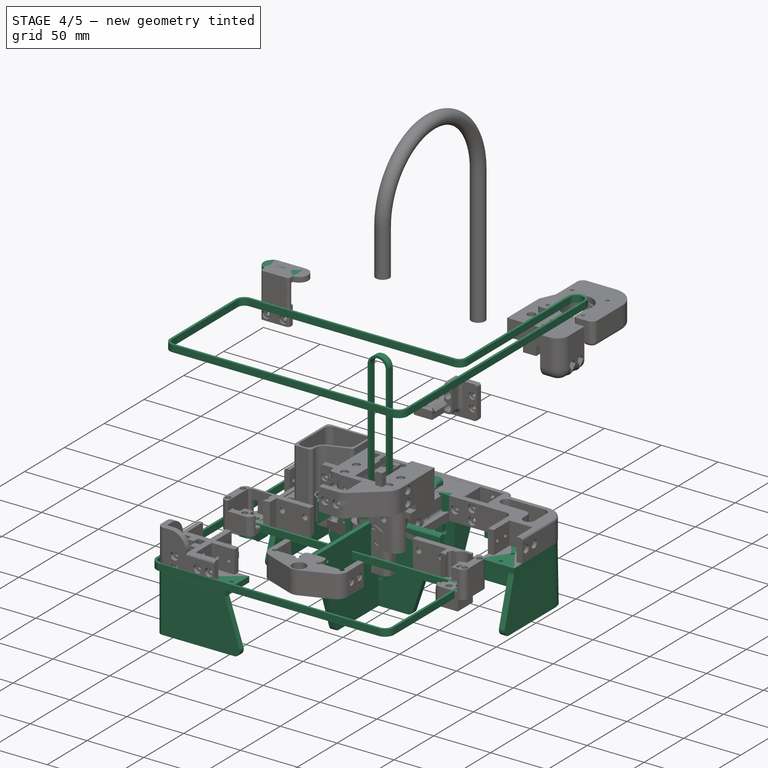
[diagram: stage 4 of 5 — iso view after this stage's code; geometry added in this stage tinted green]
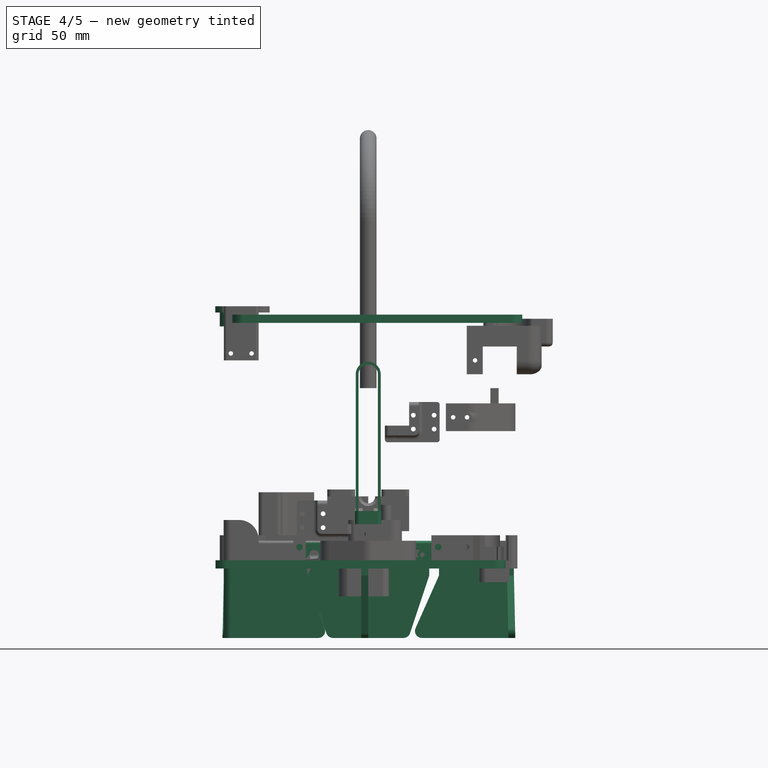
[diagram: stage 4 of 5 — front view after this stage's code; geometry added in this stage tinted green]
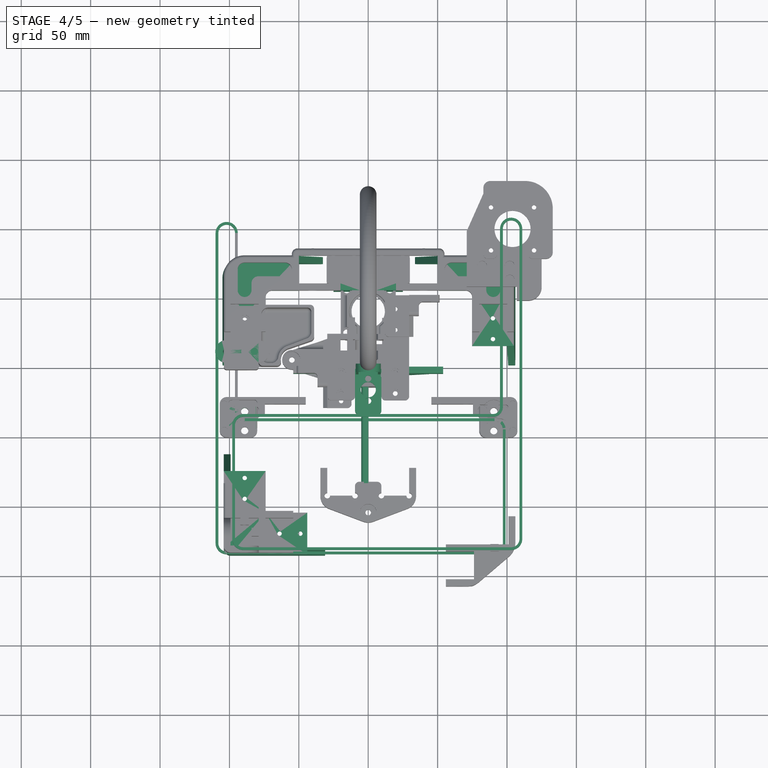
[diagram: stage 4 of 5 — top view after this stage's code; geometry added in this stage tinted green]
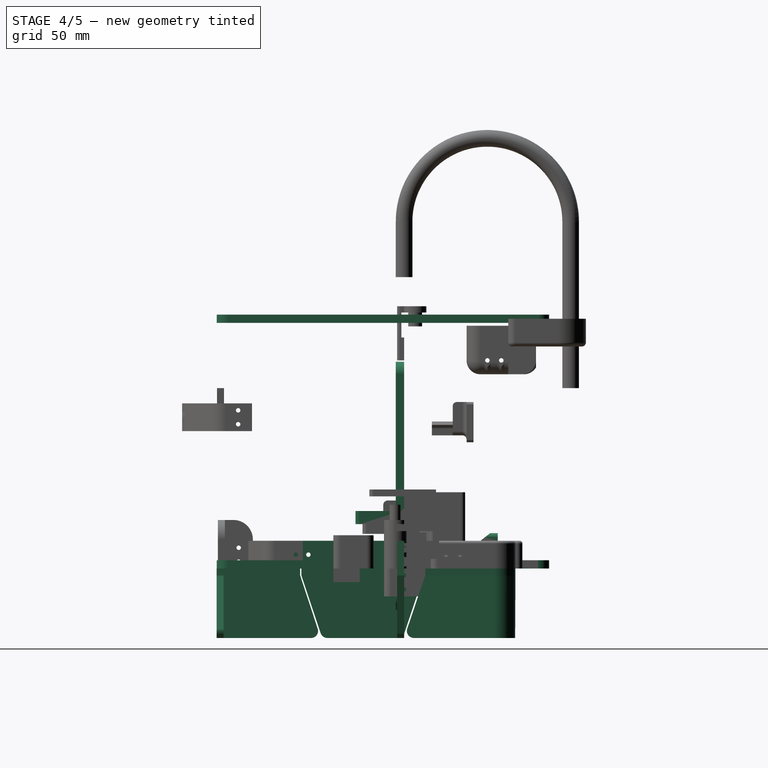
[diagram: stage 4 of 5 — right view after this stage's code; geometry added in this stage tinted green]
FEATURE [PartDesign::Body] Body035  label="Z_reprap_left"
  AllowCompound = false
  Group = -> [Sketch302,Pad133,Sketch304,Pad135,Sketch305,Pad136,Sketch306,Hole002,Fillet067,Sketch307,Pocket155,Fillet068]
  Origin = -> Origin039
  Placement = pos=(0,50,71) rot=(0,0,1;0rad)
  Tip = -> Fillet068
FEATURE [Sketcher::SketchObject] Sketch308
  ArcFitTolerance = 0
  AttachmentSupport = -> [XZ_Plane041]
  FullyConstrained = true
  MakeInternals = false
  MapMode = 5
  Placement = pos=(0,0,0) rot=(1,0,0;1.5708rad)
  sketch-geometry (16):
    g0: LineSegment StartX=29.5 StartY=27 StartZ=0 EndX=-29.5 EndY=27 EndZ=0
    g1: LineSegment StartX=-29.5 StartY=27 StartZ=0 EndX=-29.5 EndY=52 EndZ=0
    g2: LineSegment StartX=-29.5 StartY=52 StartZ=0 EndX=-5 EndY=52 EndZ=0
    g3: LineSegment StartX=29.5 StartY=52 StartZ=0 EndX=29.5 EndY=27 EndZ=0
    g4: Circle CenterX=-3.5 CenterY=32.9 CenterZ=0 NormalX=0 NormalY=0 NormalZ=1 AngleXU=0 Radius=1
    g5: Circle CenterX=3.5 CenterY=32.9 CenterZ=0 NormalX=0 NormalY=0 NormalZ=1 AngleXU=0 Radius=1
    g6: LineSegment StartX=-4 StartY=44 StartZ=0 EndX=-2 EndY=44 EndZ=0
    g7: LineSegment StartX=-2 StartY=44 StartZ=0 EndX=-2 EndY=40 EndZ=0
    g8: LineSegment StartX=-2 StartY=40 StartZ=0 EndX=-4 EndY=40 EndZ=0
    g9: LineSegment StartX=-4 StartY=40 StartZ=0 EndX=-4 EndY=44 EndZ=0
    g10: LineSegment StartX=2 StartY=44 StartZ=0 EndX=4 EndY=44 EndZ=0
    g11: LineSegment StartX=4 StartY=44 StartZ=0 EndX=4 EndY=40 EndZ=0
    g12: LineSegment StartX=4 StartY=40 StartZ=0 EndX=2 EndY=40 EndZ=0
    g13: LineSegment StartX=2 StartY=40 StartZ=0 EndX=2 EndY=44 EndZ=0
    g14: ArcOfCircle CenterX=0 CenterY=52 CenterZ=0 NormalX=0 NormalY=0 NormalZ=1 AngleXU=0 Radius=5 StartAngle=3.14159 EndAngle=6.28319
    g15: LineSegment StartX=5 StartY=52 StartZ=0 EndX=29.5 EndY=52 EndZ=0
  constraints (46):
    c: Coincident(g0,g1)
    c: Vertical(g1)
    c: Coincident(g1,g2)
    c: Horizontal(g2)
    c: Coincident(g15,g3)
    c: Coincident(g3,g0)
    c: DistanceY(g-1,g15) = 52
    c: DistanceY(g3,g3) = 25
    c: DistanceX(g2,g15) = 59
    c: Symmetric(g0,g0,g-2)
    c: Vertical(g3)
    c: Symmetric(g4,g5,g-2)
    c: Equal(g4,g5)
    c: Radius(g4) = 1
    c: DistanceY(g-1,g4) = 32.9
    c: DistanceX(g4,g5) = 7
    c: Coincident(g6,g7)
    c: Coincident(g7,g8)
    c: Coincident(g8,g9)
    c: Coincident(g9,g6)
    c: Horizontal(g6)
    c: Horizontal(g8)
    c: Vertical(g7)
    c: Vertical(g9)
    c: Coincident(g10,g11)
    c: Coincident(g11,g12)
    c: Coincident(g12,g13)
    c: Coincident(g13,g10)
    c: Horizontal(g10)
    c: Horizontal(g12)
    c: Vertical(g11)
    c: Vertical(g13)
    c: Equal(g10,g6)
    c: Equal(g7,g13)
    c: Symmetric(g6,g10,g-2)
    c: DistanceY(g9,g9) = 4
    c: DistanceX(g6,g6) = 2
    c: DistanceX(g7,g12) = 4
    c: DistanceY(g-1,g7) = 40
    c: PointOnObject(g14,g2)
    c: PointOnObject(g14,g-2)
    c: Radius(g14) = 5
    c: Coincident(g2,g14)
    c: Coincident(g15,g14)
    c: Horizontal(g14,g14)
    c: Horizontal(g15)
FEATURE [PartDesign::Pad] Pad137  label="base007"
  Direction = (0,-1,2e-16)
  Length = 5
  Length2 = 10
  Placement = pos=(0,0,0) rot=(1,0,0;1.5708rad)
  Profile = -> Sketch308
  ReferenceAxis = -> Sketch308 [N_Axis]
  Reversed = true
  Suppressed = false
  Type = 0
FEATURE [Sketcher::SketchObject] Sketch309
  ArcFitTolerance = 0
  AttachmentSupport = -> [Pad137]
  ExternalGeometry = -> [Pad137]
  FullyConstrained = true
  MakeInternals = false
  MapMode = 5
  Placement = pos=(0,8.8e-15,0) rot=(1,0,0;1.5708rad)
  sketch-geometry (4):
    g0: LineSegment StartX=-29.5 StartY=27 StartZ=0 EndX=-12 EndY=27 EndZ=0
    g1: LineSegment StartX=-12 StartY=27 StartZ=0 EndX=-12 EndY=32 EndZ=0
    g2: LineSegment StartX=-12 StartY=32 StartZ=0 EndX=-29.5 EndY=32 EndZ=0
    g3: LineSegment StartX=-29.5 StartY=32 StartZ=0 EndX=-29.5 EndY=27 EndZ=0
  constraints (11):
    c: Coincident(g0,g1)
    c: Coincident(g1,g2)
    c: Coincident(g2,g3)
    c: Coincident(g3,g0)
    c: Horizontal(g0)
    c: Horizontal(g2)
    c: Vertical(g1)
    c: Vertical(g3)
    c: Coincident(g0,g-4)
    c: DistanceY(g1,g1) = 5
    c: DistanceX(g2,g2) = 17.5
FEATURE [PartDesign::Pad] Pad138  label="screw_platform"
  BaseFeature = -> Pad137
  Direction = (0,-1,2e-16)
  Length = 7
  Length2 = 10
  Placement = pos=(0,0,0) rot=(1,0,0;1.5708rad)
  Profile = -> Sketch309
  ReferenceAxis = -> Sketch309 [N_Axis]
  Suppressed = false
  Type = 0
FEATURE [Sketcher::SketchObject] Sketch312
  ArcFitTolerance = 0
  AttachmentOffset = pos=(0,0,32) rot=(0,0,1;0rad)
  AttachmentSupport = -> [XY_Plane041]
  FullyConstrained = true
  MakeInternals = false
  MapMode = 5
  Placement = pos=(0,0,32) rot=(0,0,1;0rad)
  sketch-geometry (7):
    g0: LineSegment StartX=-9.5 StartY=0 StartZ=0 EndX=9.5 EndY=0 EndZ=0
    g1: LineSegment StartX=9.5 StartY=0 StartZ=0 EndX=9.5 EndY=-35 EndZ=0
    g2: LineSegment StartX=9.5 StartY=-35 StartZ=0 EndX=-9.5 EndY=-35 EndZ=0
    g3: LineSegment StartX=-9.5 StartY=-35 StartZ=0 EndX=-9.5 EndY=0 EndZ=0
    g4: Circle CenterX=0 CenterY=-17 CenterZ=0 NormalX=0 NormalY=0 NormalZ=1 AngleXU=0 Radius=5.5
    g5: Circle CenterX=0 CenterY=-9 CenterZ=0 NormalX=0 NormalY=0 NormalZ=1 AngleXU=0 Radius=2.25
    g6: Circle CenterX=0 CenterY=-25 CenterZ=0 NormalX=0 NormalY=0 NormalZ=1 AngleXU=0 Radius=2.25
  constraints (20):
    c: Coincident(g0,g1)
    c: Coincident(g1,g2)
    c: Coincident(g2,g3)
    c: Coincident(g3,g0)
    c: Horizontal(g2)
    c: Vertical(g1)
    c: Vertical(g3)
    c: PointOnObject(g0,g-1)
    c: Symmetric(g0,g0,g-2)
    c: DistanceX(g0,g0) = 19
    c: PointOnObject(g4,g-2)
    c: Radius(g4) = 5.5
    c: DistanceY(g4,g-1) = 17
    c: DistanceY(g3,g3) = 35
    c: PointOnObject(g5,g-2)
    c: PointOnObject(g6,g-2)
    c: DistanceY(g6,g5) = 16
    c: DistanceY(g5,g-1) = 9
    c: Equal(g5,g6)
    c: Radius(g5) = 2.25
FEATURE [PartDesign::Pad] Pad139  label="nut_holder"
  BaseFeature = -> Pad138
  Direction = (0,0,1)
  Length = 9.5
  Length2 = 10
  Placement = pos=(0,0,0) rot=(1,0,0;1.5708rad)
  Profile = -> Sketch312
  ReferenceAxis = -> Sketch312 [N_Axis]
  Suppressed = false
  Type = 0
FEATURE [PartDesign::Mirrored] Mirrored028
  BaseFeature = -> Pad139
  MirrorPlane = -> Sketch309 [V_Axis]
  Originals = -> [Pad138]
  Placement = pos=(0,0,0) rot=(1,0,0;1.5708rad)
  Suppressed = false
  TransformMode = 0
FEATURE [Sketcher::SketchObject] Sketch313
  ArcFitTolerance = 0
  AttachmentSupport = -> [Mirrored028]
  ExternalGeometry = -> [Mirrored028]
  FullyConstrained = true
  MakeInternals = false
  MapMode = 5
  Placement = pos=(0,2.29e-14,52) rot=(0,0,1;3.14159rad)
  sketch-geometry (12):
    g0: LineSegment StartX=9.5 StartY=-5 StartZ=0 EndX=9.5 EndY=25 EndZ=0
    g1: LineSegment StartX=9.5 StartY=25 StartZ=0 EndX=29.5 EndY=25 EndZ=0
    g2: LineSegment StartX=29.5 StartY=25 StartZ=0 EndX=29.5 EndY=-5 EndZ=0
    g3: LineSegment StartX=-9.5 StartY=-5 StartZ=0 EndX=-9.5 EndY=25 EndZ=0
    g4: LineSegment StartX=-9.5 StartY=25 StartZ=0 EndX=-29.5 EndY=25 EndZ=0
    g5: LineSegment StartX=-29.5 StartY=25 StartZ=0 EndX=-29.5 EndY=-5 EndZ=0
    g6: Circle CenterX=-19.5 CenterY=5 CenterZ=0 NormalX=0 NormalY=0 NormalZ=1 AngleXU=0 Radius=1.7
    g7: Circle CenterX=-19.5 CenterY=20 CenterZ=0 NormalX=0 NormalY=0 NormalZ=1 AngleXU=0 Radius=1.7
    g8: Circle CenterX=19.5 CenterY=20 CenterZ=0 NormalX=0 NormalY=0 NormalZ=1 AngleXU=0 Radius=1.7
    g9: Circle CenterX=19.5 CenterY=5 CenterZ=0 NormalX=0 NormalY=0 NormalZ=1 AngleXU=0 Radius=1.7
    g10: LineSegment StartX=29.5 StartY=-5 StartZ=0 EndX=9.5 EndY=-5 EndZ=0
    g11: LineSegment StartX=-9.5 StartY=-5 StartZ=0 EndX=-29.5 EndY=-5 EndZ=0
  constraints (32):
    c: Coincident(g0,g1)
    c: Coincident(g1,g2)
    c: Horizontal(g1)
    c: Vertical(g0)
    c: Vertical(g2)
    c: Coincident(g3,g4)
    c: Coincident(g4,g5)
    c: Horizontal(g4)
    c: Vertical(g3)
    c: Vertical(g5)
    c: Equal(g0,g3)
    c: Equal(g4,g1)
    c: DistanceX(g4,g4) = 20
    c: DistanceY(g5,g5) = 30
    c: Equal(g9,g8)
    c: Equal(g8,g7)
    c: Equal(g7,g6)
    c: Symmetric(g6,g9,g-2)
    c: Symmetric(g8,g7,g-2)
    c: DistanceX(g4,g7) = 10
    c: Vertical(g6,g7)
    c: DistanceY(g6,g7) = 15
    c: DistanceY(g5,g6) = 10
    c: Radius(g6) = 1.7
    c: Coincident(g2,g-3)
    c: Coincident(g5,g-4)
    c: PointOnObject(g3,g-6)
    c: PointOnObject(g0,g-5)
    c: Coincident(g10,g2)
    c: Coincident(g10,g0)
    c: Coincident(g11,g3)
    c: Coincident(g11,g5)
FEATURE [PartDesign::Pad] Pad140
  BaseFeature = -> Mirrored028
  Direction = (0,0,1)
  Length = 5
  Length2 = 10
  Placement = pos=(0,0,0) rot=(1,0,0;1.5708rad)
  Profile = -> Sketch313
  ReferenceAxis = -> Sketch313 [N_Axis]
  Suppressed = false
  Type = 0
FEATURE [Sketcher::SketchObject] Sketch314
  ArcFitTolerance = 0
  AttachmentSupport = -> [Pad140]
  ExternalGeometry = -> [Pad140]
  FullyConstrained = true
  MakeInternals = false
  MapMode = 5
  Placement = pos=(0,0,57) rot=(0,0,1;3.14159rad)
  sketch-geometry (4):
    g0: Circle CenterX=-19.5 CenterY=20 CenterZ=0 NormalX=0 NormalY=0 NormalZ=1 AngleXU=0 Radius=3.2
    g1: Circle CenterX=-19.5 CenterY=5 CenterZ=0 NormalX=0 NormalY=0 NormalZ=1 AngleXU=0 Radius=3.2
    g2: Circle CenterX=19.5 CenterY=20 CenterZ=0 NormalX=0 NormalY=0 NormalZ=1 AngleXU=0 Radius=3.2
    g3: Circle CenterX=19.5 CenterY=5 CenterZ=0 NormalX=0 NormalY=0 NormalZ=1 AngleXU=0 Radius=3.2
  constraints (8):
    c: Coincident(g0,g-3)
    c: Coincident(g1,g-4)
    c: Coincident(g2,g-6)
    c: Coincident(g3,g-5)
    c: Equal(g0,g1)
    c: Equal(g1,g2)
    c: Equal(g2,g3)
    c: Radius(g0) = 3.2
FEATURE [PartDesign::Pocket] Pocket156
  BaseFeature = -> Pad140
  Direction = (0,0,-1)
  Length = 2
  Length2 = 5
  Placement = pos=(0,0,0) rot=(1,0,0;1.5708rad)
  Profile = -> Sketch314
  ReferenceAxis = -> Sketch314 [N_Axis]
  Suppressed = false
  Type = 0
FEATURE [PartDesign::Fillet] Fillet069
  Base = -> Pocket156 [Edge67,Edge138,Edge133,Edge61,Edge120,Edge99]
  BaseFeature = -> Pocket156
  Placement = pos=(0,0,0) rot=(1,0,0;1.5708rad)
  Radius = 3
  SupportTransform = false
  Suppressed = false
  UseAllEdges = false
FEATURE [PartDesign::Chamfer] Chamfer004
  Angle = 45
  Base = -> Fillet069 [Edge49,Edge40,Edge28,Edge70]
  BaseFeature = -> Fillet069
  ChamferType = 0
  FlipDirection = false
  Placement = pos=(0,0,0) rot=(1,0,0;1.5708rad)
  Size = 2
  Size2 = 1
  SupportTransform = false
  Suppressed = false
  UseAllEdges = false
FEATURE [PartDesign::Body] Body039  label="Z_reprap_v0_side"
  AllowCompound = false
  Group = -> [Sketch318,Pad142,DatumPlane002,Sketch319,Hole005,Sketch320,Pocket157,Sketch321,Pocket158]
  Origin = -> Origin043
  Placement = pos=(0,0,103) rot=(0,0,1;0rad)
  Tip = -> Pocket158
FEATURE [Sketcher::SketchObject] Sketch322
  ArcFitTolerance = 0
  AttachmentSupport = -> [Chamfer004]
  ExternalGeometry = -> [Chamfer004]
  FullyConstrained = true
  MakeInternals = false
  MapMode = 5
  Placement = pos=(0,5,0) rot=(-1,0,0;1.5708rad)
  sketch-geometry (8):
    g0: Circle CenterX=-3.5 CenterY=-27.9 CenterZ=0 NormalX=0 NormalY=0 NormalZ=1 AngleXU=0 Radius=0.8
    g1: Circle CenterX=3.5 CenterY=-27.9 CenterZ=0 NormalX=0 NormalY=0 NormalZ=1 AngleXU=0 Radius=0.8
    g2: LineSegment StartX=-7.5 StartY=-27 StartZ=0 EndX=-6 EndY=-24 EndZ=0
    g3: LineSegment StartX=-6 StartY=-24 StartZ=0 EndX=6 EndY=-24 EndZ=0
    g4: LineSegment StartX=6 StartY=-24 StartZ=0 EndX=7.5 EndY=-27 EndZ=0
    g5: LineSegment StartX=7.5 StartY=-27 StartZ=0 EndX=7.5 EndY=-35 EndZ=0
    g6: LineSegment StartX=7.5 StartY=-35 StartZ=0 EndX=-7.5 EndY=-35 EndZ=0
    g7: LineSegment StartX=-7.5 StartY=-35 StartZ=0 EndX=-7.5 EndY=-27 EndZ=0
  constraints (22):
    c: Vertical(g1,g-3)
    c: Vertical(g0,g-4)
    c: DistanceY(g-4,g0) = 5
    c: Horizontal(g0,g1)
    c: PointOnObject(g2,g-5)
    c: Coincident(g2,g3)
    c: Coincident(g3,g4)
    c: Coincident(g4,g5)
    c: Vertical(g5)
    c: Coincident(g5,g6)
    c: Horizontal(g6)
    c: Coincident(g6,g7)
    c: Coincident(g7,g2)
    c: Vertical(g7)
    c: Symmetric(g2,g3,g-2)
    c: Symmetric(g2,g4,g-2)
    c: DistanceX(g3,g3) = 12
    c: DistanceX(g2,g4) = 15
    c: DistanceY(g6,g-5) = 8
    c: DistanceY(g2,g2) = 3
    c: Equal(g0,g1)
    c: Radius(g0) = 0.8
FEATURE [PartDesign::Pad] Pad143
  BaseFeature = -> Chamfer004
  Direction = (0,1,2e-16)
  Length = 5
  Length2 = 10
  Placement = pos=(0,0,0) rot=(1,0,0;1.5708rad)
  Profile = -> Sketch322
  ReferenceAxis = -> Sketch322 [N_Axis]
  Reversed = true
  Suppressed = false
  Type = 0
FEATURE [Sketcher::SketchObject] Sketch354
  ArcFitTolerance = 0
  AttachmentSupport = -> [XY_Plane059]
  FullyConstrained = true
  MakeInternals = false
  MapMode = 5
  expr: Constraints[23] = Spreadsheet.screw
  sketch-geometry (8):
    g0: LineSegment StartX=-104 StartY=15.2 StartZ=0 EndX=-73.8 EndY=15.2 EndZ=0
    g1: LineSegment StartX=-73.8 StartY=15.2 StartZ=0 EndX=-73.8 EndY=55 EndZ=0
    g2: LineSegment StartX=-73.8 StartY=55 StartZ=0 EndX=-50 EndY=55 EndZ=0
    g3: LineSegment StartX=-50 StartY=55 StartZ=0 EndX=-50 EndY=80.2 EndZ=0
    g4: LineSegment StartX=-50 StartY=80.2 StartZ=0 EndX=-104 EndY=80.2 EndZ=0
    g5: LineSegment StartX=-104 StartY=80.2 StartZ=0 EndX=-104 EndY=15.2 EndZ=0
    g6: Circle CenterX=-88.9 CenterY=35.2 CenterZ=0 NormalX=0 NormalY=0 NormalZ=1 AngleXU=0 Radius=1.6
    g7: Circle CenterX=-88.9 CenterY=20.2 CenterZ=0 NormalX=0 NormalY=0 NormalZ=1 AngleXU=0 Radius=1.6
  constraints (24):
    c: Horizontal(g0)
    c: Coincident(g0,g1)
    c: Vertical(g1)
    c: Coincident(g1,g2)
    c: Horizontal(g2)
    c: Coincident(g2,g3)
    c: Vertical(g3)
    c: Coincident(g3,g4)
    c: Horizontal(g4)
    c: Coincident(g4,g5)
    c: Coincident(g5,g0)
    c: Vertical(g5)
    c: DistanceX(g0,g0) = 30.2
    c: DistanceY(g3,g3) = 25.2
    c: DistanceX(g2,g-1) = 50
    c: DistanceY(g-1,g2) = 55
    c: DistanceX(g4,g4) = 54
    c: DistanceY(g5,g5) = 65
    c: Vertical(g6,g7)
    c: DistanceX(g0,g7) = 15.1
    c: DistanceY(g0,g7) = 5
    c: DistanceY(g7,g6) = 15
    c: Equal(g7,g6)
    c: Radius(g6) = 1.6
FEATURE [PartDesign::Pad] Pad159
  Direction = (0,0,1)
  Length = 5
  Length2 = 10
  Profile = -> Sketch354
  ReferenceAxis = -> Sketch354 [N_Axis]
  Reversed = true
  Suppressed = false
  Type = 0
FEATURE [Sketcher::SketchObject] Sketch355
  ArcFitTolerance = 0
  AttachmentSupport = -> [Pad159]
  ExternalGeometry = -> [Pad159]
  FullyConstrained = true
  MakeInternals = false
  MapMode = 5
  Placement = pos=(0,0,-5) rot=(1,0,0;3.14159rad)
  sketch-geometry (6):
    g0: LineSegment StartX=-104 StartY=-15.2 StartZ=0 EndX=-99 EndY=-15.2 EndZ=0
    g1: LineSegment StartX=-99 StartY=-15.2 StartZ=0 EndX=-99 EndY=-75.2 EndZ=0
    g2: LineSegment StartX=-99 StartY=-75.2 StartZ=0 EndX=-50 EndY=-75.2 EndZ=0
    g3: LineSegment StartX=-50 StartY=-75.2 StartZ=0 EndX=-50 EndY=-80.2 EndZ=0
    g4: LineSegment StartX=-50 StartY=-80.2 StartZ=0 EndX=-104 EndY=-80.2 EndZ=0
    g5: LineSegment StartX=-104 StartY=-80.2 StartZ=0 EndX=-104 EndY=-15.2 EndZ=0
  constraints (15):
    c: Coincident(g-3,g0)
    c: Horizontal(g0)
    c: Coincident(g0,g1)
    c: Vertical(g1)
    c: Coincident(g1,g2)
    c: Horizontal(g2)
    c: Coincident(g2,g3)
    c: Vertical(g3)
    c: Coincident(g3,g4)
    c: Coincident(g4,g-3)
    c: Coincident(g4,g5)
    c: Coincident(g5,g0)
    c: Coincident(g-4,g3)
    c: Equal(g0,g3)
    c: DistanceX(g0,g0) = 5
FEATURE [Sketcher::SketchObject] Sketch356
  ArcFitTolerance = 0
  AttachmentOffset = pos=(0,0,-50) rot=(0,0,1;0rad)
  AttachmentSupport = -> [XY_Plane059]
  FullyConstrained = true
  MakeInternals = false
  MapMode = 5
  Placement = pos=(0,0,-50) rot=(0,0,1;0rad)
  sketch-geometry (6):
    g0: LineSegment StartX=-30 StartY=80 StartZ=0 EndX=-105 EndY=80 EndZ=0
    g1: LineSegment StartX=-105 StartY=80 StartZ=0 EndX=-105 EndY=0 EndZ=0
    g2: LineSegment StartX=-105 StartY=0 StartZ=0 EndX=-100 EndY=0 EndZ=0
    g3: LineSegment StartX=-100 StartY=0 StartZ=0 EndX=-100 EndY=75 EndZ=0
    g4: LineSegment StartX=-100 StartY=75 StartZ=0 EndX=-30 EndY=75 EndZ=0
    g5: LineSegment StartX=-30 StartY=75 StartZ=0 EndX=-30 EndY=80 EndZ=0
  constraints (18):
    c: Horizontal(g0)
    c: Coincident(g0,g1)
    c: PointOnObject(g1,g-1)
    c: Vertical(g1)
    c: Coincident(g1,g2)
    c: PointOnObject(g2,g-1)
    c: Coincident(g2,g3)
    c: Vertical(g3)
    c: Coincident(g3,g4)
    c: Horizontal(g4)
    c: Coincident(g4,g5)
    c: Coincident(g5,g0)
    c: Vertical(g5)
    c: Equal(g2,g5)
    c: DistanceX(g2,g2) = 5
    c: DistanceY(g1,g1) = 80
    c: DistanceX(g0,g0) = 75
    c: DistanceX(g2,g-1) = 100
FEATURE [PartDesign::AdditiveLoft] AdditiveLoft
  BaseFeature = -> Pad159
  Closed = false
  Profile = -> Sketch355
  Ruled = false
  Sections = -> [Sketch356]
  Suppressed = false
FEATURE [PartDesign::Fillet] Fillet081
  Base = -> AdditiveLoft [Edge29]
  BaseFeature = -> AdditiveLoft
  Radius = 15
  SupportTransform = false
  Suppressed = false
  UseAllEdges = false
FEATURE [PartDesign::Fillet] Fillet082
  Base = -> Fillet081 [Edge36,Edge40]
  BaseFeature = -> Fillet081
  Radius = 5
  SupportTransform = false
  Suppressed = false
  UseAllEdges = false
FEATURE [PartDesign::Body] Body055  label="foot_rear_left"
  AllowCompound = false
  Group = -> [Sketch354,Pad159,Sketch355,Sketch356,AdditiveLoft,Fillet081,Fillet082]
  Origin = -> Origin059
  Tip = -> Fillet082
FEATURE [Sketcher::SketchObject] Sketch357
  ArcFitTolerance = 0
  AttachmentSupport = -> [XY_Plane060]
  FullyConstrained = true
  MakeInternals = false
  MapMode = 5
  expr: Constraints[29] = Spreadsheet.screw
  sketch-geometry (10):
    g0: LineSegment StartX=-104.1 StartY=-74.9 StartZ=0 EndX=-104.1 EndY=-135.1 EndZ=0
    g1: LineSegment StartX=-104.1 StartY=-135.1 StartZ=0 EndX=-43.9 EndY=-135.1 EndZ=0
    g2: LineSegment StartX=-43.9 StartY=-135.1 StartZ=0 EndX=-43.9 EndY=-104.9 EndZ=0
    g3: LineSegment StartX=-43.9 StartY=-104.9 StartZ=0 EndX=-73.9 EndY=-104.9 EndZ=0
    g4: LineSegment StartX=-73.9 StartY=-104.9 StartZ=0 EndX=-73.9 EndY=-74.9 EndZ=0
    g5: LineSegment StartX=-73.9 StartY=-74.9 StartZ=0 EndX=-104.1 EndY=-74.9 EndZ=0
    g6: Circle CenterX=-89 CenterY=-79.9 CenterZ=0 NormalX=0 NormalY=0 NormalZ=1 AngleXU=0 Radius=1.6
    g7: Circle CenterX=-89 CenterY=-94.9 CenterZ=0 NormalX=0 NormalY=0 NormalZ=1 AngleXU=0 Radius=1.6
    g8: Circle CenterX=-48.9 CenterY=-120 CenterZ=0 NormalX=0 NormalY=0 NormalZ=1 AngleXU=0 Radius=1.6
    g9: Circle CenterX=-63.9 CenterY=-120 CenterZ=0 NormalX=0 NormalY=0 NormalZ=1 AngleXU=0 Radius=1.6
  constraints (30):
    c: Vertical(g0)
    c: Coincident(g0,g1)
    c: Horizontal(g1)
    c: Coincident(g1,g2)
    c: Vertical(g2)
    c: Coincident(g2,g3)
    c: Horizontal(g3)
    c: Coincident(g3,g4)
    c: Vertical(g4)
    c: Coincident(g4,g5)
    c: Coincident(g5,g0)
    c: Horizontal(g5)
    c: DistanceX(g0,g-1) = 104.1
    c: DistanceY(g0,g-1) = 135.1
    c: Equal(g5,g2)
    c: DistanceX(g5,g5) = 30.2
    c: DistanceY(g4,g4) = 30
    c: Equal(g3,g4)
    c: Vertical(g6,g7)
    c: Horizontal(g9,g8)
    c: DistanceX(g0,g6) = 15.1
    c: DistanceY(g6,g4) = 5
    c: DistanceY(g7,g6) = 15
    c: DistanceY(g8,g2) = 15.1
    c: DistanceX(g8,g2) = 5
    c: DistanceX(g9,g8) = 15
    c: Equal(g8,g9)
    c: Equal(g9,g7)
    c: Equal(g7,g6)
    c: Radius(g7) = 1.6
FEATURE [PartDesign::Pad] Pad160
  Direction = (0,0,1)
  Length = 5
  Length2 = 10
  Profile = -> Sketch357
  ReferenceAxis = -> Sketch357 [N_Axis]
  Reversed = true
  Suppressed = false
  Type = 0
FEATURE [Sketcher::SketchObject] Sketch358
  ArcFitTolerance = 0
  AttachmentSupport = -> [Pad160]
  ExternalGeometry = -> [Pad160]
  FullyConstrained = true
  MakeInternals = false
  MapMode = 5
  Placement = pos=(0,0,-5) rot=(1,0,0;3.14159rad)
  sketch-geometry (6):
    g0: LineSegment StartX=-43.9 StartY=135.1 StartZ=0 EndX=-104.1 EndY=135.1 EndZ=0
    g1: LineSegment StartX=-104.1 StartY=135.1 StartZ=0 EndX=-104.1 EndY=74.9 EndZ=0
    g2: LineSegment StartX=-104.1 StartY=74.9 StartZ=0 EndX=-99.1 EndY=74.9 EndZ=0
    g3: LineSegment StartX=-99.1 StartY=74.9 StartZ=0 EndX=-99.1 EndY=130.1 EndZ=0
    g4: LineSegment StartX=-99.1 StartY=130.1 StartZ=0 EndX=-43.9 EndY=130.1 EndZ=0
    g5: LineSegment StartX=-43.9 StartY=130.1 StartZ=0 EndX=-43.9 EndY=135.1 EndZ=0
  constraints (15):
    c: Coincident(g-3,g0)
    c: Coincident(g0,g-3)
    c: Coincident(g0,g1)
    c: Coincident(g1,g-4)
    c: Coincident(g1,g2)
    c: PointOnObject(g2,g-4)
    c: Coincident(g2,g3)
    c: Vertical(g3)
    c: Coincident(g3,g4)
    c: Horizontal(g4)
    c: Coincident(g4,g5)
    c: Coincident(g5,g0)
    c: Vertical(g5)
    c: Equal(g2,g5)
    c: DistanceX(g2,g2) = 5
FEATURE [Sketcher::SketchObject] Sketch359
  ArcFitTolerance = 0
  AttachmentOffset = pos=(0,0,-50) rot=(0,0,1;0rad)
  AttachmentSupport = -> [XY_Plane060]
  FullyConstrained = true
  MakeInternals = false
  MapMode = 5
  Placement = pos=(0,0,-50) rot=(0,0,1;0rad)
  sketch-geometry (6):
    g0: LineSegment StartX=-99.1 StartY=-130.1 StartZ=0 EndX=-99.1 EndY=-60.1 EndZ=0
    g1: LineSegment StartX=-99.1 StartY=-60.1 StartZ=0 EndX=-104.1 EndY=-60.1 EndZ=0
    g2: LineSegment StartX=-104.1 StartY=-60.1 StartZ=0 EndX=-104.1 EndY=-135.1 EndZ=0
    g3: LineSegment StartX=-104.1 StartY=-135.1 StartZ=0 EndX=-29.1 EndY=-135.1 EndZ=0
    g4: LineSegment StartX=-29.1 StartY=-135.1 StartZ=0 EndX=-29.1 EndY=-130.1 EndZ=0
    g5: LineSegment StartX=-29.1 StartY=-130.1 StartZ=0 EndX=-99.1 EndY=-130.1 EndZ=0
  constraints (18):
    c: Vertical(g0)
    c: Coincident(g0,g1)
    c: Horizontal(g1)
    c: Coincident(g1,g2)
    c: Vertical(g2)
    c: Coincident(g2,g3)
    c: Horizontal(g3)
    c: Coincident(g3,g4)
    c: Vertical(g4)
    c: Coincident(g4,g5)
    c: Coincident(g5,g0)
    c: Horizontal(g5)
    c: Equal(g1,g4)
    c: DistanceX(g1,g1) = 5
    c: DistanceX(g2,g-1) = 104.1
    c: DistanceY(g2,g-1) = 135.1
    c: Equal(g5,g0)
    c: DistanceY(g0,g0) = 70
FEATURE [PartDesign::AdditiveLoft] AdditiveLoft001
  BaseFeature = -> Pad160
  Closed = false
  Profile = -> Sketch358
  Ruled = false
  Sections = -> [Sketch359]
  Suppressed = false
FEATURE [PartDesign::Fillet] Fillet084
  Base = -> AdditiveLoft001 [Edge33,Edge43]
  BaseFeature = -> AdditiveLoft001
  Radius = 5
  SupportTransform = false
  Suppressed = false
  UseAllEdges = false
FEATURE [Sketcher::SketchObject] Sketch360
  ArcFitTolerance = 0
  AttachmentSupport = -> [XY_Plane061]
  FullyConstrained = true
  MakeInternals = false
  MapMode = 5
  expr: Constraints[29] = Spreadsheet.screw
  sketch-geometry (10):
    g0: LineSegment StartX=-104.1 StartY=-74.9 StartZ=0 EndX=-104.1 EndY=-135.1 EndZ=0
    g1: LineSegment StartX=-104.1 StartY=-135.1 StartZ=0 EndX=-43.9 EndY=-135.1 EndZ=0
    g2: LineSegment StartX=-43.9 StartY=-135.1 StartZ=0 EndX=-43.9 EndY=-104.9 EndZ=0
    g3: LineSegment StartX=-43.9 StartY=-104.9 StartZ=0 EndX=-73.9 EndY=-104.9 EndZ=0
    g4: LineSegment StartX=-73.9 StartY=-104.9 StartZ=0 EndX=-73.9 EndY=-74.9 EndZ=0
    g5: LineSegment StartX=-73.9 StartY=-74.9 StartZ=0 EndX=-104.1 EndY=-74.9 EndZ=0
    g6: Circle CenterX=-89 CenterY=-79.9 CenterZ=0 NormalX=0 NormalY=0 NormalZ=1 AngleXU=0 Radius=1.6
    g7: Circle CenterX=-89 CenterY=-94.9 CenterZ=0 NormalX=0 NormalY=0 NormalZ=1 AngleXU=0 Radius=1.6
    g8: Circle CenterX=-48.9 CenterY=-120 CenterZ=0 NormalX=0 NormalY=0 NormalZ=1 AngleXU=0 Radius=1.6
    g9: Circle CenterX=-63.9 CenterY=-120 CenterZ=0 NormalX=0 NormalY=0 NormalZ=1 AngleXU=0 Radius=1.6
  constraints (30):
    c: Vertical(g0)
    c: Coincident(g0,g1)
    c: Horizontal(g1)
    c: Coincident(g1,g2)
    c: Vertical(g2)
    c: Coincident(g2,g3)
    c: Horizontal(g3)
    c: Coincident(g3,g4)
    c: Vertical(g4)
    c: Coincident(g4,g5)
    c: Coincident(g5,g0)
    c: Horizontal(g5)
    c: DistanceX(g0,g-1) = 104.1
    c: DistanceY(g0,g-1) = 135.1
    c: Equal(g5,g2)
    c: DistanceX(g5,g5) = 30.2
    c: DistanceY(g4,g4) = 30
    c: Equal(g3,g4)
    c: Vertical(g6,g7)
    c: Horizontal(g9,g8)
    c: DistanceX(g0,g6) = 15.1
    c: DistanceY(g6,g4) = 5
    c: DistanceY(g7,g6) = 15
    c: DistanceY(g8,g2) = 15.1
    c: DistanceX(g8,g2) = 5
    c: DistanceX(g9,g8) = 15
    c: Equal(g8,g9)
    c: Equal(g9,g7)
    c: Equal(g7,g6)
    c: Radius(g7) = 1.6
FEATURE [PartDesign::Pad] Pad161
  Direction = (0,0,1)
  Length = 5
  Length2 = 10
  Profile = -> Sketch360
  ReferenceAxis = -> Sketch360 [N_Axis]
  Reversed = true
  Suppressed = false
  Type = 0
FEATURE [Sketcher::SketchObject] Sketch361
  ArcFitTolerance = 0
  AttachmentSupport = -> [Pad161]
  ExternalGeometry = -> [Pad161]
  FullyConstrained = true
  MakeInternals = false
  MapMode = 5
  Placement = pos=(0,0,-5) rot=(1,0,0;3.14159rad)
  sketch-geometry (6):
    g0: LineSegment StartX=-43.9 StartY=135.1 StartZ=0 EndX=-104.1 EndY=135.1 EndZ=0
    g1: LineSegment StartX=-104.1 StartY=135.1 StartZ=0 EndX=-104.1 EndY=74.9 EndZ=0
    g2: LineSegment StartX=-104.1 StartY=74.9 StartZ=0 EndX=-99.1 EndY=74.9 EndZ=0
    g3: LineSegment StartX=-99.1 StartY=74.9 StartZ=0 EndX=-99.1 EndY=130.1 EndZ=0
    g4: LineSegment StartX=-99.1 StartY=130.1 StartZ=0 EndX=-43.9 EndY=130.1 EndZ=0
    g5: LineSegment StartX=-43.9 StartY=130.1 StartZ=0 EndX=-43.9 EndY=135.1 EndZ=0
  constraints (15):
    c: Coincident(g-3,g0)
    c: Coincident(g0,g-3)
    c: Coincident(g0,g1)
    c: Coincident(g1,g-4)
    c: Coincident(g1,g2)
    c: PointOnObject(g2,g-4)
    c: Coincident(g2,g3)
    c: Vertical(g3)
    c: Coincident(g3,g4)
    c: Horizontal(g4)
    c: Coincident(g4,g5)
    c: Coincident(g5,g0)
    c: Vertical(g5)
    c: Equal(g2,g5)
    c: DistanceX(g2,g2) = 5
FEATURE [Sketcher::SketchObject] Sketch362
  ArcFitTolerance = 0
  AttachmentOffset = pos=(0,0,-50) rot=(0,0,1;0rad)
  AttachmentSupport = -> [XY_Plane061]
  FullyConstrained = true
  MakeInternals = false
  MapMode = 5
  Placement = pos=(0,0,-50) rot=(0,0,1;0rad)
  sketch-geometry (6):
    g0: LineSegment StartX=-99.1 StartY=-130.1 StartZ=0 EndX=-99.1 EndY=-60.1 EndZ=0
    g1: LineSegment StartX=-99.1 StartY=-60.1 StartZ=0 EndX=-104.1 EndY=-60.1 EndZ=0
    g2: LineSegment StartX=-104.1 StartY=-60.1 StartZ=0 EndX=-104.1 EndY=-135.1 EndZ=0
    g3: LineSegment StartX=-104.1 StartY=-135.1 StartZ=0 EndX=-29.1 EndY=-135.1 EndZ=0
    g4: LineSegment StartX=-29.1 StartY=-135.1 StartZ=0 EndX=-29.1 EndY=-130.1 EndZ=0
    g5: LineSegment StartX=-29.1 StartY=-130.1 StartZ=0 EndX=-99.1 EndY=-130.1 EndZ=0
  constraints (18):
    c: Vertical(g0)
    c: Coincident(g0,g1)
    c: Horizontal(g1)
    c: Coincident(g1,g2)
    c: Vertical(g2)
    c: Coincident(g2,g3)
    c: Horizontal(g3)
    c: Coincident(g3,g4)
    c: Vertical(g4)
    c: Coincident(g4,g5)
    c: Coincident(g5,g0)
    c: Horizontal(g5)
    c: Equal(g1,g4)
    c: DistanceX(g1,g1) = 5
    c: DistanceX(g2,g-1) = 104.1
    c: DistanceY(g2,g-1) = 135.1
    c: Equal(g5,g0)
    c: DistanceY(g0,g0) = 70
FEATURE [PartDesign::AdditiveLoft] AdditiveLoft002
  BaseFeature = -> Pad161
  Closed = false
  Profile = -> Sketch361
  Ruled = false
  Sections = -> [Sketch362]
  Suppressed = false
FEATURE [PartDesign::Fillet] Fillet085
  Base = -> AdditiveLoft002 [Edge33,Edge43]
  BaseFeature = -> AdditiveLoft002
  Radius = 5
  SupportTransform = false
  Suppressed = false
  UseAllEdges = false
FEATURE [Sketcher::SketchObject] Sketch363
  ArcFitTolerance = 0
  AttachmentSupport = -> [XY_Plane062]
  FullyConstrained = true
  MakeInternals = false
  MapMode = 5
  expr: Constraints[23] = Spreadsheet.screw
  sketch-geometry (8):
    g0: LineSegment StartX=-104 StartY=15.2 StartZ=0 EndX=-73.8 EndY=15.2 EndZ=0
    g1: LineSegment StartX=-73.8 StartY=15.2 StartZ=0 EndX=-73.8 EndY=55 EndZ=0
    g2: LineSegment StartX=-73.8 StartY=55 StartZ=0 EndX=-50 EndY=55 EndZ=0
    g3: LineSegment StartX=-50 StartY=55 StartZ=0 EndX=-50 EndY=80.2 EndZ=0
    g4: LineSegment StartX=-50 StartY=80.2 StartZ=0 EndX=-104 EndY=80.2 EndZ=0
    g5: LineSegment StartX=-104 StartY=80.2 StartZ=0 EndX=-104 EndY=15.2 EndZ=0
    g6: Circle CenterX=-88.9 CenterY=35.2 CenterZ=0 NormalX=0 NormalY=0 NormalZ=1 AngleXU=0 Radius=1.6
    g7: Circle CenterX=-88.9 CenterY=20.2 CenterZ=0 NormalX=0 NormalY=0 NormalZ=1 AngleXU=0 Radius=1.6
  constraints (24):
    c: Horizontal(g0)
    c: Coincident(g0,g1)
    c: Vertical(g1)
    c: Coincident(g1,g2)
    c: Horizontal(g2)
    c: Coincident(g2,g3)
    c: Vertical(g3)
    c: Coincident(g3,g4)
    c: Horizontal(g4)
    c: Coincident(g4,g5)
    c: Coincident(g5,g0)
    c: Vertical(g5)
    c: DistanceX(g0,g0) = 30.2
    c: DistanceY(g3,g3) = 25.2
    c: DistanceX(g2,g-1) = 50
    c: DistanceY(g-1,g2) = 55
    c: DistanceX(g4,g4) = 54
    c: DistanceY(g5,g5) = 65
    c: Vertical(g6,g7)
    c: DistanceX(g0,g7) = 15.1
    c: DistanceY(g0,g7) = 5
    c: DistanceY(g7,g6) = 15
    c: Equal(g7,g6)
    c: Radius(g6) = 1.6
FEATURE [PartDesign::Pad] Pad162
  Direction = (0,0,1)
  Length = 5
  Length2 = 10
  Profile = -> Sketch363
  ReferenceAxis = -> Sketch363 [N_Axis]
  Reversed = true
  Suppressed = false
  Type = 0
FEATURE [Sketcher::SketchObject] Sketch364
  ArcFitTolerance = 0
  AttachmentSupport = -> [Pad162]
  ExternalGeometry = -> [Pad162]
  FullyConstrained = true
  MakeInternals = false
  MapMode = 5
  Placement = pos=(0,0,-5) rot=(1,0,0;3.14159rad)
  sketch-geometry (6):
    g0: LineSegment StartX=-104 StartY=-15.2 StartZ=0 EndX=-99 EndY=-15.2 EndZ=0
    g1: LineSegment StartX=-99 StartY=-15.2 StartZ=0 EndX=-99 EndY=-75.2 EndZ=0
    g2: LineSegment StartX=-99 StartY=-75.2 StartZ=0 EndX=-50 EndY=-75.2 EndZ=0
    g3: LineSegment StartX=-50 StartY=-75.2 StartZ=0 EndX=-50 EndY=-80.2 EndZ=0
    g4: LineSegment StartX=-50 StartY=-80.2 StartZ=0 EndX=-104 EndY=-80.2 EndZ=0
    g5: LineSegment StartX=-104 StartY=-80.2 StartZ=0 EndX=-104 EndY=-15.2 EndZ=0
  constraints (15):
    c: Coincident(g-3,g0)
    c: Horizontal(g0)
    c: Coincident(g0,g1)
    c: Vertical(g1)
    c: Coincident(g1,g2)
    c: Horizontal(g2)
    c: Coincident(g2,g3)
    c: Vertical(g3)
    c: Coincident(g3,g4)
    c: Coincident(g4,g-3)
    c: Coincident(g4,g5)
    c: Coincident(g5,g0)
    c: Coincident(g-4,g3)
    c: Equal(g0,g3)
    c: DistanceX(g0,g0) = 5
FEATURE [Sketcher::SketchObject] Sketch365
  ArcFitTolerance = 0
  AttachmentOffset = pos=(0,0,-50) rot=(0,0,1;0rad)
  AttachmentSupport = -> [XY_Plane062]
  FullyConstrained = true
  MakeInternals = false
  MapMode = 5
  Placement = pos=(0,0,-50) rot=(0,0,1;0rad)
  sketch-geometry (6):
    g0: LineSegment StartX=-30 StartY=80 StartZ=0 EndX=-105 EndY=80 EndZ=0
    g1: LineSegment StartX=-105 StartY=80 StartZ=0 EndX=-105 EndY=0 EndZ=0
    g2: LineSegment StartX=-105 StartY=0 StartZ=0 EndX=-100 EndY=0 EndZ=0
    g3: LineSegment StartX=-100 StartY=0 StartZ=0 EndX=-100 EndY=75 EndZ=0
    g4: LineSegment StartX=-100 StartY=75 StartZ=0 EndX=-30 EndY=75 EndZ=0
    g5: LineSegment StartX=-30 StartY=75 StartZ=0 EndX=-30 EndY=80 EndZ=0
  constraints (18):
    c: Horizontal(g0)
    c: Coincident(g0,g1)
    c: PointOnObject(g1,g-1)
    c: Vertical(g1)
    c: Coincident(g1,g2)
    c: PointOnObject(g2,g-1)
    c: Coincident(g2,g3)
    c: Vertical(g3)
    c: Coincident(g3,g4)
    c: Horizontal(g4)
    c: Coincident(g4,g5)
    c: Coincident(g5,g0)
    c: Vertical(g5)
    c: Equal(g2,g5)
    c: DistanceX(g2,g2) = 5
    c: DistanceY(g1,g1) = 80
    c: DistanceX(g0,g0) = 75
    c: DistanceX(g2,g-1) = 100
FEATURE [PartDesign::AdditiveLoft] AdditiveLoft003
  BaseFeature = -> Pad162
  Closed = false
  Profile = -> Sketch364
  Ruled = false
  Sections = -> [Sketch365]
  Suppressed = false
FEATURE [PartDesign::Fillet] Fillet086
  Base = -> AdditiveLoft003 [Edge29]
  BaseFeature = -> AdditiveLoft003
  Radius = 15
  SupportTransform = false
  Suppressed = false
  UseAllEdges = false
FEATURE [PartDesign::Fillet] Fillet087
  Base = -> Fillet086 [Edge36,Edge40]
  BaseFeature = -> Fillet086
  Radius = 5
  SupportTransform = false
  Suppressed = false
  UseAllEdges = false
FEATURE [PartDesign::Body] Body058  label="foot_rear_left001"
  AllowCompound = false
  Group = -> [Sketch363,Pad162,Sketch364,Sketch365,AdditiveLoft003,Fillet086,Fillet087]
  Origin = -> Origin062
  Tip = -> Fillet087
FEATURE [Part::Mirroring] Part__Mirroring003  label="foot_rear_left001 (Mirror #4)"
  Base = (0,0,0)
  Normal = (1,0,0)
  Placement = pos=(1,0,0) rot=(0,0,1;0rad)
  Source = -> Body058
FEATURE [PartDesign::Fillet] Fillet088
  Base = -> Fillet084 [Edge12]
  BaseFeature = -> Fillet084
  Radius = 5
  SupportTransform = false
  Suppressed = false
  UseAllEdges = false
FEATURE [PartDesign::Body] Body056  label="foot_front_left"
  AllowCompound = false
  Group = -> [Sketch357,Pad160,Sketch358,Sketch359,AdditiveLoft001,Fillet084,Fillet088]
  Origin = -> Origin060
  Tip = -> Fillet088
FEATURE [PartDesign::Fillet] Fillet089
  Base = -> Fillet085 [Edge12]
  BaseFeature = -> Fillet085
  Radius = 5
  SupportTransform = false
  Suppressed = false
  UseAllEdges = false
FEATURE [PartDesign::Body] Body059  label="bottom_corner001"
  AllowCompound = false
  Group = -> [Sketch366,Pad163,Sketch367,Pocket175,Sketch368,Pocket176,Sketch369,Pocket177,Sketch370,Pocket178,Sketch371,Pocket179,Sketch372,Pocket180,Sketch373,Pocket181,Sketch374,Pad164,Fillet091,Fillet092,Fillet093]
  Origin = -> Origin063
  Placement = pos=(-28,-31,0) rot=(0,0,1;1.5708rad)
  Tip = -> Fillet093
FEATURE [Sketcher::SketchObject] Sketch375
  ArcFitTolerance = 0
  AttachmentSupport = -> [XZ_Plane064]
  FullyConstrained = true
  MakeInternals = false
  MapMode = 5
  Placement = pos=(0,0,0) rot=(1,0,0;1.5708rad)
  expr: Constraints[21] = Spreadsheet.screw
  sketch-geometry (8):
    g0: LineSegment StartX=0 StartY=20 StartZ=0 EndX=-54 EndY=20 EndZ=0
    g1: LineSegment StartX=-54 StartY=20 StartZ=0 EndX=-54 EndY=0 EndZ=0
    g2: LineSegment StartX=-54 StartY=-1e-15 StartZ=0 EndX=-44 EndY=-1e-15 EndZ=0
    g3: LineSegment StartX=-44 StartY=-1e-15 StartZ=0 EndX=-44 EndY=-5 EndZ=0
    g4: LineSegment StartX=-44 StartY=-5 StartZ=0 EndX=-29 EndY=-50 EndZ=0
    g5: LineSegment StartX=-29 StartY=-50 StartZ=0 EndX=0 EndY=-50 EndZ=0
    g6: LineSegment StartX=0 StartY=-50 StartZ=0 EndX=0 EndY=20 EndZ=0
    g7: Circle CenterX=-39 CenterY=10 CenterZ=0 NormalX=0 NormalY=0 NormalZ=1 AngleXU=0 Radius=1.6
  constraints (24):
    c: PointOnObject(g0,g-2)
    c: Horizontal(g0)
    c: Coincident(g0,g1)
    c: Vertical(g1)
    c: Coincident(g1,g2)
    c: Horizontal(g2)
    c: Coincident(g2,g3)
    c: Vertical(g3)
    c: Coincident(g3,g4)
    c: Coincident(g4,g5)
    c: PointOnObject(g5,g-2)
    c: Horizontal(g5)
    c: Coincident(g5,g6)
    c: Coincident(g6,g0)
    c: DistanceY(g-1,g0) = 20
    c: DistanceY(g1,g1) = 20
    c: DistanceX(g0,g0) = 54
    c: DistanceY(g3,g3) = 5
    c: DistanceX(g2,g2) = 10
    c: DistanceY(g5,g-1) = 50
    c: DistanceX(g5,g5) = 29
    c: Radius(g7) = 1.6
    c: DistanceY(g7,g0) = 10
    c: DistanceX(g0,g7) = 15
FEATURE [PartDesign::Pad] Pad165
  Direction = (0,-1,2e-16)
  Length = 5
  Length2 = 10
  Placement = pos=(0,0,0) rot=(1,0,0;1.5708rad)
  Profile = -> Sketch375
  ReferenceAxis = -> Sketch375 [N_Axis]
  Suppressed = false
  Type = 0
FEATURE [Sketcher::SketchObject] Sketch376
  ArcFitTolerance = 0
  AttachmentSupport = -> [Pad165]
  ExternalGeometry = -> [Pad165]
  FullyConstrained = true
  MakeInternals = false
  MapMode = 5
  Placement = pos=(0,-5,1.1e-15) rot=(1,0,0;1.5708rad)
  expr: Constraints[1] = Spreadsheet.countersink
  sketch-geometry (1):
    g0: Circle CenterX=-39 CenterY=10 CenterZ=0 NormalX=0 NormalY=0 NormalZ=1 AngleXU=0 Radius=3.5
  constraints (2):
    c: Coincident(g0,g-3)
    c: Radius(g0) = 3.5
FEATURE [PartDesign::Pocket] Pocket182
  BaseFeature = -> Pad165
  Direction = (0,1,-2e-16)
  Length = 3
  Length2 = 5
  Placement = pos=(0,0,0) rot=(1,0,0;1.5708rad)
  Profile = -> Sketch376
  ReferenceAxis = -> Sketch376 [N_Axis]
  Suppressed = false
  Type = 0
FEATURE [PartDesign::Mirrored] Mirrored032
  BaseFeature = -> Pocket182
  MirrorPlane = -> Sketch375 [V_Axis]
  Originals = -> [Pad165,Pocket182]
  Placement = pos=(0,0,0) rot=(1,0,0;1.5708rad)
  Suppressed = false
  TransformMode = 0
FEATURE [PartDesign::Fillet] Fillet094
  Base = -> Mirrored032 [Edge4]
  BaseFeature = -> Mirrored032
  Placement = pos=(0,0,0) rot=(1,0,0;1.5708rad)
  Radius = 2
  SupportTransform = false
  Suppressed = false
  UseAllEdges = false
FEATURE [PartDesign::Fillet] Fillet095
  Base = -> Fillet094 [Edge38,Edge49]
  BaseFeature = -> Fillet094
  Placement = pos=(0,0,0) rot=(1,0,0;1.5708rad)
  Radius = 5
  SupportTransform = false
  Suppressed = false
  UseAllEdges = false
FEATURE [PartDesign::Body] Body060  label="shield_front"
  AllowCompound = false
  Group = -> [Sketch375,Pad165,Sketch376,Pocket182,Mirrored032,Fillet094,Fillet095]
  Origin = -> Origin064
  Placement = pos=(1,-130,0) rot=(0,0,1;0rad)
  Tip = -> Fillet095
FEATURE [Sketcher::SketchObject] Sketch377
  ArcFitTolerance = 0
  AttachmentSupport = -> [YZ_Plane065]
  FullyConstrained = true
  MakeInternals = false
  MapMode = 5
  Placement = pos=(0,0,0) rot=(0.57735,0.57735,0.57735;2.0944rad)
  expr: Constraints[35] = Spreadsheet.screw
  sketch-geometry (12):
    g0: LineSegment StartX=24 StartY=20 StartZ=0 EndX=-84 EndY=20 EndZ=0
    g1: LineSegment StartX=-84 StartY=20 StartZ=0 EndX=-84 EndY=0 EndZ=0
    g2: LineSegment StartX=-84 StartY=0 StartZ=0 EndX=-74 EndY=0 EndZ=0
    g3: LineSegment StartX=-74 StartY=0 StartZ=0 EndX=-74 EndY=-5 EndZ=0
    g4: LineSegment StartX=-74 StartY=-5 StartZ=0 EndX=-59 EndY=-50 EndZ=0
    g5: LineSegment StartX=-59 StartY=-50 StartZ=0 EndX=-1 EndY=-50 EndZ=0
    g6: LineSegment StartX=-1 StartY=-50 StartZ=0 EndX=14 EndY=-5 EndZ=0
    g7: LineSegment StartX=14 StartY=-5 StartZ=0 EndX=14 EndY=0 EndZ=0
    g8: LineSegment StartX=14 StartY=0 StartZ=0 EndX=24 EndY=0 EndZ=0
    g9: LineSegment StartX=24 StartY=0 StartZ=0 EndX=24 EndY=20 EndZ=0
    g10: Circle CenterX=-69 CenterY=10 CenterZ=0 NormalX=0 NormalY=0 NormalZ=1 AngleXU=0 Radius=1.6
    g11: Circle CenterX=9 CenterY=10 CenterZ=0 NormalX=0 NormalY=0 NormalZ=1 AngleXU=0 Radius=1.6
  constraints (36):
    c: Horizontal(g0)
    c: Coincident(g0,g1)
    c: PointOnObject(g1,g-1)
    c: Vertical(g1)
    c: Coincident(g1,g2)
    c: PointOnObject(g2,g-1)
    c: Coincident(g2,g3)
    c: Vertical(g3)
    c: Coincident(g3,g4)
    c: Coincident(g4,g5)
    c: Horizontal(g5)
    c: Coincident(g5,g6)
    c: Coincident(g6,g7)
    c: PointOnObject(g7,g-1)
    c: Vertical(g7)
    c: Coincident(g7,g8)
    c: PointOnObject(g8,g-1)
    c: Coincident(g8,g9)
    c: Coincident(g9,g0)
    c: Vertical(g9)
    c: Equal(g6,g4)
    c: Equal(g7,g3)
    c: Equal(g2,g8)
    c: DistanceY(g1,g1) = 20
    c: DistanceX(g0,g0) = 108
    c: DistanceX(g-1,g0) = 24
    c: DistanceY(g3,g3) = 5
    c: DistanceX(g8,g8) = 10
    c: DistanceY(g4,g3) = 45
    c: DistanceX(g5,g5) = 58
    c: Horizontal(g11,g10)
    c: DistanceY(g10,g0) = 10
    c: DistanceX(g0,g10) = 15
    c: DistanceX(g11,g0) = 15
    c: Equal(g10,g11)
    c: Radius(g10) = 1.6
FEATURE [PartDesign::Pad] Pad166
  Direction = (1,0,0)
  Length = 5
  Length2 = 10
  Placement = pos=(0,0,0) rot=(1,1,1;2.0944rad)
  Profile = -> Sketch377
  ReferenceAxis = -> Sketch377 [N_Axis]
  Reversed = true
  Suppressed = false
  Type = 0
FEATURE [Sketcher::SketchObject] Sketch378
  ArcFitTolerance = 0
  AttachmentSupport = -> [Pad166]
  ExternalGeometry = -> [Pad166]
  FullyConstrained = true
  MakeInternals = false
  MapMode = 5
  Placement = pos=(-5,0,0) rot=(0.57735,0.57735,-0.57735;4.18879rad)
  expr: Constraints[3] = Spreadsheet.countersink
  sketch-geometry (2):
    g0: Circle CenterX=-69 CenterY=-10 CenterZ=0 NormalX=0 NormalY=0 NormalZ=1 AngleXU=0 Radius=3.5
    g1: Circle CenterX=9 CenterY=-10 CenterZ=0 NormalX=0 NormalY=0 NormalZ=1 AngleXU=0 Radius=3.5
  constraints (4):
    c: Coincident(g0,g-3)
    c: Coincident(g1,g-4)
    c: Equal(g1,g0)
    c: Radius(g0) = 3.5
FEATURE [PartDesign::Pocket] Pocket183
  BaseFeature = -> Pad166
  Direction = (1,0,0)
  Length = 3
  Length2 = 5
  Placement = pos=(0,0,0) rot=(1,1,1;2.0944rad)
  Profile = -> Sketch378
  ReferenceAxis = -> Sketch378 [N_Axis]
  Suppressed = false
  Type = 0
FEATURE [PartDesign::Fillet] Fillet096
  Base = -> Pocket183 [Edge4]
  BaseFeature = -> Pocket183
  Placement = pos=(0,0,0) rot=(1,1,1;2.0944rad)
  Radius = 2
  SupportTransform = false
  Suppressed = false
  UseAllEdges = false
FEATURE [PartDesign::Fillet] Fillet098
  Base = -> Fillet096 [Edge35,Edge36]
  BaseFeature = -> Fillet096
  Placement = pos=(0,0,0) rot=(1,1,1;2.0944rad)
  Radius = 5
  SupportTransform = false
  Suppressed = false
  UseAllEdges = false
FEATURE [PartDesign::Body] Body061  label="shield_side"
  AllowCompound = false
  Group = -> [Sketch377,Pad166,Sketch378,Pocket183,Fillet096,Fillet098]
  Origin = -> Origin065
  Placement = pos=(-99,0,0) rot=(0,0,1;0rad)
  Tip = -> Fillet098
FEATURE [Part::Feature] Part__Feature016  label="17HM19-2004S"
  shape: bbox 42.52 x 12.6 x 42.52 mm, 76 faces (baked)
FEATURE [Part::Feature] Part__Feature017  label="17HM19-2004S001"
  shape: bbox 42.15 x 31 x 42.15 mm, 28 faces (baked)
FEATURE [Part::Feature] Part__Feature018  label="17HM19-2004S002"
  shape: bbox 42.52 x 12 x 42.52 mm, 67 faces (baked)
FEATURE [Part::Feature] Part__Feature019  label="17HM19-2004S003"
  shape: bbox 7.803 x 6.871 x 12.23 mm, 38 faces (baked)
FEATURE [Part::Feature] Part__Feature020  label="17HM19-2004S004"
  shape: bbox 5 x 71 x 5 mm, 10 faces (baked)
FEATURE [Part::Feature] Part__Feature021  label="17HM19-2004S005"
  shape: bbox 17.32 x 5 x 17.32 mm, 28 faces (baked)
FEATURE [Part::Feature] Part__Feature022  label="17HM19-2004S006"
  shape: bbox 17.32 x 5 x 17.32 mm, 28 faces (baked)
FEATURE [Part::Feature] Part__Feature023  label="17HM19-2004S007"
  shape: bbox 5.5 x 43 x 5.5 mm, 41 faces (baked)
FEATURE [Part::Feature] Part__Feature024  label="17HM19-2004S008"
  shape: bbox 5.5 x 43 x 5.5 mm, 41 faces (baked)
FEATURE [Part::Feature] Part__Feature025  label="17HM19-2004S009"
  shape: bbox 5.5 x 43 x 5.5 mm, 41 faces (baked)
FEATURE [Part::Feature] Part__Feature026  label="17HM19-2004S010"
  shape: bbox 5.5 x 43 x 5.5 mm, 41 faces (baked)
FEATURE [App::Part] _7HM19_2004S  label="17HM19-2004S011"
  Group = -> [Part__Feature016,Part__Feature017,Part__Feature018,Part__Feature019,Part__Feature020,Part__Feature021,Part__Feature022,Part__Feature023,Part__Feature024,Part__Feature025,Part__Feature026]
  Origin = -> Origin067
  Placement = pos=(-13,38.5,-47.5) rot=(1,0,0;1.5708rad)
FEATURE [Part::Feature] Part__Feature027  label="17HM19-2004S012"
  shape: bbox 42.52 x 12.6 x 42.52 mm, 76 faces (baked)
FEATURE [Part::Feature] Part__Feature028  label="17HM19-2004S013"
  shape: bbox 42.15 x 31 x 42.15 mm, 28 faces (baked)
FEATURE [Part::Feature] Part__Feature029  label="17HM19-2004S014"
  shape: bbox 42.52 x 12 x 42.52 mm, 67 faces (baked)
FEATURE [Part::Feature] Part__Feature030  label="17HM19-2004S015"
  shape: bbox 7.803 x 6.871 x 12.23 mm, 38 faces (baked)
FEATURE [Part::Feature] Part__Feature031  label="17HM19-2004S016"
  shape: bbox 5 x 71 x 5 mm, 10 faces (baked)
FEATURE [Part::Feature] Part__Feature032  label="17HM19-2004S017"
  shape: bbox 17.32 x 5 x 17.32 mm, 28 faces (baked)
FEATURE [Part::Feature] Part__Feature033  label="17HM19-2004S018"
  shape: bbox 17.32 x 5 x 17.32 mm, 28 faces (baked)
FEATURE [Part::Feature] Part__Feature034  label="17HM19-2004S019"
  shape: bbox 5.5 x 43 x 5.5 mm, 41 faces (baked)
FEATURE [Part::Feature] Part__Feature035  label="17HM19-2004S020"
  shape: bbox 5.5 x 43 x 5.5 mm, 41 faces (baked)
FEATURE [Part::Feature] Part__Feature036  label="17HM19-2004S021"
  shape: bbox 5.5 x 43 x 5.5 mm, 41 faces (baked)
FEATURE [Part::Feature] Part__Feature037  label="17HM19-2004S022"
  shape: bbox 5.5 x 43 x 5.5 mm, 41 faces (baked)
FEATURE [App::Part] _7HM19_2004S001  label="17HM19-2004S023"
  Group = -> [Part__Feature027,Part__Feature028,Part__Feature029,Part__Feature030,Part__Feature031,Part__Feature032,Part__Feature033,Part__Feature034,Part__Feature035,Part__Feature036,Part__Feature037]
  Origin = -> Origin068
  Placement = pos=(-115,94.75,107.25) rot=(1,0,0;1.5708rad)
FEATURE [Part::Feature] Part__Feature038  label="17HM19-2004S024"
  shape: bbox 42.52 x 12.6 x 42.52 mm, 76 faces (baked)
FEATURE [Part::Feature] Part__Feature039  label="17HM19-2004S025"
  shape: bbox 42.15 x 31 x 42.15 mm, 28 faces (baked)
FEATURE [Part::Feature] Part__Feature040  label="17HM19-2004S026"
  shape: bbox 42.52 x 12 x 42.52 mm, 67 faces (baked)
FEATURE [Part::Feature] Part__Feature041  label="17HM19-2004S027"
  shape: bbox 7.803 x 6.871 x 12.23 mm, 38 faces (baked)
FEATURE [Part::Feature] Part__Feature042  label="17HM19-2004S028"
  shape: bbox 5 x 71 x 5 mm, 10 faces (baked)
FEATURE [Part::Feature] Part__Feature043  label="17HM19-2004S029"
  shape: bbox 17.32 x 5 x 17.32 mm, 28 faces (baked)
FEATURE [Part::Feature] Part__Feature044  label="17HM19-2004S030"
  shape: bbox 17.32 x 5 x 17.32 mm, 28 faces (baked)
FEATURE [Part::Feature] Part__Feature045  label="17HM19-2004S031"
  shape: bbox 5.5 x 43 x 5.5 mm, 41 faces (baked)
FEATURE [Part::Feature] Part__Feature046  label="17HM19-2004S032"
  shape: bbox 5.5 x 43 x 5.5 mm, 41 faces (baked)
FEATURE [Part::Feature] Part__Feature047  label="17HM19-2004S033"
  shape: bbox 5.5 x 43 x 5.5 mm, 41 faces (baked)
FEATURE [Part::Feature] Part__Feature048  label="17HM19-2004S034"
  shape: bbox 5.5 x 43 x 5.5 mm, 41 faces (baked)
FEATURE [App::Part] _7HM19_2004S002  label="17HM19-2004S035"
  Group = -> [Part__Feature038,Part__Feature039,Part__Feature040,Part__Feature041,Part__Feature042,Part__Feature043,Part__Feature044,Part__Feature045,Part__Feature046,Part__Feature047,Part__Feature048]
  Origin = -> Origin069
  Placement = pos=(91,94.75,117.25) rot=(1,0,0;1.5708rad)
FEATURE [Part::Feature] Solid017  label="F699"
  Placement = pos=(0,76,140) rot=(1,0,0;3.14159rad)
  shape: bbox 15 x 4 x 15 mm, 22 faces (baked)
FEATURE [Part::Feature] Solid018  label="F700"
  Placement = pos=(1e-15,68,140) rot=(0,1,0;3.14159rad)
  shape: bbox 15 x 4 x 15 mm, 22 faces (baked)
FEATURE [Sketcher::SketchObject] Sketch381
  ArcFitTolerance = 0
  AttachmentSupport = -> [XY_Plane]
  FullyConstrained = true
  MakeInternals = false
  MapMode = 5
  sketch-geometry (16):
    g0: LineSegment StartX=-25 StartY=80 StartZ=0 EndX=25 EndY=80 EndZ=0
    g1: LineSegment StartX=25 StartY=80 StartZ=0 EndX=25 EndY=60 EndZ=0
    g2: LineSegment StartX=25 StartY=60 StartZ=0 EndX=-25 EndY=60 EndZ=0
    g3: LineSegment StartX=-25 StartY=60 StartZ=0 EndX=-25 EndY=80 EndZ=0
    g4: LineSegment StartX=-5 StartY=67.75 StartZ=0 EndX=5 EndY=67.75 EndZ=0
    g5: LineSegment StartX=5 StartY=67.75 StartZ=0 EndX=5 EndY=66.75 EndZ=0
    g6: LineSegment StartX=5 StartY=66.75 StartZ=0 EndX=9 EndY=66.75 EndZ=0
    g7: LineSegment StartX=9 StartY=66.75 StartZ=0 EndX=9 EndY=77.25 EndZ=0
    g8: LineSegment StartX=9 StartY=77.25 StartZ=0 EndX=5 EndY=77.25 EndZ=0
    g9: LineSegment StartX=5 StartY=77.25 StartZ=0 EndX=5 EndY=76.25 EndZ=0
    g10: LineSegment StartX=5 StartY=76.25 StartZ=0 EndX=-5 EndY=76.25 EndZ=0
    g11: LineSegment StartX=-5 StartY=76.25 StartZ=0 EndX=-5 EndY=77.25 EndZ=0
    g12: LineSegment StartX=-5 StartY=77.25 StartZ=0 EndX=-9 EndY=77.25 EndZ=0
    g13: LineSegment StartX=-9 StartY=77.25 StartZ=0 EndX=-9 EndY=66.75 EndZ=0
    g14: LineSegment StartX=-9 StartY=66.75 StartZ=0 EndX=-5 EndY=66.75 EndZ=0
    g15: LineSegment StartX=-5 StartY=66.75 StartZ=0 EndX=-5 EndY=67.75 EndZ=0
  constraints (45):
    c: Coincident(g0,g1)
    c: Coincident(g1,g2)
    c: Coincident(g2,g3)
    c: Coincident(g3,g0)
    c: Horizontal(g2)
    c: Vertical(g1)
    c: Vertical(g3)
    c: DistanceY(g3,g3) = 20
    c: Symmetric(g0,g0,g-2)
    c: DistanceX(g0,g0) = 50
    c: DistanceY(g-1,g2) = 60
    c: Horizontal(g4)
    c: Coincident(g4,g5)
    c: Vertical(g5)
    c: Coincident(g5,g6)
    c: Horizontal(g6)
    c: Coincident(g6,g7)
    c: Vertical(g7)
    c: Coincident(g7,g8)
    c: Horizontal(g8)
    c: Coincident(g8,g9)
    c: Vertical(g9)
    c: Coincident(g9,g10)
    c: Horizontal(g10)
    c: Coincident(g10,g11)
    c: Vertical(g11)
    c: Coincident(g11,g12)
    c: Horizontal(g12)
    c: Coincident(g12,g13)
    c: Vertical(g13)
    c: Coincident(g13,g14)
    c: Horizontal(g14)
    c: Coincident(g14,g15)
    c: Coincident(g15,g4)
    c: Vertical(g15)
    c: Symmetric(g11,g8,g-2)
    c: Symmetric(g14,g5,g-2)
    c: Equal(g10,g4)
    c: Equal(g11,g15)
    c: Equal(g12,g8)
    c: DistanceX(g10,g10) = 10
    c: DistanceY(g11,g11) = 1
    c: DistanceY(g4,g9) = 8.5
    c: DistanceX(g12,g12) = 4
    c: DistanceY(g12,g0) = 2.75
FEATURE [PartDesign::Pad] Pad168
  Direction = (0,0,1)
  Length = 20
  Length2 = 10
  Profile = -> Sketch381
  ReferenceAxis = -> Sketch381 [N_Axis]
  Suppressed = false
  Type = 0
FEATURE [Sketcher::SketchObject] Sketch382
  ArcFitTolerance = 0
  AttachmentSupport = -> [Pad168]
  FullyConstrained = true
  MakeInternals = false
  MapMode = 5
  Placement = pos=(0,80,0) rot=(0,0.707107,0.707107;3.14159rad)
  expr: Constraints[4] = Spreadsheet.insert
  sketch-geometry (3):
    g0: Circle CenterX=-15 CenterY=10 CenterZ=0 NormalX=0 NormalY=0 NormalZ=1 AngleXU=0 Radius=2.4
    g1: Circle CenterX=15 CenterY=10 CenterZ=0 NormalX=0 NormalY=0 NormalZ=1 AngleXU=0 Radius=2.4
    g2: Circle CenterX=0 CenterY=10 CenterZ=0 NormalX=0 NormalY=0 NormalZ=1 AngleXU=0 Radius=2.6
  constraints (8):
    c: Symmetric(g0,g1,g-2)
    c: Equal(g0,g1)
    c: DistanceX(g0,g1) = 30
    c: DistanceY(g-1,g0) = 10
    c: Radius(g0) = 2.4
    c: PointOnObject(g2,g-2)
    c: DistanceY(g-1,g2) = 10
    c: Radius(g2) = 2.6
FEATURE [PartDesign::Pocket] Pocket
  BaseFeature = -> Pad168
  Direction = (0,-1,2e-16)
  Length = 21
  Length2 = 5
  Profile = -> Sketch382
  ReferenceAxis = -> Sketch382 [N_Axis]
  Suppressed = false
  Type = 0
FEATURE [Sketcher::SketchObject] Sketch383
  ArcFitTolerance = 0
  AttachmentSupport = -> [Pocket]
  ExternalGeometry = -> [Pocket]
  FullyConstrained = true
  MakeInternals = false
  MapMode = 5
  Placement = pos=(0,60,0) rot=(1,0,0;1.5708rad)
  sketch-geometry (1):
    g0: Circle CenterX=0 CenterY=10 CenterZ=0 NormalX=0 NormalY=0 NormalZ=1 AngleXU=0 Radius=5
  constraints (2):
    c: Coincident(g0,g-3)
    c: Radius(g0) = 5
FEATURE [PartDesign::Pocket] Pocket185
  BaseFeature = -> Pocket
  Direction = (0,1,-2e-16)
  Length = 5
  Length2 = 5
  Profile = -> Sketch383
  ReferenceAxis = -> Sketch383 [N_Axis]
  Suppressed = false
  Type = 0
FEATURE [PartDesign::Fillet] Fillet100
  Base = -> Pocket185 [Edge30,Edge29,Edge27,Edge37,Edge36,Edge33,Edge35,Edge31,Edge32,Edge28,Edge38,Edge34]
  BaseFeature = -> Pocket185
  Radius = 2
  SupportTransform = false
  Suppressed = false
  UseAllEdges = false
FEATURE [Sketcher::SketchObject] Sketch384
  ArcFitTolerance = 0
  AttachmentSupport = -> [XY_Plane070]
  FullyConstrained = true
  MakeInternals = false
  MapMode = 5
  sketch-geometry (22):
    g0: ArcOfCircle CenterX=-102 CenterY=96.5 CenterZ=0 NormalX=0 NormalY=0 NormalZ=1 AngleXU=0 Radius=6 StartAngle=0 EndAngle=3.14159
    g1: ArcOfCircle CenterX=-102 CenterY=96.5 CenterZ=0 NormalX=0 NormalY=0 NormalZ=1 AngleXU=0 Radius=8 StartAngle=2.13275e-07 EndAngle=3.14159
    g2: ArcOfCircle CenterX=-102 CenterY=-127 CenterZ=0 NormalX=0 NormalY=0 NormalZ=1 AngleXU=0 Radius=6 StartAngle=3.14159 EndAngle=4.71239
    g3: ArcOfCircle CenterX=-102 CenterY=-127 CenterZ=0 NormalX=0 NormalY=0 NormalZ=1 AngleXU=0 Radius=8 StartAngle=3.14159 EndAngle=4.71239
    g4: ArcOfCircle CenterX=-89 CenterY=-32 CenterZ=0 NormalX=0 NormalY=0 NormalZ=1 AngleXU=0 Radius=5 StartAngle=3.14159 EndAngle=4.71239
    g5: ArcOfCircle CenterX=-89 CenterY=-32 CenterZ=0 NormalX=0 NormalY=0 NormalZ=1 AngleXU=0 Radius=7 StartAngle=3.14159 EndAngle=4.71239
    g6: ArcOfCircle CenterX=91 CenterY=-127 CenterZ=0 NormalX=0 NormalY=0 NormalZ=1 AngleXU=0 Radius=6 StartAngle=4.71239 EndAngle=6.28319
    g7: ArcOfCircle CenterX=91 CenterY=-127 CenterZ=0 NormalX=0 NormalY=0 NormalZ=1 AngleXU=0 Radius=8 StartAngle=4.71239 EndAngle=6.28319
    g8: ArcOfCircle CenterX=91 CenterY=-45 CenterZ=0 NormalX=0 NormalY=0 NormalZ=1 AngleXU=0 Radius=6 StartAngle=0 EndAngle=1.5708
    g9: ArcOfCircle CenterX=91 CenterY=-45 CenterZ=0 NormalX=0 NormalY=0 NormalZ=1 AngleXU=0 Radius=8 StartAngle=0 EndAngle=1.5708
    g10: LineSegment StartX=-89 StartY=-37 StartZ=0 EndX=0 EndY=-37 EndZ=0
    g11: LineSegment StartX=-89 StartY=-39 StartZ=0 EndX=0 EndY=-39 EndZ=0
    g12: LineSegment StartX=-94 StartY=-32 StartZ=0 EndX=-94 EndY=96.5 EndZ=0
    g13: LineSegment StartX=-96 StartY=96.5 StartZ=0 EndX=-96 EndY=-32 EndZ=0
    g14: LineSegment StartX=-108 StartY=96.5 StartZ=0 EndX=-108 EndY=-127 EndZ=0
    g15: LineSegment StartX=-110 StartY=-127 StartZ=0 EndX=-110 EndY=96.5 EndZ=0
    g16: LineSegment StartX=-102 StartY=-135 StartZ=0 EndX=91 EndY=-135 EndZ=0
    g17: LineSegment StartX=91 StartY=-133 StartZ=0 EndX=-102 EndY=-133 EndZ=0
    g18: LineSegment StartX=97 StartY=-127 StartZ=0 EndX=97 EndY=-45 EndZ=0
    g19: LineSegment StartX=99 StartY=-127 StartZ=0 EndX=99 EndY=-45 EndZ=0
    g20: LineSegment StartX=91 StartY=-39 StartZ=0 EndX=0 EndY=-39 EndZ=0
    g21: LineSegment StartX=91 StartY=-37 StartZ=0 EndX=0 EndY=-37 EndZ=0
  constraints (71):
    c: Coincident(g3,g2)
    c: Coincident(g5,g4)
    c: Coincident(g7,g6)
    c: Coincident(g9,g8)
    c: Coincident(g10,g4)
    c: PointOnObject(g10,g-2)
    c: Horizontal(g10)
    c: Coincident(g11,g5)
    c: PointOnObject(g11,g-2)
    c: Horizontal(g11)
    c: Coincident(g12,g4)
    c: Coincident(g12,g1)
    c: Vertical(g12)
    c: Coincident(g13,g0)
    c: Coincident(g13,g5)
    c: Vertical(g13)
    c: Coincident(g14,g0)
    c: Coincident(g14,g2)
    c: Vertical(g14)
    c: Coincident(g15,g3)
    c: Coincident(g15,g1)
    c: Vertical(g15)
    c: Coincident(g16,g3)
    c: Coincident(g16,g7)
    c: Horizontal(g16)
    c: Coincident(g17,g6)
    c: Coincident(g17,g2)
    c: Horizontal(g17)
    c: Coincident(g18,g6)
    c: Coincident(g18,g8)
    c: Vertical(g18)
    c: Coincident(g19,g7)
    c: Coincident(g19,g9)
    c: Vertical(g19)
    c: Coincident(g20,g8)
    c: Coincident(g20,g11)
    c: Horizontal(g20)
    c: Coincident(g21,g9)
    c: Coincident(g21,g10)
    c: Horizontal(g21)
    c: Vertical(g5,g4)
    c: Vertical(g4,g4)
    c: Horizontal(g4,g4)
    c: Horizontal(g4,g5)
    c: Horizontal(g1,g0)
    c: Horizontal(g0,g0)
    c: Horizontal(g0,g0)
    c: Horizontal(g2,g2)
    c: Horizontal(g2,g3)
    c: Vertical(g3,g2)
    c: Vertical(g2,g2)
    c: Vertical(g7,g6)
    c: Vertical(g6,g6)
    c: Horizontal(g6,g6)
    c: Horizontal(g6,g7)
    c: Vertical(g9,g8)
    c: Vertical(g8,g8)
    c: Horizontal(g8,g8)
    c: Horizontal(g8,g9)
    c: DistanceX(g0,g-1) = 102
    c: Coincident(g0,g1)
    c: DistanceX(g0,g1) = 2
    c: DistanceY(g-1,g0) = 96.5
    c: Radius(g0) = 6
    c: DistanceX(g4,g-1) = 89
    c: DistanceY(g4,g-1) = 32
    c: DistanceY(g2,g-1) = 127
    c: DistanceX(g2,g-1) = 102
    c: DistanceX(g-1,g6) = 91
    c: Horizontal(g2,g6)
    c: Vertical(g6,g8)
FEATURE [PartDesign::Pad] Pad169
  Direction = (0,0,1)
  Length = 6
  Length2 = 10
  Profile = -> Sketch384
  ReferenceAxis = -> Sketch384 [N_Axis]
  Suppressed = false
  Type = 0
FEATURE [PartDesign::Body] Body063  label="A_belt"
  AllowCompound = false
  Group = -> [Sketch384,Pad169]
  Origin = -> Origin070
  Placement = pos=(0,0,167) rot=(0,0,1;0rad)
  Tip = -> Pad169
FEATURE [Sketcher::SketchObject] Sketch385
  ArcFitTolerance = 0
  AttachmentSupport = -> [XY_Plane071]
  FullyConstrained = true
  MakeInternals = false
  MapMode = 5
  sketch-geometry (22):
    g0: ArcOfCircle CenterX=-102 CenterY=96.5 CenterZ=0 NormalX=0 NormalY=0 NormalZ=1 AngleXU=0 Radius=6 StartAngle=0 EndAngle=3.14159
    g1: ArcOfCircle CenterX=-102 CenterY=96.5 CenterZ=0 NormalX=0 NormalY=0 NormalZ=1 AngleXU=0 Radius=8 StartAngle=2.13275e-07 EndAngle=3.14159
    g2: ArcOfCircle CenterX=-102 CenterY=-127 CenterZ=0 NormalX=0 NormalY=0 NormalZ=1 AngleXU=0 Radius=6 StartAngle=3.14159 EndAngle=4.71239
    g3: ArcOfCircle CenterX=-102 CenterY=-127 CenterZ=0 NormalX=0 NormalY=0 NormalZ=1 AngleXU=0 Radius=8 StartAngle=3.14159 EndAngle=4.71239
    g4: ArcOfCircle CenterX=-89 CenterY=-32 CenterZ=0 NormalX=0 NormalY=0 NormalZ=1 AngleXU=0 Radius=5 StartAngle=3.14159 EndAngle=4.71239
    g5: ArcOfCircle CenterX=-89 CenterY=-32 CenterZ=0 NormalX=0 NormalY=0 NormalZ=1 AngleXU=0 Radius=7 StartAngle=3.14159 EndAngle=4.71239
    g6: ArcOfCircle CenterX=91 CenterY=-127 CenterZ=0 NormalX=0 NormalY=0 NormalZ=1 AngleXU=0 Radius=6 StartAngle=4.71239 EndAngle=6.28319
    g7: ArcOfCircle CenterX=91 CenterY=-127 CenterZ=0 NormalX=0 NormalY=0 NormalZ=1 AngleXU=0 Radius=8 StartAngle=4.71239 EndAngle=6.28319
    g8: ArcOfCircle CenterX=91 CenterY=-45 CenterZ=0 NormalX=0 NormalY=0 NormalZ=1 AngleXU=0 Radius=6 StartAngle=0 EndAngle=1.5708
    g9: ArcOfCircle CenterX=91 CenterY=-45 CenterZ=0 NormalX=0 NormalY=0 NormalZ=1 AngleXU=0 Radius=8 StartAngle=0 EndAngle=1.5708
    g10: LineSegment StartX=-89 StartY=-37 StartZ=0 EndX=0 EndY=-37 EndZ=0
    g11: LineSegment StartX=-89 StartY=-39 StartZ=0 EndX=0 EndY=-39 EndZ=0
    g12: LineSegment StartX=-94 StartY=-32 StartZ=0 EndX=-94 EndY=96.5 EndZ=0
    g13: LineSegment StartX=-96 StartY=96.5 StartZ=0 EndX=-96 EndY=-32 EndZ=0
    g14: LineSegment StartX=-108 StartY=96.5 StartZ=0 EndX=-108 EndY=-127 EndZ=0
    g15: LineSegment StartX=-110 StartY=-127 StartZ=0 EndX=-110 EndY=96.5 EndZ=0
    g16: LineSegment StartX=-102 StartY=-135 StartZ=0 EndX=91 EndY=-135 EndZ=0
    g17: LineSegment StartX=91 StartY=-133 StartZ=0 EndX=-102 EndY=-133 EndZ=0
    g18: LineSegment StartX=97 StartY=-127 StartZ=0 EndX=97 EndY=-45 EndZ=0
    g19: LineSegment StartX=99 StartY=-127 StartZ=0 EndX=99 EndY=-45 EndZ=0
    g20: LineSegment StartX=91 StartY=-39 StartZ=0 EndX=0 EndY=-39 EndZ=0
    g21: LineSegment StartX=91 StartY=-37 StartZ=0 EndX=0 EndY=-37 EndZ=0
  constraints (71):
    c: Coincident(g3,g2)
    c: Coincident(g5,g4)
    c: Coincident(g7,g6)
    c: Coincident(g9,g8)
    c: Coincident(g10,g4)
    c: PointOnObject(g10,g-2)
    c: Horizontal(g10)
    c: Coincident(g11,g5)
    c: PointOnObject(g11,g-2)
    c: Horizontal(g11)
    c: Coincident(g12,g4)
    c: Coincident(g12,g1)
    c: Vertical(g12)
    c: Coincident(g13,g0)
    c: Coincident(g13,g5)
    c: Vertical(g13)
    c: Coincident(g14,g0)
    c: Coincident(g14,g2)
    c: Vertical(g14)
    c: Coincident(g15,g3)
    c: Coincident(g15,g1)
    c: Vertical(g15)
    c: Coincident(g16,g3)
    c: Coincident(g16,g7)
    c: Horizontal(g16)
    c: Coincident(g17,g6)
    c: Coincident(g17,g2)
    c: Horizontal(g17)
    c: Coincident(g18,g6)
    c: Coincident(g18,g8)
    c: Vertical(g18)
    c: Coincident(g19,g7)
    c: Coincident(g19,g9)
    c: Vertical(g19)
    c: Coincident(g20,g8)
    c: Coincident(g20,g11)
    c: Horizontal(g20)
    c: Coincident(g21,g9)
    c: Coincident(g21,g10)
    c: Horizontal(g21)
    c: Vertical(g5,g4)
    c: Vertical(g4,g4)
    c: Horizontal(g4,g4)
    c: Horizontal(g4,g5)
    c: Horizontal(g1,g0)
    c: Horizontal(g0,g0)
    c: Horizontal(g0,g0)
    c: Horizontal(g2,g2)
    c: Horizontal(g2,g3)
    c: Vertical(g3,g2)
    c: Vertical(g2,g2)
    c: Vertical(g7,g6)
    c: Vertical(g6,g6)
    c: Horizontal(g6,g6)
    c: Horizontal(g6,g7)
    c: Vertical(g9,g8)
    c: Vertical(g8,g8)
    c: Horizontal(g8,g8)
    c: Horizontal(g8,g9)
    c: DistanceX(g0,g-1) = 102
    c: Coincident(g0,g1)
    c: DistanceX(g0,g1) = 2
    c: DistanceY(g-1,g0) = 96.5
    c: Radius(g0) = 6
    c: DistanceX(g4,g-1) = 89
    c: DistanceY(g4,g-1) = 32
    c: DistanceY(g2,g-1) = 127
    c: DistanceX(g2,g-1) = 102
    c: DistanceX(g-1,g6) = 91
    c: Horizontal(g2,g6)
    c: Vertical(g6,g8)
FEATURE [PartDesign::Pad] Pad170
  Direction = (0,0,1)
  Length = 6
  Length2 = 10
  Profile = -> Sketch385
  ReferenceAxis = -> Sketch385 [N_Axis]
  Suppressed = false
  Type = 0
FEATURE [PartDesign::Body] Body064  label="A_belt001"
  AllowCompound = false
  Group = -> [Sketch385,Pad170]
  Origin = -> Origin071
  Placement = pos=(0,0,167) rot=(0,0,1;0rad)
  Tip = -> Pad170
FEATURE [Part::Mirroring] Part__Mirroring005  label="B_belt"
  Base = (0,0,0)
  Normal = (1,0,0)
  Placement = pos=(1,0,10) rot=(0,0,1;0rad)
  Source = -> Body064
FEATURE [Part::Feature] Part__Feature049  label="17HM19-2004S036"
  shape: bbox 42.52 x 12.6 x 42.52 mm, 76 faces (baked)
FEATURE [Part::Feature] Part__Feature050  label="17HM19-2004S037"
  shape: bbox 42.15 x 31 x 42.15 mm, 28 faces (baked)
FEATURE [Part::Feature] Part__Feature051  label="17HM19-2004S038"
  shape: bbox 42.52 x 12 x 42.52 mm, 67 faces (baked)
FEATURE [Part::Feature] Part__Feature052  label="17HM19-2004S039"
  shape: bbox 7.803 x 6.871 x 12.23 mm, 38 faces (baked)
FEATURE [Part::Feature] Part__Feature053  label="17HM19-2004S040"
  shape: bbox 5 x 71 x 5 mm, 10 faces (baked)
FEATURE [Part::Feature] Part__Feature054  label="17HM19-2004S041"
  shape: bbox 17.32 x 5 x 17.32 mm, 28 faces (baked)
FEATURE [Part::Feature] Part__Feature055  label="17HM19-2004S042"
  shape: bbox 17.32 x 5 x 17.32 mm, 28 faces (baked)
FEATURE [Part::Feature] Part__Feature056  label="17HM19-2004S043"
  shape: bbox 5.5 x 43 x 5.5 mm, 41 faces (baked)
FEATURE [Part::Feature] Part__Feature057  label="17HM19-2004S044"
  shape: bbox 5.5 x 43 x 5.5 mm, 41 faces (baked)
FEATURE [Part::Feature] Part__Feature058  label="17HM19-2004S045"
  shape: bbox 5.5 x 43 x 5.5 mm, 41 faces (baked)
FEATURE [Part::Feature] Part__Feature059  label="17HM19-2004S046"
  shape: bbox 5.5 x 43 x 5.5 mm, 41 faces (baked)
FEATURE [App::Part] _7HM19_2004S003  label="17HM19-2004S047"
  Group = -> [Part__Feature049,Part__Feature050,Part__Feature051,Part__Feature052,Part__Feature053,Part__Feature054,Part__Feature055,Part__Feature056,Part__Feature057,Part__Feature058,Part__Feature059]
  Origin = -> Origin072
  Placement = pos=(-13,8,-19.5) rot=(0,0,1;0rad)
FEATURE [Sketcher::SketchObject] Sketch386
  ArcFitTolerance = 0
  AttachmentSupport = -> [XZ_Plane073]
  FullyConstrained = true
  MakeInternals = false
  MapMode = 5
  Placement = pos=(0,0,0) rot=(1,0,0;1.5708rad)
  sketch-geometry (8):
    g0: ArcOfCircle CenterX=0 CenterY=140 CenterZ=0 NormalX=0 NormalY=0 NormalZ=1 AngleXU=0 Radius=7 StartAngle=-9e-16 EndAngle=3.14159
    g1: ArcOfCircle CenterX=0 CenterY=-21 CenterZ=0 NormalX=0 NormalY=0 NormalZ=1 AngleXU=0 Radius=7 StartAngle=3.14159 EndAngle=6.28319
    g2: LineSegment StartX=-7 StartY=140 StartZ=0 EndX=-7 EndY=-21 EndZ=0
    g3: LineSegment StartX=7 StartY=-21 StartZ=0 EndX=7 EndY=140 EndZ=0
    g4: ArcOfCircle CenterX=0 CenterY=-21 CenterZ=0 NormalX=0 NormalY=0 NormalZ=1 AngleXU=0 Radius=9 StartAngle=3.14159 EndAngle=6.28319
    g5: ArcOfCircle CenterX=0 CenterY=140 CenterZ=0 NormalX=0 NormalY=0 NormalZ=1 AngleXU=0 Radius=9 StartAngle=9e-16 EndAngle=3.14159
    g6: LineSegment StartX=9 StartY=-21 StartZ=0 EndX=9 EndY=140 EndZ=0
    g7: LineSegment StartX=-9 StartY=140 StartZ=0 EndX=-9 EndY=-21 EndZ=0
  constraints (18):
    c: Tangent(g0,g2) = -1.5708
    c: Tangent(g2,g1) = -1.5708
    c: Tangent(g1,g3) = -1.5708
    c: Tangent(g3,g0) = -1.5708
    c: Equal(g0,g1)
    c: PointOnObject(g0,g-2)
    c: PointOnObject(g1,g-2)
    c: Tangent(g4,g6) = -1.5708
    c: Tangent(g6,g5) = -1.5708
    c: Tangent(g5,g7) = -1.5708
    c: Tangent(g7,g4) = -1.5708
    c: Equal(g4,g5)
    c: Coincident(g4,g1)
    c: Coincident(g5,g0)
    c: DistanceY(g-1,g0) = 140
    c: DistanceY(g1,g-1) = 21
    c: Radius(g1) = 7
    c: DistanceX(g4,g1) = 2
FEATURE [PartDesign::Pad] Pad171
  Direction = (0,-1,2e-16)
  Length = 6
  Length2 = 10
  Placement = pos=(0,0,0) rot=(1,0,0;1.5708rad)
  Profile = -> Sketch386
  ReferenceAxis = -> Sketch386 [N_Axis]
  Suppressed = false
  Type = 0
FEATURE [PartDesign::Body] Body065  label="Z_belt"
  AllowCompound = false
  Group = -> [Sketch386,Pad171]
  Origin = -> Origin073
  Placement = pos=(0,75,0) rot=(0,0,1;0rad)
  Tip = -> Pad171
FEATURE [PartDesign::Fillet] Fillet101
  Base = -> Fillet100 [Edge43,Edge41,Edge50,Edge47]
  BaseFeature = -> Fillet100
  Radius = 2
  SupportTransform = false
  Suppressed = false
  UseAllEdges = false
FEATURE [PartDesign::Body] Body  label="Z_insert_belt"
  AllowCompound = false
  Group = -> [Sketch381,Pad168,Sketch382,Pocket,Sketch383,Pocket185,Fillet100,Fillet101]
  Origin = -> Origin
  Placement = pos=(0,0,130) rot=(0,0,1;0rad)
  Tip = -> Fillet101
FEATURE [Sketcher::SketchObject] Sketch387
  ArcFitTolerance = 0
  AttachmentSupport = -> [XY_Plane074]
  FullyConstrained = true
  MakeInternals = false
  MapMode = 5
  sketch-geometry (10):
    g0: LineSegment StartX=0 StartY=80 StartZ=0 EndX=-30 EndY=80 EndZ=0
    g1: LineSegment StartX=-30 StartY=80 StartZ=0 EndX=-30 EndY=60 EndZ=0
    g2: LineSegment StartX=-30 StartY=60 StartZ=0 EndX=-20 EndY=60 EndZ=0
    g3: LineSegment StartX=-20 StartY=60 StartZ=0 EndX=-20 EndY=55 EndZ=0
    g4: LineSegment StartX=-20 StartY=55 StartZ=0 EndX=0 EndY=55 EndZ=0
    g5: LineSegment StartX=0 StartY=55 StartZ=0 EndX=0 EndY=67.5 EndZ=0
    g6: LineSegment StartX=0 StartY=76.5 StartZ=0 EndX=-10 EndY=76.5 EndZ=0
    g7: LineSegment StartX=-10 StartY=76.5 StartZ=0 EndX=-10 EndY=67.5 EndZ=0
    g8: LineSegment StartX=-10 StartY=67.5 StartZ=0 EndX=0 EndY=67.5 EndZ=0
    g9: LineSegment StartX=0 StartY=76.5 StartZ=0 EndX=0 EndY=80 EndZ=0
  constraints (30):
    c: PointOnObject(g0,g-2)
    c: Horizontal(g0)
    c: Coincident(g0,g1)
    c: Vertical(g1)
    c: Coincident(g1,g2)
    c: Horizontal(g2)
    c: Coincident(g2,g3)
    c: Vertical(g3)
    c: Coincident(g3,g4)
    c: PointOnObject(g4,g-2)
    c: Horizontal(g4)
    c: Coincident(g4,g5)
    c: Coincident(g9,g0)
    c: DistanceY(g1,g1) = 20
    c: DistanceX(g0,g0) = 30
    c: DistanceY(g-1,g0) = 80
    c: DistanceY(g3,g3) = 5
    c: DistanceX(g2,g2) = 10
    c: Horizontal(g6)
    c: Coincident(g6,g7)
    c: Vertical(g7)
    c: Coincident(g7,g8)
    c: Horizontal(g8)
    c: Coincident(g5,g8)
    c: Coincident(g9,g6)
    c: Vertical(g9)
    c: Vertical(g5)
    c: DistanceY(g7,g7) = 9
    c: DistanceX(g6,g6) = 10
    c: DistanceY(g9,g9) = 3.5
FEATURE [PartDesign::Pad] Pad172
  Direction = (0,0,1)
  Length = 20
  Length2 = 10
  Profile = -> Sketch387
  ReferenceAxis = -> Sketch387 [N_Axis]
  Suppressed = false
  Type = 0
FEATURE [PartDesign::Mirrored] Mirrored
  BaseFeature = -> Pad172
  MirrorPlane = -> Sketch387 [V_Axis]
  Originals = -> [Pad172]
  Suppressed = false
  TransformMode = 0
FEATURE [Sketcher::SketchObject] Sketch388
  ArcFitTolerance = 0
  AttachmentSupport = -> [Mirrored]
  ExternalGeometry = -> [Mirrored]
  FullyConstrained = true
  MakeInternals = false
  MapMode = 5
  Placement = pos=(0,0,0) rot=(1,0,0;3.14159rad)
  sketch-geometry (4):
    g0: LineSegment StartX=-20 StartY=-55 StartZ=0 EndX=20 EndY=-55 EndZ=0
    g1: LineSegment StartX=20 StartY=-55 StartZ=0 EndX=20 EndY=-60 EndZ=0
    g2: LineSegment StartX=20 StartY=-60 StartZ=0 EndX=-20 EndY=-60 EndZ=0
    g3: LineSegment StartX=-20 StartY=-60 StartZ=0 EndX=-20 EndY=-55 EndZ=0
  constraints (10):
    c: Coincident(g0,g1)
    c: Coincident(g1,g2)
    c: Coincident(g2,g3)
    c: Coincident(g3,g0)
    c: Horizontal(g0)
    c: Horizontal(g2)
    c: Vertical(g1)
    c: Vertical(g3)
    c: Coincident(g0,g-3)
    c: Coincident(g1,g-4)
FEATURE [PartDesign::Pad] Pad173
  BaseFeature = -> Mirrored
  Direction = (0,0,-1)
  Length = 45
  Length2 = 10
  Profile = -> Sketch388
  ReferenceAxis = -> Sketch388 [N_Axis]
  Suppressed = false
  Type = 0
FEATURE [Sketcher::SketchObject] Sketch389
  ArcFitTolerance = 0
  AttachmentSupport = -> [Pad173]
  FullyConstrained = true
  MakeInternals = false
  MapMode = 5
  Placement = pos=(0,55,0) rot=(1,0,0;1.5708rad)
  expr: Constraints[61] = Spreadsheet.screw
  sketch-geometry (27):
    g0: ArcOfCircle CenterX=0 CenterY=-21 CenterZ=0 NormalX=0 NormalY=0 NormalZ=1 AngleXU=0 Radius=12 StartAngle=0 EndAngle=3.14159
    g1: ArcOfCircle CenterX=0 CenterY=-26 CenterZ=0 NormalX=0 NormalY=0 NormalZ=1 AngleXU=0 Radius=12 StartAngle=3.14159 EndAngle=6.28319
    g2: LineSegment StartX=-12 StartY=-21 StartZ=0 EndX=-12 EndY=-26 EndZ=0
    g3: LineSegment StartX=12 StartY=-26 StartZ=0 EndX=12 EndY=-21 EndZ=0
    g4: ArcOfCircle CenterX=-15.5 CenterY=-5.5 CenterZ=0 NormalX=0 NormalY=0 NormalZ=1 AngleXU=0 Radius=1.6 StartAngle=-9e-16 EndAngle=3.14159
    g5: ArcOfCircle CenterX=-15.5 CenterY=-10.5 CenterZ=0 NormalX=0 NormalY=0 NormalZ=1 AngleXU=0 Radius=1.6 StartAngle=3.14159 EndAngle=6.28319
    g6: LineSegment StartX=-17.1 StartY=-5.5 StartZ=0 EndX=-17.1 EndY=-10.5 EndZ=0
    g7: LineSegment StartX=-13.9 StartY=-10.5 StartZ=0 EndX=-13.9 EndY=-5.5 EndZ=0
    g8: ArcOfCircle CenterX=15.5 CenterY=-5.5 CenterZ=0 NormalX=0 NormalY=0 NormalZ=1 AngleXU=0 Radius=1.6 StartAngle=0 EndAngle=3.14159
    g9: ArcOfCircle CenterX=15.5 CenterY=-10.5 CenterZ=0 NormalX=0 NormalY=0 NormalZ=1 AngleXU=0 Radius=1.6 StartAngle=3.14159 EndAngle=6.28319
    g10: LineSegment StartX=13.9 StartY=-5.5 StartZ=0 EndX=13.9 EndY=-10.5 EndZ=0
    g11: LineSegment StartX=17.1 StartY=-10.5 StartZ=0 EndX=17.1 EndY=-5.5 EndZ=0
    g12: ArcOfCircle CenterX=-15.5 CenterY=-36.5 CenterZ=0 NormalX=0 NormalY=0 NormalZ=1 AngleXU=0 Radius=1.6 StartAngle=-9e-16 EndAngle=3.14159
    g13: ArcOfCircle CenterX=-15.5 CenterY=-41.5 CenterZ=0 NormalX=0 NormalY=0 NormalZ=1 AngleXU=0 Radius=1.6 StartAngle=3.14159 EndAngle=6.28319
    g14: LineSegment StartX=-17.1 StartY=-36.5 StartZ=0 EndX=-17.1 EndY=-41.5 EndZ=0
    g15: LineSegment StartX=-13.9 StartY=-41.5 StartZ=0 EndX=-13.9 EndY=-36.5 EndZ=0
    g16: ArcOfCircle CenterX=15.5 CenterY=-36.5 CenterZ=0 NormalX=0 NormalY=0 NormalZ=1 AngleXU=0 Radius=1.6 StartAngle=5e-16 EndAngle=3.14159
    g17: ArcOfCircle CenterX=15.5 CenterY=-41.5 CenterZ=0 NormalX=0 NormalY=0 NormalZ=1 AngleXU=0 Radius=1.6 StartAngle=3.14159 EndAngle=6.28319
    g18: LineSegment StartX=13.9 StartY=-36.5 StartZ=0 EndX=13.9 EndY=-41.5 EndZ=0
    g19: LineSegment StartX=17.1 StartY=-41.5 StartZ=0 EndX=17.1 EndY=-36.5 EndZ=0
    g20: LineSegment [constr] StartX=-15.5 StartY=-5.5 StartZ=0 EndX=15.5 EndY=-5.5 EndZ=0
    g21: LineSegment [constr] StartX=15.5 StartY=-5.5 StartZ=0 EndX=15.5 EndY=-36.5 EndZ=0
    g22: LineSegment [constr] StartX=15.5 StartY=-36.5 StartZ=0 EndX=-15.5 EndY=-36.5 EndZ=0
    g23: LineSegment [constr] StartX=-15.5 StartY=-36.5 StartZ=0 EndX=-15.5 EndY=-5.5 EndZ=0
    g24: LineSegment [constr] StartX=0 StartY=-21 StartZ=0 EndX=-15.5 EndY=-5.5 EndZ=0
    g25: LineSegment [constr] StartX=0 StartY=-21 StartZ=0 EndX=15.5 EndY=-5.5 EndZ=0
    g26: LineSegment [constr] StartX=0 StartY=-21 StartZ=0 EndX=-15.5 EndY=-36.5 EndZ=0
  constraints (64):
    c: Tangent(g0,g2) = -1.5708
    c: Tangent(g2,g1) = -1.5708
    c: Tangent(g1,g3) = -1.5708
    c: Tangent(g3,g0) = -1.5708
    c: Equal(g0,g1)
    c: PointOnObject(g0,g-2)
    c: PointOnObject(g1,g-2)
    c: Tangent(g4,g6) = -1.5708
    c: Tangent(g6,g5) = -1.5708
    c: Tangent(g5,g7) = -1.5708
    c: Tangent(g7,g4) = -1.5708
    c: Equal(g4,g5)
    c: Vertical(g6)
    c: Tangent(g8,g10) = -1.5708
    c: Tangent(g10,g9) = -1.5708
    c: Tangent(g9,g11) = -1.5708
    c: Tangent(g11,g8) = -1.5708
    c: Equal(g8,g9)
    c: Vertical(g10)
    c: Tangent(g12,g14) = -1.5708
    c: Tangent(g14,g13) = -1.5708
    c: Tangent(g13,g15) = -1.5708
    c: Tangent(g15,g12) = -1.5708
    c: Equal(g12,g13)
    c: Vertical(g14)
    c: Tangent(g16,g18) = -1.5708
    c: Tangent(g18,g17) = -1.5708
    c: Tangent(g17,g19) = -1.5708
    c: Tangent(g19,g16) = -1.5708
    c: Equal(g16,g17)
    c: Vertical(g18)
    c: DistanceY(g0,g-1) = 21
    c: Equal(g4,g8)
    c: Equal(g8,g16)
    c: Equal(g16,g12)
    c: Equal(g6,g10)
    c: Equal(g10,g2)
    c: Equal(g2,g14)
    c: Equal(g14,g18)
    c: Coincident(g20,g21)
    c: Coincident(g21,g22)
    c: Coincident(g22,g23)
    c: Coincident(g23,g20)
    c: Horizontal(g20)
    c: Horizontal(g22)
    c: Vertical(g21)
    c: Vertical(g23)
    c: Coincident(g4,g20)
    c: Coincident(g12,g22)
    c: Coincident(g21,g16)
    c: Coincident(g20,g8)
    c: Coincident(g24,g0)
    c: Coincident(g24,g4)
    c: Coincident(g25,g0)
    c: Coincident(g25,g8)
    c: Coincident(g26,g0)
    c: Coincident(g26,g12)
    c: Equal(g25,g24)
    c: Equal(g24,g26)
    c: Equal(g20,g23)
    c: DistanceX(g20,g20) = 31
    c: Radius(g4) = 1.6
    c: DistanceY(g11,g11) = 5
    c: Radius(g0) = 12
FEATURE [PartDesign::Pocket] Pocket186
  BaseFeature = -> Pad173
  Direction = (0,1,-2e-16)
  Length = 5
  Length2 = 5
  Profile = -> Sketch389
  ReferenceAxis = -> Sketch389 [N_Axis]
  Suppressed = false
  Type = 0
FEATURE [Sketcher::SketchObject] Sketch390
  ArcFitTolerance = 0
  AttachmentSupport = -> [Pocket186]
  ExternalGeometry = -> [Pocket186]
  FullyConstrained = true
  MakeInternals = false
  MapMode = 5
  Placement = pos=(-20,0,0) rot=(0.57735,-0.57735,-0.57735;2.0944rad)
  sketch-geometry (4):
    g0: LineSegment StartX=-55 StartY=-45 StartZ=0 EndX=-60 EndY=-45 EndZ=0
    g1: LineSegment StartX=-60 StartY=-45 StartZ=0 EndX=-80 EndY=0 EndZ=0
    g2: LineSegment StartX=-80 StartY=0 StartZ=0 EndX=-55 EndY=0 EndZ=0
    g3: LineSegment StartX=-55 StartY=0 StartZ=0 EndX=-55 EndY=-45 EndZ=0
  constraints (10):
    c: Coincident(g0,g-3)
    c: Horizontal(g0)
    c: Coincident(g0,g1)
    c: PointOnObject(g1,g-1)
    c: Coincident(g1,g2)
    c: Coincident(g2,g-3)
    c: Coincident(g2,g3)
    c: Coincident(g3,g0)
    c: DistanceX(g0,g0) = 5
    c: DistanceX(g2,g2) = 25
FEATURE [PartDesign::Pad] Pad174
  BaseFeature = -> Pocket186
  Direction = (-1,0,0)
  Length = 5
  Length2 = 10
  Profile = -> Sketch390
  ReferenceAxis = -> Sketch390 [N_Axis]
  Suppressed = false
  Type = 0
FEATURE [Sketcher::SketchObject] Sketch391
  ArcFitTolerance = 0
  AttachmentSupport = -> [Pad174]
  ExternalGeometry = -> [Pad174]
  FullyConstrained = true
  MakeInternals = false
  MapMode = 5
  Placement = pos=(20,0,0) rot=(0.57735,0.57735,0.57735;2.0944rad)
  sketch-geometry (4):
    g0: LineSegment StartX=55 StartY=-45 StartZ=0 EndX=60 EndY=-45 EndZ=0
    g1: LineSegment StartX=60 StartY=-45 StartZ=0 EndX=80 EndY=0 EndZ=0
    g2: LineSegment StartX=80 StartY=0 StartZ=0 EndX=55 EndY=0 EndZ=0
    g3: LineSegment StartX=55 StartY=0 StartZ=0 EndX=55 EndY=-45 EndZ=0
  constraints (10):
    c: Coincident(g-3,g0)
    c: Horizontal(g0)
    c: Coincident(g0,g1)
    c: PointOnObject(g1,g-1)
    c: Coincident(g1,g2)
    c: Coincident(g2,g-3)
    c: Coincident(g2,g3)
    c: Coincident(g3,g0)
    c: DistanceX(g2,g2) = 25
    c: DistanceX(g0,g0) = 5
FEATURE [PartDesign::Pad] Pad175
  BaseFeature = -> Pad174
  Direction = (1,0,0)
  Length = 5
  Length2 = 10
  Profile = -> Sketch391
  ReferenceAxis = -> Sketch391 [N_Axis]
  Suppressed = false
  Type = 0
FEATURE [Sketcher::SketchObject] Sketch392
  ArcFitTolerance = 0
  AttachmentSupport = -> [Pad175]
  FullyConstrained = true
  MakeInternals = false
  MapMode = 5
  Placement = pos=(0,80,0) rot=(0,0.707107,0.707107;3.14159rad)
  expr: Constraints[4] = Spreadsheet.insert
  sketch-geometry (2):
    g0: Circle CenterX=-25 CenterY=10 CenterZ=0 NormalX=0 NormalY=0 NormalZ=1 AngleXU=0 Radius=2.4
    g1: Circle CenterX=25 CenterY=10 CenterZ=0 NormalX=0 NormalY=0 NormalZ=1 AngleXU=0 Radius=2.4
  constraints (5):
    c: Symmetric(g1,g0,g-2)
    c: DistanceX(g0,g1) = 50
    c: DistanceY(g-1,g0) = 10
    c: Equal(g0,g1)
    c: Radius(g1) = 2.4
FEATURE [PartDesign::Pocket] Pocket187
  BaseFeature = -> Pad175
  Direction = (0,-1,2e-16)
  Length = 21
  Length2 = 5
  Profile = -> Sketch392
  ReferenceAxis = -> Sketch392 [N_Axis]
  Suppressed = false
  Type = 0
FEATURE [PartDesign::Fillet] Fillet102
  Base = -> Pocket187 [Edge107,Edge95]
  BaseFeature = -> Pocket187
  Radius = 4
  SupportTransform = false
  Suppressed = false
  UseAllEdges = false
FEATURE [Sketcher::SketchObject] Sketch393
  ArcFitTolerance = 0
  AttachmentSupport = -> [YZ_Plane074]
  ExternalGeometry = -> [Fillet102]
  FullyConstrained = true
  MakeInternals = false
  MapMode = 5
  Placement = pos=(0,0,0) rot=(0.57735,0.57735,0.57735;2.0944rad)
  sketch-geometry (4):
    g0: LineSegment StartX=55 StartY=20 StartZ=0 EndX=62 EndY=25.5 EndZ=0
    g1: LineSegment StartX=62 StartY=25.5 StartZ=0 EndX=67.5 EndY=25.5 EndZ=0
    g2: LineSegment StartX=67.5 StartY=25.5 StartZ=0 EndX=67.5 EndY=20 EndZ=0
    g3: LineSegment StartX=67.5 StartY=20 StartZ=0 EndX=55 EndY=20 EndZ=0
  constraints (10):
    c: Coincident(g-3,g0)
    c: Coincident(g0,g1)
    c: Horizontal(g1)
    c: Coincident(g1,g2)
    c: Coincident(g2,g-3)
    c: Coincident(g2,g3)
    c: Coincident(g3,g0)
    c: DistanceY(g2,g2) = 5.5
    c: Vertical(g2)
    c: DistanceX(g1,g1) = 5.5
FEATURE [PartDesign::Pad] Pad176
  BaseFeature = -> Fillet102
  Direction = (1,0,0)
  Length = 12
  Length2 = 10
  Midplane = true
  Profile = -> Sketch393
  ReferenceAxis = -> Sketch393 [N_Axis]
  Suppressed = false
  Type = 0
FEATURE [PartDesign::Fillet] Fillet103
  Base = -> Pad176 [Edge168,Edge152]
  BaseFeature = -> Pad176
  Radius = 3
  SupportTransform = false
  Suppressed = false
  UseAllEdges = false
FEATURE [Sketcher::SketchObject] Sketch394
  ArcFitTolerance = 0
  AttachmentSupport = -> [YZ_Plane075]
  FullyConstrained = true
  MakeInternals = false
  MapMode = 5
  Placement = pos=(0,0,0) rot=(0.57735,0.57735,0.57735;2.0944rad)
  expr: Constraints[35] = Spreadsheet.screw
  sketch-geometry (12):
    g0: LineSegment StartX=24 StartY=20 StartZ=0 EndX=-84 EndY=20 EndZ=0
    g1: LineSegment StartX=-84 StartY=20 StartZ=0 EndX=-84 EndY=0 EndZ=0
    g2: LineSegment StartX=-84 StartY=0 StartZ=0 EndX=-74 EndY=0 EndZ=0
    g3: LineSegment StartX=-74 StartY=0 StartZ=0 EndX=-74 EndY=-5 EndZ=0
    g4: LineSegment StartX=-74 StartY=-5 StartZ=0 EndX=-59 EndY=-50 EndZ=0
    g5: LineSegment StartX=-59 StartY=-50 StartZ=0 EndX=-1 EndY=-50 EndZ=0
    g6: LineSegment StartX=-1 StartY=-50 StartZ=0 EndX=14 EndY=-5 EndZ=0
    g7: LineSegment StartX=14 StartY=-5 StartZ=0 EndX=14 EndY=0 EndZ=0
    g8: LineSegment StartX=14 StartY=0 StartZ=0 EndX=24 EndY=0 EndZ=0
    g9: LineSegment StartX=24 StartY=0 StartZ=0 EndX=24 EndY=20 EndZ=0
    g10: Circle CenterX=-69 CenterY=10 CenterZ=0 NormalX=0 NormalY=0 NormalZ=1 AngleXU=0 Radius=1.6
    g11: Circle CenterX=9 CenterY=10 CenterZ=0 NormalX=0 NormalY=0 NormalZ=1 AngleXU=0 Radius=1.6
  constraints (36):
    c: Horizontal(g0)
    c: Coincident(g0,g1)
    c: PointOnObject(g1,g-1)
    c: Vertical(g1)
    c: Coincident(g1,g2)
    c: PointOnObject(g2,g-1)
    c: Coincident(g2,g3)
    c: Vertical(g3)
    c: Coincident(g3,g4)
    c: Coincident(g4,g5)
    c: Horizontal(g5)
    c: Coincident(g5,g6)
    c: Coincident(g6,g7)
    c: PointOnObject(g7,g-1)
    c: Vertical(g7)
    c: Coincident(g7,g8)
    c: PointOnObject(g8,g-1)
    c: Coincident(g8,g9)
    c: Coincident(g9,g0)
    c: Vertical(g9)
    c: Equal(g6,g4)
    c: Equal(g7,g3)
    c: Equal(g2,g8)
    c: DistanceY(g1,g1) = 20
    c: DistanceX(g0,g0) = 108
    c: DistanceX(g-1,g0) = 24
    c: DistanceY(g3,g3) = 5
    c: DistanceX(g8,g8) = 10
    c: DistanceY(g4,g3) = 45
    c: DistanceX(g5,g5) = 58
    c: Horizontal(g11,g10)
    c: DistanceY(g10,g0) = 10
    c: DistanceX(g0,g10) = 15
    c: DistanceX(g11,g0) = 15
    c: Equal(g10,g11)
    c: Radius(g10) = 1.6
FEATURE [PartDesign::Pad] Pad177
  Direction = (1,0,0)
  Length = 5
  Length2 = 10
  Placement = pos=(0,0,0) rot=(1,1,1;2.0944rad)
  Profile = -> Sketch394
  ReferenceAxis = -> Sketch394 [N_Axis]
  Reversed = true
  Suppressed = false
  Type = 0
FEATURE [Sketcher::SketchObject] Sketch395
  ArcFitTolerance = 0
  AttachmentSupport = -> [Pad177]
  ExternalGeometry = -> [Pad177]
  FullyConstrained = true
  MakeInternals = false
  MapMode = 5
  Placement = pos=(-5,0,0) rot=(0.57735,0.57735,-0.57735;4.18879rad)
  expr: Constraints[3] = Spreadsheet.countersink
  sketch-geometry (2):
    g0: Circle CenterX=-69 CenterY=-10 CenterZ=0 NormalX=0 NormalY=0 NormalZ=1 AngleXU=0 Radius=3.5
    g1: Circle CenterX=9 CenterY=-10 CenterZ=0 NormalX=0 NormalY=0 NormalZ=1 AngleXU=0 Radius=3.5
  constraints (4):
    c: Coincident(g0,g-3)
    c: Coincident(g1,g-4)
    c: Equal(g1,g0)
    c: Radius(g0) = 3.5
FEATURE [PartDesign::Pocket] Pocket188
  BaseFeature = -> Pad177
  Direction = (1,0,0)
  Length = 3
  Length2 = 5
  Placement = pos=(0,0,0) rot=(1,1,1;2.0944rad)
  Profile = -> Sketch395
  ReferenceAxis = -> Sketch395 [N_Axis]
  Suppressed = false
  Type = 0
FEATURE [PartDesign::Fillet] Fillet104
  Base = -> Pocket188 [Edge4]
  BaseFeature = -> Pocket188
  Placement = pos=(0,0,0) rot=(1,1,1;2.0944rad)
  Radius = 2
  SupportTransform = false
  Suppressed = false
  UseAllEdges = false
FEATURE [PartDesign::Fillet] Fillet105
  Base = -> Fillet104 [Edge35,Edge36]
  BaseFeature = -> Fillet104
  Placement = pos=(0,0,0) rot=(1,1,1;2.0944rad)
  Radius = 5
  SupportTransform = false
  Suppressed = false
  UseAllEdges = false
FEATURE [PartDesign::Fillet] Fillet108
  Base = -> Fillet103 [Edge102,Edge110,Edge49,Edge45]
  BaseFeature = -> Fillet103
  Radius = 2
  SupportTransform = false
  Suppressed = false
  UseAllEdges = false
FEATURE [Sketcher::SketchObject] Sketch409
  ArcFitTolerance = 0
  AttachmentSupport = -> [XY_Plane099]
  FullyConstrained = true
  MakeInternals = false
  MapMode = 5
  expr: Constraints[16] = Spreadsheet.screw
  sketch-geometry (8):
    g0: LineSegment StartX=-107 StartY=-22 StartZ=0 EndX=-80 EndY=-22 EndZ=0
    g1: LineSegment StartX=-80 StartY=-22 StartZ=0 EndX=-80 EndY=-51 EndZ=0
    g2: LineSegment StartX=-80 StartY=-51 StartZ=0 EndX=-107 EndY=-51 EndZ=0
    g3: LineSegment StartX=-107 StartY=-51 StartZ=0 EndX=-107 EndY=-22 EndZ=0
    g4: Circle CenterX=-103.75 CenterY=-27 CenterZ=0 NormalX=0 NormalY=0 NormalZ=1 AngleXU=0 Radius=1.6
    g5: Circle CenterX=-103.75 CenterY=-46 CenterZ=0 NormalX=0 NormalY=0 NormalZ=1 AngleXU=0 Radius=1.6
    g6: Circle CenterX=-89 CenterY=-32 CenterZ=0 NormalX=0 NormalY=0 NormalZ=1 AngleXU=0 Radius=2.6
    g7: Circle CenterX=-89 CenterY=-46 CenterZ=0 NormalX=0 NormalY=0 NormalZ=1 AngleXU=0 Radius=2.6
  constraints (24):
    c: Coincident(g0,g1)
    c: Coincident(g1,g2)
    c: Coincident(g2,g3)
    c: Coincident(g3,g0)
    c: Horizontal(g0)
    c: Horizontal(g2)
    c: Vertical(g1)
    c: Vertical(g3)
    c: DistanceY(g1,g1) = 29
    c: DistanceX(g0,g0) = 27
    c: DistanceX(g0,g-1) = 80
    c: DistanceY(g0,g-1) = 22
    c: DistanceY(g4,g0) = 5
    c: DistanceY(g2,g5) = 5
    c: DistanceX(g2,g5) = 3.25
    c: Equal(g5,g4)
    c: Radius(g4) = 1.6
    c: Vertical(g5,g4)
    c: Vertical(g7,g6)
    c: DistanceX(g7,g1) = 9
    c: DistanceY(g1,g7) = 5
    c: DistanceY(g7,g6) = 14
    c: Equal(g7,g6)
    c: Radius(g6) = 2.6
FEATURE [PartDesign::Pad] Pad187
  Direction = (0,0,1)
  Length = 5
  Length2 = 10
  Profile = -> Sketch409
  ReferenceAxis = -> Sketch409 [N_Axis]
  Suppressed = false
  Type = 0
FEATURE [Sketcher::SketchObject] Sketch420
  ArcFitTolerance = 0
  AttachmentSupport = -> [Pad187]
  ExternalGeometry = -> [Pad187]
  FullyConstrained = true
  MakeInternals = false
  MapMode = 5
  Placement = pos=(0,0,5) rot=(0,0,1;0rad)
  sketch-geometry (8):
    g0: ArcOfCircle CenterX=-103.75 CenterY=-27 CenterZ=0 NormalX=0 NormalY=0 NormalZ=1 AngleXU=0 Radius=3.5 StartAngle=4.71239 EndAngle=7.85398
    g1: ArcOfCircle CenterX=-103.75 CenterY=-46 CenterZ=0 NormalX=0 NormalY=0 NormalZ=1 AngleXU=0 Radius=3.5 StartAngle=4.71239 EndAngle=7.85398
    g2: LineSegment StartX=-103.75 StartY=-23.5 StartZ=0 EndX=-107 EndY=-23.5 EndZ=0
    g3: LineSegment StartX=-107 StartY=-23.5 StartZ=0 EndX=-107 EndY=-30.5 EndZ=0
    g4: LineSegment StartX=-107 StartY=-30.5 StartZ=0 EndX=-103.75 EndY=-30.5 EndZ=0
    g5: LineSegment StartX=-103.75 StartY=-42.5 StartZ=0 EndX=-107 EndY=-42.5 EndZ=0
    g6: LineSegment StartX=-107 StartY=-42.5 StartZ=0 EndX=-107 EndY=-49.5 EndZ=0
    g7: LineSegment StartX=-107 StartY=-49.5 StartZ=0 EndX=-103.75 EndY=-49.5 EndZ=0
  constraints (22):
    c: Coincident(g0,g-3)
    c: Coincident(g1,g-4)
    c: Tangent(g0,g2) = -1.5708
    c: Coincident(g2,g3)
    c: PointOnObject(g3,g-5)
    c: Vertical(g3)
    c: Coincident(g3,g4)
    c: Coincident(g4,g0)
    c: Tangent(g1,g5) = -1.5708
    c: Coincident(g5,g6)
    c: PointOnObject(g6,g-5)
    c: Vertical(g6)
    c: Coincident(g6,g7)
    c: Coincident(g7,g1)
    c: Vertical(g1,g1)
    c: Vertical(g1,g1)
    c: Vertical(g1,g0)
    c: Vertical(g0,g0)
    c: Horizontal(g7)
    c: Equal(g1,g0)
    c: Radius(g0) = 3.5
    c: Horizontal(g4)
FEATURE [PartDesign::Pocket] Pocket199
  BaseFeature = -> Pad187
  Direction = (0,0,-1)
  Length = 2
  Length2 = 5
  Profile = -> Sketch420
  ReferenceAxis = -> Sketch420 [N_Axis]
  Suppressed = false
  Type = 0
FEATURE [Sketcher::SketchObject] Sketch421
  ArcFitTolerance = 0
  AttachmentSupport = -> [Pocket199]
  ExternalGeometry = -> [Pocket199]
  FullyConstrained = true
  MakeInternals = false
  MapMode = 5
  Placement = pos=(0,0,0) rot=(1,0,0;3.14159rad)
  sketch-geometry (8):
    g0: Circle CenterX=-89 CenterY=32 CenterZ=0 NormalX=0 NormalY=0 NormalZ=1 AngleXU=0 Radius=2.6
    g1: LineSegment StartX=-100.5 StartY=36.7669 StartZ=0 EndX=-100.5 EndY=26 EndZ=0
    g2: LineSegment StartX=-98.5 StartY=24 StartZ=0 EndX=-84 EndY=24 EndZ=0
    g3: LineSegment StartX=-84 StartY=24 StartZ=0 EndX=-84 EndY=36.7669 EndZ=0
    g4: ArcOfCircle CenterX=-89 CenterY=46 CenterZ=0 NormalX=0 NormalY=0 NormalZ=1 AngleXU=0 Radius=10.5 StartAngle=4.21607 EndAngle=5.20871
    g5: LineSegment StartX=-100.5 StartY=36.7669 StartZ=0 EndX=-94 EndY=36.7669 EndZ=0
    g6: ArcOfCircle CenterX=-98.5 CenterY=26 CenterZ=0 NormalX=0 NormalY=0 NormalZ=1 AngleXU=0 Radius=2 StartAngle=3.14159 EndAngle=4.71239
    g7: GeomPoint [constr] X=-100.5 Y=24 Z=0
  constraints (21):
    c: Equal(g0,g-3)
    c: Coincident(g0,g-3)
    c: Horizontal(g2)
    c: Coincident(g2,g3)
    c: Vertical(g3)
    c: Vertical(g1)
    c: DistanceY(g-5,g2) = 2
    c: DistanceX(g0,g2) = 5
    c: DistanceX(g7,g2) = 16.5
    c: Coincident(g4,g-6)
    c: Coincident(g4,g3)
    c: Coincident(g5,g1)
    c: Coincident(g5,g4)
    c: Horizontal(g5)
    c: Radius(g4) = 10.5
    c: Horizontal(g4,g3)
    c: PointOnObject(g7,g1)
    c: PointOnObject(g7,g2)
    c: Tangent(g1,g6) = -1.5708
    c: Tangent(g2,g6) = -1.5708
    c: Radius(g6) = 2
FEATURE [PartDesign::Pad] Pad191
  BaseFeature = -> Pocket199
  Direction = (0,0,-1)
  Length = 9.5
  Length2 = 10
  Profile = -> Sketch421
  ReferenceAxis = -> Sketch421 [N_Axis]
  Suppressed = false
  Type = 0
FEATURE [PartDesign::Fillet] Fillet112
  Base = -> Pad191 [Edge1,Edge15,Edge2,Edge16]
  BaseFeature = -> Pad191
  Radius = 5
  SupportTransform = false
  Suppressed = false
  UseAllEdges = false
FEATURE [PartDesign::Fillet] Fillet113
  Base = -> Fillet112 [Edge26,Edge33]
  BaseFeature = -> Fillet112
  Radius = 1
  SupportTransform = false
  Suppressed = false
  UseAllEdges = false
FEATURE [Sketcher::SketchObject] Sketch425
  ArcFitTolerance = 0
  AttachmentSupport = -> [Pad192]
  ExternalGeometry = -> [Pad192]
  FullyConstrained = true
  MakeInternals = false
  MapMode = 5
  Placement = pos=(-104,0,0) rot=(0.707107,0,-0.707107;3.14159rad)
  sketch-geometry (4):
    g0: LineSegment StartX=-184.5 StartY=-4.11e-14 StartZ=0 EndX=-166.5 EndY=-4.11e-14 EndZ=0
    g1: LineSegment StartX=-166.5 StartY=-4.11e-14 StartZ=0 EndX=-166.5 EndY=2 EndZ=0
    g2: LineSegment StartX=-166.5 StartY=2 StartZ=0 EndX=-184.5 EndY=2 EndZ=0
    g3: LineSegment StartX=-184.5 StartY=2 StartZ=0 EndX=-184.5 EndY=-4.11e-14 EndZ=0
  constraints (12):
    c: Coincident(g0,g1)
    c: Coincident(g1,g2)
    c: Coincident(g2,g3)
    c: Coincident(g3,g0)
    c: Horizontal(g0)
    c: Horizontal(g2)
    c: Vertical(g1)
    c: Vertical(g3)
    c: PointOnObject(g0,g-3)
    c: DistanceX(g-3,g0) = 4.5
    c: DistanceX(g0,g0) = 18
    c: DistanceY(g1,g1) = 2
FEATURE [PartDesign::Pocket] Pocket202
  BaseFeature = -> Pad192
  Direction = (1,0,2e-16)
  Length = 25
  Length2 = 5
  Placement = pos=(0,0,0) rot=(1,0,0;1.5708rad)
  Profile = -> Sketch425
  ReferenceAxis = -> Sketch425 [N_Axis]
  Suppressed = false
  Type = 0
FEATURE [Sketcher::SketchObject] Sketch426
  ArcFitTolerance = 0
  AttachmentSupport = -> [Pocket202]
  ExternalGeometry = -> [Pocket202]
  FullyConstrained = true
  MakeInternals = false
  MapMode = 5
  Placement = pos=(0,3.73e-14,0) rot=(-1,0,0;1.5708rad)
  sketch-geometry (4):
    g0: LineSegment StartX=-104 StartY=-184.5 StartZ=0 EndX=-79 EndY=-184.5 EndZ=0
    g1: LineSegment StartX=-79 StartY=-184.5 StartZ=0 EndX=-79 EndY=-189 EndZ=0
    g2: LineSegment StartX=-79 StartY=-189 StartZ=0 EndX=-104 EndY=-189 EndZ=0
    g3: LineSegment StartX=-104 StartY=-189 StartZ=0 EndX=-104 EndY=-184.5 EndZ=0
  constraints (10):
    c: Coincident(g0,g1)
    c: Coincident(g1,g2)
    c: Coincident(g2,g3)
    c: Coincident(g3,g0)
    c: Horizontal(g0)
    c: Horizontal(g2)
    c: Vertical(g1)
    c: Vertical(g3)
    c: Coincident(g0,g-3)
    c: Coincident(g1,g-4)
FEATURE [PartDesign::Pad] Pad193
  BaseFeature = -> Pocket202
  Direction = (0,1,2e-16)
  Length = 16
  Length2 = 10
  Placement = pos=(0,0,0) rot=(1,0,0;1.5708rad)
  Profile = -> Sketch426
  ReferenceAxis = -> Sketch426 [N_Axis]
  Suppressed = false
  Type = 0
FEATURE [Sketcher::SketchObject] Sketch427
  ArcFitTolerance = 0
  AttachmentSupport = -> [Pad193]
  ExternalGeometry = -> [Pad193]
  FullyConstrained = true
  MakeInternals = false
  MapMode = 5
  Placement = pos=(0,0,189) rot=(0,0,1;3.14159rad)
  sketch-geometry (2):
    g0: LineSegment StartX=104 StartY=-2.052e-13 StartZ=0 EndX=104 EndY=-16 EndZ=0
    g1: ArcOfCircle CenterX=102 CenterY=-8 CenterZ=0 NormalX=0 NormalY=0 NormalZ=1 AngleXU=0 Radius=8.24621 StartAngle=4.95737 EndAngle=7.609
  constraints (5):
    c: Coincident(g0,g-3)
    c: Coincident(g0,g-3)
    c: Coincident(g1,g0)
    c: Coincident(g1,g0)
    c: DistanceX(g1,g0) = 2
FEATURE [PartDesign::Pad] Pad194
  BaseFeature = -> Pad193
  Direction = (0,0,1)
  Length = 4.5
  Length2 = 10
  Placement = pos=(0,0,0) rot=(1,0,0;1.5708rad)
  Profile = -> Sketch427
  ReferenceAxis = -> Sketch427 [N_Axis]
  Reversed = true
  Suppressed = false
  Type = 0
FEATURE [Sketcher::SketchObject] Sketch428
  ArcFitTolerance = 0
  AttachmentSupport = -> [Pad194]
  ExternalGeometry = -> [Pad194]
  FullyConstrained = true
  MakeInternals = false
  MapMode = 5
  Placement = pos=(0,0,189) rot=(0,0,1;3.14159rad)
  sketch-geometry (2):
    g0: Circle CenterX=89 CenterY=-8 CenterZ=0 NormalX=0 NormalY=0 NormalZ=1 AngleXU=0 Radius=2.6
    g1: Circle CenterX=102 CenterY=-8 CenterZ=0 NormalX=0 NormalY=0 NormalZ=1 AngleXU=0 Radius=2.6
  constraints (6):
    c: Horizontal(g1,g0)
    c: DistanceX(g1,g-3) = 2
    c: DistanceY(g1,g-3) = 8
    c: DistanceX(g0,g1) = 13
    c: Equal(g1,g0)
    c: Radius(g0) = 2.6
FEATURE [PartDesign::Pocket] Pocket203
  BaseFeature = -> Pad194
  Direction = (0,0,-1)
  Length = 5
  Length2 = 5
  Placement = pos=(0,0,0) rot=(1,0,0;1.5708rad)
  Profile = -> Sketch428
  ReferenceAxis = -> Sketch428 [N_Axis]
  Suppressed = false
  Type = 0
FEATURE [Sketcher::SketchObject] Sketch429
  ArcFitTolerance = 0
  AttachmentSupport = -> [Pocket203]
  ExternalGeometry = -> [Pocket203]
  FullyConstrained = true
  MakeInternals = false
  MapMode = 5
  Placement = pos=(0,0,184.5) rot=(1,0,0;3.14159rad)
  sketch-geometry (2):
    g0: Circle CenterX=-102 CenterY=-8 CenterZ=0 NormalX=0 NormalY=0 NormalZ=1 AngleXU=0 Radius=5
    g1: Circle CenterX=-102 CenterY=-8 CenterZ=0 NormalX=0 NormalY=0 NormalZ=1 AngleXU=0 Radius=2.6
  constraints (4):
    c: Coincident(g0,g-3)
    c: Coincident(g1,g0)
    c: Radius(g1) = 2.6
    c: Radius(g0) = 5
FEATURE [PartDesign::Pad] Pad195
  BaseFeature = -> Pocket203
  Direction = (0,0,-1)
  Length = 10
  Length2 = 10
  Placement = pos=(0,0,0) rot=(1,0,0;1.5708rad)
  Profile = -> Sketch429
  ReferenceAxis = -> Sketch429 [N_Axis]
  Suppressed = false
  Type = 0
FEATURE [Sketcher::SketchObject] Sketch430
  ArcFitTolerance = 0
  AttachmentSupport = -> [Pad195]
  ExternalGeometry = -> [Pad195]
  FullyConstrained = true
  MakeInternals = false
  MapMode = 5
  Placement = pos=(0,-5,0) rot=(1,0,0;1.5708rad)
  expr: Constraints[3] = Spreadsheet.countersink
  sketch-geometry (2):
    g0: Circle CenterX=-99 CenterY=155 CenterZ=0 NormalX=0 NormalY=0 NormalZ=1 AngleXU=0 Radius=3.5
    g1: Circle CenterX=-84 CenterY=155 CenterZ=0 NormalX=0 NormalY=0 NormalZ=1 AngleXU=0 Radius=3.5
  constraints (4):
    c: Coincident(g0,g-3)
    c: Coincident(g1,g-4)
    c: Equal(g1,g0)
    c: Radius(g1) = 3.5
FEATURE [PartDesign::Pocket] Pocket204
  BaseFeature = -> Pad195
  Direction = (0,1,-2e-16)
  Length = 2
  Length2 = 5
  Placement = pos=(0,0,0) rot=(1,0,0;1.5708rad)
  Profile = -> Sketch430
  ReferenceAxis = -> Sketch430 [N_Axis]
  Suppressed = false
  Type = 0
FEATURE [PartDesign::Fillet] Fillet114
  Base = -> Pocket204 [Edge10,Edge18,Edge34]
  BaseFeature = -> Pocket204
  Placement = pos=(0,0,0) rot=(1,0,0;1.5708rad)
  Radius = 2
  SupportTransform = false
  Suppressed = false
  UseAllEdges = false
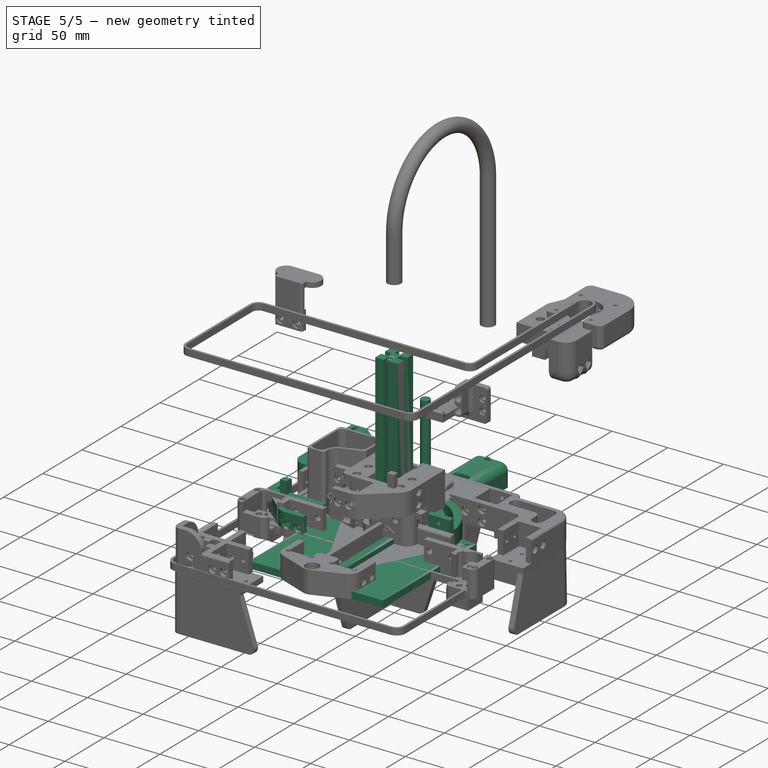
[diagram: stage 5 of 5 — iso view after this stage's code; geometry added in this stage tinted green]
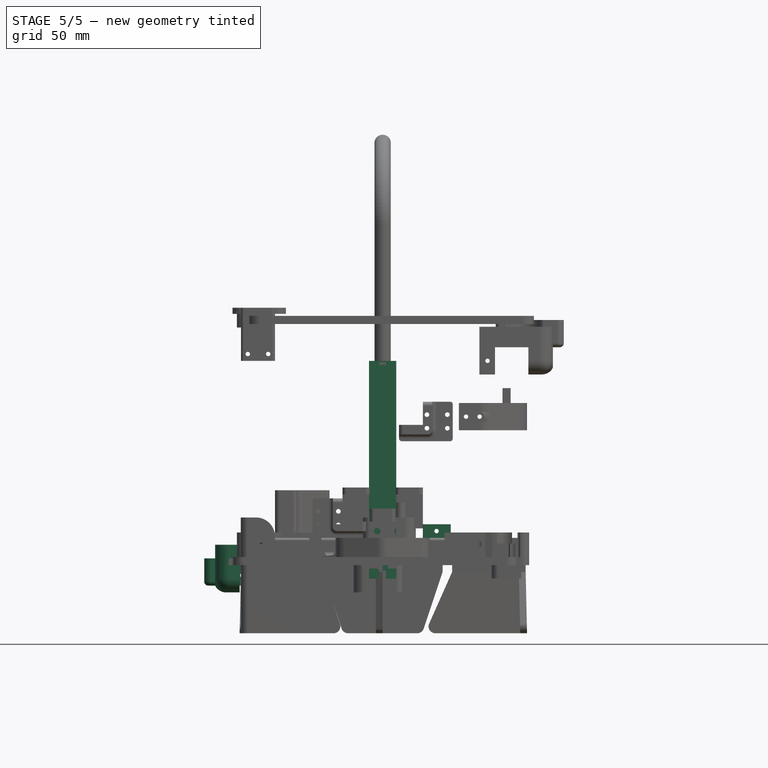
[diagram: stage 5 of 5 — front view after this stage's code; geometry added in this stage tinted green]
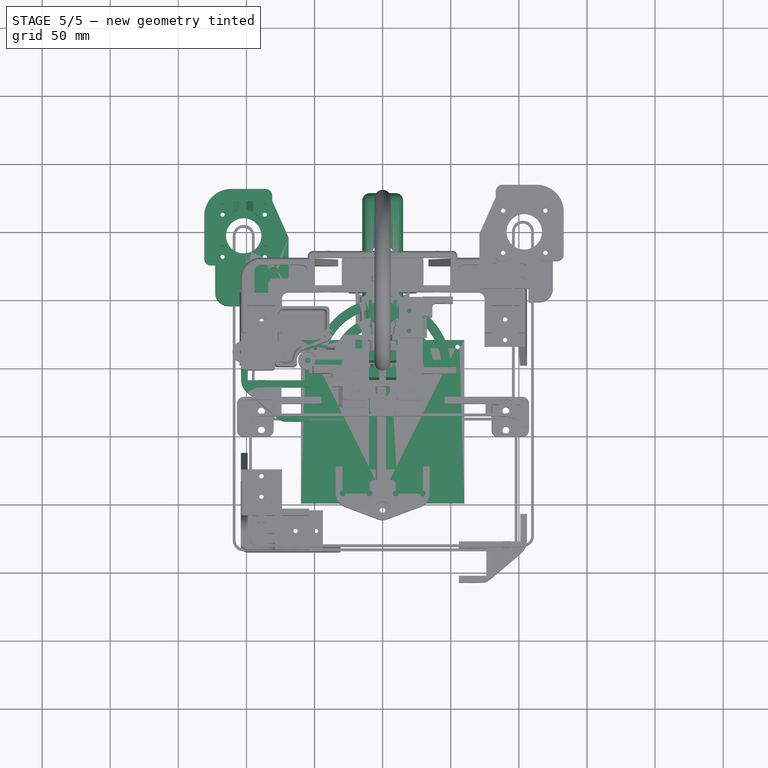
[diagram: stage 5 of 5 — top view after this stage's code; geometry added in this stage tinted green]
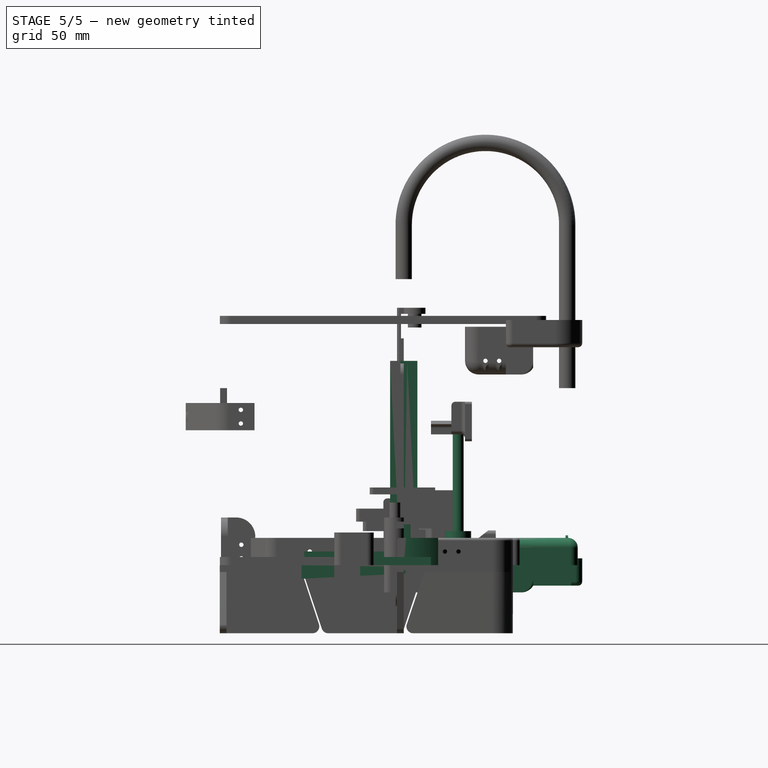
[diagram: stage 5 of 5 — right view after this stage's code; geometry added in this stage tinted green]
FEATURE [Sketcher::SketchObject] Sketch025
  ArcFitTolerance = 0
  AttachmentSupport = -> [XY_Plane003]
  FullyConstrained = true
  MakeInternals = false
  MapMode = 5
  sketch-geometry (1):
    g0: Circle CenterX=0 CenterY=40 CenterZ=0 NormalX=0 NormalY=0 NormalZ=1 AngleXU=0 Radius=4
  constraints (3):
    c: PointOnObject(g0,g-2)
    c: Radius(g0) = 4
    c: DistanceY(g-1,g0) = 40
FEATURE [PartDesign::Pad] Pad004
  Direction = (0,0,1)
  Length = 100
  Length2 = 100
  Profile = -> Sketch025
  Suppressed = false
  Type = 0
FEATURE [PartDesign::Body] Body003  label="leadscrew"
  AllowCompound = false
  Group = -> [Sketch025,Pad004]
  Origin = -> Origin003
  Placement = pos=(0,0,24) rot=(0,0,1;0rad)
  Tip = -> Pad004
FEATURE [Part::Feature] Solid  label="F695"
  Placement = pos=(0,0,0) rot=(1,0,0;1.5708rad)
  shape: bbox 15 x 15 x 4 mm, 22 faces (baked)
FEATURE [Part::Feature] Solid001  label="F695_2"
  Placement = pos=(0,0,8) rot=(-1,0,0;1.5708rad)
  shape: bbox 15 x 15 x 4 mm, 22 faces (baked)
FEATURE [App::LinkGroup] LinkGroup  label="bearing"
  ElementList = -> [Solid001,Solid]
  LinkMode = 0
  Placement = pos=(-91,-115,161) rot=(0,0,1;0rad)
FEATURE [Part::Feature] Feature  label="GT2_pulley"
  Placement = pos=(-98.5,111.5,151) rot=(1,0,0;1.5708rad)
  shape: bbox 16.24 x 16.24 x 16 mm, 270 faces, 3 solids (baked)
FEATURE [Part::Feature] Feature001  label="GT2_pulley001"
  Placement = pos=(-98.5,111.5,151) rot=(1,0,0;1.5708rad)
  shape: bbox 16.24 x 16.24 x 16 mm, 270 faces, 3 solids (baked)
FEATURE [App::LinkGroup] LinkGroup001  label="B_motor"
  ElementList = -> [Feature001]
  LinkMode = 0
  Placement = pos=(194,0,15) rot=(0,0,1;0rad)
FEATURE [App::LinkGroup] LinkGroup002  label="A_motor"
  ElementList = -> [Feature]
  LinkMode = 0
  Placement = pos=(-12,0,5) rot=(0,0,1;0rad)
FEATURE [Part::Feature] Solid004  label="F696"
  Placement = pos=(0,0,0) rot=(1,0,0;1.5708rad)
  shape: bbox 15 x 15 x 4 mm, 22 faces (baked)
FEATURE [Part::Feature] Solid005  label="F695_003"
  Placement = pos=(0,0,8) rot=(-1,0,0;1.5708rad)
  shape: bbox 15 x 15 x 4 mm, 22 faces (baked)
FEATURE [App::LinkGroup] LinkGroup003  label="bearing001"
  ElementList = -> [Solid005,Solid004]
  LinkMode = 0
  Placement = pos=(-78,-115,171) rot=(0,0,1;0rad)
FEATURE [App::LinkGroup] LinkGroup004  label="bearing_stack"
  ElementList = -> [LinkGroup,LinkGroup003]
  LinkMode = 0
  Placement = pos=(-11,-12,5) rot=(0,0,1;0rad)
FEATURE [Part::Feature] Solid006  label="F695_004"
  Placement = pos=(0,0,8) rot=(-1,0,0;1.5708rad)
  shape: bbox 15 x 15 x 4 mm, 22 faces (baked)
FEATURE [Part::Feature] Solid007  label="F695_005"
  Placement = pos=(0,0,8) rot=(-1,0,0;1.5708rad)
  shape: bbox 15 x 15 x 4 mm, 22 faces (baked)
FEATURE [Part::Feature] Solid008  label="F697"
  Placement = pos=(0,0,0) rot=(1,0,0;1.5708rad)
  shape: bbox 15 x 15 x 4 mm, 22 faces (baked)
FEATURE [Part::Feature] Solid009  label="F698"
  Placement = pos=(0,0,0) rot=(1,0,0;1.5708rad)
  shape: bbox 15 x 15 x 4 mm, 22 faces (baked)
FEATURE [App::LinkGroup] LinkGroup005  label="bearing002"
  ElementList = -> [Solid006,Solid008]
  LinkMode = 0
  Placement = pos=(-90,-108,161) rot=(0,0,1;0rad)
FEATURE [App::LinkGroup] LinkGroup006  label="bearing003"
  ElementList = -> [Solid007,Solid009]
  LinkMode = 0
  Placement = pos=(-90,-122,171) rot=(0,0,1;0rad)
FEATURE [App::LinkGroup] LinkGroup007  label="bearing_stack001"
  ElementList = -> [LinkGroup005,LinkGroup006]
  LinkMode = 0
  Placement = pos=(1,76,5) rot=(0,0,1;0rad)
FEATURE [Sketcher::SketchObject] Sketch080
  ArcFitTolerance = 0
  AttachmentSupport = -> [XY_Plane011]
  FullyConstrained = true
  MakeInternals = false
  MapMode = 5
  sketch-geometry (7):
    g0: LineSegment StartX=-60 StartY=20 StartZ=0 EndX=60 EndY=20 EndZ=0
    g1: LineSegment StartX=60 StartY=20 StartZ=0 EndX=60 EndY=-100 EndZ=0
    g2: LineSegment StartX=60 StartY=-100 StartZ=0 EndX=-60 EndY=-100 EndZ=0
    g3: LineSegment StartX=-60 StartY=-100 StartZ=0 EndX=-60 EndY=20 EndZ=0
    g4: Circle CenterX=-55 CenterY=15 CenterZ=0 NormalX=0 NormalY=0 NormalZ=1 AngleXU=0 Radius=1.65
    g5: Circle CenterX=55 CenterY=15 CenterZ=0 NormalX=0 NormalY=0 NormalZ=1 AngleXU=0 Radius=1.65
    g6: Circle CenterX=0 CenterY=-95 CenterZ=0 NormalX=0 NormalY=0 NormalZ=1 AngleXU=0 Radius=1.65
  constraints (20):
    c: Coincident(g0,g1)
    c: Coincident(g1,g2)
    c: Coincident(g2,g3)
    c: Coincident(g3,g0)
    c: Horizontal(g0)
    c: Vertical(g1)
    c: Vertical(g3)
    c: Equal(g0,g3)
    c: Symmetric(g2,g1,g-2)
    c: DistanceY(g3,g3) = 120
    c: DistanceY(g-1,g0) = 20
    c: PointOnObject(g6,g-2)
    c: DistanceY(g2,g6) = 5
    c: DistanceY(g4,g0) = 5
    c: DistanceX(g0,g4) = 5
    c: DistanceY(g5,g0) = 5
    c: DistanceX(g5,g0) = 5
    c: Equal(g4,g5)
    c: Equal(g5,g6)
    c: Radius(g6) = 1.65
FEATURE [PartDesign::Pad] Pad028
  Direction = (0,0,1)
  Length = 6
  Length2 = 100
  Profile = -> Sketch080
  Suppressed = false
  Type = 0
FEATURE [Part::Feature] Solid015
  shape: bbox 14 x 4.814 x 4 mm, 29 faces (baked)
FEATURE [Part::Feature] Solid016
  shape: bbox 13 x 10.5 x 5.81 mm, 257 faces (baked)
FEATURE [Part::Compound2] Compound003  label="Limit_Switch002"
  Links = -> [Solid015,Solid016]
  Placement = pos=(1.7e-15,62,17) rot=(0,0.707107,0.707107;3.14159rad)
FEATURE [Sketcher::SketchObject] Sketch179
  ArcFitTolerance = 0
  AttachmentSupport = -> [XY_Plane020]
  FullyConstrained = true
  MakeInternals = false
  MapMode = 5
  expr: Constraints[28] = Spreadsheet.beam
  sketch-geometry (11):
    g0: LineSegment StartX=-99 StartY=10.4 StartZ=0 EndX=-104 EndY=10.4 EndZ=0
    g1: LineSegment StartX=-104 StartY=10.4 StartZ=0 EndX=-104 EndY=-14.6 EndZ=0
    g2: LineSegment StartX=-104 StartY=-14.6 StartZ=0 EndX=-74.2 EndY=-40 EndZ=0
    g3: LineSegment StartX=-74.2 StartY=-40 StartZ=0 EndX=-54 EndY=-40 EndZ=0
    g4: LineSegment StartX=-54 StartY=-40 StartZ=0 EndX=-54 EndY=-35 EndZ=0
    g5: LineSegment StartX=-54 StartY=-35 StartZ=0 EndX=-74.2 EndY=-35 EndZ=0
    g6: LineSegment StartX=-74.2 StartY=-35 StartZ=0 EndX=-74.2 EndY=-14.8 EndZ=0
    g7: LineSegment StartX=-74.2 StartY=-14.8 StartZ=0 EndX=-54 EndY=-14.8 EndZ=0
    g8: LineSegment StartX=-54 StartY=-14.8 StartZ=0 EndX=-54 EndY=-9.8 EndZ=0
    g9: LineSegment StartX=-99 StartY=-9.8 StartZ=0 EndX=-99 EndY=10.4 EndZ=0
    g10: LineSegment StartX=-54 StartY=-9.8 StartZ=0 EndX=-99 EndY=-9.8 EndZ=0
  constraints (33):
    c: Horizontal(g0)
    c: Coincident(g0,g1)
    c: Vertical(g1)
    c: Coincident(g1,g2)
    c: Coincident(g2,g3)
    c: Horizontal(g3)
    c: Coincident(g3,g4)
    c: Vertical(g4)
    c: Coincident(g4,g5)
    c: Horizontal(g5)
    c: Coincident(g5,g6)
    c: Vertical(g6)
    c: Coincident(g6,g7)
    c: Horizontal(g7)
    c: Coincident(g7,g8)
    c: Coincident(g9,g0)
    c: Vertical(g9)
    c: Vertical(g8)
    c: Equal(g6,g9)
    c: Equal(g4,g8)
    c: Equal(g8,g0)
    c: Equal(g9,g7)
    c: Equal(g7,g5)
    c: Equal(g3,g5)
    c: Coincident(g10,g8)
    c: Coincident(g10,g9)
    c: Horizontal(g10)
    c: DistanceX(g0,g0) = 5
    c: DistanceY(g6,g6) = 20.2
    c: DistanceX(g10,g10) = 45
    c: DistanceX(g0,g-1) = 104
    c: DistanceY(g3,g-1) = 40
    c: DistanceY(g1,g1) = 25
FEATURE [PartDesign::Pad] Pad074
  Direction = (0,0,1)
  Length = 20
  Length2 = 100
  Profile = -> Sketch179
  Suppressed = false
  Type = 0
FEATURE [Sketcher::SketchObject] Sketch197
  ArcFitTolerance = 0
  AttachmentSupport = -> [Pad074]
  ExternalGeometry = -> [Pad074]
  FullyConstrained = true
  MakeInternals = false
  MapMode = 5
  Placement = pos=(-104,0,0) rot=(0.57735,-0.57735,-0.57735;2.0944rad)
  expr: Constraints[5] = Spreadsheet.screw
  sketch-geometry (2):
    g0: Circle CenterX=-0.4 CenterY=15 CenterZ=0 NormalX=0 NormalY=0 NormalZ=1 AngleXU=0 Radius=1.6
    g1: Circle CenterX=-0.4 CenterY=5 CenterZ=0 NormalX=0 NormalY=0 NormalZ=1 AngleXU=0 Radius=1.6
  constraints (6):
    c: DistanceY(g1,g0) = 10
    c: DistanceX(g1,g0) = 0
    c: DistanceX(g-3,g0) = 10
    c: DistanceY(g0,g-3) = 5
    c: Equal(g0,g1)
    c: Radius(g0) = 1.6
FEATURE [PartDesign::Pocket] Pocket103
  BaseFeature = -> Pad074
  Direction = (1,0,0)
  Length = 5
  Length2 = 100
  Profile = -> Sketch197
  Suppressed = false
  Type = 0
FEATURE [Sketcher::SketchObject] Sketch198
  ArcFitTolerance = 0
  AttachmentSupport = -> [Pocket103]
  ExternalGeometry = -> [Pocket103]
  FullyConstrained = true
  MakeInternals = false
  MapMode = 5
  Placement = pos=(0,-40,0) rot=(1,0,0;1.5708rad)
  expr: Constraints[5] = Spreadsheet.screw
  sketch-geometry (2):
    g0: Circle CenterX=-59.2 CenterY=10 CenterZ=0 NormalX=0 NormalY=0 NormalZ=1 AngleXU=0 Radius=1.6
    g1: Circle CenterX=-69.2 CenterY=10 CenterZ=0 NormalX=0 NormalY=0 NormalZ=1 AngleXU=0 Radius=1.6
  constraints (6):
    c: DistanceY(g1,g0) = 0
    c: DistanceY(g0,g-3) = 10
    c: DistanceX(g1,g0) = 10
    c: DistanceX(g-3,g1) = 5
    c: Equal(g1,g0)
    c: Radius(g1) = 1.6
FEATURE [PartDesign::Pocket] Pocket104
  BaseFeature = -> Pocket103
  Direction = (0,1,-2e-16)
  Length = 30
  Length2 = 100
  Profile = -> Sketch198
  Suppressed = false
  Type = 0
FEATURE [Sketcher::SketchObject] Sketch199
  ArcFitTolerance = 0
  AttachmentSupport = -> [Pocket104]
  ExternalGeometry = -> [Pocket104]
  FullyConstrained = true
  MakeInternals = false
  MapMode = 5
  Placement = pos=(-104,0,0) rot=(0.57735,-0.57735,-0.57735;2.0944rad)
  expr: Constraints[3] = Spreadsheet.countersink
  sketch-geometry (2):
    g0: Circle CenterX=-0.4 CenterY=15 CenterZ=0 NormalX=0 NormalY=0 NormalZ=1 AngleXU=0 Radius=3.5
    g1: Circle CenterX=-0.4 CenterY=5 CenterZ=0 NormalX=0 NormalY=0 NormalZ=1 AngleXU=0 Radius=3.5
  constraints (4):
    c: Coincident(g0,g-3)
    c: Coincident(g1,g-4)
    c: Equal(g0,g1)
    c: Radius(g0) = 3.5
FEATURE [PartDesign::Pocket] Pocket105
  BaseFeature = -> Pocket104
  Direction = (1,0,0)
  Length = 3
  Length2 = 100
  Profile = -> Sketch199
  Suppressed = false
  Type = 0
FEATURE [Sketcher::SketchObject] Sketch200
  ArcFitTolerance = 0
  AttachmentSupport = -> [Pocket105]
  ExternalGeometry = -> [Pocket105]
  FullyConstrained = true
  MakeInternals = false
  MapMode = 5
  Placement = pos=(0,-40,0) rot=(1,0,0;1.5708rad)
  expr: Constraints[1] = Spreadsheet.countersink
  sketch-geometry (2):
    g0: Circle CenterX=-69.2 CenterY=10 CenterZ=0 NormalX=0 NormalY=0 NormalZ=1 AngleXU=0 Radius=3.5
    g1: Circle CenterX=-59.2 CenterY=10 CenterZ=0 NormalX=0 NormalY=0 NormalZ=1 AngleXU=0 Radius=3.5
  constraints (4):
    c: Equal(g1,g0)
    c: Radius(g0) = 3.5
    c: Coincident(g-5,g0)
    c: Coincident(g-6,g1)
FEATURE [PartDesign::Pocket] Pocket106
  BaseFeature = -> Pocket105
  Direction = (0,1,-2e-16)
  Length = 3
  Length2 = 100
  Profile = -> Sketch200
  Suppressed = false
  Type = 0
FEATURE [Sketcher::SketchObject] Sketch201
  ArcFitTolerance = 0
  AttachmentSupport = -> [Pocket106]
  ExternalGeometry = -> [Pocket106]
  FullyConstrained = true
  MakeInternals = false
  MapMode = 5
  Placement = pos=(0,-9.8,0) rot=(0,0.707107,0.707107;3.14159rad)
  expr: Constraints[1] = Spreadsheet.countersink
  sketch-geometry (2):
    g0: Circle CenterX=59 CenterY=10 CenterZ=0 NormalX=0 NormalY=0 NormalZ=1 AngleXU=0 Radius=3.5
    g1: Circle CenterX=69 CenterY=10 CenterZ=0 NormalX=0 NormalY=0 NormalZ=1 AngleXU=0 Radius=3.5
  constraints (6):
    c: Equal(g1,g0)
    c: Radius(g0) = 3.5
    c: DistanceX(g-5,g0) = 5
    c: DistanceX(g0,g1) = 10
    c: DistanceY(g0,g-5) = 10
    c: DistanceY(g0,g1) = 0
FEATURE [PartDesign::Pocket] Pocket107
  BaseFeature = -> Pocket106
  Direction = (0,-1,2e-16)
  Length = 3
  Length2 = 100
  Profile = -> Sketch201
  Suppressed = false
  Type = 0
FEATURE [Sketcher::SketchObject] Sketch202
  ArcFitTolerance = 0
  AttachmentSupport = -> [Pocket107]
  ExternalGeometry = -> [Pocket107]
  FullyConstrained = true
  MakeInternals = false
  MapMode = 5
  Placement = pos=(0,0,20) rot=(0,0,1;0rad)
  sketch-geometry (4):
    g0: LineSegment StartX=-92 StartY=-9.8 StartZ=0 EndX=-86 EndY=-9.8 EndZ=0
    g1: LineSegment StartX=-86 StartY=-9.8 StartZ=0 EndX=-86 EndY=-14.8 EndZ=0
    g2: LineSegment StartX=-86 StartY=-14.8 StartZ=0 EndX=-92 EndY=-14.8 EndZ=0
    g3: LineSegment StartX=-92 StartY=-14.8 StartZ=0 EndX=-92 EndY=-9.8 EndZ=0
  constraints (12):
    c: Coincident(g0,g1)
    c: Coincident(g1,g2)
    c: Coincident(g2,g3)
    c: Coincident(g3,g0)
    c: Horizontal(g0)
    c: Horizontal(g2)
    c: Vertical(g1)
    c: Vertical(g3)
    c: PointOnObject(g0,g-3)
    c: DistanceX(g0,g0) = 6
    c: DistanceY(g3,g3) = 5
    c: DistanceX(g-3,g0) = 7
FEATURE [PartDesign::Pad] Pad086
  BaseFeature = -> Pocket107
  Direction = (0,0,1)
  Length = 11
  Length2 = 100
  Profile = -> Sketch202
  Suppressed = false
  Type = 0
FEATURE [PartDesign::Fillet] Fillet023
  Base = -> Pad086 [Edge12,Edge43]
  BaseFeature = -> Pad086
  Radius = 13
  SupportTransform = false
  Suppressed = false
  UseAllEdges = false
FEATURE [PartDesign::Body] Body020  label="front_bar_mount_l"
  AllowCompound = false
  Group = -> [Sketch179,Pad074,Sketch197,Pocket103,Sketch198,Pocket104,Sketch199,Pocket105,Sketch200,Pocket106,Sketch201,Pocket107,Sketch202,Pad086,Fillet023]
  Origin = -> Origin020
  Placement = pos=(0,-120,99) rot=(0,0,1;0rad)
  Tip = -> Fillet023
FEATURE [Sketcher::SketchObject] Sketch206
  ArcFitTolerance = 0
  AttachmentSupport = -> [XY_Plane024]
  FullyConstrained = true
  MakeInternals = false
  MapMode = 5
  sketch-geometry (16):
    g0: LineSegment StartX=-50 StartY=6.1e-15 StartZ=0 EndX=-30 EndY=3.7e-15 EndZ=0
    g1: LineSegment StartX=30 StartY=0 StartZ=0 EndX=50 EndY=0 EndZ=0
    g2: ArcOfCircle CenterX=0 CenterY=0 CenterZ=0 NormalX=0 NormalY=0 NormalZ=1 AngleXU=0 Radius=30 StartAngle=1.82348 EndAngle=3.14159
    g3: ArcOfCircle CenterX=0 CenterY=0 CenterZ=0 NormalX=0 NormalY=0 NormalZ=1 AngleXU=0 Radius=30 StartAngle=0 EndAngle=1.31812
    g4: LineSegment StartX=-7.5 StartY=29.0474 StartZ=0 EndX=-7.5 EndY=84.5474 EndZ=0
    g5: LineSegment StartX=7.5 StartY=29.0474 StartZ=0 EndX=7.5 EndY=84.5474 EndZ=0
    g6: ArcOfCircle CenterX=0 CenterY=0 CenterZ=0 NormalX=0 NormalY=0 NormalZ=1 AngleXU=0 Radius=50 StartAngle=1.87549 EndAngle=3.14159
    g7: ArcOfCircle CenterX=0 CenterY=0 CenterZ=0 NormalX=0 NormalY=0 NormalZ=1 AngleXU=0 Radius=50 StartAngle=0 EndAngle=1.2661
    g8: LineSegment StartX=-15 StartY=47.697 StartZ=0 EndX=-15 EndY=122.197 EndZ=0
    g9: LineSegment StartX=15 StartY=47.697 StartZ=0 EndX=15 EndY=122.197 EndZ=0
    g10: LineSegment StartX=-9.5 StartY=127.697 StartZ=0 EndX=9.5 EndY=127.697 EndZ=0
    g11: LineSegment StartX=-3 StartY=89.0474 StartZ=0 EndX=3 EndY=89.0474 EndZ=0
    g12: ArcOfCircle CenterX=-9.5 CenterY=122.197 CenterZ=0 NormalX=0 NormalY=0 NormalZ=1 AngleXU=0 Radius=5.5 StartAngle=1.5708 EndAngle=3.14159
    g13: ArcOfCircle CenterX=9.5 CenterY=122.197 CenterZ=0 NormalX=0 NormalY=0 NormalZ=1 AngleXU=0 Radius=5.5 StartAngle=2e-16 EndAngle=1.5708
    g14: ArcOfCircle CenterX=-3 CenterY=84.5474 CenterZ=0 NormalX=0 NormalY=0 NormalZ=1 AngleXU=0 Radius=4.5 StartAngle=1.5708 EndAngle=3.14159
    g15: ArcOfCircle CenterX=3 CenterY=84.5474 CenterZ=0 NormalX=0 NormalY=0 NormalZ=1 AngleXU=0 Radius=4.5 StartAngle=1.4e-15 EndAngle=1.5708
  constraints (42):
    c: PointOnObject(g0,g-1)
    c: PointOnObject(g0,g-1)
    c: Coincident(g2,g-1)
    c: Coincident(g2,g0)
    c: Coincident(g3,g2)
    c: Coincident(g3,g1)
    c: Coincident(g4,g2)
    c: Vertical(g4)
    c: Coincident(g5,g3)
    c: Vertical(g5)
    c: Coincident(g6,g2)
    c: Coincident(g6,g0)
    c: Coincident(g7,g2)
    c: Coincident(g7,g1)
    c: Coincident(g8,g6)
    c: Vertical(g8)
    c: Coincident(g9,g7)
    c: Vertical(g9)
    c: Equal(g8,g9)
    c: Equal(g4,g5)
    c: Symmetric(g0,g1,g-2)
    c: Symmetric(g0,g1,g-2)
    c: DistanceX(g0,g2) = 30
    c: DistanceX(g0,g2) = 50
    c: Horizontal(g10)
    c: Horizontal(g11)
    c: Tangent(g10,g12) = 1.5708
    c: Tangent(g8,g12) = 1.5708
    c: Tangent(g10,g13) = 1.5708
    c: Tangent(g9,g13) = -1.5708
    c: Tangent(g11,g14) = 1.5708
    c: Tangent(g4,g14) = 1.5708
    c: Tangent(g11,g15) = 1.5708
    c: Tangent(g5,g15) = -1.5708
    c: Equal(g12,g13)
    c: Equal(g14,g15)
    c: DistanceX(g8,g9) = 30
    c: DistanceX(g4,g5) = 15
    c: DistanceY(g6,g10) = 80
    c: DistanceY(g2,g11) = 60
    c: Radius(g14) = 4.5
    c: Radius(g12) = 5.5
FEATURE [PartDesign::Pad] Pad089
  Direction = (0,0,1)
  Length = 20
  Length2 = 100
  Profile = -> Sketch206
  Suppressed = false
  Type = 0
FEATURE [Sketcher::SketchObject] Sketch207
  ArcFitTolerance = 0
  AttachmentSupport = -> [Pad089]
  ExternalGeometry = -> [Pad089]
  FullyConstrained = true
  MakeInternals = false
  MapMode = 5
  Placement = pos=(0,0,20) rot=(0,0,1;0rad)
  sketch-geometry (4):
    g0: LineSegment StartX=-50 StartY=6.1e-15 StartZ=0 EndX=-30 EndY=3.7e-15 EndZ=0
    g1: ArcOfCircle CenterX=0 CenterY=0 CenterZ=0 NormalX=0 NormalY=0 NormalZ=1 AngleXU=0 Radius=30 StartAngle=2.97414 EndAngle=3.14159
    g2: ArcOfCircle CenterX=0 CenterY=0 CenterZ=0 NormalX=0 NormalY=0 NormalZ=1 AngleXU=0 Radius=50 StartAngle=3.04143 EndAngle=3.14159
    g3: LineSegment StartX=-49.7494 StartY=5 StartZ=0 EndX=-29.5804 EndY=5 EndZ=0
  constraints (10):
    c: Coincident(g0,g-3)
    c: Coincident(g0,g-4)
    c: Coincident(g1,g-1)
    c: Coincident(g1,g0)
    c: Coincident(g2,g1)
    c: Coincident(g2,g0)
    c: Coincident(g3,g2)
    c: Coincident(g3,g1)
    c: Horizontal(g3)
    c: DistanceY(g0,g2) = 5
FEATURE [PartDesign::Pad] Pad090
  BaseFeature = -> Pad089
  Direction = (0,0,1)
  Length = 10
  Length2 = 100
  Profile = -> Sketch207
  Suppressed = false
  Type = 0
FEATURE [PartDesign::Mirrored] Mirrored018
  BaseFeature = -> Pad090
  MirrorPlane = -> Sketch207 [V_Axis]
  Originals = -> [Pad090]
  Suppressed = false
  TransformMode = 0
FEATURE [Sketcher::SketchObject] Sketch208
  ArcFitTolerance = 0
  AttachmentSupport = -> [Mirrored018]
  ExternalGeometry = -> [Mirrored018]
  FullyConstrained = true
  MakeInternals = false
  MapMode = 5
  Placement = pos=(0,5,0) rot=(0,0.707107,0.707107;3.14159rad)
  expr: Constraints[2] = Spreadsheet.screw
  sketch-geometry (1):
    g0: Circle CenterX=39.5804 CenterY=25 CenterZ=0 NormalX=0 NormalY=0 NormalZ=1 AngleXU=0 Radius=1.6
  constraints (3):
    c: DistanceX(g-4,g0) = 10
    c: DistanceY(g0,g-3) = 5
    c: Radius(g0) = 1.6
FEATURE [PartDesign::Pocket] Pocket109
  BaseFeature = -> Mirrored018
  Direction = (0,-1,2e-16)
  Length = 5
  Length2 = 100
  Profile = -> Sketch208
  Suppressed = false
  Type = 0
FEATURE [PartDesign::Mirrored] Mirrored019
  BaseFeature = -> Pocket109
  MirrorPlane = -> Sketch208 [V_Axis]
  Originals = -> [Pocket109]
  Suppressed = false
  TransformMode = 0
FEATURE [Sketcher::SketchObject] Sketch209
  ArcFitTolerance = 0
  AttachmentSupport = -> [Mirrored019]
  ExternalGeometry = -> [Mirrored019]
  FullyConstrained = true
  MakeInternals = false
  MapMode = 5
  Placement = pos=(0,5,0) rot=(0,0.707107,0.707107;3.14159rad)
  expr: Constraints[3] = Spreadsheet.countersink
  sketch-geometry (2):
    g0: Circle CenterX=39.5804 CenterY=25 CenterZ=0 NormalX=0 NormalY=0 NormalZ=1 AngleXU=0 Radius=3.5
    g1: Circle CenterX=-39.5804 CenterY=25 CenterZ=0 NormalX=0 NormalY=0 NormalZ=1 AngleXU=0 Radius=3.5
  constraints (4):
    c: Coincident(g0,g-3)
    c: Coincident(g1,g-4)
    c: Equal(g0,g1)
    c: Radius(g0) = 3.5
FEATURE [PartDesign::Pocket] Pocket110
  BaseFeature = -> Mirrored019
  Direction = (0,-1,2e-16)
  Length = 3
  Length2 = 100
  Profile = -> Sketch209
  Suppressed = false
  Type = 0
FEATURE [PartDesign::Fillet] Fillet025
  Base = -> Pocket110 [Edge26]
  BaseFeature = -> Pocket110
  Radius = 7
  SupportTransform = false
  Suppressed = false
  UseAllEdges = false
FEATURE [PartDesign::Fillet] Fillet026
  Base = -> Fillet025 [Edge49,Edge55]
  BaseFeature = -> Fillet025
  Radius = 15
  SupportTransform = false
  Suppressed = false
  UseAllEdges = false
FEATURE [Sketcher::SketchObject] Sketch210
  ArcFitTolerance = 0
  AttachmentSupport = -> [Fillet026]
  ExternalGeometry = -> [Fillet026]
  FullyConstrained = true
  MakeInternals = false
  MapMode = 5
  Placement = pos=(0,0,20) rot=(0,0,1;0rad)
  sketch-geometry (4):
    g0: ArcOfCircle CenterX=0 CenterY=0 CenterZ=0 NormalX=0 NormalY=0 NormalZ=1 AngleXU=0 Radius=37.3363 StartAngle=1.99676 EndAngle=3.00727
    g1: ArcOfCircle CenterX=0 CenterY=0 CenterZ=0 NormalX=0 NormalY=0 NormalZ=1 AngleXU=0 Radius=43.2897 StartAngle=1.93518 EndAngle=3.02583
    g2: LineSegment StartX=-43 StartY=5 StartZ=0 EndX=-37 EndY=5 EndZ=0
    g3: LineSegment StartX=-15.4272 StartY=40.4475 StartZ=0 EndX=-15.4272 EndY=34 EndZ=0
  constraints (12):
    c: Coincident(g0,g-1)
    c: PointOnObject(g0,g-5)
    c: Coincident(g1,g0)
    c: PointOnObject(g1,g-5)
    c: Coincident(g2,g1)
    c: Coincident(g2,g0)
    c: Coincident(g3,g1)
    c: Coincident(g3,g0)
    c: Vertical(g3)
    c: DistanceX(g2,g2) = 6
    c: DistanceX(g0,g0) = 37
    c: DistanceY(g0,g0) = 34
FEATURE [PartDesign::Pocket] Pocket111
  BaseFeature = -> Fillet026
  Direction = (0,0,-1)
  Length = 20
  Length2 = 100
  Profile = -> Sketch210
  Suppressed = false
  Type = 0
FEATURE [PartDesign::Mirrored] Mirrored020
  BaseFeature = -> Pocket111
  MirrorPlane = -> Sketch210 [V_Axis]
  Originals = -> [Pocket111]
  Suppressed = false
  TransformMode = 0
FEATURE [PartDesign::Fillet] Fillet027
  Base = -> Mirrored020 [Edge75,Edge81]
  BaseFeature = -> Mirrored020
  Radius = 7
  SupportTransform = false
  Suppressed = false
  UseAllEdges = false
FEATURE [Sketcher::SketchObject] Sketch211
  ArcFitTolerance = 0
  AttachmentSupport = -> [Fillet027]
  ExternalGeometry = -> [Fillet027]
  FullyConstrained = true
  MakeInternals = false
  MapMode = 5
  Placement = pos=(0,0,20) rot=(0,0,1;0rad)
  sketch-geometry (4):
    g0: LineSegment StartX=-2.5 StartY=120.697 StartZ=0 EndX=2.5 EndY=120.697 EndZ=0
    g1: LineSegment StartX=2.5 StartY=120.697 StartZ=0 EndX=2.5 EndY=118.697 EndZ=0
    g2: LineSegment StartX=2.5 StartY=118.697 StartZ=0 EndX=-2.5 EndY=118.697 EndZ=0
    g3: LineSegment StartX=-2.5 StartY=118.697 StartZ=0 EndX=-2.5 EndY=120.697 EndZ=0
  constraints (11):
    c: Coincident(g0,g1)
    c: Coincident(g1,g2)
    c: Coincident(g2,g3)
    c: Coincident(g3,g0)
    c: Horizontal(g2)
    c: Vertical(g1)
    c: Vertical(g3)
    c: PointOnObject(g0,g-3)
    c: Symmetric(g0,g0,g-2)
    c: DistanceX(g0,g0) = 5
    c: DistanceY(g3,g3) = 2
FEATURE [PartDesign::Pad] Pad091
  BaseFeature = -> Fillet027
  Direction = (0,0,1)
  Length = 2
  Length2 = 100
  Profile = -> Sketch211
  Suppressed = false
  Type = 0
FEATURE [PartDesign::Fillet] Fillet028
  Base = -> Pad091 [Edge122,Edge118]
  BaseFeature = -> Pad091
  Radius = 1.9
  SupportTransform = false
  Suppressed = false
  UseAllEdges = false
FEATURE [Sketcher::SketchObject] Sketch251
  ArcFitTolerance = 0
  AttachmentSupport = -> [XY_Plane030]
  FullyConstrained = true
  MakeInternals = false
  MapMode = 5
  expr: Constraints[26] = Spreadsheet.screw
  sketch-geometry (13):
    g0: LineSegment StartX=-69 StartY=75 StartZ=0 EndX=-123 EndY=75 EndZ=0
    g1: LineSegment StartX=-105 StartY=55 StartZ=0 EndX=-69 EndY=55 EndZ=0
    g2: LineSegment StartX=-69 StartY=55 StartZ=0 EndX=-69 EndY=75 EndZ=0
    g3: LineSegment [constr] StartX=-100 StartY=70 StartZ=0 EndX=-80 EndY=70 EndZ=0
    g4: LineSegment [constr] StartX=-80 StartY=70 StartZ=0 EndX=-80 EndY=60 EndZ=0
    g5: LineSegment [constr] StartX=-80 StartY=60 StartZ=0 EndX=-100 EndY=60 EndZ=0
    g6: LineSegment [constr] StartX=-100 StartY=60 StartZ=0 EndX=-100 EndY=70 EndZ=0
    g7: Circle CenterX=-100 CenterY=70 CenterZ=0 NormalX=0 NormalY=0 NormalZ=1 AngleXU=0 Radius=1.6
    g8: Circle CenterX=-100 CenterY=60 CenterZ=0 NormalX=0 NormalY=0 NormalZ=1 AngleXU=0 Radius=1.6
    g9: Circle CenterX=-80 CenterY=70 CenterZ=0 NormalX=0 NormalY=0 NormalZ=1 AngleXU=0 Radius=1.6
    g10: LineSegment StartX=-105 StartY=55 StartZ=0 EndX=-105 EndY=45 EndZ=0
    g11: LineSegment StartX=-123 StartY=75 StartZ=0 EndX=-123 EndY=45 EndZ=0
    g12: LineSegment StartX=-105 StartY=45 StartZ=0 EndX=-123 EndY=45 EndZ=0
  constraints (36):
    c: Coincident(g1,g2)
    c: Coincident(g2,g0)
    c: Horizontal(g0)
    c: Horizontal(g1)
    c: Vertical(g2)
    c: DistanceX(g0,g0) = 54
    c: DistanceX(g1,g-1) = 69
    c: DistanceY(g-1,g1) = 55
    c: DistanceY(g2,g2) = 20
    c: Coincident(g3,g4)
    c: Coincident(g4,g5)
    c: Coincident(g5,g6)
    c: Coincident(g6,g3)
    c: Horizontal(g3)
    c: Horizontal(g5)
    c: Vertical(g4)
    c: Vertical(g6)
    c: DistanceY(g3,g0) = 5
    c: DistanceX(g3,g0) = 11
    c: DistanceX(g3,g3) = 20
    c: DistanceY(g4,g4) = 10
    c: Coincident(g7,g3)
    c: Coincident(g8,g5)
    c: Coincident(g9,g3)
    c: Equal(g9,g7)
    c: Equal(g7,g8)
    c: Radius(g8) = 1.6
    c: Vertical(g10)
    c: Coincident(g1,g10)
    c: DistanceX(g1,g1) = 36
    c: Coincident(g11,g0)
    c: Vertical(g11)
    c: Coincident(g12,g10)
    c: Coincident(g12,g11)
    c: Horizontal(g12)
    c: DistanceY(g10,g10) = 10
FEATURE [PartDesign::Pad] Pad108  label="base006"
  Direction = (0,0,1)
  Length = 5
  Length2 = 10
  Profile = -> Sketch251
  ReferenceAxis = -> Sketch251 [N_Axis]
  Suppressed = false
  Type = 0
FEATURE [Sketcher::SketchObject] Sketch253
  ArcFitTolerance = 0
  AttachmentSupport = -> [Pad108]
  ExternalGeometry = -> [Pad108]
  FullyConstrained = true
  MakeInternals = false
  MapMode = 5
  Placement = pos=(0,0,0) rot=(1,0,0;3.14159rad)
  sketch-geometry (4):
    g0: LineSegment StartX=-105 StartY=-45 StartZ=0 EndX=-123 EndY=-45 EndZ=0
    g1: LineSegment StartX=-123 StartY=-45 StartZ=0 EndX=-123 EndY=-75 EndZ=0
    g2: LineSegment StartX=-123 StartY=-75 StartZ=0 EndX=-105 EndY=-75 EndZ=0
    g3: LineSegment StartX=-105 StartY=-75 StartZ=0 EndX=-105 EndY=-45 EndZ=0
  constraints (10):
    c: Coincident(g0,g1)
    c: Coincident(g1,g2)
    c: Coincident(g2,g3)
    c: Coincident(g3,g0)
    c: Horizontal(g0)
    c: Horizontal(g2)
    c: Vertical(g1)
    c: Vertical(g3)
    c: Coincident(g1,g-4)
    c: Coincident(g0,g-3)
FEATURE [PartDesign::Pad] Pad109  label="support_side"
  BaseFeature = -> Pad108
  Direction = (0,0,-1)
  Length = 20
  Length2 = 10
  Profile = -> Sketch253
  ReferenceAxis = -> Sketch253 [N_Axis]
  Suppressed = false
  Type = 0
FEATURE [Sketcher::SketchObject] Sketch254
  ArcFitTolerance = 0
  AttachmentSupport = -> [Pad109]
  ExternalGeometry = -> [Pad109]
  FullyConstrained = true
  MakeInternals = false
  MapMode = 5
  Placement = pos=(-123,0,0) rot=(0.57735,-0.57735,-0.57735;2.0944rad)
  expr: Constraints[28] = Spreadsheet.countersink
  sketch-geometry (11):
    g0: LineSegment [constr] StartX=-75 StartY=0 StartZ=0 EndX=-70 EndY=-10 EndZ=0
    g1: LineSegment [constr] StartX=-70 StartY=-10 StartZ=0 EndX=-75 EndY=-20 EndZ=0
    g2: LineSegment [constr] StartX=-70 StartY=-10 StartZ=0 EndX=-60 EndY=-10 EndZ=0
    g3: ArcOfCircle CenterX=-60 CenterY=-10 CenterZ=0 NormalX=0 NormalY=0 NormalZ=1 AngleXU=0 Radius=3.5 StartAngle=1e-16 EndAngle=3.14159
    g4: ArcOfCircle CenterX=-70 CenterY=-10 CenterZ=0 NormalX=0 NormalY=0 NormalZ=1 AngleXU=0 Radius=3.5 StartAngle=1e-15 EndAngle=3.14159
    g5: LineSegment [constr] StartX=-60 StartY=-10 StartZ=0 EndX=-60 EndY=-15 EndZ=0
    g6: LineSegment [constr] StartX=-70 StartY=-10 StartZ=0 EndX=-70 EndY=-15 EndZ=0
    g7: LineSegment StartX=-73.5 StartY=-10 StartZ=0 EndX=-70 EndY=-15 EndZ=0
    g8: LineSegment StartX=-70 StartY=-15 StartZ=0 EndX=-66.5 EndY=-10 EndZ=0
    g9: LineSegment StartX=-63.5 StartY=-10 StartZ=0 EndX=-60 EndY=-15 EndZ=0
    g10: LineSegment StartX=-60 StartY=-15 StartZ=0 EndX=-56.5 EndY=-10 EndZ=0
  constraints (30):
    c: Coincident(g0,g-3)
    c: Coincident(g1,g0)
    c: Coincident(g1,g-4)
    c: Coincident(g2,g0)
    c: Horizontal(g2)
    c: DistanceX(g2,g2) = 10
    c: DistanceX(g0,g0) = 5
    c: Equal(g0,g1)
    c: Coincident(g3,g2)
    c: PointOnObject(g3,g2)
    c: Coincident(g4,g0)
    c: PointOnObject(g4,g2)
    c: Equal(g4,g3)
    c: Angle(g3) = 3.14159
    c: Angle(g4) = 3.14159
    c: Coincident(g5,g3)
    c: Vertical(g5)
    c: Coincident(g6,g4)
    c: Vertical(g6)
    c: Equal(g6,g5)
    c: DistanceY(g6,g6) = 5
    c: Coincident(g7,g4)
    c: Coincident(g7,g6)
    c: Coincident(g8,g7)
    c: Coincident(g8,g4)
    c: Coincident(g9,g3)
    c: Coincident(g9,g5)
    c: Coincident(g10,g3)
    c: Radius(g3) = 3.5
    c: Coincident(g10,g9)
FEATURE [PartDesign::Pocket] Pocket133  label="teardrops_side"
  BaseFeature = -> Pad109
  Direction = (1,0,0)
  Length = 15
  Length2 = 5
  Profile = -> Sketch254
  ReferenceAxis = -> Sketch254 [N_Axis]
  Suppressed = false
  Type = 0
FEATURE [Sketcher::SketchObject] Sketch255
  ArcFitTolerance = 0
  AttachmentSupport = -> [Pocket133]
  ExternalGeometry = -> [Pocket133]
  FullyConstrained = true
  MakeInternals = false
  MapMode = 5
  Placement = pos=(0,75,0) rot=(0,0.707107,0.707107;3.14159rad)
  expr: Constraints[13] = Spreadsheet.screw
  sketch-geometry (5):
    g0: LineSegment StartX=69 StartY=5 StartZ=0 EndX=80.5 EndY=5 EndZ=0
    g1: LineSegment StartX=80.5 StartY=5 StartZ=0 EndX=80.5 EndY=-20 EndZ=0
    g2: LineSegment StartX=80.5 StartY=-20 StartZ=0 EndX=69 EndY=-20 EndZ=0
    g3: LineSegment StartX=69 StartY=-20 StartZ=0 EndX=69 EndY=5 EndZ=0
    g4: Circle CenterX=75 CenterY=-10 CenterZ=0 NormalX=0 NormalY=0 NormalZ=1 AngleXU=0 Radius=1.6
  constraints (14):
    c: Coincident(g0,g1)
    c: Coincident(g1,g2)
    c: Coincident(g2,g3)
    c: Coincident(g3,g0)
    c: Horizontal(g0)
    c: Horizontal(g2)
    c: Vertical(g1)
    c: Vertical(g3)
    c: Coincident(g0,g-4)
    c: DistanceX(g0,g0) = 11.5
    c: DistanceY(g3,g3) = 25
    c: DistanceY(g4,g-4) = 10
    c: DistanceX(g-4,g4) = 6
    c: Radius(g4) = 1.6
FEATURE [PartDesign::Pad] Pad110  label="support_back"
  BaseFeature = -> Pocket133
  Direction = (0,1,-2e-16)
  Length = 20
  Length2 = 10
  Profile = -> Sketch255
  ReferenceAxis = -> Sketch255 [N_Axis]
  Suppressed = false
  Type = 0
FEATURE [Sketcher::SketchObject] Sketch257
  ArcFitTolerance = 0
  AttachmentSupport = -> [Pad110]
  ExternalGeometry = -> [Pad110]
  FullyConstrained = true
  MakeInternals = false
  MapMode = 5
  Placement = pos=(0,95,0) rot=(0,0.707107,0.707107;3.14159rad)
  expr: Constraints[5] = Spreadsheet.countersink
  sketch-geometry (5):
    g0: ArcOfCircle CenterX=75 CenterY=-10 CenterZ=0 NormalX=0 NormalY=0 NormalZ=1 AngleXU=0 Radius=3.5 StartAngle=0 EndAngle=3.14159
    g1: LineSegment [constr] StartX=75 StartY=-10 StartZ=0 EndX=78.5 EndY=-10 EndZ=0
    g2: LineSegment [constr] StartX=75 StartY=-10 StartZ=0 EndX=75 EndY=-15 EndZ=0
    g3: LineSegment StartX=71.5 StartY=-10 StartZ=0 EndX=75 EndY=-15 EndZ=0
    g4: LineSegment StartX=75 StartY=-15 StartZ=0 EndX=78.5 EndY=-10 EndZ=0
  constraints (13):
    c: Coincident(g0,g-3)
    c: Angle(g0) = 3.14159
    c: Coincident(g1,g0)
    c: Coincident(g1,g0)
    c: Horizontal(g1)
    c: Radius(g0) = 3.5
    c: Coincident(g2,g0)
    c: Vertical(g2)
    c: DistanceY(g2,g2) = 5
    c: Coincident(g3,g0)
    c: Coincident(g3,g2)
    c: Coincident(g4,g3)
    c: Coincident(g4,g0)
FEATURE [PartDesign::Pocket] Pocket135  label="teardrops_back"
  BaseFeature = -> Pad110
  Direction = (0,-1,2e-16)
  Length = 17
  Length2 = 5
  Profile = -> Sketch257
  ReferenceAxis = -> Sketch257 [N_Axis]
  Suppressed = false
  Type = 0
FEATURE [Sketcher::SketchObject] Sketch258
  ArcFitTolerance = 0
  AttachmentSupport = -> [Pocket135]
  ExternalGeometry = -> [Pocket135]
  FullyConstrained = true
  MakeInternals = false
  MapMode = 5
  Placement = pos=(-123,0,0) rot=(0.57735,-0.57735,-0.57735;2.0944rad)
  expr: Constraints[3] = Spreadsheet.screw
  sketch-geometry (2):
    g0: Circle CenterX=-60 CenterY=-10 CenterZ=0 NormalX=0 NormalY=0 NormalZ=1 AngleXU=0 Radius=1.6
    g1: Circle CenterX=-70 CenterY=-10 CenterZ=0 NormalX=0 NormalY=0 NormalZ=1 AngleXU=0 Radius=1.6
  constraints (4):
    c: Coincident(g0,g-4)
    c: Coincident(g1,g-3)
    c: Equal(g1,g0)
    c: Radius(g1) = 1.6
FEATURE [PartDesign::Pocket] Pocket136
  BaseFeature = -> Pocket135
  Direction = (1,0,0)
  Length = 19
  Length2 = 5
  Profile = -> Sketch258
  ReferenceAxis = -> Sketch258 [N_Axis]
  Suppressed = false
  Type = 0
FEATURE [Sketcher::SketchObject] Sketch259
  ArcFitTolerance = 0
  AttachmentSupport = -> [Pocket136]
  ExternalGeometry = -> [Pocket136]
  FullyConstrained = true
  MakeInternals = false
  MapMode = 5
  Placement = pos=(0,0,5) rot=(0,0,1;0rad)
  sketch-geometry (41):
    g0: LineSegment StartX=-105 StartY=55 StartZ=0 EndX=-69 EndY=55 EndZ=0
    g1: LineSegment StartX=-69 StartY=55 StartZ=0 EndX=-69 EndY=95 EndZ=0
    g2: LineSegment StartX=-69 StartY=95 StartZ=0 EndX=-81 EndY=122 EndZ=0
    g3: LineSegment StartX=-81 StartY=122 StartZ=0 EndX=-123 EndY=122 EndZ=0
    g4: LineSegment StartX=-123 StartY=122 StartZ=0 EndX=-123 EndY=45 EndZ=0
    g5: LineSegment StartX=-123 StartY=45 StartZ=0 EndX=-105 EndY=45 EndZ=0
    g6: LineSegment StartX=-105 StartY=45 StartZ=0 EndX=-105 EndY=55 EndZ=0
    g7: LineSegment [constr] StartX=-117.5 StartY=112 StartZ=0 EndX=-86.5 EndY=112 EndZ=0
    g8: LineSegment [constr] StartX=-86.5 StartY=112 StartZ=0 EndX=-86.5 EndY=81 EndZ=0
    g9: LineSegment [constr] StartX=-86.5 StartY=81 StartZ=0 EndX=-117.5 EndY=81 EndZ=0
    g10: LineSegment [constr] StartX=-117.5 StartY=81 StartZ=0 EndX=-117.5 EndY=112 EndZ=0
    g11: LineSegment [constr] StartX=-117.5 StartY=112 StartZ=0 EndX=-102 EndY=96.5 EndZ=0
    g12: LineSegment [constr] StartX=-102 StartY=96.5 StartZ=0 EndX=-86.5 EndY=112 EndZ=0
    g13: LineSegment [constr] StartX=-102 StartY=96.5 StartZ=0 EndX=-86.5 EndY=81 EndZ=0
    g14: LineSegment [constr] StartX=-100 StartY=70 StartZ=0 EndX=-80 EndY=70 EndZ=0
    g15: LineSegment [constr] StartX=-80 StartY=70 StartZ=0 EndX=-80 EndY=60 EndZ=0
    g16: LineSegment [constr] StartX=-80 StartY=60 StartZ=0 EndX=-100 EndY=60 EndZ=0
    g17: LineSegment [constr] StartX=-100 StartY=60 StartZ=0 EndX=-100 EndY=70 EndZ=0
    g18: Circle CenterX=-100 CenterY=70 CenterZ=0 NormalX=0 NormalY=0 NormalZ=1 AngleXU=0 Radius=1.6
    g19: Circle CenterX=-100 CenterY=60 CenterZ=0 NormalX=0 NormalY=0 NormalZ=1 AngleXU=0 Radius=1.6
    g20: Circle CenterX=-80 CenterY=70 CenterZ=0 NormalX=0 NormalY=0 NormalZ=1 AngleXU=0 Radius=1.6
    g21: ArcOfCircle CenterX=-117.5 CenterY=112 CenterZ=0 NormalX=0 NormalY=0 NormalZ=1 AngleXU=0 Radius=1.6 StartAngle=3.14159 EndAngle=6.28319
    g22: ArcOfCircle CenterX=-117.5 CenterY=118.5 CenterZ=0 NormalX=0 NormalY=0 NormalZ=1 AngleXU=0 Radius=1.6 StartAngle=3.3e-15 EndAngle=3.14159
    g23: LineSegment StartX=-115.9 StartY=112 StartZ=0 EndX=-115.9 EndY=118.5 EndZ=0
    g24: LineSegment StartX=-119.1 StartY=118.5 StartZ=0 EndX=-119.1 EndY=112 EndZ=0
    g25: ArcOfCircle CenterX=-86.5 CenterY=112 CenterZ=0 NormalX=0 NormalY=0 NormalZ=1 AngleXU=0 Radius=1.6 StartAngle=3.14159 EndAngle=6.28319
    g26: ArcOfCircle CenterX=-86.5 CenterY=118.5 CenterZ=0 NormalX=0 NormalY=0 NormalZ=1 AngleXU=0 Radius=1.6 StartAngle=-9e-16 EndAngle=3.14159
    g27: LineSegment StartX=-84.9 StartY=112 StartZ=0 EndX=-84.9 EndY=118.5 EndZ=0
    g28: LineSegment StartX=-88.1 StartY=118.5 StartZ=0 EndX=-88.1 EndY=112 EndZ=0
    g29: ArcOfCircle CenterX=-117.5 CenterY=81 CenterZ=0 NormalX=0 NormalY=0 NormalZ=1 AngleXU=0 Radius=1.6 StartAngle=3.14159 EndAngle=6.28319
    g30: ArcOfCircle CenterX=-117.5 CenterY=87.5 CenterZ=0 NormalX=0 NormalY=0 NormalZ=1 AngleXU=0 Radius=1.6 StartAngle=2.9e-15 EndAngle=3.14159
    g31: LineSegment StartX=-115.9 StartY=81 StartZ=0 EndX=-115.9 EndY=87.5 EndZ=0
    g32: LineSegment StartX=-119.1 StartY=87.5 StartZ=0 EndX=-119.1 EndY=81 EndZ=0
    g33: ArcOfCircle CenterX=-86.5 CenterY=81 CenterZ=0 NormalX=0 NormalY=0 NormalZ=1 AngleXU=0 Radius=1.6 StartAngle=3.14159 EndAngle=6.28319
    g34: ArcOfCircle CenterX=-86.5 CenterY=87.5 CenterZ=0 NormalX=0 NormalY=0 NormalZ=1 AngleXU=0 Radius=1.6 StartAngle=-2.7e-15 EndAngle=3.14159
    g35: LineSegment StartX=-84.9 StartY=81 StartZ=0 EndX=-84.9 EndY=87.5 EndZ=0
    g36: LineSegment StartX=-88.1 StartY=87.5 StartZ=0 EndX=-88.1 EndY=81 EndZ=0
    g37: ArcOfCircle CenterX=-102 CenterY=96.5 CenterZ=0 NormalX=0 NormalY=0 NormalZ=1 AngleXU=0 Radius=13 StartAngle=3.14159 EndAngle=6.28319
    g38: ArcOfCircle CenterX=-102 CenterY=103 CenterZ=0 NormalX=0 NormalY=0 NormalZ=1 AngleXU=0 Radius=13 StartAngle=5e-16 EndAngle=3.14159
    g39: LineSegment StartX=-89 StartY=96.5 StartZ=0 EndX=-89 EndY=103 EndZ=0
    g40: LineSegment StartX=-115 StartY=103 StartZ=0 EndX=-115 EndY=96.5 EndZ=0
  constraints (98):
    c: Coincident(g-5,g0)
    c: Coincident(g0,g-5)
    c: Coincident(g0,g1)
    c: Coincident(g1,g-3)
    c: Coincident(g1,g2)
    c: Coincident(g2,g3)
    c: Horizontal(g3)
    c: Coincident(g3,g4)
    c: Coincident(g4,g-7)
    c: Vertical(g4)
    c: Coincident(g4,g5)
    c: Coincident(g5,g-6)
    c: Coincident(g5,g6)
    c: Coincident(g6,g0)
    c: DistanceY(g4,g4) = 77
    c: DistanceX(g3,g3) = 42
    c: Coincident(g7,g8)
    c: Coincident(g8,g9)
    c: Coincident(g9,g10)
    c: Coincident(g10,g7)
    c: Horizontal(g7)
    c: Horizontal(g9)
    c: Vertical(g8)
    c: Vertical(g10)
    c: Equal(g7,g10)
    c: DistanceX(g7,g7) = 31
    c: Coincident(g11,g7)
    c: Coincident(g12,g11)
    c: Coincident(g12,g7)
    c: Coincident(g13,g11)
    c: Coincident(g13,g8)
    c: Equal(g13,g12)
    c: Equal(g12,g11)
    c: Coincident(g14,g15)
    c: Coincident(g15,g16)
    c: Coincident(g16,g17)
    c: Coincident(g17,g14)
    c: Horizontal(g14)
    c: Horizontal(g16)
    c: Vertical(g15)
    c: Vertical(g17)
    c: DistanceX(g14,g14) = 20
    c: DistanceY(g15,g15) = 10
    c: DistanceX(g14,g-4) = 11
    c: DistanceY(g14,g-4) = 5
    c: Coincident(g18,g14)
    c: Coincident(g19,g16)
    c: Coincident(g20,g14)
    c: Equal(g18,g20)
    c: Equal(g20,g19)
    c: DistanceX(g3,g7) = 5.5
    c: DistanceY(g7,g3) = 10
    c: Tangent(g21,g23) = -1.5708
    c: Tangent(g23,g22) = -1.5708
    c: Tangent(g22,g24) = -1.5708
    c: Tangent(g24,g21) = -1.5708
    c: Equal(g21,g22)
    c: Coincident(g21,g7)
    c: Vertical(g23)
    c: Tangent(g25,g27) = -1.5708
    c: Tangent(g27,g26) = -1.5708
    c: Tangent(g26,g28) = -1.5708
    c: Tangent(g28,g25) = -1.5708
    c: Equal(g25,g26)
    c: Coincident(g25,g7)
    c: Vertical(g27)
    c: Tangent(g29,g31) = -1.5708
    c: Tangent(g31,g30) = -1.5708
    c: Tangent(g30,g32) = -1.5708
    c: Tangent(g32,g29) = -1.5708
    c: Equal(g29,g30)
    c: Coincident(g29,g9)
    c: PointOnObject(g30,g10)
    c: Tangent(g33,g35) = -1.5708
    c: Tangent(g35,g34) = -1.5708
    c: Tangent(g34,g36) = -1.5708
    c: Tangent(g36,g33) = -1.5708
    c: Equal(g33,g34)
    c: Coincident(g33,g8)
    c: PointOnObject(g34,g8)
    c: Equal(g23,g27)
    c: Equal(g27,g35)
    c: Equal(g35,g31)
    c: Equal(g21,g25)
    c: Equal(g25,g29)
    c: Equal(g29,g33)
    c: Radius(g21) = 1.6
    c: DistanceY(g21,g22) = 6.5
    c: Radius(g18) = 1.6
    c: Tangent(g37,g39) = -1.5708
    c: Tangent(g39,g38) = -1.5708
    c: Tangent(g38,g40) = -1.5708
    c: Tangent(g40,g37) = -1.5708
    c: Equal(g37,g38)
    c: Coincident(g37,g11)
    c: Vertical(g39)
    c: Radius(g37) = 13
    c: DistanceY(g37,g38) = 6.5
FEATURE [PartDesign::Pad] Pad111  label="top"
  BaseFeature = -> Pocket136
  Direction = (0,0,1)
  Length = 10
  Length2 = 10
  Profile = -> Sketch259
  ReferenceAxis = -> Sketch259 [N_Axis]
  Suppressed = false
  Type = 0
FEATURE [Sketcher::SketchObject] Sketch260
  ArcFitTolerance = 0
  AttachmentSupport = -> [Pad111]
  ExternalGeometry = -> [Pad111]
  FullyConstrained = true
  MakeInternals = false
  MapMode = 5
  Placement = pos=(0,122,0) rot=(0,0.707107,0.707107;3.14159rad)
  sketch-geometry (4):
    g0: LineSegment StartX=105 StartY=10 StartZ=0 EndX=100 EndY=10 EndZ=0
    g1: LineSegment StartX=105 StartY=10 StartZ=0 EndX=110 EndY=15 EndZ=0
    g2: LineSegment StartX=100 StartY=10 StartZ=0 EndX=95 EndY=15 EndZ=0
    g3: LineSegment StartX=95 StartY=15 StartZ=0 EndX=110 EndY=15 EndZ=0
  constraints (12):
    c: Horizontal(g0)
    c: PointOnObject(g1,g-3)
    c: Coincident(g2,g0)
    c: PointOnObject(g2,g-3)
    c: Equal(g2,g1)
    c: Angle(g-3,g1,g1) = 0.785398
    c: Coincident(g0,g1)
    c: Coincident(g3,g2)
    c: Coincident(g3,g1)
    c: DistanceX(g0,g0) = 5
    c: DistanceX(g3,g3) = 15
    c: DistanceX(g1,g-3) = 13
FEATURE [PartDesign::Pocket] Pocket137
  BaseFeature = -> Pad111
  Direction = (0,-1,2e-16)
  Length = 11
  Length2 = 5
  Profile = -> Sketch260
  ReferenceAxis = -> Sketch260 [N_Axis]
  Suppressed = false
  Type = 0
FEATURE [Sketcher::SketchObject] Sketch263
  ArcFitTolerance = 0
  FullyConstrained = false
  MakeInternals = false
  MapMode = 5
  Placement = pos=(0,0,15) rot=(0,0,1;0rad)
  sketch-geometry (3):
    g0: Circle CenterX=-100 CenterY=70 CenterZ=0 NormalX=0 NormalY=0 NormalZ=1 AngleXU=0 Radius=3.5
    g1: Circle CenterX=-80 CenterY=70 CenterZ=0 NormalX=0 NormalY=0 NormalZ=1 AngleXU=0 Radius=3.5
    g2: Circle CenterX=-100 CenterY=60 CenterZ=0 NormalX=0 NormalY=0 NormalZ=1 AngleXU=0 Radius=3.5
  constraints (3):
    c: Equal(g2,g0)
    c: Equal(g0,g1)
    c: Radius(g0) = 3.5
FEATURE [PartDesign::Pocket] Pocket138
  BaseFeature = -> Pocket137
  Direction = (0,0,-1)
  Length = 7
  Length2 = 5
  Profile = -> Sketch263
  ReferenceAxis = -> Sketch263 [N_Axis]
  Suppressed = false
  Type = 0
FEATURE [Sketcher::SketchObject] Sketch264
  ArcFitTolerance = 0
  AttachmentSupport = -> [XY_Plane031]
  FullyConstrained = true
  MakeInternals = false
  MapMode = 5
  sketch-geometry (20):
    g0: LineSegment StartX=-131 StartY=75 StartZ=0 EndX=-113.258 EndY=75 EndZ=0
    g1: LineSegment StartX=-81 StartY=75 StartZ=0 EndX=-81 EndY=131 EndZ=0
    g2: LineSegment StartX=-81 StartY=131 StartZ=0 EndX=-131 EndY=131 EndZ=0
    g3: LineSegment StartX=-131 StartY=131 StartZ=0 EndX=-131 EndY=75 EndZ=0
    g4: LineSegment [constr] StartX=-117.5 StartY=112 StartZ=0 EndX=-86.5 EndY=112 EndZ=0
    g5: LineSegment [constr] StartX=-86.5 StartY=112 StartZ=0 EndX=-86.5 EndY=81 EndZ=0
    g6: LineSegment [constr] StartX=-86.5 StartY=81 StartZ=0 EndX=-117.5 EndY=81 EndZ=0
    g7: LineSegment [constr] StartX=-117.5 StartY=81 StartZ=0 EndX=-117.5 EndY=112 EndZ=0
    g8: LineSegment [constr] StartX=-117.5 StartY=112 StartZ=0 EndX=-102 EndY=96.5 EndZ=0
    g9: LineSegment [constr] StartX=-102 StartY=96.5 StartZ=0 EndX=-86.5 EndY=112 EndZ=0
    g10: LineSegment [constr] StartX=-102 StartY=96.5 StartZ=0 EndX=-86.5 EndY=81 EndZ=0
    g11: Circle CenterX=-117.5 CenterY=112 CenterZ=0 NormalX=0 NormalY=0 NormalZ=1 AngleXU=0 Radius=1.6
    g12: Circle CenterX=-86.5 CenterY=112 CenterZ=0 NormalX=0 NormalY=0 NormalZ=1 AngleXU=0 Radius=1.6
    g13: Circle CenterX=-86.5 CenterY=81 CenterZ=0 NormalX=0 NormalY=0 NormalZ=1 AngleXU=0 Radius=1.6
    g14: Circle CenterX=-117.5 CenterY=81 CenterZ=0 NormalX=0 NormalY=0 NormalZ=1 AngleXU=0 Radius=1.6
    g15: ArcOfCircle CenterX=-102 CenterY=96.5 CenterZ=0 NormalX=0 NormalY=0 NormalZ=1 AngleXU=0 Radius=13 StartAngle=5.75959 EndAngle=9.94838
    g16: LineSegment StartX=-113.258 StartY=90 StartZ=0 EndX=-113.258 EndY=75 EndZ=0
    g17: LineSegment StartX=-90.7417 StartY=90 StartZ=0 EndX=-90.7417 EndY=75 EndZ=0
    g18: LineSegment [constr] StartX=-102 StartY=96.5 StartZ=0 EndX=-102 EndY=75 EndZ=0
    g19: LineSegment StartX=-90.7417 StartY=75 StartZ=0 EndX=-81 EndY=75 EndZ=0
  constraints (53):
    c: Coincident(g19,g1)
    c: Coincident(g1,g2)
    c: Coincident(g2,g3)
    c: Coincident(g3,g0)
    c: Horizontal(g0)
    c: Horizontal(g2)
    c: Vertical(g1)
    c: Vertical(g3)
    c: DistanceX(g19,g-1) = 81
    c: DistanceY(g-1,g19) = 75
    c: DistanceY(g1,g1) = 56
    c: DistanceX(g0,g19) = 50
    c: Coincident(g4,g5)
    c: Coincident(g5,g6)
    c: Coincident(g6,g7)
    c: Coincident(g7,g4)
    c: Horizontal(g4)
    c: Horizontal(g6)
    c: Vertical(g5)
    c: Vertical(g7)
    c: Equal(g4,g7)
    c: Coincident(g9,g8)
    c: Coincident(g9,g4)
    c: Coincident(g10,g5)
    c: Coincident(g8,g10)
    c: Equal(g8,g9)
    c: Equal(g9,g10)
    c: DistanceX(g4,g4) = 31
    c: Coincident(g4,g8)
    c: DistanceX(g5,g19) = 5.5
    c: DistanceY(g19,g5) = 6
    c: Coincident(g11,g4)
    c: Coincident(g12,g4)
    c: Coincident(g13,g5)
    c: Coincident(g14,g6)
    c: Coincident(g15,g8)
    c: Equal(g11,g12)
    c: Equal(g12,g13)
    c: Equal(g13,g14)
    c: Radius(g11) = 1.6
    c: Vertical(g16)
    c: Vertical(g17)
    c: Coincident(g18,g15)
    c: Symmetric(g16,g17,g18)
    c: DistanceY(g16,g16) = 15
    c: Coincident(g19,g17)
    c: Coincident(g0,g16)
    c: DistanceY(g18,g18) = 21.5
    c: Horizontal(g19)
    c: Vertical(g18)
    c: Coincident(g15,g16)
    c: Radius(g15) = 13
    c: Coincident(g15,g17)
FEATURE [PartDesign::Pad] Pad112
  Direction = (0,0,1)
  Length = 5
  Length2 = 10
  Profile = -> Sketch264
  ReferenceAxis = -> Sketch264 [N_Axis]
  Suppressed = false
  Type = 0
FEATURE [Sketcher::SketchObject] Sketch265
  ArcFitTolerance = 0
  AttachmentSupport = -> [Pad112]
  ExternalGeometry = -> [Pad112]
  FullyConstrained = true
  MakeInternals = false
  MapMode = 5
  Placement = pos=(0,0,0) rot=(1,0,0;3.14159rad)
  sketch-geometry (6):
    g0: LineSegment StartX=-81 StartY=-131 StartZ=0 EndX=-131 EndY=-131 EndZ=0
    g1: LineSegment StartX=-131 StartY=-131 StartZ=0 EndX=-131 EndY=-75 EndZ=0
    g2: LineSegment StartX=-131 StartY=-75 StartZ=0 EndX=-123 EndY=-75 EndZ=0
    g3: LineSegment StartX=-123 StartY=-75 StartZ=0 EndX=-123 EndY=-123 EndZ=0
    g4: LineSegment StartX=-123 StartY=-123 StartZ=0 EndX=-81 EndY=-123 EndZ=0
    g5: LineSegment StartX=-81 StartY=-123 StartZ=0 EndX=-81 EndY=-131 EndZ=0
  constraints (15):
    c: Coincident(g-4,g0)
    c: Coincident(g0,g-4)
    c: Coincident(g0,g1)
    c: Coincident(g1,g-3)
    c: Coincident(g1,g2)
    c: Horizontal(g2)
    c: Coincident(g2,g3)
    c: Vertical(g3)
    c: Coincident(g3,g4)
    c: Horizontal(g4)
    c: Coincident(g4,g5)
    c: Vertical(g5)
    c: Coincident(g5,g0)
    c: Equal(g5,g2)
    c: DistanceX(g2,g2) = 8
FEATURE [PartDesign::Pad] Pad113
  BaseFeature = -> Pad112
  Direction = (0,0,-1)
  Length = 15
  Length2 = 10
  Profile = -> Sketch265
  ReferenceAxis = -> Sketch265 [N_Axis]
  Suppressed = false
  Type = 0
FEATURE [PartDesign::Fillet] Fillet041
  Base = -> Pocket138 [Edge87]
  BaseFeature = -> Pocket138
  Radius = 9
  SupportTransform = false
  Suppressed = false
  UseAllEdges = false
FEATURE [PartDesign::Fillet] Fillet042
  Base = -> Fillet041 [Edge1]
  BaseFeature = -> Fillet041
  Radius = 10
  SupportTransform = false
  Suppressed = false
  UseAllEdges = false
FEATURE [PartDesign::Fillet] Fillet043
  Base = -> Fillet042 [Edge204]
  BaseFeature = -> Fillet042
  Radius = 10
  SupportTransform = false
  Suppressed = false
  UseAllEdges = false
FEATURE [Sketcher::SketchObject] Sketch266
  ArcFitTolerance = 0
  AttachmentSupport = -> [Fillet043]
  ExternalGeometry = -> [Fillet043]
  FullyConstrained = true
  MakeInternals = false
  MapMode = 5
  Placement = pos=(0,0,8) rot=(0,0,1;0rad)
  sketch-geometry (4):
    g0: LineSegment StartX=-105 StartY=75 StartZ=0 EndX=-69 EndY=75 EndZ=0
    g1: LineSegment StartX=-69 StartY=75 StartZ=0 EndX=-69 EndY=55 EndZ=0
    g2: LineSegment StartX=-69 StartY=55 StartZ=0 EndX=-105 EndY=55 EndZ=0
    g3: LineSegment StartX=-105 StartY=55 StartZ=0 EndX=-105 EndY=75 EndZ=0
  constraints (10):
    c: Coincident(g0,g1)
    c: Coincident(g1,g2)
    c: Coincident(g2,g3)
    c: Coincident(g3,g0)
    c: Horizontal(g0)
    c: Horizontal(g2)
    c: Vertical(g1)
    c: Vertical(g3)
    c: Coincident(g-3,g2)
    c: Coincident(g0,g-4)
FEATURE [PartDesign::Pad] Pad114
  BaseFeature = -> Fillet043
  Direction = (0,0,1)
  Length = 0.2
  Length2 = 10
  Profile = -> Sketch266
  ReferenceAxis = -> Sketch266 [N_Axis]
  Suppressed = false
  Type = 0
FEATURE [Sketcher::SketchObject] Sketch278
  ArcFitTolerance = 0
  AttachmentSupport = -> [Pad113]
  ExternalGeometry = -> [Pad113]
  FullyConstrained = true
  MakeInternals = false
  MapMode = 5
  Placement = pos=(0,131,0) rot=(0,0.707107,0.707107;3.14159rad)
  sketch-geometry (3):
    g0: Circle CenterX=102 CenterY=-7.5 CenterZ=0 NormalX=0 NormalY=0 NormalZ=1 AngleXU=0 Radius=2.6
    g1: LineSegment [constr] StartX=102 StartY=-7.5 StartZ=0 EndX=81 EndY=-15 EndZ=0
    g2: LineSegment [constr] StartX=81 StartY=0 StartZ=0 EndX=102 EndY=-7.5 EndZ=0
  constraints (7):
    c: DistanceX(g-1,g0) = 102
    c: Coincident(g1,g0)
    c: Coincident(g1,g-4)
    c: Coincident(g2,g-4)
    c: Coincident(g2,g0)
    c: Equal(g2,g1)
    c: Radius(g0) = 2.6
FEATURE [PartDesign::Pocket] Pocket145
  BaseFeature = -> Pad113
  Direction = (0,-1,2e-16)
  Length = 8
  Length2 = 5
  Profile = -> Sketch278
  ReferenceAxis = -> Sketch278 [N_Axis]
  Suppressed = false
  Type = 0
FEATURE [Sketcher::SketchObject] Sketch279
  ArcFitTolerance = 0
  AttachmentSupport = -> [Pocket145]
  ExternalGeometry = -> [Pocket145]
  FullyConstrained = true
  MakeInternals = false
  MapMode = 5
  Placement = pos=(0,123,0) rot=(1,0,0;1.5708rad)
  sketch-geometry (7):
    g0: LineSegment StartX=-97.3812 StartY=-7.5 StartZ=0 EndX=-99.6906 EndY=-3.5 EndZ=0
    g1: LineSegment StartX=-99.6906 StartY=-3.5 StartZ=0 EndX=-104.309 EndY=-3.5 EndZ=0
    g2: LineSegment StartX=-104.309 StartY=-3.5 StartZ=0 EndX=-106.619 EndY=-7.5 EndZ=0
    g3: LineSegment StartX=-106.619 StartY=-7.5 StartZ=0 EndX=-104.309 EndY=-11.5 EndZ=0
    g4: LineSegment StartX=-104.309 StartY=-11.5 StartZ=0 EndX=-99.6906 EndY=-11.5 EndZ=0
    g5: LineSegment StartX=-99.6906 StartY=-11.5 StartZ=0 EndX=-97.3812 EndY=-7.5 EndZ=0
    g6: Circle [constr] CenterX=-102 CenterY=-7.5 CenterZ=0 NormalX=0 NormalY=0 NormalZ=1 AngleXU=0 Radius=4.6188
  constraints (16):
    c: Coincident(g0,g1)
    c: Coincident(g1,g2)
    c: Coincident(g2,g3)
    c: Coincident(g3,g4)
    c: Coincident(g4,g5)
    c: Coincident(g5,g0)
    c: Equal(g0, g1-g5) x5
    c: PointOnObject(g0,g6)
    c: PointOnObject(g1,g6)
    c: PointOnObject(g2,g6)
    c: PointOnObject(g3,g6)
    c: PointOnObject(g4,g6)
    c: PointOnObject(g5,g6)
    c: Coincident(g6,g-3)
    c: Horizontal(g1)
    c: DistanceY(g3,g1) = 8
FEATURE [PartDesign::Pocket] Pocket146
  BaseFeature = -> Pocket145
  Direction = (0,1,-2e-16)
  Length = 4.5
  Length2 = 5
  Profile = -> Sketch279
  ReferenceAxis = -> Sketch279 [N_Axis]
  Suppressed = false
  Type = 0
FEATURE [PartDesign::Fillet] Fillet046
  Base = -> Pocket146 [Edge29,Edge2,Edge8]
  BaseFeature = -> Pocket146
  Radius = 3
  SupportTransform = false
  Suppressed = false
  UseAllEdges = false
FEATURE [PartDesign::Fillet] Fillet047
  Base = -> Fillet046 [Edge79]
  BaseFeature = -> Fillet046
  Radius = 20
  SupportTransform = false
  Suppressed = false
  UseAllEdges = false
FEATURE [PartDesign::Fillet] Fillet048
  Base = -> Fillet047 [Edge61,Edge52]
  BaseFeature = -> Fillet047
  Radius = 5
  SupportTransform = false
  Suppressed = false
  UseAllEdges = false
FEATURE [PartDesign::Fillet] Fillet049
  Base = -> Fillet048 [Edge64]
  BaseFeature = -> Fillet048
  Radius = 3
  SupportTransform = false
  Suppressed = false
  UseAllEdges = false
FEATURE [Sketcher::SketchObject] Sketch303
  ArcFitTolerance = 0
  AttachmentSupport = -> [XY_Plane040]
  FullyConstrained = true
  MakeInternals = false
  MapMode = 5
  sketch-geometry (1):
    g0: Circle CenterX=0 CenterY=40 CenterZ=0 NormalX=0 NormalY=0 NormalZ=1 AngleXU=0 Radius=9.5
  constraints (3):
    c: PointOnObject(g0,g-2)
    c: DistanceY(g-1,g0) = 40
    c: Radius(g0) = 9.5
FEATURE [PartDesign::Pad] Pad134
  Direction = (0,0,1)
  Length = 25
  Length2 = 10
  Profile = -> Sketch303
  ReferenceAxis = -> Sketch303 [N_Axis]
  Suppressed = false
  Type = 0
FEATURE [Sketcher::SketchObject] Sketch323
  ArcFitTolerance = 0
  AttachmentSupport = -> [Pad143]
  ExternalGeometry = -> [Pad143]
  FullyConstrained = true
  MakeInternals = false
  MapMode = 5
  Placement = pos=(0,5,1.2e-15) rot=(-1,0,0;1.5708rad)
  sketch-geometry (2):
    g0: Circle CenterX=-3.5 CenterY=-27.9 CenterZ=0 NormalX=0 NormalY=0 NormalZ=1 AngleXU=0 Radius=0.8
    g1: Circle CenterX=3.5 CenterY=-27.9 CenterZ=0 NormalX=0 NormalY=0 NormalZ=1 AngleXU=0 Radius=0.8
  constraints (4):
    c: Coincident(g0,g-3)
    c: Coincident(g1,g-4)
    c: Equal(g-3,g0)
    c: Equal(g0,g1)
FEATURE [PartDesign::Pocket] Pocket159
  BaseFeature = -> Pad143
  Direction = (0,-1,-2e-16)
  Length = 5
  Length2 = 5
  Placement = pos=(0,0,0) rot=(1,0,0;1.5708rad)
  Profile = -> Sketch323
  ReferenceAxis = -> Sketch323 [N_Axis]
  Suppressed = false
  Type = 0
FEATURE [PartDesign::Body] Body037  label="Z_reprap_screw"
  AllowCompound = false
  Group = -> [Sketch308,Pad137,Sketch309,Pad138,Sketch312,Pad139,Mirrored028,Sketch313,Pad140,Sketch314,Pocket156,Fillet069,Chamfer004,Sketch322,Pad143,Sketch323,Pocket159]
  Origin = -> Origin041
  Placement = pos=(0,57,71) rot=(0,0,1;0rad)
  Tip = -> Pocket159
FEATURE [Part::Feature] Part__Feature014  label="back_top_left"
  Placement = pos=(0,0,130) rot=(0,0,1;0rad)
  shape: bbox 105 x 60.49 x 28 mm, 94 faces (baked)
FEATURE [Part::Feature] Part__Feature015  label="back_top_right"
  Placement = pos=(0,0,130) rot=(0,0,1;0rad)
  shape: bbox 105.2 x 60.49 x 30 mm, 106 faces (baked)
FEATURE [Sketcher::SketchObject] Sketch324
  ArcFitTolerance = 0
  AttachmentSupport = -> [XY_Plane044]
  FullyConstrained = true
  MakeInternals = false
  MapMode = 5
  sketch-geometry (8):
    g0: LineSegment StartX=0 StartY=0 StartZ=0 EndX=0 EndY=4 EndZ=0
    g1: LineSegment StartX=0 StartY=4 StartZ=0 EndX=-2.5 EndY=4 EndZ=0
    g2: LineSegment StartX=-2.5 StartY=4 StartZ=0 EndX=-2.5 EndY=10 EndZ=0
    g3: LineSegment StartX=-2.5 StartY=10 StartZ=0 EndX=-10 EndY=10 EndZ=0
    g4: LineSegment StartX=-10 StartY=10 StartZ=0 EndX=-10 EndY=2.5 EndZ=0
    g5: LineSegment StartX=-10 StartY=2.5 StartZ=0 EndX=-4 EndY=2.5 EndZ=0
    g6: LineSegment StartX=-4 StartY=2.5 StartZ=0 EndX=-4 EndY=0 EndZ=0
    g7: LineSegment StartX=-4 StartY=0 StartZ=0 EndX=0 EndY=0 EndZ=0
  constraints (23):
    c: Coincident(g-1,g0)
    c: PointOnObject(g0,g-2)
    c: Coincident(g0,g1)
    c: Horizontal(g1)
    c: Coincident(g1,g2)
    c: Vertical(g2)
    c: Coincident(g2,g3)
    c: Horizontal(g3)
    c: Coincident(g3,g4)
    c: Vertical(g4)
    c: Coincident(g4,g5)
    c: Horizontal(g5)
    c: Coincident(g5,g6)
    c: PointOnObject(g6,g-1)
    c: Vertical(g6)
    c: Coincident(g6,g7)
    c: Coincident(g7,g0)
    c: Equal(g0,g7)
    c: Equal(g1,g6)
    c: Equal(g5,g2)
    c: DistanceX(g3,g0) = 10
    c: DistanceY(g2,g2) = 6
    c: DistanceX(g1,g1) = 2.5
FEATURE [PartDesign::Pad] Pad144
  Direction = (0,0,1)
  Length = 150
  Length2 = 10
  Profile = -> Sketch324
  ReferenceAxis = -> Sketch324 [N_Axis]
  Suppressed = false
  Type = 0
FEATURE [PartDesign::PolarPattern] PolarPattern
  Angle = 360
  Axis = -> Sketch324 [N_Axis]
  BaseFeature = -> Pad144
  Mode = 0
  Occurrences = 4
  Offset = 120
  Originals = -> [Pad144]
  Suppressed = false
  TransformMode = 0
FEATURE [PartDesign::Body] Body040  label="2020_Z_0"
  AllowCompound = false
  Group = -> [Sketch324,Pad144,PolarPattern]
  Origin = -> Origin044
  Placement = pos=(-40,70,0) rot=(0,0,1;0rad)
  Tip = -> PolarPattern
FEATURE [Sketcher::SketchObject] Sketch325
  ArcFitTolerance = 0
  AttachmentSupport = -> [XY_Plane045]
  FullyConstrained = true
  MakeInternals = false
  MapMode = 5
  sketch-geometry (8):
    g0: LineSegment StartX=0 StartY=0 StartZ=0 EndX=0 EndY=4 EndZ=0
    g1: LineSegment StartX=0 StartY=4 StartZ=0 EndX=-2.5 EndY=4 EndZ=0
    g2: LineSegment StartX=-2.5 StartY=4 StartZ=0 EndX=-2.5 EndY=10 EndZ=0
    g3: LineSegment StartX=-2.5 StartY=10 StartZ=0 EndX=-10 EndY=10 EndZ=0
    g4: LineSegment StartX=-10 StartY=10 StartZ=0 EndX=-10 EndY=2.5 EndZ=0
    g5: LineSegment StartX=-10 StartY=2.5 StartZ=0 EndX=-4 EndY=2.5 EndZ=0
    g6: LineSegment StartX=-4 StartY=2.5 StartZ=0 EndX=-4 EndY=0 EndZ=0
    g7: LineSegment StartX=-4 StartY=0 StartZ=0 EndX=0 EndY=0 EndZ=0
  constraints (23):
    c: Coincident(g-1,g0)
    c: PointOnObject(g0,g-2)
    c: Coincident(g0,g1)
    c: Horizontal(g1)
    c: Coincident(g1,g2)
    c: Vertical(g2)
    c: Coincident(g2,g3)
    c: Horizontal(g3)
    c: Coincident(g3,g4)
    c: Vertical(g4)
    c: Coincident(g4,g5)
    c: Horizontal(g5)
    c: Coincident(g5,g6)
    c: PointOnObject(g6,g-1)
    c: Vertical(g6)
    c: Coincident(g6,g7)
    c: Coincident(g7,g0)
    c: Equal(g0,g7)
    c: Equal(g1,g6)
    c: Equal(g5,g2)
    c: DistanceX(g3,g0) = 10
    c: DistanceY(g2,g2) = 6
    c: DistanceX(g1,g1) = 2.5
FEATURE [PartDesign::Pad] Pad145
  Direction = (0,0,1)
  Length = 150
  Length2 = 10
  Profile = -> Sketch325
  ReferenceAxis = -> Sketch325 [N_Axis]
  Suppressed = false
  Type = 0
FEATURE [PartDesign::PolarPattern] PolarPattern001
  Angle = 360
  Axis = -> Sketch325 [N_Axis]
  BaseFeature = -> Pad145
  Mode = 0
  Occurrences = 4
  Offset = 120
  Originals = -> [Pad145]
  Suppressed = false
  TransformMode = 0
FEATURE [PartDesign::Body] Body041  label="2020_Z_1"
  AllowCompound = false
  Group = -> [Sketch325,Pad145,PolarPattern001]
  Origin = -> Origin045
  Placement = pos=(40,70,0) rot=(0,0,1;0rad)
  Tip = -> PolarPattern001
FEATURE [Sketcher::SketchObject] Sketch326
  ArcFitTolerance = 0
  AttachmentSupport = -> [XY_Plane046]
  FullyConstrained = true
  MakeInternals = false
  MapMode = 5
  sketch-geometry (8):
    g0: LineSegment StartX=0 StartY=0 StartZ=0 EndX=0 EndY=4 EndZ=0
    g1: LineSegment StartX=0 StartY=4 StartZ=0 EndX=-2.5 EndY=4 EndZ=0
    g2: LineSegment StartX=-2.5 StartY=4 StartZ=0 EndX=-2.5 EndY=10 EndZ=0
    g3: LineSegment StartX=-2.5 StartY=10 StartZ=0 EndX=-10 EndY=10 EndZ=0
    g4: LineSegment StartX=-10 StartY=10 StartZ=0 EndX=-10 EndY=2.5 EndZ=0
    g5: LineSegment StartX=-10 StartY=2.5 StartZ=0 EndX=-4 EndY=2.5 EndZ=0
    g6: LineSegment StartX=-4 StartY=2.5 StartZ=0 EndX=-4 EndY=0 EndZ=0
    g7: LineSegment StartX=-4 StartY=0 StartZ=0 EndX=0 EndY=0 EndZ=0
  constraints (23):
    c: Coincident(g-1,g0)
    c: PointOnObject(g0,g-2)
    c: Coincident(g0,g1)
    c: Horizontal(g1)
    c: Coincident(g1,g2)
    c: Vertical(g2)
    c: Coincident(g2,g3)
    c: Horizontal(g3)
    c: Coincident(g3,g4)
    c: Vertical(g4)
    c: Coincident(g4,g5)
    c: Horizontal(g5)
    c: Coincident(g5,g6)
    c: PointOnObject(g6,g-1)
    c: Vertical(g6)
    c: Coincident(g6,g7)
    c: Coincident(g7,g0)
    c: Equal(g0,g7)
    c: Equal(g1,g6)
    c: Equal(g5,g2)
    c: DistanceX(g3,g0) = 10
    c: DistanceY(g2,g2) = 6
    c: DistanceX(g1,g1) = 2.5
FEATURE [PartDesign::Pad] Pad146
  Direction = (0,0,1)
  Length = 150
  Length2 = 10
  Profile = -> Sketch326
  ReferenceAxis = -> Sketch326 [N_Axis]
  Suppressed = false
  Type = 0
FEATURE [PartDesign::PolarPattern] PolarPattern002
  Angle = 360
  Axis = -> Sketch326 [N_Axis]
  BaseFeature = -> Pad146
  Mode = 0
  Occurrences = 4
  Offset = 120
  Originals = -> [Pad146]
  Suppressed = false
  TransformMode = 0
FEATURE [PartDesign::Body] Body042  label="2020_Z_2"
  AllowCompound = false
  Group = -> [Sketch326,Pad146,PolarPattern002]
  Origin = -> Origin046
  Placement = pos=(-89,-120,0) rot=(0,0,1;0rad)
  Tip = -> PolarPattern002
FEATURE [Sketcher::SketchObject] Sketch327
  ArcFitTolerance = 0
  AttachmentSupport = -> [XY_Plane047]
  FullyConstrained = true
  MakeInternals = false
  MapMode = 5
  sketch-geometry (8):
    g0: LineSegment StartX=0 StartY=0 StartZ=0 EndX=0 EndY=4 EndZ=0
    g1: LineSegment StartX=0 StartY=4 StartZ=0 EndX=-2.5 EndY=4 EndZ=0
    g2: LineSegment StartX=-2.5 StartY=4 StartZ=0 EndX=-2.5 EndY=10 EndZ=0
    g3: LineSegment StartX=-2.5 StartY=10 StartZ=0 EndX=-10 EndY=10 EndZ=0
    g4: LineSegment StartX=-10 StartY=10 StartZ=0 EndX=-10 EndY=2.5 EndZ=0
    g5: LineSegment StartX=-10 StartY=2.5 StartZ=0 EndX=-4 EndY=2.5 EndZ=0
    g6: LineSegment StartX=-4 StartY=2.5 StartZ=0 EndX=-4 EndY=0 EndZ=0
    g7: LineSegment StartX=-4 StartY=0 StartZ=0 EndX=0 EndY=0 EndZ=0
  constraints (23):
    c: Coincident(g-1,g0)
    c: PointOnObject(g0,g-2)
    c: Coincident(g0,g1)
    c: Horizontal(g1)
    c: Coincident(g1,g2)
    c: Vertical(g2)
    c: Coincident(g2,g3)
    c: Horizontal(g3)
    c: Coincident(g3,g4)
    c: Vertical(g4)
    c: Coincident(g4,g5)
    c: Horizontal(g5)
    c: Coincident(g5,g6)
    c: PointOnObject(g6,g-1)
    c: Vertical(g6)
    c: Coincident(g6,g7)
    c: Coincident(g7,g0)
    c: Equal(g0,g7)
    c: Equal(g1,g6)
    c: Equal(g5,g2)
    c: DistanceX(g3,g0) = 10
    c: DistanceY(g2,g2) = 6
    c: DistanceX(g1,g1) = 2.5
FEATURE [PartDesign::Pad] Pad147
  Direction = (0,0,1)
  Length = 150
  Length2 = 10
  Profile = -> Sketch327
  ReferenceAxis = -> Sketch327 [N_Axis]
  Suppressed = false
  Type = 0
FEATURE [PartDesign::PolarPattern] PolarPattern003
  Angle = 360
  Axis = -> Sketch327 [N_Axis]
  BaseFeature = -> Pad147
  Mode = 0
  Occurrences = 4
  Offset = 120
  Originals = -> [Pad147]
  Suppressed = false
  TransformMode = 0
FEATURE [PartDesign::Body] Body043  label="2020_Z_3"
  AllowCompound = false
  Group = -> [Sketch327,Pad147,PolarPattern003]
  Origin = -> Origin047
  Placement = pos=(91,-120,0) rot=(0,0,1;0rad)
  Tip = -> PolarPattern003
FEATURE [Sketcher::SketchObject] Sketch328
  ArcFitTolerance = 0
  AttachmentSupport = -> [XZ_Plane048]
  FullyConstrained = true
  MakeInternals = false
  MapMode = 5
  Placement = pos=(0,0,0) rot=(1,0,0;1.5708rad)
  sketch-geometry (8):
    g0: LineSegment StartX=0 StartY=0 StartZ=0 EndX=0 EndY=4 EndZ=0
    g1: LineSegment StartX=0 StartY=4 StartZ=0 EndX=-2.5 EndY=4 EndZ=0
    g2: LineSegment StartX=-2.5 StartY=4 StartZ=0 EndX=-2.5 EndY=10 EndZ=0
    g3: LineSegment StartX=-2.5 StartY=10 StartZ=0 EndX=-10 EndY=10 EndZ=0
    g4: LineSegment StartX=-10 StartY=10 StartZ=0 EndX=-10 EndY=2.5 EndZ=0
    g5: LineSegment StartX=-10 StartY=2.5 StartZ=0 EndX=-4 EndY=2.5 EndZ=0
    g6: LineSegment StartX=-4 StartY=2.5 StartZ=0 EndX=-4 EndY=0 EndZ=0
    g7: LineSegment StartX=-4 StartY=0 StartZ=0 EndX=0 EndY=0 EndZ=0
  constraints (23):
    c: Coincident(g-1,g0)
    c: PointOnObject(g0,g-2)
    c: Coincident(g0,g1)
    c: Horizontal(g1)
    c: Coincident(g1,g2)
    c: Vertical(g2)
    c: Coincident(g2,g3)
    c: Horizontal(g3)
    c: Coincident(g3,g4)
    c: Vertical(g4)
    c: Coincident(g4,g5)
    c: Horizontal(g5)
    c: Coincident(g5,g6)
    c: PointOnObject(g6,g-1)
    c: Vertical(g6)
    c: Coincident(g6,g7)
    c: Coincident(g7,g0)
    c: Equal(g7,g0)
    c: Equal(g6,g1)
    c: Equal(g5,g2)
    c: DistanceX(g3,g0) = 10
    c: DistanceY(g2,g2) = 6
    c: DistanceX(g1,g1) = 2.5
FEATURE [PartDesign::Pad] Pad148
  Direction = (0,-1,2e-16)
  Length = 150
  Length2 = 10
  Midplane = true
  Placement = pos=(0,0,0) rot=(1,0,0;1.5708rad)
  Profile = -> Sketch328
  ReferenceAxis = -> Sketch328 [N_Axis]
  Suppressed = false
  Type = 0
FEATURE [PartDesign::PolarPattern] PolarPattern004
  Angle = 360
  Axis = -> Y_Axis048
  BaseFeature = -> Pad148
  Mode = 0
  Occurrences = 4
  Offset = 120
  Originals = -> [Pad148]
  Placement = pos=(0,0,0) rot=(1,0,0;1.5708rad)
  Suppressed = false
  TransformMode = 0
FEATURE [PartDesign::Body] Body044  label="2020_Y_0"
  AllowCompound = false
  Group = -> [Sketch328,Pad148,PolarPattern004]
  Origin = -> Origin048
  Placement = pos=(-89,-30,10) rot=(0,0,1;0rad)
  Tip = -> PolarPattern004
FEATURE [Sketcher::SketchObject] Sketch329
  ArcFitTolerance = 0
  AttachmentSupport = -> [XZ_Plane049]
  FullyConstrained = true
  MakeInternals = false
  MapMode = 5
  Placement = pos=(0,0,0) rot=(1,0,0;1.5708rad)
  sketch-geometry (8):
    g0: LineSegment StartX=0 StartY=0 StartZ=0 EndX=0 EndY=4 EndZ=0
    g1: LineSegment StartX=0 StartY=4 StartZ=0 EndX=-2.5 EndY=4 EndZ=0
    g2: LineSegment StartX=-2.5 StartY=4 StartZ=0 EndX=-2.5 EndY=10 EndZ=0
    g3: LineSegment StartX=-2.5 StartY=10 StartZ=0 EndX=-10 EndY=10 EndZ=0
    g4: LineSegment StartX=-10 StartY=10 StartZ=0 EndX=-10 EndY=2.5 EndZ=0
    g5: LineSegment StartX=-10 StartY=2.5 StartZ=0 EndX=-4 EndY=2.5 EndZ=0
    g6: LineSegment StartX=-4 StartY=2.5 StartZ=0 EndX=-4 EndY=0 EndZ=0
    g7: LineSegment StartX=-4 StartY=0 StartZ=0 EndX=0 EndY=0 EndZ=0
  constraints (23):
    c: Coincident(g-1,g0)
    c: PointOnObject(g0,g-2)
    c: Coincident(g0,g1)
    c: Horizontal(g1)
    c: Coincident(g1,g2)
    c: Vertical(g2)
    c: Coincident(g2,g3)
    c: Horizontal(g3)
    c: Coincident(g3,g4)
    c: Vertical(g4)
    c: Coincident(g4,g5)
    c: Horizontal(g5)
    c: Coincident(g5,g6)
    c: PointOnObject(g6,g-1)
    c: Vertical(g6)
    c: Coincident(g6,g7)
    c: Coincident(g7,g0)
    c: Equal(g7,g0)
    c: Equal(g6,g1)
    c: Equal(g5,g2)
    c: DistanceX(g3,g0) = 10
    c: DistanceY(g2,g2) = 6
    c: DistanceX(g1,g1) = 2.5
FEATURE [PartDesign::Pad] Pad149
  Direction = (0,-1,2e-16)
  Length = 150
  Length2 = 10
  Midplane = true
  Placement = pos=(0,0,0) rot=(1,0,0;1.5708rad)
  Profile = -> Sketch329
  ReferenceAxis = -> Sketch329 [N_Axis]
  Suppressed = false
  Type = 0
FEATURE [PartDesign::PolarPattern] PolarPattern005
  Angle = 360
  Axis = -> Y_Axis049
  BaseFeature = -> Pad149
  Mode = 0
  Occurrences = 4
  Offset = 120
  Originals = -> [Pad149]
  Placement = pos=(0,0,0) rot=(1,0,0;1.5708rad)
  Suppressed = false
  TransformMode = 0
FEATURE [PartDesign::Body] Body045  label="2020_Y_1"
  AllowCompound = false
  Group = -> [Sketch329,Pad149,PolarPattern005]
  Origin = -> Origin049
  Placement = pos=(91,-30,10) rot=(0,0,1;0rad)
  Tip = -> PolarPattern005
FEATURE [Sketcher::SketchObject] Sketch330
  ArcFitTolerance = 0
  AttachmentSupport = -> [XZ_Plane050]
  FullyConstrained = true
  MakeInternals = false
  MapMode = 5
  Placement = pos=(0,0,0) rot=(1,0,0;1.5708rad)
  sketch-geometry (8):
    g0: LineSegment StartX=0 StartY=0 StartZ=0 EndX=0 EndY=4 EndZ=0
    g1: LineSegment StartX=0 StartY=4 StartZ=0 EndX=-2.5 EndY=4 EndZ=0
    g2: LineSegment StartX=-2.5 StartY=4 StartZ=0 EndX=-2.5 EndY=10 EndZ=0
    g3: LineSegment StartX=-2.5 StartY=10 StartZ=0 EndX=-10 EndY=10 EndZ=0
    g4: LineSegment StartX=-10 StartY=10 StartZ=0 EndX=-10 EndY=2.5 EndZ=0
    g5: LineSegment StartX=-10 StartY=2.5 StartZ=0 EndX=-4 EndY=2.5 EndZ=0
    g6: LineSegment StartX=-4 StartY=2.5 StartZ=0 EndX=-4 EndY=0 EndZ=0
    g7: LineSegment StartX=-4 StartY=0 StartZ=0 EndX=0 EndY=0 EndZ=0
  constraints (23):
    c: Coincident(g-1,g0)
    c: PointOnObject(g0,g-2)
    c: Coincident(g0,g1)
    c: Horizontal(g1)
    c: Coincident(g1,g2)
    c: Vertical(g2)
    c: Coincident(g2,g3)
    c: Horizontal(g3)
    c: Coincident(g3,g4)
    c: Vertical(g4)
    c: Coincident(g4,g5)
    c: Horizontal(g5)
    c: Coincident(g5,g6)
    c: PointOnObject(g6,g-1)
    c: Vertical(g6)
    c: Coincident(g6,g7)
    c: Coincident(g7,g0)
    c: Equal(g7,g0)
    c: Equal(g6,g1)
    c: Equal(g5,g2)
    c: DistanceX(g3,g0) = 10
    c: DistanceY(g2,g2) = 6
    c: DistanceX(g1,g1) = 2.5
FEATURE [PartDesign::Pad] Pad150
  Direction = (0,-1,2e-16)
  Length = 150
  Length2 = 10
  Midplane = true
  Placement = pos=(0,0,0) rot=(1,0,0;1.5708rad)
  Profile = -> Sketch330
  ReferenceAxis = -> Sketch330 [N_Axis]
  Suppressed = false
  Type = 0
FEATURE [PartDesign::PolarPattern] PolarPattern006
  Angle = 360
  Axis = -> Y_Axis050
  BaseFeature = -> Pad150
  Mode = 0
  Occurrences = 4
  Offset = 120
  Originals = -> [Pad150]
  Placement = pos=(0,0,0) rot=(1,0,0;1.5708rad)
  Suppressed = false
  TransformMode = 0
FEATURE [PartDesign::Body] Body046  label="2020_Y_2"
  AllowCompound = false
  Group = -> [Sketch330,Pad150,PolarPattern006]
  Origin = -> Origin050
  Placement = pos=(-90,-30,140) rot=(0,0,1;0rad)
  Tip = -> PolarPattern006
FEATURE [Sketcher::SketchObject] Sketch331
  ArcFitTolerance = 0
  AttachmentSupport = -> [XZ_Plane051]
  FullyConstrained = true
  MakeInternals = false
  MapMode = 5
  Placement = pos=(0,0,0) rot=(1,0,0;1.5708rad)
  sketch-geometry (8):
    g0: LineSegment StartX=0 StartY=0 StartZ=0 EndX=0 EndY=4 EndZ=0
    g1: LineSegment StartX=0 StartY=4 StartZ=0 EndX=-2.5 EndY=4 EndZ=0
    g2: LineSegment StartX=-2.5 StartY=4 StartZ=0 EndX=-2.5 EndY=10 EndZ=0
    g3: LineSegment StartX=-2.5 StartY=10 StartZ=0 EndX=-10 EndY=10 EndZ=0
    g4: LineSegment StartX=-10 StartY=10 StartZ=0 EndX=-10 EndY=2.5 EndZ=0
    g5: LineSegment StartX=-10 StartY=2.5 StartZ=0 EndX=-4 EndY=2.5 EndZ=0
    g6: LineSegment StartX=-4 StartY=2.5 StartZ=0 EndX=-4 EndY=0 EndZ=0
    g7: LineSegment StartX=-4 StartY=0 StartZ=0 EndX=0 EndY=0 EndZ=0
  constraints (23):
    c: Coincident(g-1,g0)
    c: PointOnObject(g0,g-2)
    c: Coincident(g0,g1)
    c: Horizontal(g1)
    c: Coincident(g1,g2)
    c: Vertical(g2)
    c: Coincident(g2,g3)
    c: Horizontal(g3)
    c: Coincident(g3,g4)
    c: Vertical(g4)
    c: Coincident(g4,g5)
    c: Horizontal(g5)
    c: Coincident(g5,g6)
    c: PointOnObject(g6,g-1)
    c: Vertical(g6)
    c: Coincident(g6,g7)
    c: Coincident(g7,g0)
    c: Equal(g7,g0)
    c: Equal(g6,g1)
    c: Equal(g5,g2)
    c: DistanceX(g3,g0) = 10
    c: DistanceY(g2,g2) = 6
    c: DistanceX(g1,g1) = 2.5
FEATURE [PartDesign::Pad] Pad151
  Direction = (0,-1,2e-16)
  Length = 150
  Length2 = 10
  Midplane = true
  Placement = pos=(0,0,0) rot=(1,0,0;1.5708rad)
  Profile = -> Sketch331
  ReferenceAxis = -> Sketch331 [N_Axis]
  Suppressed = false
  Type = 0
FEATURE [PartDesign::PolarPattern] PolarPattern007
  Angle = 360
  Axis = -> Y_Axis051
  BaseFeature = -> Pad151
  Mode = 0
  Occurrences = 4
  Offset = 120
  Originals = -> [Pad151]
  Placement = pos=(0,0,0) rot=(1,0,0;1.5708rad)
  Suppressed = false
  TransformMode = 0
FEATURE [PartDesign::Body] Body047  label="2020_Y_3"
  AllowCompound = false
  Group = -> [Sketch331,Pad151,PolarPattern007]
  Origin = -> Origin051
  Placement = pos=(90,-30,140) rot=(0,0,1;0rad)
  Tip = -> PolarPattern007
FEATURE [Sketcher::SketchObject] Sketch332
  ArcFitTolerance = 0
  AttachmentSupport = -> [XZ_Plane052]
  FullyConstrained = true
  MakeInternals = false
  MapMode = 5
  Placement = pos=(0,0,0) rot=(1,0,0;1.5708rad)
  sketch-geometry (8):
    g0: LineSegment StartX=0 StartY=0 StartZ=0 EndX=0 EndY=4 EndZ=0
    g1: LineSegment StartX=0 StartY=4 StartZ=0 EndX=-2.5 EndY=4 EndZ=0
    g2: LineSegment StartX=-2.5 StartY=4 StartZ=0 EndX=-2.5 EndY=10 EndZ=0
    g3: LineSegment StartX=-2.5 StartY=10 StartZ=0 EndX=-10 EndY=10 EndZ=0
    g4: LineSegment StartX=-10 StartY=10 StartZ=0 EndX=-10 EndY=2.5 EndZ=0
    g5: LineSegment StartX=-10 StartY=2.5 StartZ=0 EndX=-4 EndY=2.5 EndZ=0
    g6: LineSegment StartX=-4 StartY=2.5 StartZ=0 EndX=-4 EndY=0 EndZ=0
    g7: LineSegment StartX=-4 StartY=0 StartZ=0 EndX=0 EndY=0 EndZ=0
  constraints (23):
    c: Coincident(g-1,g0)
    c: PointOnObject(g0,g-2)
    c: Coincident(g0,g1)
    c: Horizontal(g1)
    c: Coincident(g1,g2)
    c: Vertical(g2)
    c: Coincident(g2,g3)
    c: Horizontal(g3)
    c: Coincident(g3,g4)
    c: Vertical(g4)
    c: Coincident(g4,g5)
    c: Horizontal(g5)
    c: Coincident(g5,g6)
    c: PointOnObject(g6,g-1)
    c: Vertical(g6)
    c: Coincident(g6,g7)
    c: Coincident(g7,g0)
    c: Equal(g7,g0)
    c: Equal(g6,g1)
    c: Equal(g5,g2)
    c: DistanceX(g3,g0) = 10
    c: DistanceY(g2,g2) = 6
    c: DistanceX(g1,g1) = 2.5
FEATURE [PartDesign::Pad] Pad152
  Direction = (0,-1,2e-16)
  Length = 150
  Length2 = 10
  Midplane = true
  Placement = pos=(0,0,0) rot=(1,0,0;1.5708rad)
  Profile = -> Sketch332
  ReferenceAxis = -> Sketch332 [N_Axis]
  Suppressed = false
  Type = 0
FEATURE [PartDesign::PolarPattern] PolarPattern008
  Angle = 360
  Axis = -> Y_Axis052
  BaseFeature = -> Pad152
  Mode = 0
  Occurrences = 4
  Offset = 120
  Originals = -> [Pad152]
  Placement = pos=(0,0,0) rot=(1,0,0;1.5708rad)
  Suppressed = false
  TransformMode = 0
FEATURE [PartDesign::Body] Body048  label="2020_Y_4"
  AllowCompound = false
  Group = -> [Sketch332,Pad152,PolarPattern008]
  Origin = -> Origin052
  Placement = pos=(-19.5,-18,113) rot=(0,0,1;0rad)
  Tip = -> PolarPattern008
FEATURE [Sketcher::SketchObject] Sketch333
  ArcFitTolerance = 0
  AttachmentSupport = -> [XZ_Plane053]
  FullyConstrained = true
  MakeInternals = false
  MapMode = 5
  Placement = pos=(0,0,0) rot=(1,0,0;1.5708rad)
  sketch-geometry (8):
    g0: LineSegment StartX=0 StartY=0 StartZ=0 EndX=0 EndY=4 EndZ=0
    g1: LineSegment StartX=0 StartY=4 StartZ=0 EndX=-2.5 EndY=4 EndZ=0
    g2: LineSegment StartX=-2.5 StartY=4 StartZ=0 EndX=-2.5 EndY=10 EndZ=0
    g3: LineSegment StartX=-2.5 StartY=10 StartZ=0 EndX=-10 EndY=10 EndZ=0
    g4: LineSegment StartX=-10 StartY=10 StartZ=0 EndX=-10 EndY=2.5 EndZ=0
    g5: LineSegment StartX=-10 StartY=2.5 StartZ=0 EndX=-4 EndY=2.5 EndZ=0
    g6: LineSegment StartX=-4 StartY=2.5 StartZ=0 EndX=-4 EndY=0 EndZ=0
    g7: LineSegment StartX=-4 StartY=0 StartZ=0 EndX=0 EndY=0 EndZ=0
  constraints (23):
    c: Coincident(g-1,g0)
    c: PointOnObject(g0,g-2)
    c: Coincident(g0,g1)
    c: Horizontal(g1)
    c: Coincident(g1,g2)
    c: Vertical(g2)
    c: Coincident(g2,g3)
    c: Horizontal(g3)
    c: Coincident(g3,g4)
    c: Vertical(g4)
    c: Coincident(g4,g5)
    c: Horizontal(g5)
    c: Coincident(g5,g6)
    c: PointOnObject(g6,g-1)
    c: Vertical(g6)
    c: Coincident(g6,g7)
    c: Coincident(g7,g0)
    c: Equal(g7,g0)
    c: Equal(g6,g1)
    c: Equal(g5,g2)
    c: DistanceX(g3,g0) = 10
    c: DistanceY(g2,g2) = 6
    c: DistanceX(g1,g1) = 2.5
FEATURE [PartDesign::Pad] Pad153
  Direction = (0,-1,2e-16)
  Length = 150
  Length2 = 10
  Midplane = true
  Placement = pos=(0,0,0) rot=(1,0,0;1.5708rad)
  Profile = -> Sketch333
  ReferenceAxis = -> Sketch333 [N_Axis]
  Suppressed = false
  Type = 0
FEATURE [PartDesign::PolarPattern] PolarPattern009
  Angle = 360
  Axis = -> Y_Axis053
  BaseFeature = -> Pad153
  Mode = 0
  Occurrences = 4
  Offset = 120
  Originals = -> [Pad153]
  Placement = pos=(0,0,0) rot=(1,0,0;1.5708rad)
  Suppressed = false
  TransformMode = 0
FEATURE [PartDesign::Body] Body049  label="2020_Y_5"
  AllowCompound = false
  Group = -> [Sketch333,Pad153,PolarPattern009]
  Origin = -> Origin053
  Placement = pos=(19.5,-18,113) rot=(0,0,1;0rad)
  Tip = -> PolarPattern009
FEATURE [Sketcher::SketchObject] Sketch334
  ArcFitTolerance = 0
  AttachmentSupport = -> [XZ_Plane054]
  FullyConstrained = true
  MakeInternals = false
  MapMode = 5
  Placement = pos=(0,0,0) rot=(1,0,0;1.5708rad)
  sketch-geometry (8):
    g0: LineSegment StartX=0 StartY=0 StartZ=0 EndX=0 EndY=4 EndZ=0
    g1: LineSegment StartX=0 StartY=4 StartZ=0 EndX=-2.5 EndY=4 EndZ=0
    g2: LineSegment StartX=-2.5 StartY=4 StartZ=0 EndX=-2.5 EndY=10 EndZ=0
    g3: LineSegment StartX=-2.5 StartY=10 StartZ=0 EndX=-10 EndY=10 EndZ=0
    g4: LineSegment StartX=-10 StartY=10 StartZ=0 EndX=-10 EndY=2.5 EndZ=0
    g5: LineSegment StartX=-10 StartY=2.5 StartZ=0 EndX=-4 EndY=2.5 EndZ=0
    g6: LineSegment StartX=-4 StartY=2.5 StartZ=0 EndX=-4 EndY=0 EndZ=0
    g7: LineSegment StartX=-4 StartY=0 StartZ=0 EndX=0 EndY=0 EndZ=0
  constraints (23):
    c: Coincident(g-1,g0)
    c: PointOnObject(g0,g-2)
    c: Coincident(g0,g1)
    c: Horizontal(g1)
    c: Coincident(g1,g2)
    c: Vertical(g2)
    c: Coincident(g2,g3)
    c: Horizontal(g3)
    c: Coincident(g3,g4)
    c: Vertical(g4)
    c: Coincident(g4,g5)
    c: Horizontal(g5)
    c: Coincident(g5,g6)
    c: PointOnObject(g6,g-1)
    c: Vertical(g6)
    c: Coincident(g6,g7)
    c: Coincident(g7,g0)
    c: Equal(g7,g0)
    c: Equal(g6,g1)
    c: Equal(g5,g2)
    c: DistanceX(g3,g0) = 10
    c: DistanceY(g2,g2) = 6
    c: DistanceX(g1,g1) = 2.5
FEATURE [PartDesign::Pad] Pad154
  Direction = (0,-1,2e-16)
  Length = 150
  Length2 = 10
  Midplane = true
  Placement = pos=(0,0,0) rot=(1,0,0;1.5708rad)
  Profile = -> Sketch334
  ReferenceAxis = -> Sketch334 [N_Axis]
  Suppressed = false
  Type = 0
FEATURE [PartDesign::PolarPattern] PolarPattern010
  Angle = 360
  Axis = -> Y_Axis054
  BaseFeature = -> Pad154
  Mode = 0
  Occurrences = 4
  Offset = 120
  Originals = -> [Pad154]
  Placement = pos=(0,0,0) rot=(1,0,0;1.5708rad)
  Suppressed = false
  TransformMode = 0
FEATURE [PartDesign::Body] Body050  label="2020_X_0"
  AllowCompound = false
  Group = -> [Sketch334,Pad154,PolarPattern010]
  Origin = -> Origin054
  Placement = pos=(1,-145,109) rot=(0,0,-1;1.5708rad)
  Tip = -> PolarPattern010
FEATURE [Sketcher::SketchObject] Sketch335
  ArcFitTolerance = 0
  AttachmentSupport = -> [XZ_Plane055]
  FullyConstrained = true
  MakeInternals = false
  MapMode = 5
  Placement = pos=(0,0,0) rot=(1,0,0;1.5708rad)
  sketch-geometry (8):
    g0: LineSegment StartX=0 StartY=0 StartZ=0 EndX=0 EndY=4 EndZ=0
    g1: LineSegment StartX=0 StartY=4 StartZ=0 EndX=-2.5 EndY=4 EndZ=0
    g2: LineSegment StartX=-2.5 StartY=4 StartZ=0 EndX=-2.5 EndY=10 EndZ=0
    g3: LineSegment StartX=-2.5 StartY=10 StartZ=0 EndX=-10 EndY=10 EndZ=0
    g4: LineSegment StartX=-10 StartY=10 StartZ=0 EndX=-10 EndY=2.5 EndZ=0
    g5: LineSegment StartX=-10 StartY=2.5 StartZ=0 EndX=-4 EndY=2.5 EndZ=0
    g6: LineSegment StartX=-4 StartY=2.5 StartZ=0 EndX=-4 EndY=0 EndZ=0
    g7: LineSegment StartX=-4 StartY=0 StartZ=0 EndX=0 EndY=0 EndZ=0
  constraints (23):
    c: Coincident(g-1,g0)
    c: PointOnObject(g0,g-2)
    c: Coincident(g0,g1)
    c: Horizontal(g1)
    c: Coincident(g1,g2)
    c: Vertical(g2)
    c: Coincident(g2,g3)
    c: Horizontal(g3)
    c: Coincident(g3,g4)
    c: Vertical(g4)
    c: Coincident(g4,g5)
    c: Horizontal(g5)
    c: Coincident(g5,g6)
    c: PointOnObject(g6,g-1)
    c: Vertical(g6)
    c: Coincident(g6,g7)
    c: Coincident(g7,g0)
    c: Equal(g7,g0)
    c: Equal(g6,g1)
    c: Equal(g5,g2)
    c: DistanceX(g3,g0) = 10
    c: DistanceY(g2,g2) = 6
    c: DistanceX(g1,g1) = 2.5
FEATURE [PartDesign::Pad] Pad155
  Direction = (0,-1,2e-16)
  Length = 150
  Length2 = 10
  Midplane = true
  Placement = pos=(0,0,0) rot=(1,0,0;1.5708rad)
  Profile = -> Sketch335
  ReferenceAxis = -> Sketch335 [N_Axis]
  Suppressed = false
  Type = 0
FEATURE [PartDesign::PolarPattern] PolarPattern011
  Angle = 360
  Axis = -> Y_Axis055
  BaseFeature = -> Pad155
  Mode = 0
  Occurrences = 4
  Offset = 120
  Originals = -> [Pad155]
  Placement = pos=(0,0,0) rot=(1,0,0;1.5708rad)
  Suppressed = false
  TransformMode = 0
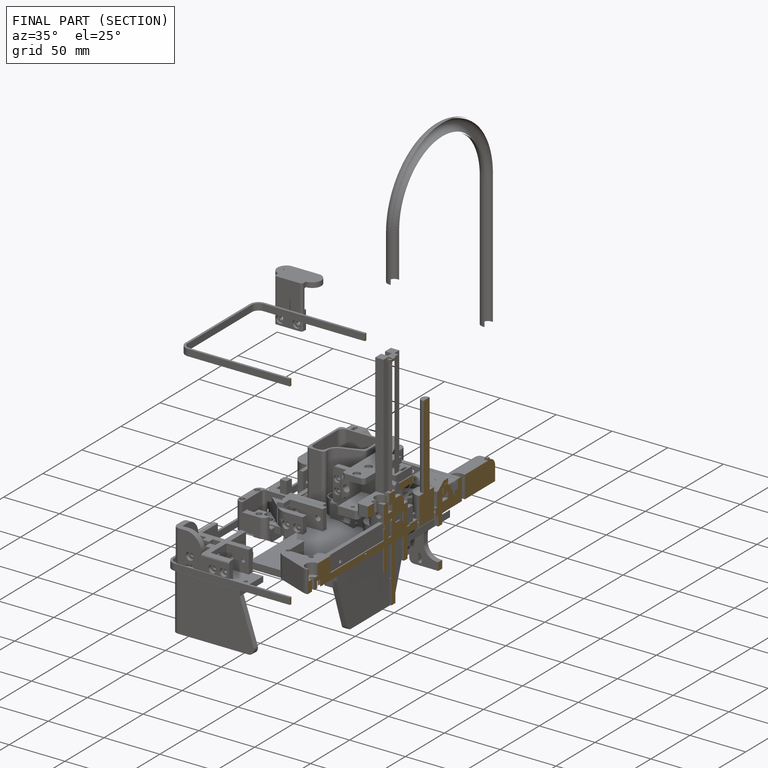
[diagram: finished part — half-section view (interior)]
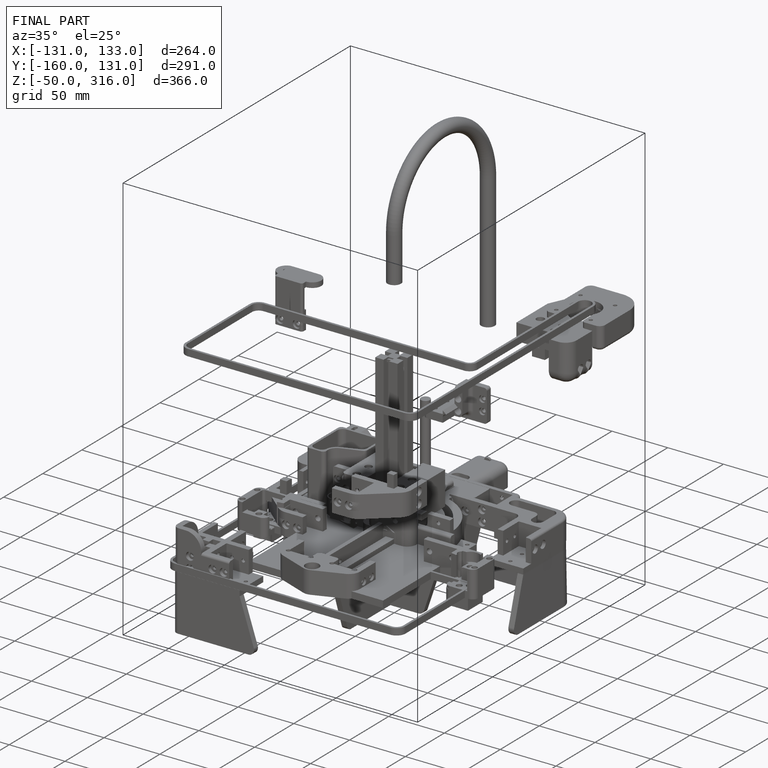
[diagram: finished part — iso view with bounding-box wireframe]
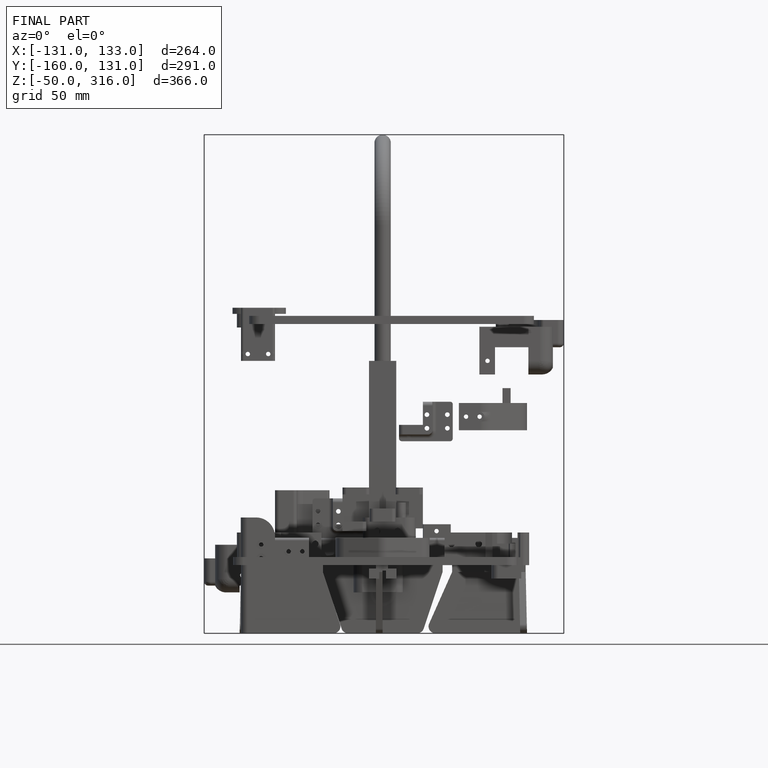
[diagram: finished part — front view with bounding-box wireframe]
